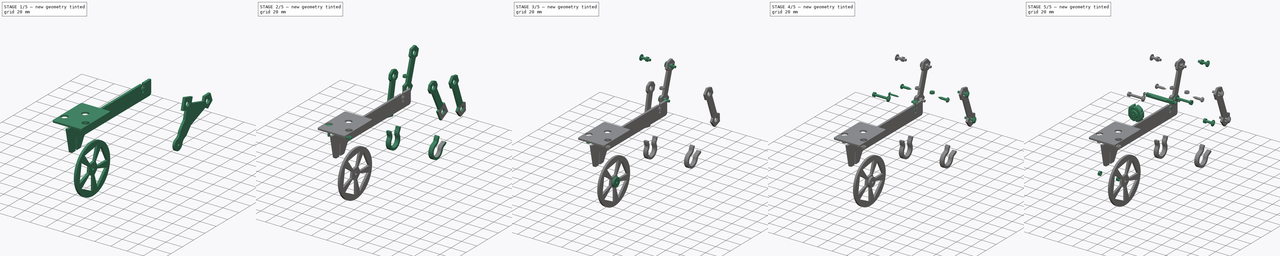
[diagram: build sequence overview — one tinted view per stage of 5, left to right]
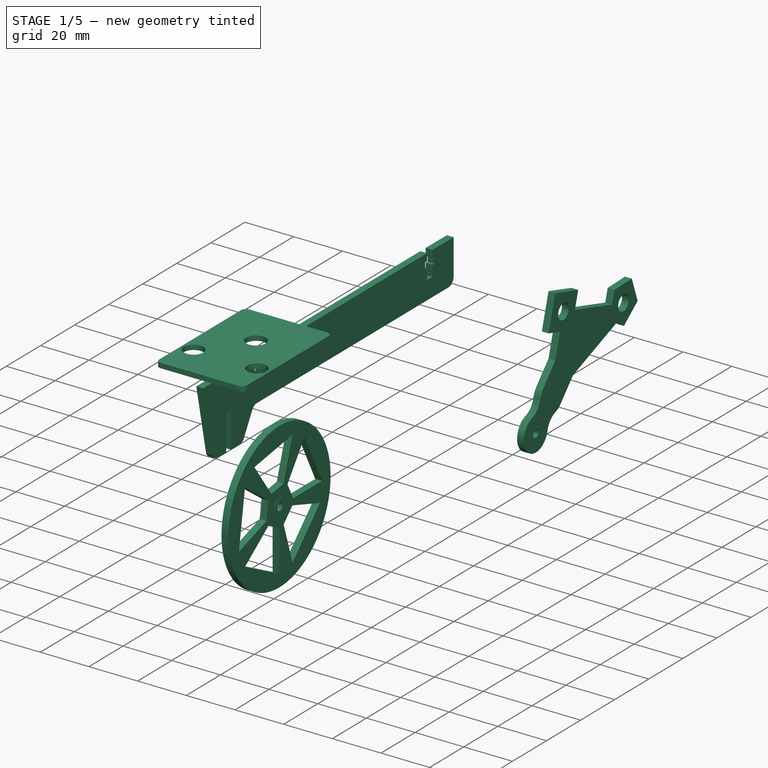
[diagram: stage 1 of 5 — iso view after this stage's code; geometry added in this stage tinted green]
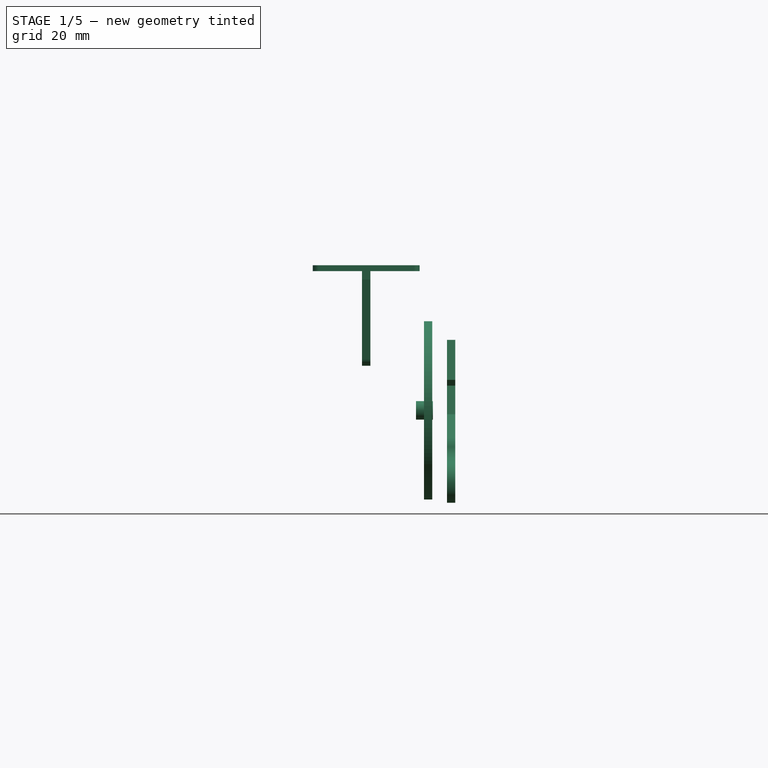
[diagram: stage 1 of 5 — front view after this stage's code; geometry added in this stage tinted green]
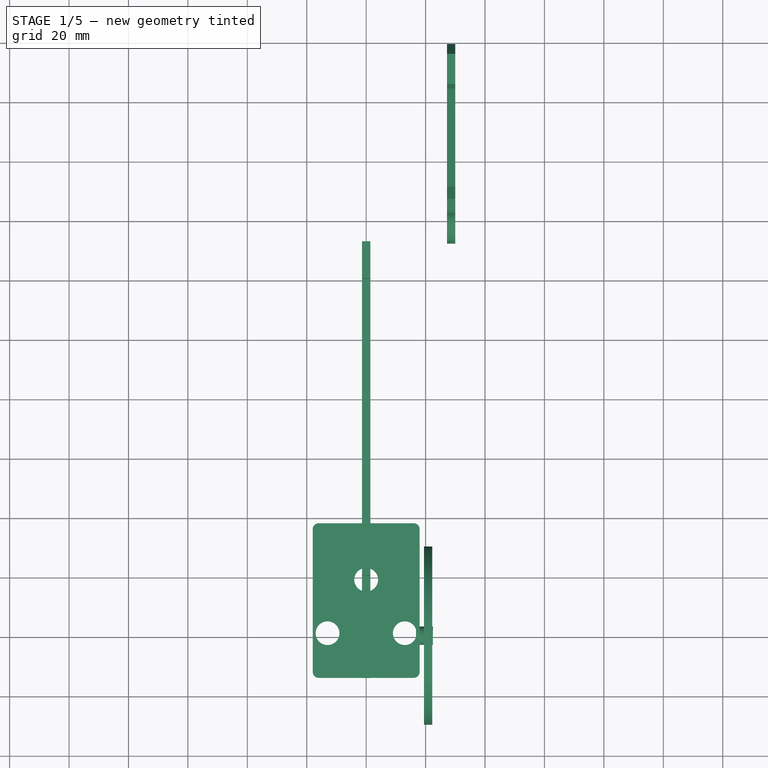
[diagram: stage 1 of 5 — top view after this stage's code; geometry added in this stage tinted green]
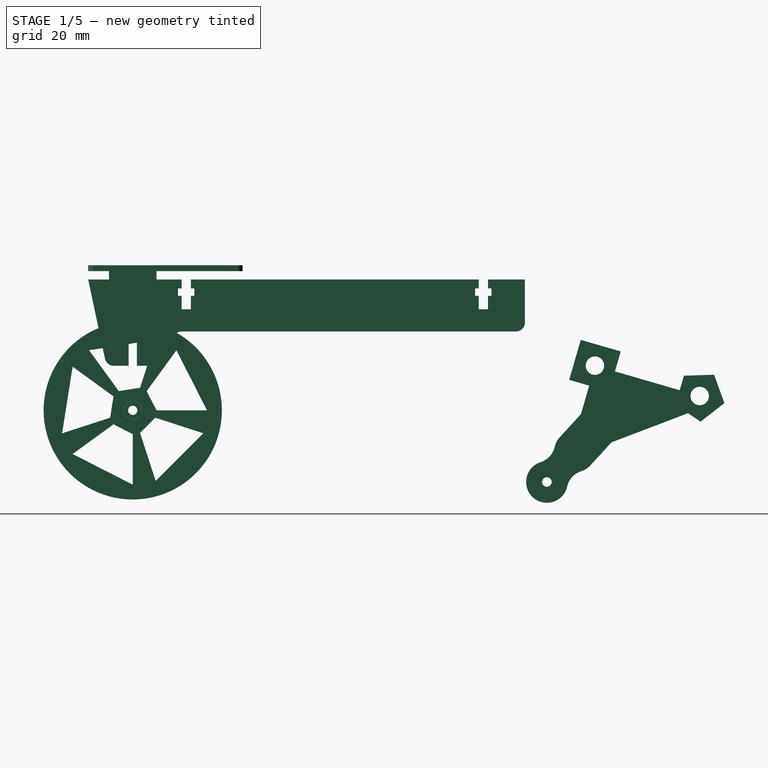
[diagram: stage 1 of 5 — right view after this stage's code; geometry added in this stage tinted green]
FCSTD DOCUMENT  (FreeCAD 0.21R33771 (Git))
Label: strandbeest_04-true_color
License: Other
LicenseURL: https://ohwr.org/project/cernohl/wikis/Documents/CERN-OHL-version-2
objects: Part::FeaturePython×55, Sketcher::SketchObject×52, PartDesign::SubShapeBinder×51, PartDesign::Body×48, PartDesign::Pad×40, PartDesign::Plane×32, Part::Part2DObjectPython×30, PartDesign::ShapeBinder×18, App::DocumentObjectGroup×12, Part::Feature×12, PartDesign::FeatureBase×10, PartDesign::Pocket×8, Spreadsheet::Sheet×2, PartDesign::CoordinateSystem×2, Part::Box×2, Part::Cut×2, Part::Mirroring×1, App::Part×1, PartDesign::Fillet×1
note: 413 computed .brp shape members not serialized (recipe doc carries the construction recipe); baked Part::Feature solids carry a one-line shape summary decoded from their .brp

FEATURE [Part::FeaturePython] Compound001_child2  label="motor_body"  # WARN: FeaturePython — macro-defined, semantics opaque (R4)
  Base = -> Compound001
  FilterType = 1
  Invert = false
  OverrideMaxVal = 0
  Placement = pos=(0,0,0) rot=(0.707107,-0.707107,0;3.14159rad)
  WindowFrom = 80
  WindowTo = 100
  items = 2
FEATURE [PartDesign::SubShapeBinder] Binder042
  BindCopyOnChange = 0
  BindMode = 0
  ClaimChildren = false
  Context = -> Body037 [Binder042.]
  Fuse = false
  MakeFace = true
  OffsetFill = false
  OffsetIntersection = false
  OffsetJoinType = 0
  OffsetOpenResult = false
  PartialLoad = false
  Relative = true
  Support = -> [Body034[Pad041.]]
  _Version = 2
FEATURE [PartDesign::Body] Body037  label="link_4_8_left"
  Group = -> [DatumPlane008,Sketch052,Pad044,ShapeBinder004,Binder,Binder042]
  Origin = -> Origin043
  Tip = -> Pad044
FEATURE [App::DocumentObjectGroup] Group004  label="Group_MOTOR"
  Group = -> [Group001,Body027]
FEATURE [PartDesign::SubShapeBinder] Binder043
  BindCopyOnChange = 0
  BindMode = 0
  ClaimChildren = false
  Context = -> Body040 [Binder043.]
  Fuse = false
  MakeFace = true
  OffsetFill = false
  OffsetIntersection = false
  OffsetJoinType = 0
  OffsetOpenResult = false
  PartialLoad = false
  Relative = true
  _Version = 2
FEATURE [Sketcher::SketchObject] Sketch057
  FullyConstrained = true
  MapMode = 5
  Placement = pos=(18.4,-1.55e-14,3.5e-15) rot=(0.57735,0.57735,0.57735;2.0944rad)
  Support = -> [Binder043]
  expr: Constraints[12] = Spreadsheet.cam_outer_fillet
  expr: Constraints[20] = Spreadsheet.cam_slot_big
  expr: Constraints[33] = Spreadsheet.cam_slot_sml
  expr: Constraints[37] = Spreadsheet.cam_slot_gap
  expr: Constraints[39] = Spreadsheet.spindle_dia
  expr: Constraints[3] = Spreadsheet.cam_hole
  expr: Constraints[40] = Spreadsheet.spindle_flat
  expr: Constraints[41] = Spreadsheet.spindle_flat - 0.2
  expr: Constraints[4] = Spreadsheet.cam_outer_rad
  expr: Constraints[59] = Spreadsheet.cam_length
  expr: Constraints[60] = -Spreadsheet.angle
  sketch-geometry (26):
    g0: ArcOfCircle CenterX=11 CenterY=-5.12e-14 CenterZ=0 NormalX=0 NormalY=0 NormalZ=1 AngleXU=0 Radius=7 StartAngle=4.71239 EndAngle=7.85398
    g1: LineSegment StartX=-3.75 StartY=-7 StartZ=0 EndX=11 EndY=-7 EndZ=0
    g2: LineSegment StartX=11 StartY=7 StartZ=0 EndX=-3.75 EndY=7 EndZ=0
    g3: Circle CenterX=11 CenterY=-5.12e-14 CenterZ=0 NormalX=0 NormalY=0 NormalZ=1 AngleXU=0 Radius=3.1
    g4: LineSegment StartX=-6.75 StartY=4 StartZ=0 EndX=-6.75 EndY=-4 EndZ=0
    g5: ArcOfCircle CenterX=-3.75 CenterY=4 CenterZ=0 NormalX=0 NormalY=0 NormalZ=1 AngleXU=0 Radius=3 StartAngle=1.5708 EndAngle=3.14159
    g6: ArcOfCircle CenterX=-3.75 CenterY=-4 CenterZ=0 NormalX=0 NormalY=0 NormalZ=1 AngleXU=0 Radius=3 StartAngle=3.14159 EndAngle=4.71239
    g7: ArcOfCircle CenterX=-3.75 CenterY=4 CenterZ=0 NormalX=0 NormalY=0 NormalZ=1 AngleXU=0 Radius=0.5 StartAngle=-4.4e-15 EndAngle=3.14159
    g8: ArcOfCircle CenterX=-3.75 CenterY=-4 CenterZ=0 NormalX=0 NormalY=0 NormalZ=1 AngleXU=0 Radius=0.5 StartAngle=3.14159 EndAngle=6.28319
    g9: LineSegment StartX=-4.25 StartY=4 StartZ=0 EndX=-4.25 EndY=-4 EndZ=0
    g10: LineSegment StartX=-3.25 StartY=-4 StartZ=0 EndX=-3.25 EndY=4 EndZ=0
    g11: LineSegment StartX=0 StartY=0 StartZ=0 EndX=11 EndY=-5.12e-14 EndZ=0
    g12: LineSegment StartX=-3.75 StartY=4 StartZ=0 EndX=-3.75 EndY=-4 EndZ=0
    g13: LineSegment StartX=-1.75 StartY=4 StartZ=0 EndX=-1.75 EndY=-4 EndZ=0
    g14: LineSegment StartX=-1.75 StartY=4 StartZ=0 EndX=-3.75 EndY=4 EndZ=0
    g15: ArcOfCircle CenterX=-1.65 CenterY=4 CenterZ=0 NormalX=0 NormalY=0 NormalZ=1 AngleXU=0 Radius=0.1 StartAngle=-7.1e-15 EndAngle=3.14159
    g16: ArcOfCircle CenterX=-1.65 CenterY=-4 CenterZ=0 NormalX=0 NormalY=0 NormalZ=1 AngleXU=0 Radius=0.1 StartAngle=3.14159 EndAngle=6.28319
    g17: LineSegment StartX=-1.55 StartY=4 StartZ=0 EndX=-1.55 EndY=2.02485 EndZ=0
    g18: LineSegment StartX=-1.55 StartY=-4 StartZ=0 EndX=-1.55 EndY=-2.02485 EndZ=0
    g19: LineSegment StartX=-1.65 StartY=-4 StartZ=0 EndX=-3.75 EndY=-4 EndZ=0
    g20: Circle CenterX=-2e-16 CenterY=-8e-16 CenterZ=0 NormalX=0 NormalY=0 NormalZ=1 AngleXU=0 Radius=2.55
    g21: Circle CenterX=-2e-16 CenterY=-8e-16 CenterZ=0 NormalX=0 NormalY=0 NormalZ=1 AngleXU=0 Radius=1.85
    g22: Circle CenterX=-2e-16 CenterY=-8e-16 CenterZ=0 NormalX=0 NormalY=0 NormalZ=1 AngleXU=0 Radius=1.75
    g23: LineSegment StartX=1.85 StartY=-1.75499 StartZ=0 EndX=1.85 EndY=1.75499 EndZ=0
    g24: ArcOfCircle CenterX=0 CenterY=0 CenterZ=0 NormalX=0 NormalY=0 NormalZ=1 AngleXU=0 Radius=2.55 StartAngle=4.05905 EndAngle=5.52414
    g25: ArcOfCircle CenterX=0 CenterY=0 CenterZ=0 NormalX=0 NormalY=0 NormalZ=1 AngleXU=0 Radius=2.55 StartAngle=0.75905 EndAngle=2.22414
  constraints (62):
    c: Tangent(g1,g0) = -1.5708
    c: Tangent(g0,g2) = -1.5708
    c: Coincident(g3,g0)
    c: Diameter(g3) = 6.2
    c: Radius(g0) = 7
    c: Parallel(g2,g1)
    c: Perpendicular(g4,g1)
    c: Tangent(g1,g6) = -1.5708
    c: Tangent(g6,g4) = -1.5708
    c: Tangent(g5,g4) = -1.5708
    c: Equal(g5,g6)
    c: Tangent(g5,g2) = -1.5708
    c: Radius(g5) = 3
    c: Tangent(g7,g9) = -1.5708
    c: Tangent(g9,g8) = -1.5708
    c: Tangent(g8,g10) = -1.5708
    c: Tangent(g10,g7) = -1.5708
    c: Equal(g7,g8)
    c: Coincident(g7,g5)
    c: Coincident(g8,g6)
    c: Radius(g8) = 0.5
    c: Coincident(g12,g5)
    c: Coincident(g12,g6)
    c: Parallel(g13,g10)
    c: Coincident(g14,g13)
    c: Coincident(g14,g5)
    c: Perpendicular(g12,g14)
    c: Tangent(g15,g13) = -1.5708
    c: Tangent(g18,g16) = -1.5708
    c: Tangent(g17,g15) = 1.5708
    c: Parallel(g17,g13)
    c: Parallel(g18,g13)
    c: Equal(g16,g15)
    c: Radius(g16) = 0.1
    c: Coincident(g19,g16)
    c: Coincident(g6,g19)
    c: Perpendicular(g12,g19)
    c: Distance(g14) = 2
    c: Tangent(g13,g16) = -1.5708
    c: Diameter(g20) = 5.1
    c: Diameter(g21) = 3.7
    c: Diameter(g22) = 3.5
    c: Tangent(g13,g22)
    c: PointOnObject(g18,g20)
    c: PointOnObject(g17,g20)
    c: PointOnObject(g23,g20)
    c: PointOnObject(g23,g20)
    c: Tangent(g23,g21)
    c: Parallel(g23,g13)
    c: Coincident(g23,g25)
    c: Coincident(g25,g17)
    c: Coincident(g24,g23)
    c: Coincident(g24,g18)
    c: Coincident(g24,g25)
    c: Coincident(g20,g21)
    c: Coincident(g20,g22)
    c: Coincident(g11,g24)
    c: Coincident(g11,g0)
    c: Equal(g17,g18)
    c: Distance(g11) = 11
    c: Angle(g11) = 0
    c: Coincident(g24,g-1)
FEATURE [PartDesign::Pad] Pad049
  Direction = (1,-8e-16,1e-16)
  Length = 2.8
  Length2 = 10
  Profile = -> Sketch057
  ReferenceAxis = -> Sketch057 [N_Axis]
  Reversed = true
  Type = 0
  expr: Length = Spreadsheet.acrylic_thin
FEATURE [PartDesign::Body] Body040  label="cam_1_right"
  Group = -> [Binder043,Sketch057,Pad049]
  Origin = -> Origin046
  Tip = -> Pad049
FEATURE [PartDesign::SubShapeBinder] Binder044
  BindCopyOnChange = 0
  BindMode = 0
  ClaimChildren = false
  Context = -> Body041 [Binder044.]
  Fuse = false
  MakeFace = true
  OffsetFill = false
  OffsetIntersection = false
  OffsetJoinType = 0
  OffsetOpenResult = false
  PartialLoad = false
  Relative = true
  Support = -> [Body040[Pad049.]]
  _Version = 2
FEATURE [PartDesign::Plane] DatumPlane010
  AttachmentOffset = pos=(0,0,0.1) rot=(0,0,1;0rad)
  Length = 60
  MapMode = 5
  Placement = pos=(18.5,-1.18e-14,1.6e-15) rot=(0.57735,0.57735,0.57735;2.0944rad)
  ResizeMode = 0
  Support = -> [Binder044]
  Width = 60
FEATURE [Sketcher::SketchObject] Sketch058
  FullyConstrained = true
  MapMode = 5
  Placement = pos=(18.5,-1.18e-14,1.6e-15) rot=(0.57735,0.57735,0.57735;2.0944rad)
  Support = -> [DatumPlane010]
  expr: Constraints[15] = Spreadsheet.cam_outer_rad
  expr: Constraints[17] = Spreadsheet.cam_outer_fillet
  expr: Constraints[1] = Spreadsheet.spindle_hole
  expr: Constraints[23] = Spreadsheet.spindle_flat / 2 - 0.1 + 2
  expr: Constraints[24] = -Spreadsheet.angle
  expr: Constraints[4] = Spreadsheet.cam_length
  expr: Constraints[5] = Spreadsheet.cam_hole
  sketch-geometry (11):
    g0: Circle CenterX=0 CenterY=0 CenterZ=0 NormalX=0 NormalY=0 NormalZ=1 AngleXU=0 Radius=1
    g1: Circle CenterX=11 CenterY=0 CenterZ=0 NormalX=0 NormalY=0 NormalZ=1 AngleXU=0 Radius=3.1
    g2: LineSegment StartX=0 StartY=0 StartZ=0 EndX=11 EndY=0 EndZ=0
    g3: LineSegment StartX=-3.75 StartY=7 StartZ=0 EndX=11 EndY=7 EndZ=0
    g4: ArcOfCircle CenterX=11 CenterY=0 CenterZ=0 NormalX=0 NormalY=0 NormalZ=1 AngleXU=0 Radius=7 StartAngle=4.71239 EndAngle=7.85398
    g5: LineSegment StartX=11 StartY=-7 StartZ=0 EndX=-3.75 EndY=-7 EndZ=0
    g6: ArcOfCircle CenterX=-3.75 CenterY=-4 CenterZ=0 NormalX=0 NormalY=0 NormalZ=1 AngleXU=0 Radius=3 StartAngle=3.14159 EndAngle=4.71239
    g7: LineSegment StartX=-6.75 StartY=-4 StartZ=0 EndX=-6.75 EndY=4 EndZ=0
    g8: ArcOfCircle CenterX=-3.75 CenterY=4 CenterZ=0 NormalX=0 NormalY=0 NormalZ=1 AngleXU=0 Radius=3 StartAngle=1.5708 EndAngle=3.14159
    g9: LineSegment StartX=-3.75 StartY=4 StartZ=0 EndX=-3.75 EndY=-4 EndZ=0
    g10: LineSegment StartX=-3.75 StartY=-1.4e-15 StartZ=0 EndX=0 EndY=0 EndZ=0
  constraints (25):
    c: Coincident(g0,g-1)
    c: Diameter(g0) = 2
    c: Coincident(g2,g0)
    c: Coincident(g2,g1)
    c: Distance(g2) = 11
    c: Diameter(g1) = 6.2
    c: Tangent(g3,g4) = 1.5708
    c: Angle(g4) = 3.14159
    c: Tangent(g5,g6) = 1.5708
    c: Angle(g6) = 1.5708
    c: Tangent(g8,g3) = 1.5708
    c: Tangent(g4,g5) = 1.5708
    c: Tangent(g6,g7) = 1.5708
    c: Coincident(g1,g4)
    c: Tangent(g7,g8) = 1.5708
    c: Radius(g4) = 7
    c: Equal(g8,g6)
    c: Radius(g8) = 3
    c: Parallel(g2,g5)
    c: Coincident(g8,g9)
    c: Coincident(g6,g9)
    c: Symmetric(g8,g6,g10)
    c: Coincident(g10,g0)
    c: Distance(g10) = 3.75
    c: Angle(g-1,g2) = 0
FEATURE [PartDesign::Pad] Pad050
  Direction = (1,-3e-16,-2e-16)
  Length = 2.8
  Length2 = 10
  Placement = pos=(18.5,-1.2e-14,2e-15) rot=(0.57735,0.57735,0.57735;2.0944rad)
  Profile = -> Sketch058
  ReferenceAxis = -> Sketch058 [N_Axis]
  Type = 0
  expr: Length = Spreadsheet.acrylic_thin
FEATURE [PartDesign::Body] Body041  label="cam_2_right"
  Group = -> [Binder044,DatumPlane010,Sketch058,Pad050]
  Origin = -> Origin047
  Tip = -> Pad050
FEATURE [PartDesign::SubShapeBinder] Binder045
  BindCopyOnChange = 0
  BindMode = 0
  ClaimChildren = false
  Context = -> Body042 [Binder045.]
  Fuse = false
  MakeFace = true
  OffsetFill = false
  OffsetIntersection = false
  OffsetJoinType = 0
  OffsetOpenResult = false
  PartialLoad = false
  Relative = true
  Support = -> [Body041[Pad050.]]
  _Version = 2
FEATURE [PartDesign::Plane] DatumPlane011
  AttachmentOffset = pos=(0,0,0.1) rot=(0,0,1;0rad)
  Length = 60
  MapMode = 5
  Placement = pos=(21.4,1.63e-14,-5.6e-15) rot=(0.57735,0.57735,0.57735;2.0944rad)
  ResizeMode = 0
  Support = -> [Binder045]
  Width = 60
FEATURE [Sketcher::SketchObject] Sketch059
  FullyConstrained = true
  MapMode = 5
  Placement = pos=(21.4,1.63e-14,-5.6e-15) rot=(0.57735,0.57735,0.57735;2.0944rad)
  Support = -> [DatumPlane011]
  expr: Constraints[15] = Spreadsheet.cam_outer_fillet
  expr: Constraints[17] = Spreadsheet.cam_outer_rad
  expr: Constraints[1] = Spreadsheet.cam_hole
  expr: Constraints[23] = Spreadsheet.spindle_flat / 2 - 0.1 + 2
  expr: Constraints[24] = Spreadsheet.angle
  expr: Constraints[5] = Spreadsheet.cam_length
  sketch-geometry (11):
    g0: Circle CenterX=0 CenterY=0 CenterZ=0 NormalX=0 NormalY=0 NormalZ=1 AngleXU=0 Radius=3.1
    g1: Circle CenterX=11 CenterY=0 CenterZ=0 NormalX=0 NormalY=0 NormalZ=1 AngleXU=0 Radius=3.1
    g2: LineSegment StartX=0 StartY=0 StartZ=0 EndX=11 EndY=0 EndZ=0
    g3: LineSegment StartX=-3.75 StartY=7 StartZ=0 EndX=11 EndY=7 EndZ=0
    g4: ArcOfCircle CenterX=11 CenterY=0 CenterZ=0 NormalX=0 NormalY=0 NormalZ=1 AngleXU=0 Radius=7 StartAngle=4.71239 EndAngle=7.85398
    g5: LineSegment StartX=11 StartY=-7 StartZ=0 EndX=-3.75 EndY=-7 EndZ=0
    g6: ArcOfCircle CenterX=-3.75 CenterY=-4 CenterZ=0 NormalX=0 NormalY=0 NormalZ=1 AngleXU=0 Radius=3 StartAngle=3.14159 EndAngle=4.71239
    g7: LineSegment StartX=-6.75 StartY=-4 StartZ=0 EndX=-6.75 EndY=4 EndZ=0
    g8: ArcOfCircle CenterX=-3.75 CenterY=4 CenterZ=0 NormalX=0 NormalY=0 NormalZ=1 AngleXU=0 Radius=3 StartAngle=1.5708 EndAngle=3.14159
    g9: LineSegment StartX=-3.75 StartY=4 StartZ=0 EndX=-3.75 EndY=-4 EndZ=0
    g10: LineSegment StartX=-3.75 StartY=4e-16 StartZ=0 EndX=0 EndY=0 EndZ=0
  constraints (25):
    c: Equal(g0,g1)
    c: Diameter(g0) = 6.2
    c: Coincident(g0,g-1)
    c: Coincident(g2,g0)
    c: Coincident(g2,g1)
    c: Distance(g2) = 11
    c: Tangent(g3,g4) = 1.5708
    c: Tangent(g7,g8) = 1.5708
    c: Tangent(g8,g3) = 1.5708
    c: Tangent(g4,g5) = 1.5708
    c: Tangent(g6,g7) = 1.5708
    c: Coincident(g1,g4)
    c: Parallel(g2,g3)
    c: Parallel(g2,g5)
    c: Equal(g8,g6)
    c: Radius(g8) = 3
    c: Tangent(g5,g6) = 1.5708
    c: Radius(g4) = 7
    c: Perpendicular(g5,g7)
    c: Coincident(g8,g9)
    c: Coincident(g6,g9)
    c: Symmetric(g8,g6,g10)
    c: Coincident(g10,g0)
    c: Distance(g10) = 3.75
    c: Angle(g-1,g2) = 0
FEATURE [PartDesign::Pad] Pad051
  Direction = (1,4e-16,-1e-16)
  Length = 2.8
  Length2 = 10
  Placement = pos=(21.4,0,-3e-15) rot=(0.57735,0.57735,0.57735;2.0944rad)
  Profile = -> Sketch059
  ReferenceAxis = -> Sketch059 [N_Axis]
  Type = 0
  expr: Length = Spreadsheet.acrylic_thin
FEATURE [PartDesign::Body] Body042  label="cam_3_right"
  Group = -> [Binder045,DatumPlane011,Sketch059,Pad051]
  Origin = -> Origin048
  Tip = -> Pad051
FEATURE [PartDesign::SubShapeBinder] Binder046
  BindCopyOnChange = 0
  BindMode = 0
  ClaimChildren = false
  Context = -> Body043 [Binder046.]
  Fuse = false
  MakeFace = true
  OffsetFill = false
  OffsetIntersection = false
  OffsetJoinType = 0
  OffsetOpenResult = false
  PartialLoad = false
  Relative = true
  Support = -> [Body042[Pad051.]]
  _Version = 2
FEATURE [PartDesign::ShapeBinder] ShapeBinder005
  Placement = pos=(0,0,0) rot=(0.57735,0.57735,0.57735;2.0944rad)
  Support = -> [Sketch041]
  TraceSupport = false
FEATURE [PartDesign::Plane] DatumPlane012
  AttachmentOffset = pos=(0,0,0.1) rot=(0,0,1;0rad)
  Length = 96.5091
  MapMode = 5
  Placement = pos=(24.3,1.51e-14,-1.9e-15) rot=(0.57735,0.57735,0.57735;2.0944rad)
  ResizeMode = 0
  Support = -> [Binder046]
  Width = 79.4789
FEATURE [Sketcher::SketchObject] Sketch060
  FullyConstrained = true
  MapMode = 5
  Placement = pos=(24.3,1.51e-14,-1.9e-15) rot=(0.57735,0.57735,0.57735;2.0944rad)
  Support = -> [DatumPlane012]
  expr: Constraints[0] = Spreadsheet.cam_length
  expr: Constraints[26] = Spreadsheet.link_0_7
  expr: Constraints[27] = Spreadsheet.link_0_4
  expr: Constraints[28] = Spreadsheet.link_7_8
  expr: Constraints[29] = Spreadsheet.link_6_7
  expr: Constraints[30] = Spreadsheet.link_6_8
  expr: Constraints[31] = Spreadsheet.link_4_5
  expr: Constraints[32] = Spreadsheet.link_5_leg
  expr: Constraints[33] = Spreadsheet.link_4_leg
  expr: Constraints[34] = Spreadsheet.link_8_4
  expr: Constraints[35] = Spreadsheet.link_5_6
  expr: Constraints[40] = Spreadsheet.cam_hole
  expr: Constraints[65] = Spreadsheet.cam_outer_rad
  expr: Constraints[6] = Spreadsheet.link_offset
  expr: Constraints[76] = 8
  expr: Constraints[7] = Spreadsheet.link_circle
  expr: Constraints[85] = Spreadsheet.angle
  sketch-geometry (33):
    g0: Circle CenterX=0 CenterY=0 CenterZ=0 NormalX=0 NormalY=0 NormalZ=1 AngleXU=0 Radius=11
    g1: LineSegment StartX=0 StartY=0 StartZ=0 EndX=0 EndY=-7.8 EndZ=0
    g2: LineSegment StartX=0 StartY=-7.8 StartZ=0 EndX=38 EndY=-7.8 EndZ=0
    g3: LineSegment StartX=0 StartY=0 StartZ=0 EndX=11 EndY=0 EndZ=0
    g4: Circle CenterX=38 CenterY=-7.8 CenterZ=0 NormalX=0 NormalY=0 NormalZ=1 AngleXU=0 Radius=41.5
    g5: LineSegment StartX=11 StartY=0 StartZ=0 EndX=49.3111 EndY=32.1288 EndZ=0
    g6: LineSegment StartX=49.3111 StartY=32.1288 StartZ=0 EndX=77.2113 EndY=-16.1953 EndZ=0
    g7: LineSegment StartX=77.2113 StartY=-16.1953 StartZ=0 EndX=90.8212 EndY=-53.17 EndZ=0
    g8: LineSegment StartX=90.8212 StartY=-53.17 StartZ=0 EndX=34.6617 EndY=-87.2669 EndZ=0
    g9: LineSegment StartX=34.6617 StartY=-87.2669 StartZ=0 EndX=55.5722 EndY=-42.9526 EndZ=0
    g10: LineSegment StartX=55.5722 StartY=-42.9526 StartZ=0 EndX=38 EndY=-7.8 EndZ=0
    g11: LineSegment StartX=38 StartY=-7.8 StartZ=0 EndX=49.3111 EndY=32.1288 EndZ=0
    g12: LineSegment StartX=38 StartY=-7.8 StartZ=0 EndX=77.2113 EndY=-16.1953 EndZ=0
    g13: LineSegment StartX=90.8212 StartY=-53.17 StartZ=0 EndX=55.5722 EndY=-42.9526 EndZ=0
    g14: LineSegment StartX=55.5722 StartY=-42.9526 StartZ=0 EndX=11 EndY=0 EndZ=0
    g15: Circle CenterX=11 CenterY=0 CenterZ=0 NormalX=0 NormalY=0 NormalZ=1 AngleXU=0 Radius=3.1
    g16: Circle CenterX=49.3111 CenterY=32.1288 CenterZ=0 NormalX=0 NormalY=0 NormalZ=1 AngleXU=0 Radius=3.1
    g17: LineSegment StartX=43.1191 StartY=36.8217 StartZ=0 EndX=41.7814 EndY=30.2137 EndZ=0
    g18: LineSegment StartX=41.7814 StartY=30.2137 StartZ=0 EndX=46.1137 EndY=25.0478 EndZ=0
    g19: LineSegment StartX=46.1137 StartY=25.0478 StartZ=0 EndX=52.8537 EndY=25.214 EndZ=0
    g20: LineSegment StartX=52.8537 StartY=25.214 StartZ=0 EndX=56.926 EndY=30.5872 EndZ=0
    g21: LineSegment StartX=56.926 StartY=30.5872 StartZ=0 EndX=55.2642 EndY=37.1212 EndZ=0
    g22: LineSegment StartX=55.2642 StartY=37.1212 StartZ=0 EndX=49.1195 EndY=39.8959 EndZ=0
    g23: LineSegment StartX=49.1195 StartY=39.8959 StartZ=0 EndX=43.1191 EndY=36.8217 EndZ=0
    g24: Circle CenterX=49.3111 CenterY=32.1288 CenterZ=0 NormalX=0 NormalY=0 NormalZ=1 AngleXU=0 Radius=7.76941
    g25: Circle CenterX=49.3111 CenterY=32.1288 CenterZ=0 NormalX=0 NormalY=0 NormalZ=1 AngleXU=0 Radius=7
    g26: ArcOfCircle CenterX=11 CenterY=0 CenterZ=0 NormalX=0 NormalY=0 NormalZ=1 AngleXU=0 Radius=7 StartAngle=1.3061 EndAngle=6.3728
    g27: LineSegment StartX=12.8313 StartY=6.75621 StartZ=0 EndX=41.9816 EndY=31.2025 EndZ=0
    g28: LineSegment StartX=17.9719 StartY=0.62643 StartZ=0 EndX=47.1222 EndY=25.0727 EndZ=0
    g29: LineSegment StartX=12.8313 StartY=6.75621 StartZ=0 EndX=15.4016 EndY=3.69132 EndZ=0
    g30: LineSegment StartX=15.4016 StartY=3.69132 StartZ=0 EndX=17.9719 EndY=0.62643 EndZ=0
    g31: LineSegment StartX=43.1191 StartY=36.8217 StartZ=0 EndX=41.9816 EndY=31.2025 EndZ=0
    g32: LineSegment StartX=47.1222 StartY=25.0727 StartZ=0 EndX=52.8537 EndY=25.214 EndZ=0
  constraints (81):
    c: Radius(g0) = 11
    c: Coincident(g0,g-1)
    c: Coincident(g1,g0)
    c: PointOnObject(g1,g-2)
    c: Coincident(g2,g1)
    c: Horizontal(g2)
    c: DistanceY(g1,g1) = 7.8
    c: DistanceX(g2,g2) = 38
    c: Coincident(g3,g0)
    c: PointOnObject(g3,g0)
    c: Coincident(g4,g2)
    c: Coincident(g5,g3)
    c: Coincident(g6,g5)
    c: Coincident(g7,g6)
    c: Coincident(g8,g7)
    c: Coincident(g9,g8)
    c: Coincident(g10,g9)
    c: Coincident(g10,g2)
    c: Coincident(g11,g2)
    c: Coincident(g11,g5)
    c: Coincident(g12,g2)
    c: Coincident(g12,g6)
    c: Coincident(g13,g7)
    c: Coincident(g13,g9)
    c: Coincident(g14,g9)
    c: Coincident(g14,g3)
    c: Distance(g5) = 50
    c: Distance(g14) = 61.9
    c: Distance(g11) = 41.5
    c: Distance(g6) = 55.8
    c: Distance(g12) = 40.1
    c: Distance(g13) = 36.7
    c: Distance(g8) = 65.7
    c: Distance(g9) = 49
    c: Distance(g10) = 39.3
    c: Distance(g7) = 39.4
    c: PointOnObject(g5,g4)
    c: Coincident(g15,g3)
    c: Coincident(g16,g5)
    c: Equal(g16,g15)
    c: Diameter(g16) = 6.2
    c: Coincident(g17,g18)
    c: Coincident(g18,g19)
    c: Coincident(g19,g20)
    c: Coincident(g20,g21)
    c: Coincident(g21,g22)
    c: Coincident(g22,g23)
    c: Coincident(g23,g17)
    c: Equal(g17, g18-g23) x6
    c: PointOnObject(g17,g24)
    c: PointOnObject(g18,g24)
    c: PointOnObject(g19,g24)
    c: PointOnObject(g20,g24)
    c: PointOnObject(g21,g24)
    c: PointOnObject(g22,g24)
    c: PointOnObject(g23,g24)
    c: Coincident(g24,g16)
    c: Coincident(g25,g16)
    c: Coincident(g26,g15)
    c: Equal(g26,g25)
    c: Radius(g26) = 7
    c: Tangent(g22,g25)
    c: Perpendicular(g18,g5)
    c: Parallel(g5,g27)
    c: Parallel(g5,g28)
    c: Coincident(g29,g27)
    c: Coincident(g30,g29)
    c: Coincident(g30,g28)
    c: PointOnObject(g29,g5)
    c: Perpendicular(g5,g29)
    c: Perpendicular(g30,g5)
    c: Distance(g27,g28) = 8
    c: PointOnObject(g27,g17)
    c: PointOnObject(g28,g19)
    c: Coincident(g26,g27)
    c: Coincident(g26,g28)
    c: Coincident(g19,g32)
    c: Coincident(g28,g32)
    c: Coincident(g17,g31)
    c: Coincident(g27,g31)
    c: Angle(g-1,g3) = 0
FEATURE [PartDesign::Pad] Pad052
  Direction = (1,9e-16,-1e-16)
  Length = 2.8
  Length2 = 10
  Placement = pos=(24.3,1.5e-14,1e-15) rot=(0.57735,0.57735,0.57735;2.0944rad)
  Profile = -> Sketch060
  ReferenceAxis = -> Sketch060 [N_Axis]
  Type = 0
  expr: Length = Spreadsheet.acrylic_thin
FEATURE [PartDesign::Body] Body043  label="link_0_7_right"
  Group = -> [Binder046,ShapeBinder005,DatumPlane012,Sketch060,Pad052]
  Origin = -> Origin049
  Tip = -> Pad052
FEATURE [PartDesign::SubShapeBinder] Binder047
  BindCopyOnChange = 0
  BindMode = 0
  ClaimChildren = false
  Context = -> Body044 [Binder047.]
  Fuse = false
  MakeFace = true
  OffsetFill = false
  OffsetIntersection = false
  OffsetJoinType = 0
  OffsetOpenResult = false
  PartialLoad = false
  Relative = true
  Support = -> [Body043[Pad052.]]
  _Version = 2
FEATURE [PartDesign::Plane] DatumPlane013
  AttachmentOffset = pos=(0,0,0.1) rot=(0,0,1;0rad)
  Length = 60
  MapMode = 5
  Placement = pos=(27.2,3.18e-14,-5.4e-15) rot=(0.57735,0.57735,0.57735;2.0944rad)
  ResizeMode = 0
  Support = -> [Binder047]
  Width = 60
FEATURE [Sketcher::SketchObject] Sketch061
  FullyConstrained = true
  MapMode = 5
  Placement = pos=(27.2,3.18e-14,-5.4e-15) rot=(0.57735,0.57735,0.57735;2.0944rad)
  Support = -> [DatumPlane013]
  expr: Constraints[2] = Spreadsheet.cam_length
  expr: Constraints[5] = Spreadsheet.cam_hole
  expr: Constraints[6] = Spreadsheet.cam_outer_rad
  expr: Constraints[8] = Spreadsheet.angle
  sketch-geometry (4):
    g0: Circle CenterX=0 CenterY=0 CenterZ=0 NormalX=0 NormalY=0 NormalZ=1 AngleXU=0 Radius=11
    g1: LineSegment StartX=0 StartY=0 StartZ=0 EndX=11 EndY=-8e-16 EndZ=0
    g2: Circle CenterX=11 CenterY=-8e-16 CenterZ=0 NormalX=0 NormalY=0 NormalZ=1 AngleXU=0 Radius=7
    g3: Circle CenterX=11 CenterY=-8e-16 CenterZ=0 NormalX=0 NormalY=0 NormalZ=1 AngleXU=0 Radius=3.1
  constraints (9):
    c: Coincident(g1,g0)
    c: PointOnObject(g1,g0)
    c: Radius(g0) = 11
    c: Coincident(g2,g1)
    c: Coincident(g1,g3)
    c: Diameter(g3) = 6.2
    c: Radius(g2) = 7
    c: Coincident(g0,g-1)
    c: Angle(g-1,g1) = 0
FEATURE [PartDesign::Pad] Pad053
  Direction = (1,1.1e-15,-2e-16)
  Length = 2.8
  Length2 = 10
  Placement = pos=(27.2,3.2e-14,-5e-15) rot=(0.57735,0.57735,0.57735;2.0944rad)
  Profile = -> Sketch061
  ReferenceAxis = -> Sketch061 [N_Axis]
  Type = 0
  expr: Length = Spreadsheet.acrylic_thin
FEATURE [PartDesign::Body] Body044  label="spacer_right"
  Group = -> [Binder047,DatumPlane013,Sketch061,Pad053]
  Origin = -> Origin050
  Tip = -> Pad053
FEATURE [PartDesign::SubShapeBinder] Binder048
  BindCopyOnChange = 0
  BindMode = 0
  ClaimChildren = false
  Context = -> Body045 [Binder048.]
  Fuse = false
  MakeFace = true
  OffsetFill = false
  OffsetIntersection = false
  OffsetJoinType = 0
  OffsetOpenResult = false
  PartialLoad = false
  Relative = true
  Support = -> [Body044[Pad053.]]
  _Version = 2
FEATURE [PartDesign::ShapeBinder] ShapeBinder006
  Placement = pos=(0,0,0) rot=(0.57735,0.57735,0.57735;2.0944rad)
  Support = -> [Sketch041]
  TraceSupport = false
FEATURE [PartDesign::Plane] DatumPlane014
  AttachmentOffset = pos=(0,0,0.1) rot=(0,0,1;0rad)
  Length = 107.255
  MapMode = 5
  Placement = pos=(30.1,3.46e-14,-8.1e-15) rot=(0.57735,0.57735,0.57735;2.0944rad)
  ResizeMode = 0
  Support = -> [Binder048]
  Width = 94.6351
FEATURE [Sketcher::SketchObject] Sketch062
  FullyConstrained = true
  MapMode = 5
  Placement = pos=(30.1,3.46e-14,-8.1e-15) rot=(0.57735,0.57735,0.57735;2.0944rad)
  Support = -> [DatumPlane014]
  expr: Constraints[19] = Spreadsheet.link_0_7
  expr: Constraints[20] = Spreadsheet.link_0_4
  expr: Constraints[21] = Spreadsheet.link_8_4
  expr: Constraints[22] = Spreadsheet.link_5_6
  expr: Constraints[23] = Spreadsheet.link_6_8
  expr: Constraints[24] = Spreadsheet.link_7_8
  expr: Constraints[25] = Spreadsheet.link_6_7
  expr: Constraints[26] = Spreadsheet.link_4_5
  expr: Constraints[27] = Spreadsheet.link_4_leg
  expr: Constraints[28] = Spreadsheet.link_5_leg
  expr: Constraints[2] = Spreadsheet.cam_length
  expr: Constraints[33] = Spreadsheet.cam_outer_rad
  expr: Constraints[4] = Spreadsheet.cam_hole
  expr: Constraints[65] = Spreadsheet.angle
  expr: Constraints[71] = Spreadsheet.link_circle
  expr: Constraints[72] = Spreadsheet.link_offset
  sketch-geometry (28):
    g0: Circle CenterX=0 CenterY=0 CenterZ=0 NormalX=0 NormalY=0 NormalZ=1 AngleXU=0 Radius=11
    g1: LineSegment StartX=0 StartY=0 StartZ=0 EndX=11 EndY=-1e-16 EndZ=0
    g2: Circle CenterX=11 CenterY=-1e-16 CenterZ=0 NormalX=0 NormalY=0 NormalZ=1 AngleXU=0 Radius=3.1
    g3: LineSegment StartX=11 StartY=-1e-16 StartZ=0 EndX=49.3111 EndY=32.1288 EndZ=0
    g4: LineSegment StartX=49.3111 StartY=32.1288 StartZ=0 EndX=77.2113 EndY=-16.1953 EndZ=0
    g5: LineSegment StartX=77.2113 StartY=-16.1953 StartZ=0 EndX=38 EndY=-7.8 EndZ=0
    g6: LineSegment StartX=38 StartY=-7.8 StartZ=0 EndX=49.3111 EndY=32.1288 EndZ=0
    g7: LineSegment StartX=77.2113 StartY=-16.1953 StartZ=0 EndX=90.8212 EndY=-53.17 EndZ=0
    g8: LineSegment StartX=90.8212 StartY=-53.17 StartZ=0 EndX=34.6617 EndY=-87.2669 EndZ=0
    g9: LineSegment StartX=34.6617 StartY=-87.2669 StartZ=0 EndX=55.5722 EndY=-42.9526 EndZ=0
    g10: LineSegment StartX=55.5722 StartY=-42.9526 StartZ=0 EndX=90.8212 EndY=-53.17 EndZ=0
    g11: LineSegment StartX=55.5722 StartY=-42.9526 StartZ=0 EndX=38 EndY=-7.8 EndZ=0
    g12: LineSegment StartX=11 StartY=-1e-16 StartZ=0 EndX=55.5722 EndY=-42.9526 EndZ=0
    g13: ArcOfCircle CenterX=11 CenterY=-1e-16 CenterZ=0 NormalX=0 NormalY=0 NormalZ=1 AngleXU=0 Radius=7 StartAngle=6.12453 EndAngle=11.1912
    g14: Circle CenterX=55.5722 CenterY=-42.9526 CenterZ=0 NormalX=0 NormalY=0 NormalZ=1 AngleXU=0 Radius=7
    g15: LineSegment StartX=65.47 StartY=-42.7695 StartZ=0 EndX=55.3891 EndY=-33.0548 EndZ=0
    g16: LineSegment StartX=55.3891 StartY=-33.0548 StartZ=0 EndX=45.6744 EndY=-43.1358 EndZ=0
    g17: LineSegment StartX=45.6744 StartY=-43.1358 StartZ=0 EndX=55.7554 EndY=-52.8504 EndZ=0
    g18: LineSegment StartX=55.7554 StartY=-52.8504 StartZ=0 EndX=65.47 EndY=-42.7695 EndZ=0
    g19: Circle CenterX=55.5722 CenterY=-42.9526 CenterZ=0 NormalX=0 NormalY=0 NormalZ=1 AngleXU=0 Radius=9.89949
    g20: LineSegment StartX=12.3609 StartY=-6.86644 StartZ=0 EndX=47.7561 EndY=-40.9756 EndZ=0
    g21: LineSegment StartX=17.9121 StartY=-1.1059 StartZ=0 EndX=53.3073 EndY=-35.215 EndZ=0
    g22: LineSegment StartX=17.9121 StartY=-1.1059 StartZ=0 EndX=15.1365 EndY=-3.98617 EndZ=0
    g23: LineSegment StartX=15.1365 StartY=-3.98617 StartZ=0 EndX=12.3609 EndY=-6.86644 EndZ=0
    g24: LineSegment StartX=45.6744 StartY=-43.1358 StartZ=0 EndX=47.7561 EndY=-40.9756 EndZ=0
    g25: LineSegment StartX=55.3891 StartY=-33.0548 StartZ=0 EndX=53.3073 EndY=-35.215 EndZ=0
    g26: Circle CenterX=55.5722 CenterY=-42.9526 CenterZ=0 NormalX=0 NormalY=0 NormalZ=1 AngleXU=0 Radius=3.1
    g27: LineSegment StartX=38 StartY=-7.8 StartZ=0 EndX=0 EndY=-7.8 EndZ=0
  constraints (73):
    c: Coincident(g1,g0)
    c: PointOnObject(g1,g0)
    c: Radius(g0) = 11
    c: Coincident(g2,g1)
    c: Diameter(g2) = 6.2
    c: Coincident(g4,g3)
    c: Coincident(g5,g4)
    c: Coincident(g6,g5)
    c: Coincident(g6,g3)
    c: Coincident(g7,g4)
    c: Coincident(g8,g7)
    c: Coincident(g9,g8)
    c: Coincident(g10,g9)
    c: Coincident(g10,g7)
    c: Coincident(g11,g9)
    c: Coincident(g11,g5)
    c: Coincident(g12,g3)
    c: Coincident(g12,g9)
    c: Coincident(g0,g-1)
    c: Distance(g3) = 50
    c: Distance(g12) = 61.9
    c: Distance(g11) = 39.3
    c: Distance(g7) = 39.4
    c: Distance(g5) = 40.1
    c: Distance(g6) = 41.5
    c: Distance(g4) = 55.8
    c: Distance(g10) = 36.7
    c: Distance(g9) = 49
    c: Distance(g8) = 65.7
    c: Coincident(g1,g3)
    c: Coincident(g13,g2)
    c: Coincident(g14,g9)
    c: Equal(g14,g13)
    c: Radius(g14) = 7
    c: Coincident(g15,g16)
    c: Coincident(g16,g17)
    c: Coincident(g17,g18)
    c: Coincident(g18,g15)
    c: Equal(g15,g16)
    c: Equal(g15,g17)
    c: Equal(g15,g18)
    c: PointOnObject(g15,g19)
    c: PointOnObject(g16,g19)
    c: PointOnObject(g17,g19)
    c: PointOnObject(g18,g19)
    c: Coincident(g19,g9)
    c: Tangent(g14,g18)
    c: Perpendicular(g16,g12)
    c: Parallel(g20,g12)
    c: Parallel(g12,g21)
    c: PointOnObject(g21,g16)
    c: PointOnObject(g20,g16)
    c: Coincident(g22,g21)
    c: PointOnObject(g22,g12)
    c: Coincident(g23,g22)
    c: Coincident(g23,g20)
    c: Perpendicular(g22,g12)
    c: Perpendicular(g23,g12)
    c: Distance(g21,g20) = 8
    c: Coincident(g13,g21)
    c: Coincident(g13,g20)
    c: Coincident(g15,g25)
    c: Coincident(g21,g25)
    c: Coincident(g20,g24)
    c: Coincident(g16,g24)
    c: Angle(g-1,g1) = 0
    c: Coincident(g26,g9)
    c: Equal(g2,g26)
    c: Coincident(g27,g5)
    c: PointOnObject(g27,g-2)
    c: Horizontal(g27)
    c: DistanceX(g27,g27) = 38
    c: DistanceY(g27,g0) = 7.8
FEATURE [PartDesign::Pad] Pad054
  Direction = (1,1.1e-15,-2e-16)
  Length = 2.8
  Length2 = 10
  Placement = pos=(30.1,3.5e-14,-1e-14) rot=(0.57735,0.57735,0.57735;2.0944rad)
  Profile = -> Sketch062
  ReferenceAxis = -> Sketch062 [N_Axis]
  Type = 0
  expr: Length = Spreadsheet.acrylic_thin
FEATURE [PartDesign::Body] Body045  label="link_0_4_right"
  Group = -> [Binder048,ShapeBinder006,DatumPlane014,Sketch062,Pad054]
  Origin = -> Origin051
  Tip = -> Pad054
FEATURE [PartDesign::SubShapeBinder] Binder049
  BindCopyOnChange = 0
  BindMode = 0
  ClaimChildren = false
  Context = -> Body046 [Binder049.]
  Fuse = false
  MakeFace = true
  OffsetFill = false
  OffsetIntersection = false
  OffsetJoinType = 0
  OffsetOpenResult = false
  PartialLoad = false
  Relative = true
  Support = -> [Body034[Pad041.]]
  _Version = 2
FEATURE [PartDesign::ShapeBinder] ShapeBinder007
  Placement = pos=(0,0,0) rot=(0.57735,0.57735,0.57735;2.0944rad)
  Support = -> [Sketch041]
  TraceSupport = false
FEATURE [PartDesign::SubShapeBinder] Binder050
  BindCopyOnChange = 0
  BindMode = 0
  ClaimChildren = false
  Context = -> Body046 [Binder050.]
  Fuse = false
  MakeFace = true
  OffsetFill = false
  OffsetIntersection = false
  OffsetJoinType = 0
  OffsetOpenResult = false
  PartialLoad = false
  Relative = true
  Support = -> [Body045[Pad054.]]
  _Version = 2
FEATURE [PartDesign::Plane] DatumPlane015
  AttachmentOffset = pos=(0,0,0.1) rot=(0,0,1;0rad)
  Length = 147.933
  MapMode = 5
  Placement = pos=(30,3.45e-14,-5.4e-15) rot=(0.57735,-0.57735,-0.57735;2.0944rad)
  ResizeMode = 0
  Support = -> [Binder050]
  Width = 137.894
FEATURE [Sketcher::SketchObject] Sketch063
  FullyConstrained = true
  MapMode = 5
  Placement = pos=(30,3.45e-14,-5.4e-15) rot=(0.57735,0.57735,0.57735;2.0944rad)
  Support = -> [DatumPlane015]
  expr: Constraints[2] = Spreadsheet.cam_length
  expr: Constraints[41] = Spreadsheet.cam_outer_rad
  expr: Constraints[42] = Spreadsheet.cam_outer_rad * 2
  expr: Constraints[69] = Spreadsheet.link_0_4
  expr: Constraints[70] = Spreadsheet.link_0_7
  expr: Constraints[71] = Spreadsheet.link_4_5
  expr: Constraints[72] = Spreadsheet.link_5_6
  expr: Constraints[73] = Spreadsheet.link_6_7
  expr: Constraints[74] = Spreadsheet.link_7_8
  expr: Constraints[75] = Spreadsheet.link_8_4
  expr: Constraints[76] = Spreadsheet.link_6_8
  expr: Constraints[77] = Spreadsheet.link_4_leg
  expr: Constraints[78] = Spreadsheet.link_5_leg
  expr: Constraints[7] = Spreadsheet.cam_hole
  expr: Constraints[82] = Spreadsheet.link_circle
  expr: Constraints[83] = Spreadsheet.link_offset
  expr: Constraints[84] = Spreadsheet.angle
  expr: Constraints[9] = Spreadsheet.cam_outer_rad
  sketch-geometry (40):
    g0: Circle CenterX=0 CenterY=0 CenterZ=0 NormalX=0 NormalY=0 NormalZ=1 AngleXU=0 Radius=11
    g1: LineSegment StartX=0 StartY=0 StartZ=0 EndX=11 EndY=0 EndZ=0
    g2: Circle CenterX=90.8212 CenterY=-53.17 CenterZ=0 NormalX=0 NormalY=0 NormalZ=1 AngleXU=0 Radius=3.1
    g3: Circle CenterX=55.5722 CenterY=-42.9526 CenterZ=0 NormalX=0 NormalY=0 NormalZ=1 AngleXU=0 Radius=3.1
    g4: Circle CenterX=90.8212 CenterY=-53.17 CenterZ=0 NormalX=0 NormalY=0 NormalZ=1 AngleXU=0 Radius=7
    g5: Circle CenterX=55.5722 CenterY=-42.9526 CenterZ=0 NormalX=0 NormalY=0 NormalZ=1 AngleXU=0 Radius=7
    g6: LineSegment StartX=64.2443 StartY=-38.1782 StartZ=0 EndX=50.7978 EndY=-34.2806 EndZ=0
    g7: LineSegment StartX=50.7978 StartY=-34.2806 StartZ=0 EndX=46.9001 EndY=-47.7271 EndZ=0
    g8: LineSegment StartX=46.9001 StartY=-47.7271 StartZ=0 EndX=60.3466 EndY=-51.6247 EndZ=0
    g9: LineSegment StartX=60.3466 StartY=-51.6247 StartZ=0 EndX=64.2443 EndY=-38.1782 EndZ=0
    g10: Circle CenterX=55.5722 CenterY=-42.9526 CenterZ=0 NormalX=0 NormalY=0 NormalZ=1 AngleXU=0 Radius=9.89949
    g11: LineSegment StartX=95.6803 StartY=-46.0107 StartZ=0 EndX=85.5139 EndY=-46.3365 EndZ=0
    g12: LineSegment StartX=85.5139 StartY=-46.3365 StartZ=0 EndX=82.6821 EndY=-56.1059 EndZ=0
    g13: LineSegment StartX=82.6821 StartY=-56.1059 StartZ=0 EndX=91.0983 EndY=-61.818 EndZ=0
    g14: LineSegment StartX=91.0983 StartY=-61.818 StartZ=0 EndX=99.1316 EndY=-55.5789 EndZ=0
    g15: LineSegment StartX=99.1316 StartY=-55.5789 StartZ=0 EndX=95.6803 EndY=-46.0107 EndZ=0
    g16: Circle CenterX=90.8212 CenterY=-53.17 CenterZ=0 NormalX=0 NormalY=0 NormalZ=1 AngleXU=0 Radius=8.65248
    g17: LineSegment StartX=34.2377 StartY=-77.3765 StartZ=0 EndX=44.5521 EndY=-86.8429 EndZ=0
    g18: LineSegment StartX=39.3949 StartY=-82.1097 StartZ=0 EndX=34.6617 EndY=-87.2669 EndZ=0
    g19: ArcOfCircle CenterX=39.3949 CenterY=-82.1097 CenterZ=0 NormalX=0 NormalY=0 NormalZ=1 AngleXU=0 Radius=7 StartAngle=2.39903 EndAngle=5.54063
    g20: LineSegment StartX=34.2377 StartY=-77.3765 StartZ=0 EndX=50.8363 EndY=-59.2911 EndZ=0
    g21: LineSegment StartX=44.5521 StartY=-86.8429 StartZ=0 EndX=61.1507 EndY=-68.7576 EndZ=0
    g22: LineSegment StartX=84.098 StartY=-51.2212 StartZ=0 EndX=85.5139 EndY=-46.3365 EndZ=0
    g23: LineSegment StartX=91.0983 StartY=-61.818 StartZ=0 EndX=86.8902 EndY=-58.962 EndZ=0
    g24: LineSegment StartX=46.9001 StartY=-47.7271 StartZ=0 EndX=53.6234 EndY=-49.6759 EndZ=0
    g25: LineSegment StartX=64.2443 StartY=-38.1782 StartZ=0 EndX=62.2955 EndY=-44.9014 EndZ=0
    g26: LineSegment StartX=11 StartY=0 StartZ=0 EndX=49.3111 EndY=32.1288 EndZ=0
    g27: LineSegment StartX=49.3111 StartY=32.1288 StartZ=0 EndX=77.2113 EndY=-16.1953 EndZ=0
    g28: LineSegment StartX=77.2113 StartY=-16.1953 StartZ=0 EndX=38 EndY=-7.8 EndZ=0
    g29: LineSegment StartX=38 StartY=-7.8 StartZ=0 EndX=55.5722 EndY=-42.9526 EndZ=0
    g30: LineSegment StartX=55.5722 StartY=-42.9526 StartZ=0 EndX=90.8212 EndY=-53.17 EndZ=0
    g31: LineSegment StartX=90.8212 StartY=-53.17 StartZ=0 EndX=34.6617 EndY=-87.2669 EndZ=0
    g32: LineSegment StartX=55.5722 StartY=-42.9526 StartZ=0 EndX=11 EndY=0 EndZ=0
    g33: LineSegment StartX=49.3111 StartY=32.1288 StartZ=0 EndX=38 EndY=-7.8 EndZ=0
    g34: LineSegment StartX=77.2113 StartY=-16.1953 StartZ=0 EndX=90.8212 EndY=-53.17 EndZ=0
    g35: LineSegment StartX=55.5722 StartY=-42.9526 StartZ=0 EndX=34.6617 EndY=-87.2669 EndZ=0
    g36: LineSegment StartX=38 StartY=-7.8 StartZ=0 EndX=0 EndY=-7.8 EndZ=0
    g37: LineSegment StartX=53.6234 StartY=-49.6759 StartZ=0 EndX=50.8363 EndY=-59.2911 EndZ=0
    g38: LineSegment StartX=86.8902 StartY=-58.962 StartZ=0 EndX=61.1507 EndY=-68.7576 EndZ=0
    g39: LineSegment StartX=62.2955 StartY=-44.9014 StartZ=0 EndX=84.098 EndY=-51.2212 EndZ=0
  constraints (101):
    c: Coincident(g1,g0)
    c: PointOnObject(g1,g0)
    c: Radius(g0) = 11
    c: Coincident(g0,g-1)
    c: Coincident(g4,g2)
    c: Coincident(g5,g3)
    c: Equal(g2,g3)
    c: Diameter(g2) = 6.2
    c: Equal(g4,g5)
    c: Radius(g4) = 7
    c: Coincident(g6,g7)
    c: Coincident(g7,g8)
    c: Coincident(g8,g9)
    c: Coincident(g9,g6)
    c: Equal(g6,g7)
    c: Equal(g6,g8)
    c: Equal(g6,g9)
    c: PointOnObject(g6,g10)
    c: PointOnObject(g7,g10)
    c: PointOnObject(g8,g10)
    c: PointOnObject(g9,g10)
    c: Coincident(g10,g3)
    c: Tangent(g5,g7)
    c: Coincident(g11,g12)
    c: Coincident(g12,g13)
    c: Coincident(g13,g14)
    c: Coincident(g14,g15)
    c: Coincident(g15,g11)
    c: Equal(g11, g12-g15) x4
    c: PointOnObject(g11,g16)
    c: PointOnObject(g12,g16)
    c: PointOnObject(g13,g16)
    c: PointOnObject(g14,g16)
    c: PointOnObject(g15,g16)
    c: Coincident(g16,g2)
    c: Tangent(g15,g4)
    c: Perpendicular(g18,g17)
    c: Symmetric(g17,g17,g18)
    c: Distance(g18) = 7
    c: Distance(g17) = 14
    c: Coincident(g19,g18)
    c: Coincident(g19,g17)
    c: Parallel(g18,g21)
    c: Tangent(g21,g19) = -1.5708
    c: Tangent(g20,g19) = 1.5708
    c: Equal(g20,g21)
    c: Coincident(g22,g11)
    c: Coincident(g23,g14)
    c: PointOnObject(g23,g4)
    c: PointOnObject(g24,g5)
    c: Coincident(g24,g7)
    c: Coincident(g25,g6)
    c: Coincident(g26,g1)
    c: Coincident(g27,g26)
    c: Coincident(g28,g27)
    c: Coincident(g29,g28)
    c: Coincident(g30,g29)
    c: Coincident(g31,g30)
    c: Coincident(g32,g29)
    c: Coincident(g32,g1)
    c: Coincident(g33,g26)
    c: Coincident(g33,g28)
    c: Coincident(g34,g27)
    c: Coincident(g34,g30)
    c: Coincident(g35,g29)
    c: Coincident(g35,g31)
    c: Distance(g32) = 61.9
    c: Distance(g26) = 50
    c: Distance(g30) = 36.7
    c: Distance(g34) = 39.4
    c: Distance(g27) = 55.8
    c: Distance(g33) = 41.5
    c: Distance(g29) = 39.3
    c: Distance(g28) = 40.1
    c: Distance(g35) = 49
    c: Distance(g31) = 65.7
    c: Coincident(g36,g28)
    c: PointOnObject(g36,g-2)
    c: Horizontal(g36)
    c: DistanceX(g36,g36) = 38
    c: DistanceY(g36,g0) = 7.8
    c: Angle(g-1,g1) = 0
    c: PointOnObject(g25,g9)
    c: PointOnObject(g24,g8)
    c: PointOnObject(g25,g5)
    c: Coincident(g3,g29)
    c: Perpendicular(g30,g25)
    c: PointOnObject(g22,g12)
    c: PointOnObject(g22,g4)
    c: PointOnObject(g23,g13)
    c: Coincident(g2,g30)
    c: Perpendicular(g30,g22)
    c: Coincident(g18,g31)
    c: Coincident(g37,g24)
    c: Coincident(g37,g20)
    c: Coincident(g38,g23)
    c: Coincident(g38,g21)
    c: Angle(g38,g23) = 2.18166
    c: Perpendicular(g37,g24)
    c: Coincident(g39,g25)
    c: Coincident(g39,g22)
FEATURE [PartDesign::Pad] Pad055
  Direction = (1,1.1e-15,-2e-16)
  Length = 2.8
  Length2 = 10
  Placement = pos=(30,3.5e-14,-7e-15) rot=(0.57735,-0.57735,-0.57735;2.0944rad)
  Profile = -> Sketch063
  ReferenceAxis = -> Sketch063 [N_Axis]
  Reversed = true
  Type = 0
  expr: Length = Spreadsheet.acrylic_thin
FEATURE [PartDesign::SubShapeBinder] Binder059
  BindCopyOnChange = 0
  BindMode = 0
  ClaimChildren = false
  Context = -> Body051 [Binder059.]
  Fuse = false
  MakeFace = true
  OffsetFill = false
  OffsetIntersection = false
  OffsetJoinType = 0
  OffsetOpenResult = false
  PartialLoad = false
  Relative = true
  Support = -> [Compound001_child2]
  _Version = 2
FEATURE [PartDesign::ShapeBinder] ShapeBinder011
  Placement = pos=(0,0,0) rot=(0.57735,0.57735,0.57735;2.0944rad)
  Support = -> [Sketch041]
  TraceSupport = false
FEATURE [PartDesign::ShapeBinder] ShapeBinder012
  Placement = pos=(0,0,0) rot=(0.57735,-0.57735,-0.57735;2.0944rad)
  Support = -> [Sketch042]
  TraceSupport = false
FEATURE [PartDesign::Plane] DatumPlane020
  Length = 67.8101
  MapMode = 5
  Placement = pos=(2.5e-15,0,-11.15) rot=(1,0,0;3.14159rad)
  ResizeMode = 0
  Support = -> [Binder059]
  Width = 176.41
FEATURE [Sketcher::SketchObject] Sketch073
  FullyConstrained = true
  MapMode = 5
  Placement = pos=(2.5e-15,0,-11.15) rot=(1,0,0;3.14159rad)
  Support = -> [DatumPlane020]
  expr: Constraints[1] = Spreadsheet.link_circle + Spreadsheet.acrylic_thin * 2
  expr: Constraints[32] = Spreadsheet.acrylic_thin * 3 + 1.6
  expr: Constraints[3] = Spreadsheet.chassis_width
  expr: Constraints[42] = Spreadsheet.acrylic_thin * 3 + 3
  expr: Constraints[43] = Spreadsheet.acrylic_thin * 3 + 3
  expr: Constraints[60] = Spreadsheet.link_circle
  sketch-geometry (28):
    g0: LineSegment StartX=-21.25 StartY=115 StartZ=0 EndX=21.25 EndY=115 EndZ=0
    g1: LineSegment StartX=24.25 StartY=-43.6 StartZ=0 EndX=-24.25 EndY=-43.6 EndZ=0
    g2: ArcOfCircle CenterX=-21.25 CenterY=23 CenterZ=0 NormalX=0 NormalY=0 NormalZ=1 AngleXU=0 Radius=3 StartAngle=3.14159 EndAngle=4.71239
    g3: LineSegment StartX=-21.25 StartY=20 StartZ=0 EndX=-15.85 EndY=20 EndZ=0
    g4: ArcOfCircle CenterX=-15.85 CenterY=17 CenterZ=0 NormalX=0 NormalY=0 NormalZ=1 AngleXU=0 Radius=3 StartAngle=0 EndAngle=1.5708
    g5: LineSegment StartX=-12.85 StartY=17 StartZ=0 EndX=-12.85 EndY=-17 EndZ=0
    g6: ArcOfCircle CenterX=-15.85 CenterY=-17 CenterZ=0 NormalX=0 NormalY=0 NormalZ=1 AngleXU=0 Radius=3 StartAngle=4.71239 EndAngle=6.28319
    g7: LineSegment StartX=-15.85 StartY=-20 StartZ=0 EndX=-21.25 EndY=-20 EndZ=0
    g8: ArcOfCircle CenterX=-21.25 CenterY=-23 CenterZ=0 NormalX=0 NormalY=0 NormalZ=1 AngleXU=0 Radius=3 StartAngle=1.5708 EndAngle=3.14159
    g9: ArcOfCircle CenterX=21.25 CenterY=23 CenterZ=0 NormalX=0 NormalY=0 NormalZ=1 AngleXU=0 Radius=3 StartAngle=4.71239 EndAngle=6.28319
    g10: LineSegment StartX=21.25 StartY=20 StartZ=0 EndX=15.85 EndY=20 EndZ=0
    g11: ArcOfCircle CenterX=15.85 CenterY=17 CenterZ=0 NormalX=0 NormalY=0 NormalZ=1 AngleXU=0 Radius=3 StartAngle=1.5708 EndAngle=3.14159
    g12: LineSegment StartX=12.85 StartY=17 StartZ=0 EndX=12.85 EndY=-17 EndZ=0
    g13: ArcOfCircle CenterX=15.85 CenterY=-17 CenterZ=0 NormalX=0 NormalY=0 NormalZ=1 AngleXU=0 Radius=3 StartAngle=3.14159 EndAngle=4.71239
    g14: LineSegment StartX=15.85 StartY=-20 StartZ=0 EndX=21.25 EndY=-20 EndZ=0
    g15: ArcOfCircle CenterX=21.25 CenterY=-23 CenterZ=0 NormalX=0 NormalY=0 NormalZ=1 AngleXU=0 Radius=3 StartAngle=4e-16 EndAngle=1.5708
    g16: LineSegment StartX=-24.25 StartY=-23 StartZ=0 EndX=-24.25 EndY=-43.6 EndZ=0
    g17: LineSegment StartX=24.25 StartY=-23 StartZ=0 EndX=24.25 EndY=-43.6 EndZ=0
    g18: LineSegment StartX=-24.25 StartY=23 StartZ=0 EndX=-24.25 EndY=112 EndZ=0
    g19: LineSegment StartX=24.25 StartY=23 StartZ=0 EndX=24.25 EndY=112 EndZ=0
    g20: ArcOfCircle CenterX=-21.25 CenterY=112 CenterZ=0 NormalX=0 NormalY=0 NormalZ=1 AngleXU=0 Radius=3 StartAngle=1.5708 EndAngle=3.14159
    g21: GeomPoint X=-24.25 Y=115 Z=0
    g22: ArcOfCircle CenterX=21.25 CenterY=112 CenterZ=0 NormalX=0 NormalY=0 NormalZ=1 AngleXU=0 Radius=3 StartAngle=1.5e-15 EndAngle=1.5708
    g23: GeomPoint X=24.25 Y=115 Z=0
    g24: Circle CenterX=-10 CenterY=-38 CenterZ=0 NormalX=0 NormalY=0 NormalZ=1 AngleXU=0 Radius=1.55
    g25: Circle CenterX=10 CenterY=-38 CenterZ=0 NormalX=0 NormalY=0 NormalZ=1 AngleXU=0 Radius=1.55
    g26: Circle CenterX=-11 CenterY=27 CenterZ=0 NormalX=0 NormalY=0 NormalZ=1 AngleXU=0 Radius=1.55
    g27: Circle CenterX=11 CenterY=27 CenterZ=0 NormalX=0 NormalY=0 NormalZ=1 AngleXU=0 Radius=1.55
  constraints (67):
    c: Horizontal(g0)
    c: Distance(g-1,g1) = 43.6
    c: Symmetric(g1,g1,g-2)
    c: DistanceX(g1,g1) = 48.5
    c: Distance(g-1,g0) = 115
    c: Horizontal(g3)
    c: Tangent(g3,g4) = 1.5708
    c: Tangent(g5,g6) = 1.5708
    c: Horizontal(g7)
    c: Tangent(g8,g7) = -1.5708
    c: Tangent(g6,g7) = 1.5708
    c: Tangent(g4,g5) = 1.5708
    c: Tangent(g2,g3) = -1.5708
    c: Equal(g6,g8)
    c: Equal(g6,g4)
    c: Equal(g6,g2)
    c: Radius(g6) = 3
    c: DistanceY(g-1,g3) = 20
    c: Symmetric(g4,g5,g-1)
    c: Horizontal(g10)
    c: Tangent(g10,g11) = -1.5708
    c: Tangent(g12,g13) = -1.5708
    c: Horizontal(g14)
    c: Tangent(g14,g15) = 1.5708
    c: Tangent(g13,g14) = -1.5708
    c: Tangent(g11,g12) = -1.5708
    c: Tangent(g9,g10) = 1.5708
    c: Equal(g9,g11)
    c: Equal(g11,g13)
    c: Equal(g13,g15)
    c: Equal(g15,g6)
    c: DistanceY(g-1,g10) = 20
    c: Symmetric(g11,g12,g-1) = 10
    c: Coincident(g16,g1)
    c: Vertical(g16)
    c: Coincident(g17,g1)
    c: Vertical(g19)
    c: Tangent(g16,g8) = -1.5708
    c: Tangent(g17,g15) = 1.5708
    c: Vertical(g17)
    c: Tangent(g18,g2) = 1.5708
    c: Tangent(g19,g9) = -1.5708
    c: DistanceX(g2,g4) = 11.4
    c: DistanceX(g11,g9) = 11.4
    c: Vertical(g18)
    c: Equal(g14,g10)
    c: Equal(g3,g7)
    c: PointOnObject(g21,g0)
    c: PointOnObject(g21,g18)
    c: Tangent(g0,g20) = 1.5708
    c: Tangent(g18,g20) = 1.5708
    c: PointOnObject(g23,g0)
    c: PointOnObject(g23,g19)
    c: Tangent(g0,g22) = 1.5708
    c: Tangent(g19,g22) = -1.5708
    c: Equal(g20,g22)
    c: Equal(g22,g6)
    c: Equal(g25,g24)
    c: Diameter(g25) = 3.1
    c: Symmetric(g24,g25,g-2)
    c: DistanceY(g24,g-1) = 38
    c: DistanceX(g24,g25) = 20
    c: Symmetric(g26,g27,g-2)
    c: Equal(g26,g27)
    c: Diameter(g26) = 3.1
    c: DistanceX(g26,g27) = 22
    c: DistanceY(g-1,g26) = 27
FEATURE [PartDesign::Pad] Pad063
  Direction = (2e-16,0,-1)
  Length = 2.8
  Length2 = 10
  Placement = pos=(2e-15,0,-11.15) rot=(1,0,0;3.14159rad)
  Profile = -> Sketch073
  ReferenceAxis = -> Sketch073 [N_Axis]
  Type = 0
  expr: Length = Spreadsheet.acrylic_thin
FEATURE [Sketcher::SketchObject] Sketch074
  FullyConstrained = true
  MapMode = 5
  Placement = pos=(2e-15,0,-11.15) rot=(0,0,1;0rad)
  Support = -> [Pad063]
  sketch-geometry (8):
    g0: ArcOfCircle CenterX=-13.5 CenterY=6 CenterZ=0 NormalX=0 NormalY=0 NormalZ=1 AngleXU=0 Radius=1.55 StartAngle=1.5708 EndAngle=4.71239
    g1: ArcOfCircle CenterX=-11 CenterY=6 CenterZ=0 NormalX=0 NormalY=0 NormalZ=1 AngleXU=0 Radius=1.55 StartAngle=4.71239 EndAngle=7.85398
    g2: LineSegment StartX=-13.5 StartY=4.45 StartZ=0 EndX=-11 EndY=4.45 EndZ=0
    g3: LineSegment StartX=-11 StartY=7.55 StartZ=0 EndX=-13.5 EndY=7.55 EndZ=0
    g4: ArcOfCircle CenterX=13.5 CenterY=6 CenterZ=0 NormalX=0 NormalY=0 NormalZ=1 AngleXU=0 Radius=1.55 StartAngle=4.71239 EndAngle=7.85398
    g5: ArcOfCircle CenterX=11 CenterY=6 CenterZ=0 NormalX=0 NormalY=0 NormalZ=1 AngleXU=0 Radius=1.55 StartAngle=1.5708 EndAngle=4.71239
    g6: LineSegment StartX=13.5 StartY=7.55 StartZ=0 EndX=11 EndY=7.55 EndZ=0
    g7: LineSegment StartX=11 StartY=4.45 StartZ=0 EndX=13.5 EndY=4.45 EndZ=0
  constraints (19):
    c: Tangent(g0,g2) = -1.5708
    c: Tangent(g2,g1) = -1.5708
    c: Tangent(g1,g3) = -1.5708
    c: Tangent(g3,g0) = -1.5708
    c: Equal(g0,g1)
    c: Horizontal(g2)
    c: Tangent(g4,g6) = -1.5708
    c: Tangent(g6,g5) = -1.5708
    c: Tangent(g5,g7) = -1.5708
    c: Tangent(g7,g4) = -1.5708
    c: Equal(g4,g5)
    c: Horizontal(g7)
    c: Equal(g1,g5)
    c: Diameter(g1) = 3.1
    c: Symmetric(g1,g5,g-2)
    c: DistanceX(g1,g5) = 22
    c: Equal(g3,g6)
    c: DistanceX(g3,g3) = 2.5
    c: DistanceY(g-1,g1) = 6
FEATURE [PartDesign::Pocket] Pocket002
  BaseFeature = -> Pad063
  Direction = (2e-16,1e-16,-1)
  Length = 5
  Length2 = 5
  Placement = pos=(2e-15,0,-11.15) rot=(1,0,0;3.14159rad)
  Profile = -> Sketch074
  ReferenceAxis = -> Sketch074 [N_Axis]
  Type = 1
FEATURE [Sketcher::SketchObject] Sketch075
  FullyConstrained = true
  MapMode = 5
  Placement = pos=(2e-15,0,-11.15) rot=(0,0,1;0rad)
  Support = -> [Pocket002]
  expr: Constraints[32] = Spreadsheet.acrylic_thin
  sketch-geometry (20):
    g0: LineSegment StartX=-1.4 StartY=-92 StartZ=0 EndX=1.4 EndY=-92 EndZ=0
    g1: LineSegment StartX=1.4 StartY=-92 StartZ=0 EndX=1.4 EndY=-98.6 EndZ=0
    g2: LineSegment StartX=1.4 StartY=-108 StartZ=0 EndX=-1.4 EndY=-108 EndZ=0
    g3: LineSegment StartX=-1.4 StartY=-108 StartZ=0 EndX=-1.4 EndY=-101.4 EndZ=0
    g4: LineSegment StartX=-8 StartY=-98.6 StartZ=0 EndX=-1.4 EndY=-98.6 EndZ=0
    g5: LineSegment StartX=8 StartY=-98.6 StartZ=0 EndX=8 EndY=-101.4 EndZ=0
    g6: LineSegment StartX=8 StartY=-101.4 StartZ=0 EndX=1.4 EndY=-101.4 EndZ=0
    g7: LineSegment StartX=-8 StartY=-101.4 StartZ=0 EndX=-8 EndY=-98.6 EndZ=0
    g8: LineSegment StartX=1.4 StartY=-98.6 StartZ=0 EndX=8 EndY=-98.6 EndZ=0
    g9: LineSegment StartX=-1.4 StartY=-98.6 StartZ=0 EndX=-1.4 EndY=-92 EndZ=0
    g10: LineSegment StartX=-1.4 StartY=-101.4 StartZ=0 EndX=-8 EndY=-101.4 EndZ=0
    g11: LineSegment StartX=1.4 StartY=-101.4 StartZ=0 EndX=1.4 EndY=-108 EndZ=0
    g12: LineSegment StartX=-8 StartY=-100 StartZ=0 EndX=0 EndY=-100 EndZ=0
    g13: LineSegment StartX=0 StartY=-100 StartZ=0 EndX=8 EndY=-100 EndZ=0
    g14: LineSegment StartX=-8 StartY=-100 StartZ=0 EndX=-13 EndY=-100 EndZ=0
    g15: LineSegment StartX=8 StartY=-100 StartZ=0 EndX=13 EndY=-100 EndZ=0
    g16: LineSegment StartX=0 StartY=-92 StartZ=0 EndX=0 EndY=-82 EndZ=0
    g17: Circle CenterX=-13 CenterY=-100 CenterZ=0 NormalX=0 NormalY=0 NormalZ=1 AngleXU=0 Radius=1.55
    g18: Circle CenterX=13 CenterY=-100 CenterZ=0 NormalX=0 NormalY=0 NormalZ=1 AngleXU=0 Radius=1.55
    g19: Circle CenterX=0 CenterY=-82 CenterZ=0 NormalX=0 NormalY=0 NormalZ=1 AngleXU=0 Radius=1.55
  constraints (57):
    c: Coincident(g0,g1)
    c: Coincident(g11,g2)
    c: Coincident(g2,g3)
    c: Coincident(g9,g0)
    c: Horizontal(g2)
    c: Vertical(g1)
    c: Vertical(g3)
    c: Coincident(g8,g5)
    c: Coincident(g5,g6)
    c: Coincident(g10,g7)
    c: Coincident(g7,g4)
    c: Horizontal(g4)
    c: Horizontal(g6)
    c: Vertical(g5)
    c: Vertical(g7)
    c: Equal(g0,g7)
    c: Coincident(g9,g4)
    c: Coincident(g10,g3)
    c: Coincident(g1,g8)
    c: Coincident(g11,g6)
    c: Horizontal(g10)
    c: Horizontal(g8)
    c: Vertical(g9)
    c: Vertical(g11)
    c: Equal(g4,g9)
    c: Equal(g9,g1)
    c: Equal(g1,g8)
    c: Equal(g8,g6)
    c: Equal(g6,g11)
    c: Equal(g11,g3)
    c: Equal(g3,g10)
    c: Symmetric(g0,g0,g-2)
    c: DistanceX(g0,g0) = 2.8
    c: Horizontal(g12)
    c: Symmetric(g4,g7,g12)
    c: PointOnObject(g12,g-2)
    c: PointOnObject(g13,g5)
    c: Horizontal(g13)
    c: Coincident(g12,g13)
    c: Distance(g-1,g12) = 100
    c: DistanceX(g4,g5) = 16
    c: Coincident(g14,g12)
    c: Horizontal(g14)
    c: Coincident(g15,g13)
    c: Horizontal(g15)
    c: PointOnObject(g16,g0)
    c: PointOnObject(g16,g-2)
    c: Vertical(g16)
    c: DistanceY(g16,g16) = 10
    c: Coincident(g17,g14)
    c: Coincident(g18,g15)
    c: Coincident(g19,g16)
    c: Equal(g18,g19)
    c: Equal(g18,g17)
    c: Diameter(g18) = 3.1
    c: Equal(g14,g15)
    c: DistanceX(g17,g18) = 26
FEATURE [PartDesign::Pocket] Pocket003
  BaseFeature = -> Pocket002
  Direction = (2e-16,2e-16,-1)
  Length = 5
  Length2 = 5
  Placement = pos=(2e-15,0,-11.15) rot=(1,0,0;3.14159rad)
  Profile = -> Sketch075
  ReferenceAxis = -> Sketch075 [N_Axis]
  Type = 1
FEATURE [PartDesign::SubShapeBinder] Binder060
  BindCopyOnChange = 0
  BindMode = 0
  ClaimChildren = false
  Context = -> Body052 [Binder060.]
  Fuse = false
  MakeFace = true
  OffsetFill = false
  OffsetIntersection = false
  OffsetJoinType = 0
  OffsetOpenResult = false
  PartialLoad = false
  Relative = true
  Support = -> [Body051[Pocket003.]]
  _Version = 2
FEATURE [PartDesign::ShapeBinder] ShapeBinder013
  Placement = pos=(0,0,0) rot=(0.57735,0.57735,0.57735;2.0944rad)
  Support = -> [Sketch041]
  TraceSupport = false
FEATURE [PartDesign::Plane] DatumPlane021
  AttachmentOffset = pos=(0,0,100) rot=(0,0,1;0rad)
  Length = 64.2127
  MapMode = 5
  Placement = pos=(0,-100,-2.22e-14) rot=(1,0,0;1.5708rad)
  ResizeMode = 0
  Support = -> [XZ_Plane067]
  Width = 115.213
FEATURE [Sketcher::SketchObject] Sketch076
  ExternalGeometry = -> [Binder060,ShapeBinder013]
  FullyConstrained = true
  MapMode = 5
  Placement = pos=(0,-100,-2.22e-14) rot=(1,0,0;1.5708rad)
  Support = -> [DatumPlane021]
  expr: Constraints[129] = Spreadsheet.cam_hole
  expr: Constraints[222] = Spreadsheet.acrylic_thin
  sketch-geometry (86):
    g0: LineSegment StartX=-24.25 StartY=-13.95 StartZ=0 EndX=-14.55 EndY=-13.95 EndZ=0
    g1: LineSegment StartX=-8 StartY=-13.95 StartZ=0 EndX=-8 EndY=-11.15 EndZ=0
    g2: LineSegment StartX=-8 StartY=-11.15 StartZ=0 EndX=-1.4 EndY=-11.15 EndZ=0
    g3: LineSegment StartX=8 StartY=-11.15 StartZ=0 EndX=8 EndY=-13.95 EndZ=0
    g4: LineSegment StartX=8 StartY=-13.95 StartZ=0 EndX=11.45 EndY=-13.95 EndZ=0
    g5: LineSegment StartX=-24.25 StartY=-13.95 StartZ=0 EndX=-24.25 EndY=-22.0839 EndZ=0
    g6: ArcOfCircle CenterX=-21.25 CenterY=-22.0839 CenterZ=0 NormalX=0 NormalY=0 NormalZ=1 AngleXU=0 Radius=3 StartAngle=3.14159 EndAngle=4.54494
    g7: ArcOfCircle CenterX=-22.25 CenterY=-28 CenterZ=0 NormalX=0 NormalY=0 NormalZ=1 AngleXU=0 Radius=3 StartAngle=2e-16 EndAngle=1.40335
    g8: LineSegment StartX=-19.25 StartY=-28 StartZ=0 EndX=-19.25 EndY=-54.9 EndZ=0
    g9: ArcOfCircle CenterX=-16.25 CenterY=-73 CenterZ=0 NormalX=0 NormalY=0 NormalZ=1 AngleXU=0 Radius=3 StartAngle=3.14159 EndAngle=4.71239
    g10: LineSegment StartX=-16.25 StartY=-76 StartZ=0 EndX=16.25 EndY=-76 EndZ=0
    g11: ArcOfCircle CenterX=16.25 CenterY=-73 CenterZ=0 NormalX=0 NormalY=0 NormalZ=1 AngleXU=0 Radius=3 StartAngle=4.71239 EndAngle=6.28319
    g12: LineSegment StartX=19.25 StartY=-73 StartZ=0 EndX=19.25 EndY=-61.1 EndZ=0
    g13: ArcOfCircle CenterX=22.25 CenterY=-28 CenterZ=0 NormalX=0 NormalY=0 NormalZ=1 AngleXU=0 Radius=3 StartAngle=1.73824 EndAngle=3.14159
    g14: ArcOfCircle CenterX=21.25 CenterY=-22.0839 CenterZ=0 NormalX=0 NormalY=0 NormalZ=1 AngleXU=0 Radius=3 StartAngle=4.87984 EndAngle=6.28319
    g15: LineSegment StartX=24.25 StartY=-22.0839 StartZ=0 EndX=24.25 EndY=-13.95 EndZ=0
    g16: LineSegment StartX=-14.55 StartY=-11.15 StartZ=0 EndX=-11.45 EndY=-11.15 EndZ=0
    g17: LineSegment StartX=-11.45 StartY=-11.15 StartZ=0 EndX=-11.45 EndY=-13.95 EndZ=0
    g18: LineSegment StartX=-11.45 StartY=-13.95 StartZ=0 EndX=-14.55 EndY=-13.95 EndZ=0
    g19: LineSegment StartX=-14.55 StartY=-13.95 StartZ=0 EndX=-14.55 EndY=-11.15 EndZ=0
    g20: LineSegment StartX=-11.45 StartY=-13.95 StartZ=0 EndX=-11.45 EndY=-16.95 EndZ=0
    g21: LineSegment StartX=-11.45 StartY=-23.95 StartZ=0 EndX=-14.55 EndY=-23.95 EndZ=0
    g22: LineSegment StartX=-14.55 StartY=-23.95 StartZ=0 EndX=-14.55 EndY=-19.45 EndZ=0
    g23: LineSegment StartX=-15.75 StartY=-16.95 StartZ=0 EndX=-14.55 EndY=-16.95 EndZ=0
    g24: LineSegment StartX=-10.25 StartY=-16.95 StartZ=0 EndX=-10.25 EndY=-19.45 EndZ=0
    g25: LineSegment StartX=-10.25 StartY=-19.45 StartZ=0 EndX=-11.45 EndY=-19.45 EndZ=0
    g26: LineSegment StartX=-15.75 StartY=-19.45 StartZ=0 EndX=-15.75 EndY=-16.95 EndZ=0
    g27: LineSegment StartX=-11.45 StartY=-16.95 StartZ=0 EndX=-10.25 EndY=-16.95 EndZ=0
    g28: LineSegment StartX=-14.55 StartY=-16.95 StartZ=0 EndX=-14.55 EndY=-13.95 EndZ=0
    g29: LineSegment StartX=-14.55 StartY=-19.45 StartZ=0 EndX=-15.75 EndY=-19.45 EndZ=0
    g30: LineSegment StartX=-11.45 StartY=-19.45 StartZ=0 EndX=-11.45 EndY=-23.95 EndZ=0
    g31: LineSegment StartX=-11.45 StartY=-13.95 StartZ=0 EndX=-8 EndY=-13.95 EndZ=0
    g32: LineSegment StartX=11.45 StartY=-11.15 StartZ=0 EndX=14.55 EndY=-11.15 EndZ=0
    g33: LineSegment StartX=14.55 StartY=-11.15 StartZ=0 EndX=14.55 EndY=-13.95 EndZ=0
    g34: LineSegment StartX=14.55 StartY=-13.95 StartZ=0 EndX=11.45 EndY=-13.95 EndZ=0
    g35: LineSegment StartX=11.45 StartY=-13.95 StartZ=0 EndX=11.45 EndY=-11.15 EndZ=0
    g36: LineSegment StartX=14.55 StartY=-13.95 StartZ=0 EndX=24.25 EndY=-13.95 EndZ=0
    g37: LineSegment StartX=11.45 StartY=-13.95 StartZ=0 EndX=11.45 EndY=-16.95 EndZ=0
    g38: LineSegment StartX=11.45 StartY=-16.95 StartZ=0 EndX=10.25 EndY=-16.95 EndZ=0
    g39: LineSegment StartX=10.25 StartY=-16.95 StartZ=0 EndX=10.25 EndY=-19.45 EndZ=0
    g40: LineSegment StartX=10.25 StartY=-19.45 StartZ=0 EndX=11.45 EndY=-19.45 EndZ=0
    g41: LineSegment StartX=11.45 StartY=-19.45 StartZ=0 EndX=11.45 EndY=-23.95 EndZ=0
    g42: LineSegment StartX=11.45 StartY=-23.95 StartZ=0 EndX=14.55 EndY=-23.95 EndZ=0
    g43: LineSegment StartX=14.55 StartY=-23.95 StartZ=0 EndX=14.55 EndY=-19.45 EndZ=0
    g44: LineSegment StartX=14.55 StartY=-19.45 StartZ=0 EndX=15.75 EndY=-19.45 EndZ=0
    g45: LineSegment StartX=15.75 StartY=-19.45 StartZ=0 EndX=15.75 EndY=-16.95 EndZ=0
    g46: LineSegment StartX=15.75 StartY=-16.95 StartZ=0 EndX=14.55 EndY=-16.95 EndZ=0
    g47: LineSegment StartX=14.55 StartY=-16.95 StartZ=0 EndX=14.55 EndY=-13.95 EndZ=0
    g48: LineSegment StartX=-16.75 StartY=-58 StartZ=0 EndX=7.1e-15 EndY=-58 EndZ=0
    g49: LineSegment StartX=-19.25 StartY=-54.9 StartZ=0 EndX=-16.75 EndY=-54.9 EndZ=0
    g50: LineSegment StartX=-16.75 StartY=-54.9 StartZ=0 EndX=-16.75 EndY=-56.5 EndZ=0
    g51: LineSegment StartX=-16.75 StartY=-61.1 StartZ=0 EndX=-19.25 EndY=-61.1 EndZ=0
    g52: LineSegment StartX=-19.25 StartY=-61.1 StartZ=0 EndX=-19.25 EndY=-73 EndZ=0
    g53: LineSegment StartX=19.25 StartY=-54.9 StartZ=0 EndX=16.75 EndY=-54.9 EndZ=0
    g54: LineSegment StartX=16.75 StartY=-54.9 StartZ=0 EndX=16.75 EndY=-56.5 EndZ=0
    g55: LineSegment StartX=16.75 StartY=-61.1 StartZ=0 EndX=19.25 EndY=-61.1 EndZ=0
    g56: LineSegment StartX=19.25 StartY=-54.9 StartZ=0 EndX=19.25 EndY=-28 EndZ=0
    g57: LineSegment StartX=-16.75 StartY=-56.5 StartZ=0 EndX=-13.75 EndY=-56.5 EndZ=0
    g58: LineSegment StartX=-8.25 StartY=-56.5 StartZ=0 EndX=-8.25 EndY=-59.5 EndZ=0
    g59: LineSegment StartX=-8.25 StartY=-59.5 StartZ=0 EndX=-11.25 EndY=-59.5 EndZ=0
    g60: LineSegment StartX=-13.75 StartY=-55.25 StartZ=0 EndX=-11.25 EndY=-55.25 EndZ=0
    g61: LineSegment StartX=-11.25 StartY=-55.25 StartZ=0 EndX=-11.25 EndY=-56.5 EndZ=0
    g62: LineSegment StartX=-11.25 StartY=-60.75 StartZ=0 EndX=-13.75 EndY=-60.75 EndZ=0
    g63: LineSegment StartX=-13.75 StartY=-60.75 StartZ=0 EndX=-13.75 EndY=-59.5 EndZ=0
    g64: LineSegment StartX=-11.25 StartY=-56.5 StartZ=0 EndX=-8.25 EndY=-56.5 EndZ=0
    g65: LineSegment StartX=-13.75 StartY=-59.5 StartZ=0 EndX=-16.75 EndY=-59.5 EndZ=0
    g66: LineSegment StartX=-13.75 StartY=-56.5 StartZ=0 EndX=-13.75 EndY=-55.25 EndZ=0
    g67: LineSegment StartX=-11.25 StartY=-59.5 StartZ=0 EndX=-11.25 EndY=-60.75 EndZ=0
    g68: LineSegment StartX=-16.75 StartY=-59.5 StartZ=0 EndX=-16.75 EndY=-61.1 EndZ=0
    g69: LineSegment StartX=8.25 StartY=-56.5 StartZ=0 EndX=11.25 EndY=-56.5 EndZ=0
    g70: LineSegment StartX=16.75 StartY=-59.5 StartZ=0 EndX=13.75 EndY=-59.5 EndZ=0
    g71: LineSegment StartX=8.25 StartY=-59.5 StartZ=0 EndX=8.25 EndY=-56.5 EndZ=0
    g72: LineSegment StartX=11.25 StartY=-55.25 StartZ=0 EndX=13.75 EndY=-55.25 EndZ=0
    g73: LineSegment StartX=13.75 StartY=-55.25 StartZ=0 EndX=13.75 EndY=-56.5 EndZ=0
    g74: LineSegment StartX=13.75 StartY=-60.75 StartZ=0 EndX=11.25 EndY=-60.75 EndZ=0
    g75: LineSegment StartX=11.25 StartY=-60.75 StartZ=0 EndX=11.25 EndY=-59.5 EndZ=0
    g76: LineSegment StartX=13.75 StartY=-56.5 StartZ=0 EndX=16.75 EndY=-56.5 EndZ=0
    g77: LineSegment StartX=11.25 StartY=-59.5 StartZ=0 EndX=8.25 EndY=-59.5 EndZ=0
    g78: LineSegment StartX=11.25 StartY=-56.5 StartZ=0 EndX=11.25 EndY=-55.25 EndZ=0
    g79: LineSegment StartX=13.75 StartY=-59.5 StartZ=0 EndX=13.75 EndY=-60.75 EndZ=0
    g80: LineSegment StartX=16.75 StartY=-59.5 StartZ=0 EndX=16.75 EndY=-61.1 EndZ=0
    g81: LineSegment StartX=1.4 StartY=-11.15 StartZ=0 EndX=1.4 EndY=-28 EndZ=0
    g82: LineSegment StartX=1.4 StartY=-28 StartZ=0 EndX=-1.4 EndY=-28 EndZ=0
    g83: LineSegment StartX=-1.4 StartY=-28 StartZ=0 EndX=-1.4 EndY=-11.15 EndZ=0
    g84: LineSegment StartX=1.4 StartY=-11.15 StartZ=0 EndX=8 EndY=-11.15 EndZ=0
    g85: LineSegment StartX=7.1e-15 StartY=-58 StartZ=0 EndX=16.75 EndY=-58 EndZ=0
  constraints (238):
    c: Coincident(g-8,g0)
    c: Coincident(g31,g-10)
    c: Coincident(g31,g1)
    c: Coincident(g1,g-6)
    c: Coincident(g1,g2)
    c: Coincident(g84,g-5)
    c: Coincident(g84,g3)
    c: Coincident(g3,g-11)
    c: Coincident(g3,g4)
    c: Coincident(g36,g-9)
    c: Coincident(g0,g5)
    c: Vertical(g5)
    c: Tangent(g5,g6) = -1.5708
    c: Tangent(g6,g7) = 1.5708
    c: Vertical(g8)
    c: Horizontal(g10)
    c: Tangent(g10,g11) = -1.5708
    c: Vertical(g12)
    c: Tangent(g13,g14) = 1.5708
    c: Coincident(g15,g36)
    c: Vertical(g15)
    c: Tangent(g14,g15) = -1.5708
    c: Tangent(g7,g8) = 1.5708
    c: Equal(g11,g9)
    c: Equal(g11,g6)
    c: Equal(g11,g7)
    c: Equal(g11,g13)
    c: Equal(g11,g14)
    c: Radius(g11) = 3
    c: Equal(g15,g5)
    c: Tangent(g9,g10) = -1.5708
    c: Tangent(g11,g12) = -1.5708
    c: Distance(g-7,g10) = 12
    c: DistanceY(g-7,g7) = 0
    c: Coincident(g16,g17)
    c: Coincident(g17,g18)
    c: Coincident(g18,g19)
    c: Coincident(g19,g16)
    c: Horizontal(g18)
    c: Vertical(g17)
    c: Vertical(g19)
    c: Coincident(g16,g-3)
    c: Coincident(g16,g-3)
    c: Coincident(g30,g21)
    c: Coincident(g21,g22)
    c: Horizontal(g21)
    c: Vertical(g20)
    c: Vertical(g22)
    c: Coincident(g18,g28)
    c: Coincident(g17,g20)
    c: Coincident(g27,g24)
    c: Coincident(g24,g25)
    c: Coincident(g29,g26)
    c: Coincident(g26,g23)
    c: Horizontal(g23)
    c: Horizontal(g25)
    c: Vertical(g24)
    c: Vertical(g26)
    c: DistanceY(g21,g28) = 10
    c: Coincident(g28,g23)
    c: Coincident(g29,g22)
    c: Coincident(g20,g27)
    c: Coincident(g30,g25)
    c: Equal(g27,g23)
    c: Equal(g23,g29)
    c: Equal(g29,g25)
    c: Equal(g28,g20)
    c: DistanceY(g26,g26) = 2.5
    c: Horizontal(g29)
    c: Horizontal(g27)
    c: Vertical(g28)
    c: Vertical(g30)
    c: DistanceX(g26,g24) = 5.5
    c: DistanceY(g28,g28) = 3
    c: Coincident(g31,g17)
    c: Horizontal(g31)
    c: Coincident(g0,g18)
    c: Coincident(g32,g33)
    c: Coincident(g33,g34)
    c: Coincident(g34,g35)
    c: Coincident(g35,g32)
    c: Horizontal(g34)
    c: Vertical(g33)
    c: Vertical(g35)
    c: Coincident(g32,g-4)
    c: Coincident(g32,g-4)
    c: Coincident(g36,g33)
    c: Horizontal(g36)
    c: Coincident(g4,g34)
    c: Coincident(g4,g37)
    c: Vertical(g37)
    c: Coincident(g37,g38)
    c: Horizontal(g38)
    c: Coincident(g38,g39)
    c: Vertical(g39)
    c: Coincident(g39,g40)
    c: Coincident(g40,g41)
    c: Vertical(g41)
    c: Coincident(g41,g42)
    c: Horizontal(g42)
    c: Coincident(g42,g43)
    c: Vertical(g43)
    c: Coincident(g43,g44)
    c: Horizontal(g44)
    c: Coincident(g44,g45)
    c: Vertical(g45)
    c: Coincident(g46,g47)
    c: Coincident(g47,g36)
    c: Vertical(g47)
    c: Horizontal(g40)
    c: Coincident(g45,g46)
    c: Horizontal(g46)
    c: Equal(g37,g47)
    c: DistanceY(g37,g37) = 3
    c: Equal(g38,g46)
    c: Equal(g40,g38)
    c: Equal(g44,g46)
    c: DistanceX(g38,g45) = 5.5
    c: DistanceY(g39,g39) = 2.5
    c: Equal(g45,g39)
    c: DistanceY(g41,g4) = 10
    c: Horizontal(g48)
    c: Symmetric(g-7,g-7,g48)
    c: DistanceX(g5,g7) = 5
    c: Coincident(g49,g50)
    c: Coincident(g68,g51)
    c: Horizontal(g49)
    c: Horizontal(g51)
    c: Symmetric(g49,g68,g48)
    c: DistanceY(g68,g50) = 6.2
    c: PointOnObject(g51,g8)
    c: DistanceX(g49,g49) = 2.5
    c: Coincident(g8,g49)
    c: Coincident(g51,g52)
    c: Vertical(g52)
    c: Tangent(g52,g9) = -1.5708
    c: Coincident(g53,g54)
    c: Coincident(g80,g55)
    c: Horizontal(g53)
    c: Horizontal(g55)
    c: Equal(g53,g49)
    c: Coincident(g56,g53)
    c: Coincident(g12,g55)
    c: Equal(g53,g55)
    c: Vertical(g56)
    c: Tangent(g56,g13) = 1.5708
    c: Coincident(g64,g58)
    c: Coincident(g58,g59)
    c: Horizontal(g57)
    c: Horizontal(g59)
    c: Vertical(g58)
    c: Coincident(g60,g61)
    c: Coincident(g67,g62)
    c: Coincident(g62,g63)
    c: Coincident(g66,g60)
    c: Horizontal(g60)
    c: Horizontal(g62)
    c: Vertical(g61)
    c: Vertical(g63)
    c: PointOnObject(g59,g61)
    c: Coincident(g66,g57)
    c: Coincident(g63,g65)
    c: Coincident(g61,g64)
    c: Vertical(g66)
    c: Vertical(g67)
    c: Horizontal(g64)
    c: Horizontal(g65)
    c: Symmetric(g57,g65,g48)
    c: DistanceY(g65,g57) = 3
    c: Equal(g57,g65)
    c: DistanceX(g57,g57) = 3
    c: DistanceY(g62,g60) = 5.5
    c: Equal(g66,g63)
    c: DistanceX(g60,g60) = 2.5
    c: Coincident(g59,g67)
    c: Equal(g66,g61)
    c: Equal(g63,g67)
    c: Coincident(g50,g57)
    c: Vertical(g50)
    c: Vertical(g68)
    c: Coincident(g65,g68)
    c: Horizontal(g49,g53)
    c: Coincident(g77,g71)
    c: Coincident(g71,g69)
    c: Horizontal(g69)
    c: Horizontal(g70)
    c: Vertical(g71)
    c: Coincident(g72,g73)
    c: Coincident(g79,g74)
    c: Coincident(g74,g75)
    c: Coincident(g78,g72)
    c: Horizontal(g72)
    c: Horizontal(g74)
    c: Vertical(g73)
    c: Vertical(g75)
    c: PointOnObject(g70,g73)
    c: Coincident(g78,g69)
    c: Coincident(g75,g77)
    c: Coincident(g73,g76)
    c: Horizontal(g76,g50)
    c: Horizontal(g76)
    c: Coincident(g70,g79)
    c: Vertical(g79)
    c: Vertical(g78)
    c: Horizontal(g77)
    c: Equal(g73,g78)
    c: Equal(g75,g79)
    c: Equal(g73,g79)
    c: Equal(g73,g66)
    c: Equal(g76,g57)
    c: Equal(g72,g60)
    c: Equal(g72,g74)
    c: Equal(g69,g64)
    c: Coincident(g54,g76)
    c: Vertical(g54)
    c: Coincident(g70,g80)
    c: Coincident(g81,g82)
    c: Coincident(g82,g83)
    c: Horizontal(g82)
    c: Vertical(g81)
    c: Vertical(g83)
    c: Symmetric(g83,g81,g-2)
    c: DistanceX(g82,g82) = 2.8
    c: Vertical(g80)
    c: Equal(g70,g76)
    c: Equal(g80,g54)
    c: PointOnObject(g-7,g82)
    c: Coincident(g2,g83)
    c: PointOnObject(g84,g81)
    c: Horizontal(g84)
    c: Horizontal(g2)
    c: DistanceX(g8,g58) = 11
    c: Equal(g24,g26)
    c: Horizontal(g13,g7)
    c: Coincident(g85,g48)
    c: Horizontal(g85)
    c: Equal(g48,g85)
    c: Equal(g71,g58)
FEATURE [PartDesign::Pad] Pad064
  Direction = (0,-1,-2e-16)
  Length = 2.8
  Length2 = 10
  Midplane = true
  Placement = pos=(0,-100,-2.2e-14) rot=(1,0,0;1.5708rad)
  Profile = -> Sketch076
  ReferenceAxis = -> Sketch076 [N_Axis]
  Type = 0
  expr: Length = Spreadsheet.acrylic_thin
FEATURE [PartDesign::Body] Body052  label="rear_axle"
  Group = -> [Binder060,ShapeBinder013,DatumPlane021,Sketch076,Pad064]
  Origin = -> Origin058
  Tip = -> Pad064
FEATURE [PartDesign::SubShapeBinder] Binder061
  BindCopyOnChange = 0
  BindMode = 0
  ClaimChildren = false
  Context = -> Body053 [Binder061.]
  Fuse = false
  MakeFace = true
  OffsetFill = false
  OffsetIntersection = false
  OffsetJoinType = 0
  OffsetOpenResult = false
  PartialLoad = false
  Relative = true
  Support = -> [Body052[Pad064.]]
  _Version = 2
FEATURE [PartDesign::SubShapeBinder] Binder062
  BindCopyOnChange = 0
  BindMode = 0
  ClaimChildren = false
  Context = -> Body053 [Binder062.]
  Fuse = false
  MakeFace = true
  OffsetFill = false
  OffsetIntersection = false
  OffsetJoinType = 0
  OffsetOpenResult = false
  PartialLoad = false
  Relative = true
  Support = -> [Body051[Pocket003.]]
  _Version = 2
FEATURE [PartDesign::ShapeBinder] ShapeBinder014
  Placement = pos=(0,0,0) rot=(0.57735,0.57735,0.57735;2.0944rad)
  Support = -> [Sketch041]
  TraceSupport = false
FEATURE [Part::Feature] Part__Feature  label="batt_9V005_cp_sp"
  shape: bbox 13.59 x 26.29 x 1.575 mm, 21 faces (baked)
FEATURE [Part::Feature] Part__Feature001  label="batt_9V005_cp_sp001"
  shape: bbox 4.158 x 4.158 x 5.773 mm, 11 faces (baked)
FEATURE [Part::Feature] Part__Feature002  label="batt_9V005_cp_sp002"
  shape: bbox 4.117 x 4.117 x 5.773 mm, 11 faces (baked)
FEATURE [Part::Feature] Part__Feature003  label="batt_9V005_cp_sp003"
  shape: bbox 7.925 x 7.925 x 3.557 mm, 27 faces (baked)
FEATURE [Part::Feature] Part__Feature004  label="batt_9V005_cp_sp004"
  shape: bbox 9.35 x 9.35 x 4.186 mm, 125 faces (baked)
FEATURE [Part::Feature] Part__Feature005  label="batt_9V005_cp_sp005"
  shape: bbox 15.74 x 25.33 x 0.8457 mm, 1 faces, 0 solids (baked)
FEATURE [Part::Feature] Part__Feature006  label="batt_9V005_cp_sp006"
  shape: bbox 15.38 x 24.78 x 2e-07 mm, 1 faces, 0 solids (baked)
FEATURE [Part::Feature] Part__Feature007  label="batt_9V005_cp_sp007"
  shape: bbox 16.6 x 26 x 42.82 mm, 188 faces, 0 solids (baked)
FEATURE [Part::Feature] Part__Feature008  label="batt_9V005_cp_sp008"
  shape: bbox 7.6 x 8.776 x 3 mm, 28 faces, 0 solids (baked)
FEATURE [Part::Feature] Part__Feature009  label="batt_9V005_cp_sp009"
  shape: bbox 6.35 x 6.35 x 1.5 mm, 2 faces, 0 solids (baked)
FEATURE [Part::Feature] Part__Feature010  label="batt_9V005_cp_sp010"
  shape: bbox 8 x 8 x 3.2 mm, 10 faces, 0 solids (baked)
FEATURE [App::Part] batt_9V005_cp_sp  label="batt_9V005_cp_sp011"
  Group = -> [Part__Feature,Part__Feature001,Part__Feature002,Part__Feature003,Part__Feature004,Part__Feature005,Part__Feature006,Part__Feature007,Part__Feature008,Part__Feature009,Part__Feature010]
  Origin = -> Origin060
  Placement = pos=(-1.41e-14,-63.5,0.5) rot=(-0.57735,0.57735,0.57735;2.0944rad)
FEATURE [PartDesign::Plane] DatumPlane022
  Length = 166.996
  MapMode = 5
  Placement = pos=(0,0,0) rot=(0.57735,0.57735,0.57735;2.0944rad)
  ResizeMode = 0
  Support = -> [YZ_Plane056]
  Width = 87.996
FEATURE [PartDesign::SubShapeBinder] Binder063
  BindCopyOnChange = 0
  BindMode = 0
  ClaimChildren = false
  Context = -> Body054 [Binder063.]
  Fuse = false
  MakeFace = true
  OffsetFill = false
  OffsetIntersection = false
  OffsetJoinType = 0
  OffsetOpenResult = false
  PartialLoad = false
  Relative = true
  Support = -> [Body052[Pad064.]]
  _Version = 2
FEATURE [PartDesign::ShapeBinder] ShapeBinder015
  Placement = pos=(0,0,0) rot=(0.57735,0.57735,0.57735;2.0944rad)
  Support = -> [Sketch041]
  TraceSupport = false
FEATURE [PartDesign::Plane] DatumPlane023
  AttachmentOffset = pos=(0,0,16.75) rot=(0,0,1;0rad)
  Length = 149.104
  MapMode = 5
  Placement = pos=(16.75,-3.7e-15,3.7e-15) rot=(0.57735,0.57735,0.57735;2.0944rad)
  ResizeMode = 0
  Support = -> [YZ_Plane058]
  Width = 107.101
  expr: .AttachmentOffset.Base.z = 48.5 / 2 - 5 - 2.5
FEATURE [Sketcher::SketchObject] Sketch078
  FullyConstrained = true
  MapMode = 5
  Placement = pos=(16.75,-3.7e-15,3.7e-15) rot=(0.57735,0.57735,0.57735;2.0944rad)
  Support = -> [DatumPlane023]
  expr: Constraints[1] = Spreadsheet.cam_hole
  expr: Constraints[8] = Spreadsheet.wheel_radius
  sketch-geometry (3):
    g0: Circle CenterX=-100 CenterY=-58 CenterZ=0 NormalX=0 NormalY=0 NormalZ=1 AngleXU=0 Radius=3.1
    g1: Circle CenterX=-100 CenterY=-58 CenterZ=0 NormalX=0 NormalY=0 NormalZ=1 AngleXU=0 Radius=1.55
    g2: LineSegment StartX=-100 StartY=0 StartZ=0 EndX=-100 EndY=-88 EndZ=0
  constraints (9):
    c: Diameter(g1) = 3.1
    c: Diameter(g0) = 6.2
    c: PointOnObject(g2,g-1)
    c: Vertical(g2)
    c: Coincident(g0,g1)
    c: DistanceX(g2,g-1) = 100
    c: DistanceY(g2,g2) = 88
    c: PointOnObject(g0,g2)
    c: DistanceY(g2,g0) = 30
FEATURE [PartDesign::Pad] Pad066
  Direction = (1,-1e-16,1e-16)
  Length = 2.8
  Length2 = 10
  Placement = pos=(16.75,-4e-15,4e-15) rot=(0.57735,0.57735,0.57735;2.0944rad)
  Profile = -> Sketch078
  ReferenceAxis = -> Sketch078 [N_Axis]
  Type = 0
  expr: Length = Spreadsheet.acrylic_thin
FEATURE [PartDesign::Body] Body054  label="wheel_1_right"
  Group = -> [Binder063,ShapeBinder015,DatumPlane023,Sketch078,Pad066]
  Origin = -> Origin061
  Tip = -> Pad066
FEATURE [PartDesign::SubShapeBinder] Binder064
  BindCopyOnChange = 0
  BindMode = 0
  ClaimChildren = false
  Context = -> Body055 [Binder064.]
  Fuse = false
  MakeFace = true
  OffsetFill = false
  OffsetIntersection = false
  OffsetJoinType = 0
  OffsetOpenResult = false
  PartialLoad = false
  Relative = true
  Support = -> [Body054[Pad066.]]
  _Version = 2
FEATURE [PartDesign::Plane] DatumPlane024
  AttachmentOffset = pos=(0,0,0.1) rot=(0,0,1;0rad)
  Length = 149.104
  MapMode = 5
  Placement = pos=(19.65,0,0) rot=(0.57735,0.57735,0.57735;2.0944rad)
  ResizeMode = 0
  Support = -> [Binder064]
  Width = 107.101
FEATURE [Sketcher::SketchObject] Sketch079
  FullyConstrained = true
  MapMode = 5
  Placement = pos=(19.65,0,0) rot=(0.57735,0.57735,0.57735;2.0944rad)
  Support = -> [DatumPlane024]
  expr: Constraints[7] = Spreadsheet.cam_hole
  expr: Constraints[8] = Spreadsheet.wheel_radius
  sketch-geometry (3):
    g0: LineSegment StartX=-100 StartY=0 StartZ=0 EndX=-100 EndY=-88 EndZ=0
    g1: Circle CenterX=-100 CenterY=-58 CenterZ=0 NormalX=0 NormalY=0 NormalZ=1 AngleXU=0 Radius=1.55
    g2: Circle CenterX=-100 CenterY=-58 CenterZ=0 NormalX=0 NormalY=0 NormalZ=1 AngleXU=0 Radius=3.1
  constraints (9):
    c: PointOnObject(g0,g-1)
    c: Vertical(g0)
    c: DistanceY(g0,g0) = 88
    c: DistanceX(g0,g-1) = 100
    c: PointOnObject(g1,g0)
    c: Coincident(g2,g1)
    c: Diameter(g1) = 3.1
    c: Diameter(g2) = 6.2
    c: DistanceY(g0,g1) = 30
FEATURE [PartDesign::Pad] Pad067
  Direction = (1,0,0)
  Length = 2.8
  Length2 = 10
  Placement = pos=(19.65,0,-2e-15) rot=(0.57735,0.57735,0.57735;2.0944rad)
  Profile = -> Sketch079
  ReferenceAxis = -> Sketch079 [N_Axis]
  Type = 0
  expr: Length = Spreadsheet.acrylic_thin
FEATURE [PartDesign::Body] Body055  label="wheel_2_right"
  Group = -> [Binder064,DatumPlane024,Sketch079,Pad067]
  Origin = -> Origin062
  Tip = -> Pad067
FEATURE [PartDesign::SubShapeBinder] Binder065
  BindCopyOnChange = 0
  BindMode = 0
  ClaimChildren = false
  Context = -> Body056 [Binder065.]
  Fuse = false
  MakeFace = true
  OffsetFill = false
  OffsetIntersection = false
  OffsetJoinType = 0
  OffsetOpenResult = false
  PartialLoad = false
  Relative = true
  Support = -> [Body055[Pad067.]]
  _Version = 2
FEATURE [PartDesign::Plane] DatumPlane025
  AttachmentOffset = pos=(0,0,-0.2) rot=(0,0,1;0rad)
  Length = 181.467
  MapMode = 5
  Placement = pos=(22.25,0,0) rot=(0.57735,0.57735,0.57735;2.0944rad)
  ResizeMode = 0
  Support = -> [Binder065]
  Width = 139.446
FEATURE [Sketcher::SketchObject] Sketch080
  FullyConstrained = true
  MapMode = 5
  Placement = pos=(22.25,0,0) rot=(0.57735,0.57735,0.57735;2.0944rad)
  Support = -> [DatumPlane025]
  expr: Constraints[6] = Spreadsheet.wheel_radius
  expr: Constraints[7] = Spreadsheet.wheel_radius
  expr: Constraints[8] = Spreadsheet.cam_hole + 0.05
  sketch-geometry (48):
    g0: LineSegment StartX=-100 StartY=0 StartZ=0 EndX=-100 EndY=-88 EndZ=0
    g1: Circle CenterX=-100 CenterY=-58 CenterZ=0 NormalX=0 NormalY=0 NormalZ=1 AngleXU=0 Radius=30
    g2: Circle CenterX=-100 CenterY=-58 CenterZ=0 NormalX=0 NormalY=0 NormalZ=1 AngleXU=0 Radius=3.125
    g3: LineSegment StartX=-100 StartY=-83 StartZ=0 EndX=-76.2236 EndY=-65.7254 EndZ=0
    g4: LineSegment StartX=-76.2236 StartY=-65.7254 StartZ=0 EndX=-85.3054 EndY=-37.7746 EndZ=0
    g5: LineSegment StartX=-85.3054 StartY=-37.7746 StartZ=0 EndX=-114.695 EndY=-37.7746 EndZ=0
    g6: LineSegment StartX=-114.695 StartY=-37.7746 StartZ=0 EndX=-123.776 EndY=-65.7254 EndZ=0
    g7: LineSegment StartX=-123.776 StartY=-65.7254 StartZ=0 EndX=-100 EndY=-83 EndZ=0
    g8: Circle CenterX=-100 CenterY=-58 CenterZ=0 NormalX=0 NormalY=0 NormalZ=1 AngleXU=0 Radius=25
    g9: LineSegment StartX=-92.2746 StartY=-34.2236 StartZ=0 EndX=-120.225 EndY=-43.3054 EndZ=0
    g10: LineSegment StartX=-120.225 StartY=-43.3054 StartZ=0 EndX=-120.225 EndY=-72.6946 EndZ=0
    g11: LineSegment StartX=-120.225 StartY=-72.6946 StartZ=0 EndX=-92.2746 EndY=-81.7764 EndZ=0
    g12: LineSegment StartX=-92.2746 StartY=-81.7764 StartZ=0 EndX=-75 EndY=-58 EndZ=0
    g13: LineSegment StartX=-75 StartY=-58 StartZ=0 EndX=-92.2746 EndY=-34.2236 EndZ=0
    g14: Circle CenterX=-100 CenterY=-58 CenterZ=0 NormalX=0 NormalY=0 NormalZ=1 AngleXU=0 Radius=25
    g15: LineSegment StartX=-120.225 StartY=-72.6946 StartZ=0 EndX=-100 EndY=-58 EndZ=0
    g16: LineSegment StartX=-100 StartY=-66 StartZ=0 EndX=-92.3915 EndY=-60.4721 EndZ=0
    g17: LineSegment StartX=-92.3915 StartY=-60.4721 StartZ=0 EndX=-95.2977 EndY=-51.5279 EndZ=0
    g18: LineSegment StartX=-95.2977 StartY=-51.5279 StartZ=0 EndX=-104.702 EndY=-51.5279 EndZ=0
    g19: LineSegment StartX=-104.702 StartY=-51.5279 StartZ=0 EndX=-107.608 EndY=-60.4721 EndZ=0
    g20: LineSegment StartX=-107.608 StartY=-60.4721 StartZ=0 EndX=-100 EndY=-66 EndZ=0
    g21: Circle CenterX=-100 CenterY=-58 CenterZ=0 NormalX=0 NormalY=0 NormalZ=1 AngleXU=0 Radius=8
    g22: LineSegment StartX=-106.472 StartY=-62.7023 StartZ=0 EndX=-97.5279 EndY=-65.6085 EndZ=0
    g23: LineSegment StartX=-97.5279 StartY=-65.6085 StartZ=0 EndX=-92 EndY=-58 EndZ=0
    g24: LineSegment StartX=-92 StartY=-58 StartZ=0 EndX=-97.5279 EndY=-50.3915 EndZ=0
    g25: LineSegment StartX=-97.5279 StartY=-50.3915 StartZ=0 EndX=-106.472 EndY=-53.2977 EndZ=0
    g26: LineSegment StartX=-106.472 StartY=-53.2977 StartZ=0 EndX=-106.472 EndY=-62.7023 EndZ=0
    g27: Circle CenterX=-100 CenterY=-58 CenterZ=0 NormalX=0 NormalY=0 NormalZ=1 AngleXU=0 Radius=8
    g28: LineSegment StartX=-106.472 StartY=-62.7023 StartZ=0 EndX=-100 EndY=-66 EndZ=0
    g29: LineSegment StartX=-100 StartY=-66 StartZ=0 EndX=-100 EndY=-83 EndZ=0
    g30: LineSegment StartX=-100 StartY=-83 StartZ=0 EndX=-120.225 EndY=-72.6946 EndZ=0
    g31: LineSegment StartX=-120.225 StartY=-72.6946 StartZ=0 EndX=-106.472 EndY=-62.7023 EndZ=0
    g32: LineSegment StartX=-120.225 StartY=-43.3054 StartZ=0 EndX=-123.776 EndY=-65.7254 EndZ=0
    g33: LineSegment StartX=-123.776 StartY=-65.7254 StartZ=0 EndX=-107.608 EndY=-60.4721 EndZ=0
    g34: LineSegment StartX=-107.608 StartY=-60.4721 StartZ=0 EndX=-106.472 EndY=-53.2977 EndZ=0
    g35: LineSegment StartX=-106.472 StartY=-53.2977 StartZ=0 EndX=-120.225 EndY=-43.3054 EndZ=0
    g36: LineSegment StartX=-114.695 StartY=-37.7746 StartZ=0 EndX=-92.2746 EndY=-34.2236 EndZ=0
    g37: LineSegment StartX=-92.2746 StartY=-34.2236 StartZ=0 EndX=-97.5279 EndY=-50.3915 EndZ=0
    g38: LineSegment StartX=-97.5279 StartY=-50.3915 StartZ=0 EndX=-104.702 EndY=-51.5279 EndZ=0
    g39: LineSegment StartX=-104.702 StartY=-51.5279 StartZ=0 EndX=-114.695 EndY=-37.7746 EndZ=0
    g40: LineSegment StartX=-85.3054 StartY=-37.7746 StartZ=0 EndX=-75 EndY=-58 EndZ=0
    g41: LineSegment StartX=-75 StartY=-58 StartZ=0 EndX=-92 EndY=-58 EndZ=0
    g42: LineSegment StartX=-92 StartY=-58 StartZ=0 EndX=-95.2977 EndY=-51.5279 EndZ=0
    g43: LineSegment StartX=-95.2977 StartY=-51.5279 StartZ=0 EndX=-85.3054 EndY=-37.7746 EndZ=0
    g44: LineSegment StartX=-76.2236 StartY=-65.7254 StartZ=0 EndX=-92.2746 EndY=-81.7764 EndZ=0
    g45: LineSegment StartX=-92.2746 StartY=-81.7764 StartZ=0 EndX=-97.5279 EndY=-65.6085 EndZ=0
    g46: LineSegment StartX=-97.5279 StartY=-65.6085 StartZ=0 EndX=-92.3915 EndY=-60.4721 EndZ=0
    g47: LineSegment StartX=-92.3915 StartY=-60.4721 StartZ=0 EndX=-76.2236 EndY=-65.7254 EndZ=0
  constraints (107):
    c: PointOnObject(g0,g-1)
    c: Vertical(g0)
    c: DistanceY(g0,g0) = 88
    c: DistanceX(g0,g-1) = 100
    c: PointOnObject(g1,g0)
    c: Coincident(g2,g1)
    c: DistanceY(g0,g1) = 30
    c: Radius(g1) = 30
    c: Diameter(g2) = 6.25
    c: Coincident(g3,g4)
    c: Coincident(g4,g5)
    c: Coincident(g5,g6)
    c: Coincident(g6,g7)
    c: Coincident(g7,g3)
    c: Equal(g3, g4-g7) x4
    c: PointOnObject(g3,g8)
    c: PointOnObject(g4,g8)
    c: PointOnObject(g5,g8)
    c: PointOnObject(g6,g8)
    c: Coincident(g1,g8)
    c: Coincident(g9,g10)
    c: Coincident(g10,g11)
    c: Coincident(g11,g12)
    c: Coincident(g12,g13)
    c: Coincident(g13,g9)
    c: Equal(g9, g10-g13) x4
    c: PointOnObject(g9,g14)
    c: PointOnObject(g10,g14)
    c: PointOnObject(g11,g14)
    c: PointOnObject(g12,g14)
    c: PointOnObject(g13,g14)
    c: PointOnObject(g13,g8)
    c: Coincident(g1,g14)
    c: PointOnObject(g3,g8)
    c: PointOnObject(g3,g0)
    c: DistanceY(g0,g3) = 5
    c: Coincident(g15,g10)
    c: Coincident(g15,g1)
    c: Angle(g0,g15) = 2.19911
    c: Coincident(g16,g17)
    c: Coincident(g17,g18)
    c: Coincident(g18,g19)
    c: Coincident(g19,g20)
    c: Coincident(g20,g16)
    c: Equal(g16, g17-g20) x4
    c: PointOnObject(g16,g21)
    c: PointOnObject(g17,g21)
    c: PointOnObject(g18,g21)
    c: PointOnObject(g19,g21)
    c: PointOnObject(g20,g21)
    c: Coincident(g21,g1)
    c: PointOnObject(g20,g0)
    c: DistanceY(g16,g1) = 8
    c: Coincident(g22,g23)
    c: Coincident(g23,g24)
    c: Coincident(g24,g25)
    c: Coincident(g25,g26)
    c: Coincident(g26,g22)
    c: Equal(g22, g23-g26) x4
    c: PointOnObject(g22,g27)
    c: PointOnObject(g23,g27)
    c: PointOnObject(g24,g27)
    c: PointOnObject(g25,g27)
    c: PointOnObject(g26,g27)
    c: Coincident(g27,g1)
    c: PointOnObject(g26,g15)
    c: PointOnObject(g22,g21)
    c: Coincident(g22,g28)
    c: Coincident(g28,g16)
    c: Coincident(g28,g29)
    c: Coincident(g29,g3)
    c: Coincident(g29,g30)
    c: Coincident(g30,g10)
    c: Coincident(g30,g31)
    c: Coincident(g31,g28)
    c: Coincident(g9,g32)
    c: Coincident(g32,g6)
    c: Coincident(g32,g33)
    c: Coincident(g33,g19)
    c: Coincident(g33,g34)
    c: Coincident(g34,g25)
    c: Coincident(g34,g35)
    c: Coincident(g35,g32)
    c: Coincident(g5,g36)
    c: Coincident(g36,g9)
    c: Coincident(g36,g37)
    c: Coincident(g37,g24)
    c: Coincident(g37,g38)
    c: Coincident(g38,g18)
    c: Coincident(g38,g39)
    c: Coincident(g39,g36)
    c: Coincident(g4,g40)
    c: Coincident(g40,g12)
    c: Coincident(g40,g41)
    c: Coincident(g41,g23)
    c: Coincident(g41,g42)
    c: Coincident(g42,g17)
    c: Coincident(g42,g43)
    c: Coincident(g43,g40)
    c: Coincident(g3,g44)
    c: Coincident(g44,g11)
    c: Coincident(g44,g45)
    c: Coincident(g45,g46)
    c: Coincident(g46,g16)
    c: Coincident(g46,g47)
    c: Coincident(g22,g45)
    c: Coincident(g3,g47)
FEATURE [PartDesign::Pad] Pad068
  Direction = (1,0,0)
  Length = 2.8
  Length2 = 10
  Placement = pos=(22.25,0,2e-15) rot=(0.57735,0.57735,0.57735;2.0944rad)
  Profile = -> Sketch080
  ReferenceAxis = -> Sketch080 [N_Axis]
  Reversed = true
  Type = 0
  expr: Length = Spreadsheet.acrylic_thin
FEATURE [PartDesign::Body] Body057  label="wheel_washer_right"
  Group = -> [Binder066,DatumPlane026,Sketch081,Pad069]
  Origin = -> Origin064
  Tip = -> Pad069
FEATURE [PartDesign::FeatureBase] Clone
  BaseFeature = -> Body054
FEATURE [PartDesign::Body] Body058  label="wheel_1_left"
  Group = -> [Clone]
  Origin = -> Origin065
  Placement = pos=(-36.3,0,0) rot=(0,0,1;0rad)
  Tip = -> Clone
FEATURE [PartDesign::FeatureBase] Clone001
  BaseFeature = -> Body055
FEATURE [PartDesign::Body] Body059  label="wheel_2_left"
  Group = -> [Clone001]
  Origin = -> Origin066
  Placement = pos=(-42,0,0) rot=(0,0,1;0rad)
  Tip = -> Clone001
FEATURE [PartDesign::FeatureBase] Clone002
  BaseFeature = -> Body056
FEATURE [PartDesign::Body] Body071  label="bearing_5_left"
  Group = -> [Clone009]
  Origin = -> Origin078
  Placement = pos=(-54.4,14.75,-64.55) rot=(0,0,1;0rad)
  Tip = -> Clone009
FEATURE [App::DocumentObjectGroup] Group008  label="bearings"
  Group = -> [Body062,Body063,Body064,Body065,Body066,Body067,Body068,Body069,Body070,Body071]
FEATURE [Sketcher::SketchObject] Sketch086
  ExternalGeometry = -> [Pocket003]
  FullyConstrained = true
  MapMode = 5
  Placement = pos=(2e-15,0,-11.15) rot=(0,0,1;0rad)
  Support = -> [Pocket003]
  sketch-geometry (1):
    g0: Circle CenterX=0 CenterY=18 CenterZ=0 NormalX=0 NormalY=0 NormalZ=1 AngleXU=0 Radius=1.55
  constraints (3):
    c: PointOnObject(g0,g-2)
    c: Equal(g-3,g0)
    c: DistanceY(g-3,g0) = 100
FEATURE [PartDesign::Pocket] Pocket004
  BaseFeature = -> Pocket003
  Direction = (2e-16,4e-16,-1)
  Length = 5
  Length2 = 5
  Placement = pos=(2e-15,0,-11.15) rot=(1,0,0;3.14159rad)
  Profile = -> Sketch086
  ReferenceAxis = -> Sketch086 [N_Axis]
  Type = 1
FEATURE [PartDesign::SubShapeBinder] Binder077
  BindCopyOnChange = 0
  BindMode = 0
  ClaimChildren = false
  Context = -> Body053 [Binder077.]
  Fuse = false
  MakeFace = true
  OffsetFill = false
  OffsetIntersection = false
  OffsetJoinType = 0
  OffsetOpenResult = false
  PartialLoad = false
  Relative = true
  Support = -> [Body051[Pocket004.]]
  _Version = 2
FEATURE [Sketcher::SketchObject] Sketch077
  ExternalGeometry = -> [Binder062,Binder061,ShapeBinder014,Binder077]
  FullyConstrained = true
  MapMode = 5
  Placement = pos=(0,0,0) rot=(0.57735,0.57735,0.57735;2.0944rad)
  Support = -> [DatumPlane022]
  sketch-geometry (43):
    g0: LineSegment StartX=-83.55 StartY=-13.95 StartZ=0 EndX=-92 EndY=-13.95 EndZ=0
    g1: LineSegment StartX=-92 StartY=-13.95 StartZ=0 EndX=-92 EndY=-11.15 EndZ=0
    g2: LineSegment StartX=-92 StartY=-11.15 StartZ=0 EndX=-108 EndY=-11.15 EndZ=0
    g3: LineSegment StartX=-108 StartY=-11.15 StartZ=0 EndX=-108 EndY=-13.95 EndZ=0
    g4: LineSegment StartX=-108 StartY=-13.95 StartZ=0 EndX=-115 EndY=-13.95 EndZ=0
    g5: LineSegment StartX=-115 StartY=-13.95 StartZ=0 EndX=-109.335 EndY=-40.6233 EndZ=0
    g6: ArcOfCircle CenterX=-106.4 CenterY=-40 CenterZ=0 NormalX=0 NormalY=0 NormalZ=1 AngleXU=0 Radius=3 StartAngle=3.35088 EndAngle=4.71239
    g7: LineSegment StartX=-106.4 StartY=-43 StartZ=0 EndX=-101.4 EndY=-43 EndZ=0
    g8: LineSegment StartX=-101.4 StartY=-43 StartZ=0 EndX=-101.4 EndY=-28 EndZ=0
    g9: LineSegment StartX=-101.4 StartY=-28 StartZ=0 EndX=-98.6 EndY=-28 EndZ=0
    g10: LineSegment StartX=-98.6 StartY=-28 StartZ=0 EndX=-98.6 EndY=-43 EndZ=0
    g11: LineSegment StartX=-98.6 StartY=-43 StartZ=0 EndX=-93.6 EndY=-43 EndZ=0
    g12: ArcOfCircle CenterX=-93.6 CenterY=-40 CenterZ=0 NormalX=0 NormalY=0 NormalZ=1 AngleXU=0 Radius=3 StartAngle=4.71239 EndAngle=5.76687
    g13: LineSegment StartX=-90.9911 StartY=-41.481 StartZ=0 EndX=-86.1589 EndY=-32.969 EndZ=0
    g14: LineSegment StartX=-83.55 StartY=-13.95 StartZ=0 EndX=-83.55 EndY=-16.95 EndZ=0
    g15: LineSegment StartX=-83.55 StartY=-16.95 StartZ=0 EndX=-84.75 EndY=-16.95 EndZ=0
    g16: LineSegment StartX=-84.75 StartY=-16.95 StartZ=0 EndX=-84.75 EndY=-19.45 EndZ=0
    g17: LineSegment StartX=-84.75 StartY=-19.45 StartZ=0 EndX=-83.55 EndY=-19.45 EndZ=0
    g18: LineSegment StartX=-83.55 StartY=-19.45 StartZ=0 EndX=-83.55 EndY=-23.95 EndZ=0
    g19: LineSegment StartX=-83.55 StartY=-23.95 StartZ=0 EndX=-80.45 EndY=-23.95 EndZ=0
    g20: LineSegment StartX=-80.45 StartY=-23.95 StartZ=0 EndX=-80.45 EndY=-19.45 EndZ=0
    g21: LineSegment StartX=-80.45 StartY=-19.45 StartZ=0 EndX=-79.25 EndY=-19.45 EndZ=0
    g22: LineSegment StartX=-79.25 StartY=-19.45 StartZ=0 EndX=-79.25 EndY=-16.95 EndZ=0
    g23: LineSegment StartX=-79.25 StartY=-16.95 StartZ=0 EndX=-80.45 EndY=-16.95 EndZ=0
    g24: LineSegment StartX=-80.45 StartY=-16.95 StartZ=0 EndX=-80.45 EndY=-13.95 EndZ=0
    g25: ArcOfCircle CenterX=-83.55 CenterY=-34.45 CenterZ=0 NormalX=0 NormalY=0 NormalZ=1 AngleXU=0 Radius=3 StartAngle=1.5708 EndAngle=2.62528
    g26: LineSegment StartX=-83.55 StartY=-31.45 StartZ=0 EndX=29 EndY=-31.45 EndZ=0
    g27: ArcOfCircle CenterX=29 CenterY=-28.45 CenterZ=0 NormalX=0 NormalY=0 NormalZ=1 AngleXU=0 Radius=3 StartAngle=4.71239 EndAngle=6.28319
    g28: LineSegment StartX=32 StartY=-28.45 StartZ=0 EndX=32 EndY=-13.95 EndZ=0
    g29: LineSegment StartX=32 StartY=-13.95 StartZ=0 EndX=19.55 EndY=-13.95 EndZ=0
    g30: LineSegment StartX=-82 StartY=-11.15 StartZ=0 EndX=-82 EndY=-13.95 EndZ=0
    g31: LineSegment StartX=19.55 StartY=-13.95 StartZ=0 EndX=19.55 EndY=-16.95 EndZ=0
    g32: LineSegment StartX=19.55 StartY=-16.95 StartZ=0 EndX=20.75 EndY=-16.95 EndZ=0
    g33: LineSegment StartX=20.75 StartY=-16.95 StartZ=0 EndX=20.75 EndY=-19.45 EndZ=0
    g34: LineSegment StartX=20.75 StartY=-19.45 StartZ=0 EndX=19.55 EndY=-19.45 EndZ=0
    g35: LineSegment StartX=19.55 StartY=-19.45 StartZ=0 EndX=19.55 EndY=-23.95 EndZ=0
    g36: LineSegment StartX=19.55 StartY=-23.95 StartZ=0 EndX=16.45 EndY=-23.95 EndZ=0
    g37: LineSegment StartX=16.45 StartY=-23.95 StartZ=0 EndX=16.45 EndY=-19.45 EndZ=0
    g38: LineSegment StartX=16.45 StartY=-19.45 StartZ=0 EndX=15.25 EndY=-19.45 EndZ=0
    g39: LineSegment StartX=15.25 StartY=-19.45 StartZ=0 EndX=15.25 EndY=-16.95 EndZ=0
    g40: LineSegment StartX=15.25 StartY=-16.95 StartZ=0 EndX=16.45 EndY=-16.95 EndZ=0
    g41: LineSegment StartX=16.45 StartY=-16.95 StartZ=0 EndX=16.45 EndY=-13.95 EndZ=0
    g42: LineSegment StartX=16.45 StartY=-13.95 StartZ=0 EndX=-80.45 EndY=-13.95 EndZ=0
  constraints (114):
    c: Coincident(g-7,g0)
    c: Coincident(g0,g-6)
    c: Coincident(g0,g1)
    c: Coincident(g1,g-4)
    c: Coincident(g1,g2)
    c: Coincident(g2,g-3)
    c: Coincident(g2,g3)
    c: Coincident(g3,g-5)
    c: Coincident(g3,g4)
    c: Coincident(g4,g-13)
    c: Coincident(g4,g5)
    c: Tangent(g5,g6) = -1.5708
    c: Horizontal(g7)
    c: Coincident(g7,g8)
    c: Vertical(g8)
    c: Coincident(g8,g9)
    c: Coincident(g9,g10)
    c: Vertical(g10)
    c: Coincident(g10,g11)
    c: Horizontal(g11)
    c: Tangent(g11,g12) = -1.5708
    c: Tangent(g12,g13) = -1.5708
    c: Coincident(g8,g-11)
    c: Coincident(g9,g-10)
    c: Equal(g8,g10)
    c: DistanceY(g8,g8) = 15
    c: Equal(g7,g11)
    c: Tangent(g6,g7) = -1.5708
    c: DistanceX(g7,g7) = 5
    c: Radius(g6) = 3
    c: Equal(g12,g6)
    c: Coincident(g0,g14)
    c: Vertical(g14)
    c: Coincident(g14,g15)
    c: Horizontal(g15)
    c: Coincident(g15,g16)
    c: Vertical(g16)
    c: Coincident(g16,g17)
    c: Horizontal(g17)
    c: Coincident(g17,g18)
    c: Vertical(g18)
    c: Coincident(g18,g19)
    c: Horizontal(g19)
    c: Coincident(g19,g20)
    c: Vertical(g20)
    c: Coincident(g20,g21)
    c: Horizontal(g21)
    c: Coincident(g21,g22)
    c: Vertical(g22)
    c: Coincident(g22,g23)
    c: Horizontal(g23)
    c: Coincident(g23,g24)
    c: Vertical(g24)
    c: Equal(g14,g24)
    c: DistanceY(g14,g14) = 3
    c: DistanceX(g15,g22) = 5.5
    c: Equal(g16,g22)
    c: DistanceY(g16,g16) = 2.5
    c: Equal(g15,g23)
    c: Equal(g17,g21)
    c: Equal(g23,g21)
    c: DistanceY(g18,g0) = 10
    c: Tangent(g13,g25) = 1.5708
    c: Horizontal(g26)
    c: Tangent(g26,g27) = -1.5708
    c: Vertical(g28)
    c: Coincident(g28,g29)
    c: Horizontal(g29)
    c: Equal(g6,g25)
    c: Equal(g25,g27)
    c: Tangent(g27,g28) = -1.5708
    c: Tangent(g25,g26) = 1.5708
    c: Coincident(g24,g42)
    c: Coincident(g24,g-7)
    c: PointOnObject(g30,g-8)
    c: Vertical(g30)
    c: Symmetric(g0,g24,g30)
    c: DistanceX(g30,g28) = 114
    c: Vertical(g0,g25)
    c: DistanceY(g25,g18) = 7.5
    c: Coincident(g-15,g31)
    c: Vertical(g31)
    c: Coincident(g31,g32)
    c: Horizontal(g32)
    c: Coincident(g32,g33)
    c: Coincident(g33,g34)
    c: Horizontal(g34)
    c: Coincident(g34,g35)
    c: Vertical(g35)
    c: Coincident(g35,g36)
    c: Horizontal(g36)
    c: Coincident(g36,g37)
    c: Vertical(g37)
    c: Coincident(g37,g38)
    c: Horizontal(g38)
    c: Coincident(g38,g39)
    c: Coincident(g39,g40)
    c: Coincident(g40,g41)
    c: Coincident(g41,g-15)
    c: Vertical(g41)
    c: Vertical(g39)
    c: Vertical(g33)
    c: Horizontal(g40)
    c: Equal(g40,g32)
    c: Equal(g32,g34)
    c: Equal(g34,g38)
    c: Equal(g41,g31)
    c: Equal(g41,g24)
    c: Equal(g39,g22)
    c: Equal(g15,g40)
    c: Equal(g39,g33)
    c: Equal(g37,g20)
    c: Coincident(g41,g42)
    c: Coincident(g29,g31)
FEATURE [PartDesign::Pad] Pad065
  Direction = (1,-1e-16,1e-16)
  Length = 2.8
  Length2 = 10
  Midplane = true
  Placement = pos=(0,0,0) rot=(0.57735,0.57735,0.57735;2.0944rad)
  Profile = -> Sketch077
  ReferenceAxis = -> Sketch077 [N_Axis]
  Type = 0
  expr: Length = Spreadsheet.acrylic_thin
FEATURE [PartDesign::Body] Body034  label="link_4_5_left"
  Group = -> [ShapeBinder001,DatumPlane005,Sketch049,Pad041,Binder038,Sketch087,Pocket005]
  Origin = -> Origin040
  Tip = -> Pocket005
FEATURE [App::DocumentObjectGroup] Group002  label="Group_LEFT"
  Group = -> [Body028,Body,Body029,Body031,Body032,Body033,Body034,Body035,Body037,Body038]
FEATURE [Sketcher::SketchObject] Sketch088
  ExternalGeometry = -> [Pad055]
  FullyConstrained = true
  MapMode = 5
  Placement = pos=(27.2,3.22e-14,-6.8e-15) rot=(0.57735,-0.57735,-0.57735;2.0944rad)
  Support = -> [Pad055]
  expr: Constraints[35] = Spreadsheet.bearing_ID
  sketch-geometry (13):
    g0: LineSegment StartX=-54.0186 StartY=-76.5285 StartZ=0 EndX=-54.7553 EndY=-77.2047 EndZ=0
    g1: LineSegment StartX=-54.7553 StartY=-77.2047 StartZ=0 EndX=-45.2889 EndY=-87.5191 EndZ=0
    g2: LineSegment StartX=-45.2889 StartY=-87.5191 StartZ=0 EndX=-44.5521 EndY=-86.8429 EndZ=0
    g3: ArcOfCircle CenterX=-39.3949 CenterY=-82.1097 CenterZ=0 NormalX=0 NormalY=0 NormalZ=1 AngleXU=0 Radius=7 StartAngle=3.36055 EndAngle=3.88415
    g4: ArcOfCircle CenterX=-53.0607 CenterY=-85.1507 CenterZ=0 NormalX=0 NormalY=0 NormalZ=1 AngleXU=0 Radius=7 StartAngle=0.218959 EndAngle=1.26616
    g5: ArcOfCircle CenterX=-48.8614 CenterY=-71.7953 CenterZ=0 NormalX=0 NormalY=0 NormalZ=1 AngleXU=0 Radius=7 StartAngle=3.88415 EndAngle=4.40775
    g6: LineSegment StartX=-34.2377 StartY=-77.3765 StartZ=0 EndX=-33.501 EndY=-76.7003 EndZ=0
    g7: LineSegment StartX=-33.501 StartY=-76.7003 StartZ=0 EndX=-42.9674 EndY=-66.3859 EndZ=0
    g8: LineSegment StartX=-42.9674 StartY=-66.3859 StartZ=0 EndX=-43.7042 EndY=-67.0621 EndZ=0
    g9: ArcOfCircle CenterX=-48.8614 CenterY=-71.7953 CenterZ=0 NormalX=0 NormalY=0 NormalZ=1 AngleXU=0 Radius=7 StartAngle=0.218959 EndAngle=0.742558
    g10: ArcOfCircle CenterX=-35.1956 CenterY=-68.7543 CenterZ=0 NormalX=0 NormalY=0 NormalZ=1 AngleXU=0 Radius=7 StartAngle=3.36055 EndAngle=4.40775
    g11: ArcOfCircle CenterX=-39.3949 CenterY=-82.1097 CenterZ=0 NormalX=0 NormalY=0 NormalZ=1 AngleXU=0 Radius=7 StartAngle=0.742558 EndAngle=1.26616
    g12: Circle CenterX=-39.3949 CenterY=-82.1097 CenterZ=0 NormalX=0 NormalY=0 NormalZ=1 AngleXU=0 Radius=1.6
  constraints (36):
    c: Coincident(g0,g1)
    c: Coincident(g1,g2)
    c: Perpendicular(g2,g3) = 4.71239
    c: Tangent(g3,g4) = 1.5708
    c: Tangent(g4,g5) = 1.5708
    c: Coincident(g5,g0)
    c: Equal(g4,g5)
    c: Equal(g5,g3)
    c: Equal(g3,g-3)
    c: Tangent(g5,g-5)
    c: Perpendicular(g1,g0)
    c: Perpendicular(g1,g2)
    c: Coincident(g3,g-3)
    c: Equal(g2,g0)
    c: Distance(g2) = 1
    c: Angle(g3) = 0.523599
    c: Angle(g5) = 0.523599
    c: Coincident(g6,g7)
    c: Coincident(g7,g8)
    c: Perpendicular(g8,g9) = 4.71239
    c: Tangent(g9,g10) = 1.5708
    c: Tangent(g10,g11) = 1.5708
    c: Coincident(g11,g6)
    c: Equal(g-3,g11)
    c: Equal(g11,g10)
    c: Equal(g10,g9)
    c: Perpendicular(g6,g-4)
    c: Perpendicular(g7,g6)
    c: Perpendicular(g8,g7)
    c: Equal(g8,g6)
    c: Angle(g9) = 0.523599
    c: Angle(g11) = 0.523599
    c: Equal(g6,g2)
    c: Coincident(g3,g11)
    c: Coincident(g12,g3)
    c: Diameter(g12) = 3.2
FEATURE [PartDesign::Pocket] Pocket006
  BaseFeature = -> Pad055
  Direction = (1,1.1e-15,-2e-16)
  Length = 5
  Length2 = 5
  Placement = pos=(30,3.5e-14,-7e-15) rot=(0.57735,-0.57735,-0.57735;2.0944rad)
  Profile = -> Sketch088
  ReferenceAxis = -> Sketch088 [N_Axis]
  Type = 1
FEATURE [PartDesign::Body] Body046  label="link_4_5_right"
  Group = -> [Binder049,ShapeBinder007,Binder050,DatumPlane015,Sketch063,Pad055,Sketch088,Pocket006]
  Origin = -> Origin052
  Tip = -> Pocket006
FEATURE [App::DocumentObjectGroup] Group003  label="Group_RIGHT"
  Group = -> [Body040,Body041,Body042,Body043,Body044,Body045,Body046,Body047,Body048,Body049]
FEATURE [App::DocumentObjectGroup] Group009  label="archive"
  Group = -> [Body057,Body061]
FEATURE [Sketcher::SketchObject] Sketch089
  ExternalGeometry = -> [Pocket004]
  FullyConstrained = true
  MapMode = 5
  Placement = pos=(2e-15,0,-11.15) rot=(0,0,1;0rad)
  Support = -> [Pocket004]
  sketch-geometry (16):
    g0: ArcOfCircle CenterX=-24.25 CenterY=-81 CenterZ=0 NormalX=0 NormalY=0 NormalZ=1 AngleXU=0 Radius=2 StartAngle=1.5708 EndAngle=4.71239
    g1: ArcOfCircle CenterX=-20.25 CenterY=-81 CenterZ=0 NormalX=0 NormalY=0 NormalZ=1 AngleXU=0 Radius=2 StartAngle=4.71239 EndAngle=7.85398
    g2: LineSegment StartX=-24.25 StartY=-83 StartZ=0 EndX=-20.25 EndY=-83 EndZ=0
    g3: LineSegment StartX=-20.25 StartY=-79 StartZ=0 EndX=-24.25 EndY=-79 EndZ=0
    g4: ArcOfCircle CenterX=-24.25 CenterY=-93 CenterZ=0 NormalX=0 NormalY=0 NormalZ=1 AngleXU=0 Radius=2 StartAngle=1.5708 EndAngle=4.71239
    g5: ArcOfCircle CenterX=-20.25 CenterY=-93 CenterZ=0 NormalX=0 NormalY=0 NormalZ=1 AngleXU=0 Radius=2 StartAngle=4.71239 EndAngle=7.85398
    g6: LineSegment StartX=-24.25 StartY=-95 StartZ=0 EndX=-20.25 EndY=-95 EndZ=0
    g7: LineSegment StartX=-20.25 StartY=-91 StartZ=0 EndX=-24.25 EndY=-91 EndZ=0
    g8: ArcOfCircle CenterX=24.25 CenterY=-81 CenterZ=0 NormalX=0 NormalY=0 NormalZ=1 AngleXU=0 Radius=2 StartAngle=4.71239 EndAngle=7.85398
    g9: ArcOfCircle CenterX=20.25 CenterY=-81 CenterZ=0 NormalX=0 NormalY=0 NormalZ=1 AngleXU=0 Radius=2 StartAngle=1.5708 EndAngle=4.71239
    g10: LineSegment StartX=24.25 StartY=-79 StartZ=0 EndX=20.25 EndY=-79 EndZ=0
    g11: LineSegment StartX=20.25 StartY=-83 StartZ=0 EndX=24.25 EndY=-83 EndZ=0
    g12: ArcOfCircle CenterX=24.25 CenterY=-93 CenterZ=0 NormalX=0 NormalY=0 NormalZ=1 AngleXU=0 Radius=2 StartAngle=4.71239 EndAngle=7.85398
    g13: ArcOfCircle CenterX=20.25 CenterY=-93 CenterZ=0 NormalX=0 NormalY=0 NormalZ=1 AngleXU=0 Radius=2 StartAngle=1.5708 EndAngle=4.71239
    g14: LineSegment StartX=24.25 StartY=-91 StartZ=0 EndX=20.25 EndY=-91 EndZ=0
    g15: LineSegment StartX=20.25 StartY=-95 StartZ=0 EndX=24.25 EndY=-95 EndZ=0
  constraints (38):
    c: Tangent(g0,g2) = -1.5708
    c: Tangent(g2,g1) = -1.5708
    c: Tangent(g1,g3) = -1.5708
    c: Tangent(g3,g0) = -1.5708
    c: Equal(g0,g1)
    c: Horizontal(g2)
    c: Tangent(g4,g6) = -1.5708
    c: Tangent(g6,g5) = -1.5708
    c: Tangent(g5,g7) = -1.5708
    c: Tangent(g7,g4) = -1.5708
    c: Equal(g4,g5)
    c: Horizontal(g6)
    c: Tangent(g8,g10) = -1.5708
    c: Tangent(g10,g9) = -1.5708
    c: Tangent(g9,g11) = -1.5708
    c: Tangent(g11,g8) = -1.5708
    c: Equal(g8,g9)
    c: Horizontal(g10)
    c: Tangent(g12,g14) = -1.5708
    c: Tangent(g14,g13) = -1.5708
    c: Tangent(g13,g15) = -1.5708
    c: Tangent(g15,g12) = -1.5708
    c: Equal(g12,g13)
    c: Horizontal(g14)
    c: Equal(g1,g5)
    c: Equal(g1,g13)
    c: Equal(g1,g9)
    c: Diameter(g1) = 4
    c: Equal(g2,g7)
    c: Equal(g7,g11)
    c: Equal(g11,g14)
    c: Symmetric(g1,g9,g-2)
    c: Symmetric(g5,g13,g-2)
    c: Vertical(g1,g5)
    c: DistanceY(g5,g1) = 12
    c: DistanceX(g2,g2) = 4
    c: PointOnObject(g0,g-3)
    c: Distance(g5,g-5) = 22
FEATURE [PartDesign::Pocket] Pocket007
  BaseFeature = -> Pocket004
  Direction = (2e-16,5e-16,-1)
  Length = 5
  Length2 = 5
  Placement = pos=(2e-15,0,-11.15) rot=(1,0,0;3.14159rad)
  Profile = -> Sketch089
  ReferenceAxis = -> Sketch089 [N_Axis]
  Type = 1
FEATURE [PartDesign::Fillet] Fillet
  Base = -> Pocket007 [Edge142,Edge139,Edge173,Edge176,Edge2,Edge177,Edge153,Edge156,Edge161,Edge164,Edge165,Edge168]
  BaseFeature = -> Pocket007
  Placement = pos=(2e-15,0,-11.15) rot=(1,0,0;3.14159rad)
  Radius = 1
  SupportTransform = false
  UseAllEdges = false
FEATURE [Sketcher::SketchObject] Sketch090
  ExternalGeometry = -> [Binder078]
  FullyConstrained = true
  MapMode = 5
  Placement = pos=(2.6e-15,0,-11.15) rot=(0,0,1;0rad)
  Support = -> [Binder078]
  sketch-geometry (13):
    g0: ArcOfCircle CenterX=-16 CenterY=-65 CenterZ=0 NormalX=0 NormalY=0 NormalZ=1 AngleXU=0 Radius=2 StartAngle=1.5708 EndAngle=3.14159
    g1: LineSegment StartX=-16 StartY=-63 StartZ=0 EndX=16 EndY=-63 EndZ=0
    g2: ArcOfCircle CenterX=16 CenterY=-65 CenterZ=0 NormalX=0 NormalY=0 NormalZ=1 AngleXU=0 Radius=2 StartAngle=7e-16 EndAngle=1.5708
    g3: LineSegment StartX=18 StartY=-65 StartZ=0 EndX=18 EndY=-113 EndZ=0
    g4: ArcOfCircle CenterX=16 CenterY=-113 CenterZ=0 NormalX=0 NormalY=0 NormalZ=1 AngleXU=0 Radius=2 StartAngle=4.71239 EndAngle=6.28319
    g5: LineSegment StartX=16 StartY=-115 StartZ=0 EndX=-16 EndY=-115 EndZ=0
    g6: ArcOfCircle CenterX=-16 CenterY=-113 CenterZ=0 NormalX=0 NormalY=0 NormalZ=1 AngleXU=0 Radius=2 StartAngle=3.14159 EndAngle=4.71239
    g7: LineSegment StartX=-18 StartY=-113 StartZ=0 EndX=-18 EndY=-65 EndZ=0
    g8: GeomPoint X=-18 Y=-63 Z=0
    g9: GeomPoint X=18 Y=-115 Z=0
    g10: Circle CenterX=0 CenterY=-82 CenterZ=0 NormalX=0 NormalY=0 NormalZ=1 AngleXU=0 Radius=4
    g11: Circle CenterX=-13 CenterY=-100 CenterZ=0 NormalX=0 NormalY=0 NormalZ=1 AngleXU=0 Radius=4
    g12: Circle CenterX=13 CenterY=-100 CenterZ=0 NormalX=0 NormalY=0 NormalZ=1 AngleXU=0 Radius=4
  constraints (29):
    c: Tangent(g0,g1) = 1.5708
    c: Tangent(g1,g2) = 1.5708
    c: Tangent(g2,g3) = 1.5708
    c: Tangent(g3,g4) = 1.5708
    c: Tangent(g4,g5) = 1.5708
    c: Tangent(g5,g6) = 1.5708
    c: Tangent(g6,g7) = 1.5708
    c: Tangent(g7,g0) = 1.5708
    c: Horizontal(g1)
    c: Vertical(g3)
    c: Vertical(g7)
    c: Equal(g0,g2)
    c: Equal(g2,g4)
    c: Equal(g4,g6)
    c: PointOnObject(g8,g1)
    c: PointOnObject(g8,g7)
    c: PointOnObject(g9,g3)
    c: PointOnObject(g9,g5)
    c: Radius(g6) = 2
    c: Symmetric(g5,g4,g-2)
    c: PointOnObject(g5,g-3)
    c: DistanceX(g6,g3) = 36
    c: DistanceY(g5,g0) = 52
    c: Coincident(g10,g-4)
    c: Diameter(g10) = 8
    c: Coincident(g11,g-5)
    c: Coincident(g12,g-6)
    c: Equal(g10,g11)
    c: Equal(g11,g12)
FEATURE [PartDesign::Pad] Pad074
  Direction = (-2e-16,-6e-16,1)
  Length = 2
  Length2 = 10
  Profile = -> Sketch090
  ReferenceAxis = -> Sketch090 [N_Axis]
  Type = 0
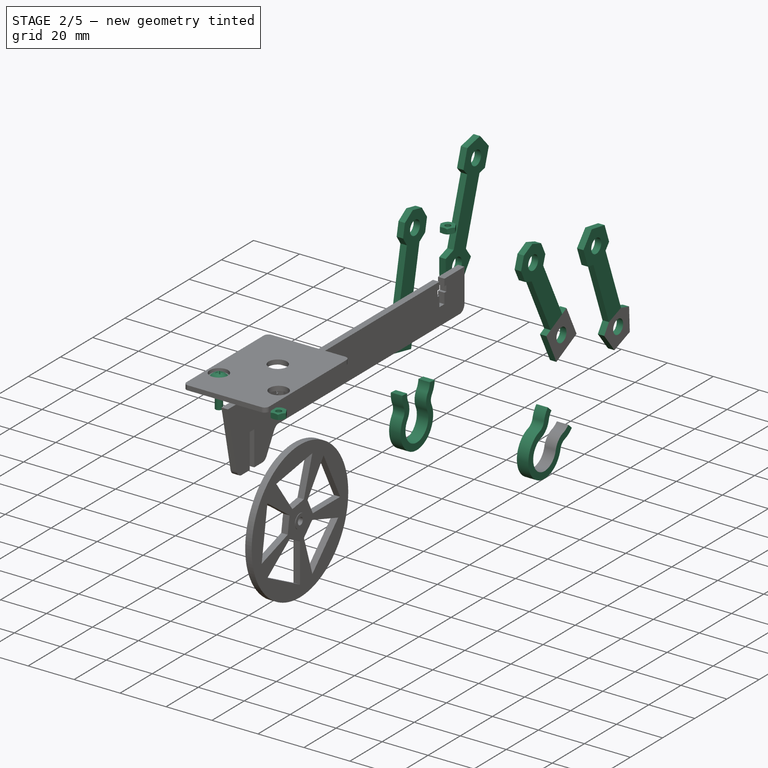
[diagram: stage 2 of 5 — iso view after this stage's code; geometry added in this stage tinted green]
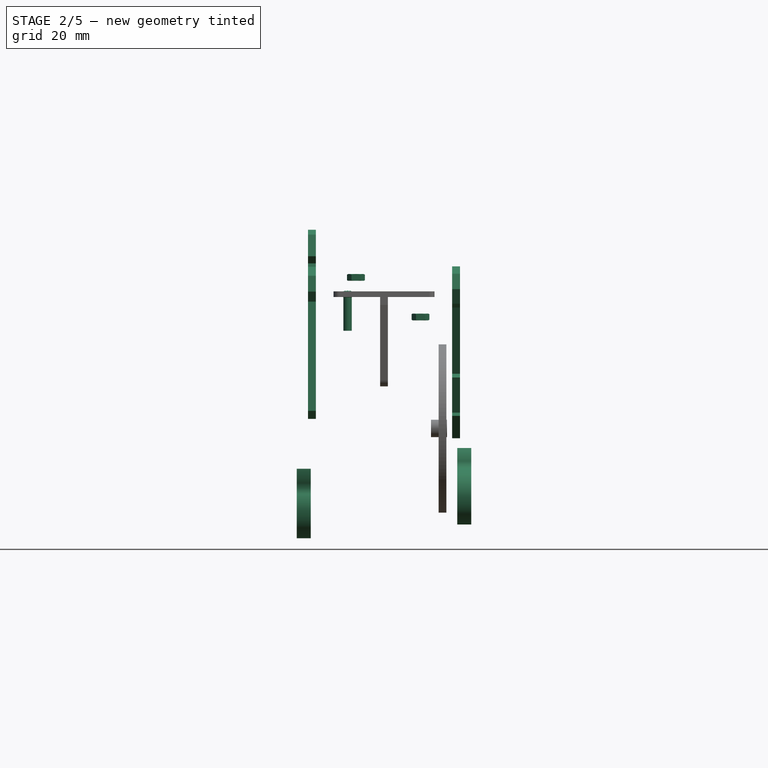
[diagram: stage 2 of 5 — front view after this stage's code; geometry added in this stage tinted green]
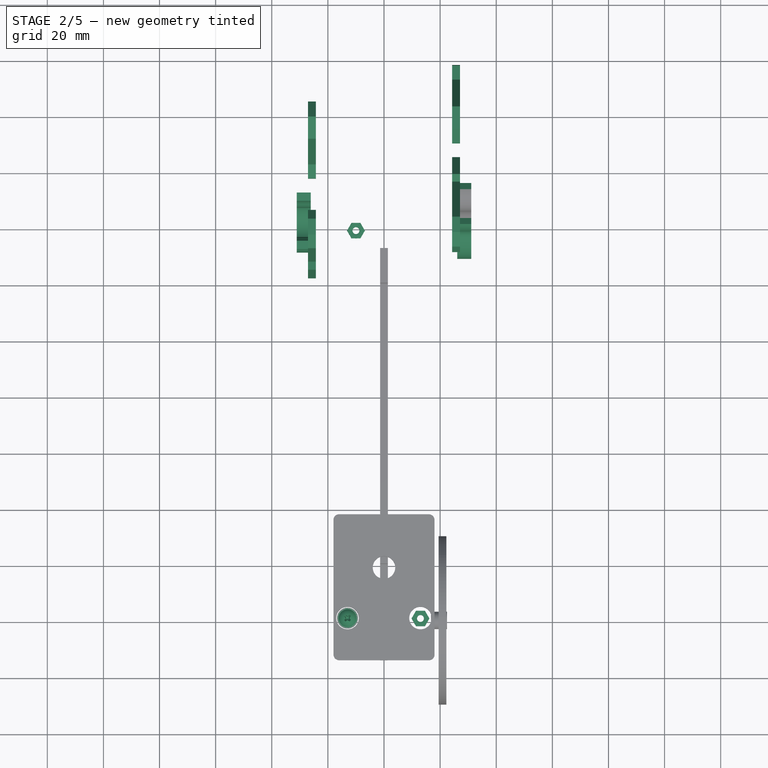
[diagram: stage 2 of 5 — top view after this stage's code; geometry added in this stage tinted green]
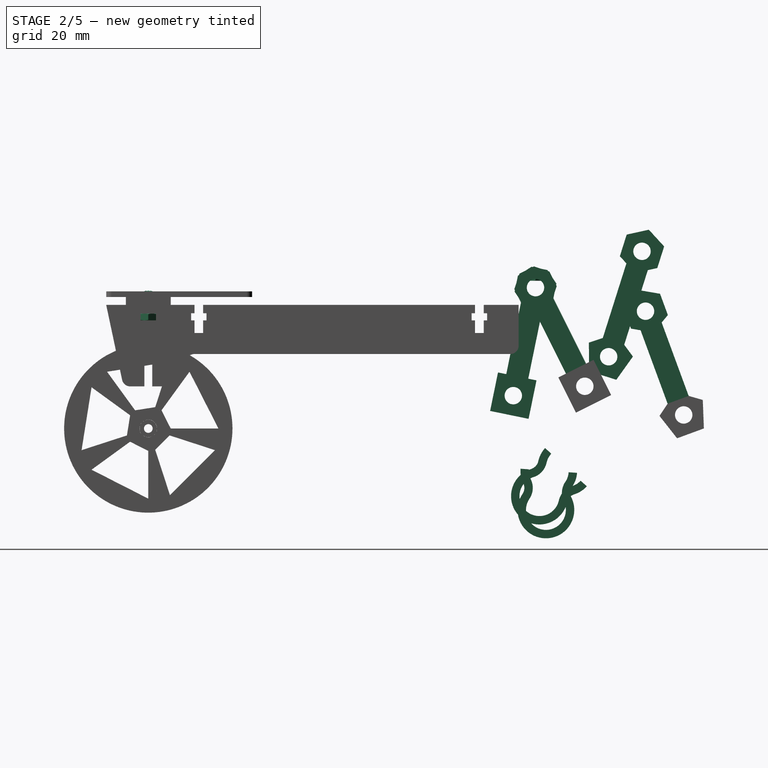
[diagram: stage 2 of 5 — right view after this stage's code; geometry added in this stage tinted green]
FEATURE [Sketcher::SketchObject] Sketch037
  FullyConstrained = true
  MapMode = 5
  Placement = pos=(0,0,0) rot=(0.57735,0.57735,0.57735;2.0944rad)
  Support = -> [YZ_Plane]
  expr: Constraints[1] = Spreadsheet.spindle_dia
  sketch-geometry (1):
    g0: Circle CenterX=0 CenterY=0 CenterZ=0 NormalX=0 NormalY=0 NormalZ=1 AngleXU=0 Radius=2.55
  constraints (2):
    c: Coincident(g0,g-1)
    c: Diameter(g0) = 5.1
FEATURE [PartDesign::Pad] Pad031
  Direction = (1,-2e-16,3e-16)
  Length = 20.7
  Length2 = 10
  Midplane = true
  Placement = pos=(0,0,0) rot=(0.57735,0.57735,0.57735;2.0944rad)
  Profile = -> Sketch037
  ReferenceAxis = -> Sketch037 [N_Axis]
  Refine = true
  Type = 0
FEATURE [Sketcher::SketchObject] Sketch038
  FullyConstrained = true
  MapMode = 5
  Placement = pos=(10.35,-2.3e-15,2.3e-15) rot=(0.57735,0.57735,0.57735;2.0944rad)
  Support = -> [Pad031]
  expr: Constraints[11] = Spreadsheet.spindle_flat
  expr: Constraints[21] = -Spreadsheet.angle
  expr: Constraints[6] = Spreadsheet.spindle_dia
  sketch-geometry (8):
    g0: ArcOfCircle CenterX=0 CenterY=0 CenterZ=0 NormalX=0 NormalY=0 NormalZ=1 AngleXU=0 Radius=2.55 StartAngle=0.75905 EndAngle=2.38254
    g1: ArcOfCircle CenterX=0 CenterY=0 CenterZ=0 NormalX=0 NormalY=0 NormalZ=1 AngleXU=0 Radius=2.55 StartAngle=3.90064 EndAngle=5.52414
    g2: LineSegment StartX=-1.85 StartY=1.75499 StartZ=0 EndX=-1.85 EndY=-1.75499 EndZ=0
    g3: LineSegment StartX=1.85 StartY=1.75499 StartZ=0 EndX=1.85 EndY=-1.75499 EndZ=0
    g4: Circle CenterX=0 CenterY=0 CenterZ=0 NormalX=0 NormalY=0 NormalZ=1 AngleXU=0 Radius=0.95
    g5: Circle CenterX=0 CenterY=0 CenterZ=0 NormalX=0 NormalY=0 NormalZ=1 AngleXU=0 Radius=1.85
    g6: LineSegment StartX=0 StartY=0 StartZ=0 EndX=1.85 EndY=0 EndZ=0
    g7: LineSegment StartX=0 StartY=0 StartZ=0 EndX=-1.85 EndY=1e-16 EndZ=0
  constraints (22):
    c: Coincident(g2,g0)
    c: Coincident(g2,g1)
    c: Coincident(g3,g0)
    c: Coincident(g3,g1)
    c: Diameter(g4) = 1.9
    c: Equal(g0,g1)
    c: Diameter(g0) = 5.1
    c: Coincident(g1,g0)
    c: Coincident(g1,g4)
    c: Coincident(g0,g-1)
    c: Coincident(g5,g0)
    c: Diameter(g5) = 3.7
    c: Tangent(g5,g2)
    c: Tangent(g3,g5)
    c: Coincident(g6,g0)
    c: PointOnObject(g6,g5)
    c: Coincident(g7,g0)
    c: PointOnObject(g7,g5)
    c: Perpendicular(g3,g6)
    c: Angle(g6,g7) = 3.14159
    c: Perpendicular(g7,g2)
    c: Angle(g-1,g6) = 0
FEATURE [PartDesign::Pad] Pad032
  BaseFeature = -> Pad031
  Direction = (1,-4e-16,4e-16)
  Length = 8.05
  Length2 = 10
  Placement = pos=(0,0,0) rot=(0.57735,0.57735,0.57735;2.0944rad)
  Profile = -> Sketch038
  ReferenceAxis = -> Sketch038 [N_Axis]
  Refine = true
  Type = 0
FEATURE [PartDesign::SubShapeBinder] Binder016
  BindCopyOnChange = 0
  BindMode = 0
  ClaimChildren = false
  Context = -> Body028 [Binder016.]
  Fuse = false
  MakeFace = true
  OffsetFill = false
  OffsetIntersection = false
  OffsetJoinType = 0
  OffsetOpenResult = false
  PartialLoad = false
  Relative = true
  Support = -> [Body027]
  _Version = 2
FEATURE [Sketcher::SketchObject] Sketch039
  FullyConstrained = true
  MapMode = 5
  Placement = pos=(-18.4,1.34e-14,-5.5e-15) rot=(-0.57735,0.57735,0.57735;4.18879rad)
  Support = -> [Binder016]
  expr: Constraints[12] = Spreadsheet.cam_outer_fillet
  expr: Constraints[20] = Spreadsheet.cam_slot_big
  expr: Constraints[33] = Spreadsheet.cam_slot_sml
  expr: Constraints[37] = Spreadsheet.cam_slot_gap
  expr: Constraints[39] = Spreadsheet.spindle_dia
  expr: Constraints[3] = Spreadsheet.cam_hole
  expr: Constraints[40] = Spreadsheet.spindle_flat
  expr: Constraints[41] = Spreadsheet.spindle_flat - 0.2
  expr: Constraints[4] = Spreadsheet.cam_outer_rad
  expr: Constraints[59] = Spreadsheet.cam_length
  expr: Constraints[60] = Spreadsheet.angle
  sketch-geometry (26):
    g0: ArcOfCircle CenterX=11 CenterY=5.12e-14 CenterZ=0 NormalX=0 NormalY=0 NormalZ=1 AngleXU=0 Radius=7 StartAngle=4.71239 EndAngle=7.85398
    g1: LineSegment StartX=-3.75 StartY=-7 StartZ=0 EndX=11 EndY=-7 EndZ=0
    g2: LineSegment StartX=11 StartY=7 StartZ=0 EndX=-3.75 EndY=7 EndZ=0
    g3: Circle CenterX=11 CenterY=5.12e-14 CenterZ=0 NormalX=0 NormalY=0 NormalZ=1 AngleXU=0 Radius=3.1
    g4: LineSegment StartX=-6.75 StartY=4 StartZ=0 EndX=-6.75 EndY=-4 EndZ=0
    g5: ArcOfCircle CenterX=-3.75 CenterY=4 CenterZ=0 NormalX=0 NormalY=0 NormalZ=1 AngleXU=0 Radius=3 StartAngle=1.5708 EndAngle=3.14159
    g6: ArcOfCircle CenterX=-3.75 CenterY=-4 CenterZ=0 NormalX=0 NormalY=0 NormalZ=1 AngleXU=0 Radius=3 StartAngle=3.14159 EndAngle=4.71239
    g7: ArcOfCircle CenterX=-3.75 CenterY=4 CenterZ=0 NormalX=0 NormalY=0 NormalZ=1 AngleXU=0 Radius=0.5 StartAngle=5.3e-15 EndAngle=3.14159
    g8: ArcOfCircle CenterX=-3.75 CenterY=-4 CenterZ=0 NormalX=0 NormalY=0 NormalZ=1 AngleXU=0 Radius=0.5 StartAngle=3.14159 EndAngle=6.28319
    g9: LineSegment StartX=-4.25 StartY=4 StartZ=0 EndX=-4.25 EndY=-4 EndZ=0
    g10: LineSegment StartX=-3.25 StartY=-4 StartZ=0 EndX=-3.25 EndY=4 EndZ=0
    g11: LineSegment StartX=0 StartY=0 StartZ=0 EndX=11 EndY=5.12e-14 EndZ=0
    g12: LineSegment StartX=-3.75 StartY=4 StartZ=0 EndX=-3.75 EndY=-4 EndZ=0
    g13: LineSegment StartX=-1.75 StartY=4 StartZ=0 EndX=-1.75 EndY=-4 EndZ=0
    g14: LineSegment StartX=-1.75 StartY=4 StartZ=0 EndX=-3.75 EndY=4 EndZ=0
    g15: ArcOfCircle CenterX=-1.65 CenterY=4 CenterZ=0 NormalX=0 NormalY=0 NormalZ=1 AngleXU=0 Radius=0.1 StartAngle=1.15e-14 EndAngle=3.14159
    g16: ArcOfCircle CenterX=-1.65 CenterY=-4 CenterZ=0 NormalX=0 NormalY=0 NormalZ=1 AngleXU=0 Radius=0.1 StartAngle=3.14159 EndAngle=6.28319
    g17: LineSegment StartX=-1.55 StartY=4 StartZ=0 EndX=-1.55 EndY=2.02485 EndZ=0
    g18: LineSegment StartX=-1.55 StartY=-4 StartZ=0 EndX=-1.55 EndY=-2.02485 EndZ=0
    g19: LineSegment StartX=-1.65 StartY=-4 StartZ=0 EndX=-3.75 EndY=-4 EndZ=0
    g20: Circle CenterX=-6e-16 CenterY=2.7e-15 CenterZ=0 NormalX=0 NormalY=0 NormalZ=1 AngleXU=0 Radius=2.55
    g21: Circle CenterX=-6e-16 CenterY=2.7e-15 CenterZ=0 NormalX=0 NormalY=0 NormalZ=1 AngleXU=0 Radius=1.85
    g22: Circle CenterX=-6e-16 CenterY=2.7e-15 CenterZ=0 NormalX=0 NormalY=0 NormalZ=1 AngleXU=0 Radius=1.75
    g23: LineSegment StartX=1.85 StartY=-1.75499 StartZ=0 EndX=1.85 EndY=1.75499 EndZ=0
    g24: ArcOfCircle CenterX=0 CenterY=0 CenterZ=0 NormalX=0 NormalY=0 NormalZ=1 AngleXU=0 Radius=2.55 StartAngle=4.05905 EndAngle=5.52414
    g25: ArcOfCircle CenterX=0 CenterY=0 CenterZ=0 NormalX=0 NormalY=0 NormalZ=1 AngleXU=0 Radius=2.55 StartAngle=0.75905 EndAngle=2.22414
  constraints (62):
    c: Tangent(g1,g0) = -1.5708
    c: Tangent(g0,g2) = -1.5708
    c: Coincident(g3,g0)
    c: Diameter(g3) = 6.2
    c: Radius(g0) = 7
    c: Parallel(g2,g1)
    c: Perpendicular(g4,g1)
    c: Tangent(g1,g6) = -1.5708
    c: Tangent(g6,g4) = -1.5708
    c: Tangent(g5,g4) = -1.5708
    c: Equal(g5,g6)
    c: Tangent(g5,g2) = -1.5708
    c: Radius(g5) = 3
    c: Tangent(g7,g9) = -1.5708
    c: Tangent(g9,g8) = -1.5708
    c: Tangent(g8,g10) = -1.5708
    c: Tangent(g10,g7) = -1.5708
    c: Equal(g7,g8)
    c: Coincident(g7,g5)
    c: Coincident(g8,g6)
    c: Radius(g8) = 0.5
    c: Coincident(g12,g5)
    c: Coincident(g12,g6)
    c: Parallel(g13,g10)
    c: Coincident(g14,g13)
    c: Coincident(g14,g5)
    c: Perpendicular(g12,g14)
    c: Tangent(g15,g13) = -1.5708
    c: Tangent(g18,g16) = -1.5708
    c: Tangent(g17,g15) = 1.5708
    c: Parallel(g17,g13)
    c: Parallel(g18,g13)
    c: Equal(g16,g15)
    c: Radius(g16) = 0.1
    c: Coincident(g19,g16)
    c: Coincident(g6,g19)
    c: Perpendicular(g12,g19)
    c: Distance(g14) = 2
    c: Tangent(g13,g16) = -1.5708
    c: Diameter(g20) = 5.1
    c: Diameter(g21) = 3.7
    c: Diameter(g22) = 3.5
    c: Tangent(g13,g22)
    c: PointOnObject(g18,g20)
    c: PointOnObject(g17,g20)
    c: PointOnObject(g23,g20)
    c: PointOnObject(g23,g20)
    c: Tangent(g23,g21)
    c: Parallel(g23,g13)
    c: Coincident(g23,g25)
    c: Coincident(g25,g17)
    c: Coincident(g24,g23)
    c: Coincident(g24,g18)
    c: Coincident(g24,g25)
    c: Coincident(g20,g21)
    c: Coincident(g20,g22)
    c: Coincident(g11,g24)
    c: Coincident(g11,g0)
    c: Equal(g17,g18)
    c: Distance(g11) = 11
    c: Angle(g11) = 0
    c: Coincident(g24,g-1)
FEATURE [Spreadsheet::Sheet] Spreadsheet
  cells = A1='acrylic_thick; B1(acrylic_thick)==4.9 mm; A2='acrylic_thin; B2(acrylic_thin)=2.8; A3='cam_length; B3(cam_length)=11; A4='angle; B4(angle)=0; A5='clearance; B5(clearance)=0.1; A6='cam_hole; B6(cam_hole)=6.2; A7='cam_outer_rad; B7(cam_outer_rad)=7; A8='cam_outer_fillet; B8(cam_outer_fillet)=3; A9='cam_slot_big; B9(cam_slot_big)=0.5; A10='cam_slot_small; B10(cam_slot_sml)=0.1; A11='cam_slot_gap; B11(cam_slot_gap)==2 mm; A12='spindle_dia; B12(spindle_dia)=5.1; A13='spindle_flat; B13(spindle_flat)=3.7; A14='spindle_hole; B14(spindle_hole)=2; A15='link_0_4; B15(link_0_4)=61.9; A16='link_4_5; B16(link_4_5)=36.7; A17='link_5_6; B17(link_5_6)=39.4; A18='link_6_7; B18(link_6_7)=55.8; A19='link_7_8; B19(link_7_8)=41.5; A20='link_8_4; B20(link_8_4)=39.3; A21='link_6_8; B21(link_6_8)=40.1; A22='link_0_7; B22(link_0_7)=50; A23='link_4_leg; B23(link_4_leg)=49; A24='link_5_leg; B24(link_5_leg)=65.7; A25='link_offset; B25(link_offset)=7.8; A26='link_circle; B26(link_circle)=38; A27='chassis_width; B27(chassis_width)=48.5; A28='wheel_radius; B28(wheel_radius)=30; A29='bearing_ID; B29(bearing_ID)=3.2
FEATURE [PartDesign::Pad] Pad033
  Direction = (-1,1.1e-15,-3e-16)
  Length = 2.8
  Length2 = 10
  Profile = -> Sketch039
  ReferenceAxis = -> Sketch039 [N_Axis]
  Reversed = true
  Type = 0
  expr: Length = Spreadsheet.acrylic_thin
FEATURE [PartDesign::SubShapeBinder] Binder017
  BindCopyOnChange = 0
  BindMode = 0
  ClaimChildren = false
  Context = -> Body [Binder017.]
  Fuse = false
  MakeFace = true
  OffsetFill = false
  OffsetIntersection = false
  OffsetJoinType = 0
  OffsetOpenResult = false
  PartialLoad = false
  Relative = true
  Support = -> [Body028[Pad033.]]
  _Version = 2
FEATURE [PartDesign::Plane] DatumPlane
  AttachmentOffset = pos=(0,0,0.1) rot=(0,0,1;0rad)
  Length = 60
  MapMode = 5
  Placement = pos=(-18.5,2.52e-14,-5.9e-15) rot=(-0.57735,0.57735,0.57735;4.18879rad)
  ResizeMode = 0
  Support = -> [Binder017]
  Width = 60
FEATURE [Sketcher::SketchObject] Sketch
  FullyConstrained = true
  MapMode = 5
  Placement = pos=(-18.5,2.52e-14,-5.9e-15) rot=(-0.57735,0.57735,0.57735;4.18879rad)
  Support = -> [DatumPlane]
  expr: Constraints[11] = Spreadsheet.cam_outer_fillet
  expr: Constraints[12] = Spreadsheet.cam_outer_rad
  expr: Constraints[13] = Spreadsheet.cam_hole
  expr: Constraints[18] = Spreadsheet.cam_length
  expr: Constraints[23] = Spreadsheet.spindle_flat / 2 - 0.1 + 2
  expr: Constraints[24] = Spreadsheet.angle
  expr: Constraints[6] = Spreadsheet.spindle_hole
  sketch-geometry (11):
    g0: LineSegment StartX=-3.75 StartY=7 StartZ=0 EndX=11 EndY=7 EndZ=0
    g1: ArcOfCircle CenterX=11 CenterY=0 CenterZ=0 NormalX=0 NormalY=0 NormalZ=1 AngleXU=0 Radius=7 StartAngle=4.71239 EndAngle=7.85398
    g2: LineSegment StartX=11 StartY=-7 StartZ=0 EndX=-3.75 EndY=-7 EndZ=0
    g3: ArcOfCircle CenterX=-3.75 CenterY=-4 CenterZ=0 NormalX=0 NormalY=0 NormalZ=1 AngleXU=0 Radius=3 StartAngle=3.14159 EndAngle=4.71239
    g4: ArcOfCircle CenterX=-3.75 CenterY=4 CenterZ=0 NormalX=0 NormalY=0 NormalZ=1 AngleXU=0 Radius=3 StartAngle=1.5708 EndAngle=3.14159
    g5: LineSegment StartX=-6.75 StartY=4 StartZ=0 EndX=-6.75 EndY=-4 EndZ=0
    g6: Circle CenterX=11 CenterY=0 CenterZ=0 NormalX=0 NormalY=0 NormalZ=1 AngleXU=0 Radius=3.1
    g7: Circle CenterX=0 CenterY=0 CenterZ=0 NormalX=0 NormalY=0 NormalZ=1 AngleXU=0 Radius=1
    g8: LineSegment StartX=0 StartY=0 StartZ=0 EndX=11 EndY=0 EndZ=0
    g9: LineSegment StartX=-3.75 StartY=4 StartZ=0 EndX=-3.75 EndY=-4 EndZ=0
    g10: LineSegment StartX=-3.75 StartY=0 StartZ=0 EndX=0 EndY=0 EndZ=0
  constraints (25):
    c: Tangent(g0,g1) = 1.5708
    c: Tangent(g2,g3) = 1.5708
    c: Tangent(g4,g0) = 1.5708
    c: Tangent(g1,g2) = 1.5708
    c: Coincident(g6,g1)
    c: Coincident(g7,g-1)
    c: Diameter(g7) = 2
    c: Tangent(g4,g5) = -1.5708
    c: Tangent(g3,g5) = -1.5708
    c: Parallel(g0,g2)
    c: Equal(g4,g3)
    c: Radius(g4) = 3
    c: Radius(g1) = 7
    c: Diameter(g6) = 6.2
    c: Perpendicular(g5,g2)
    c: Coincident(g8,g7)
    c: Coincident(g8,g1)
    c: Parallel(g0,g8)
    c: Distance(g8) = 11
    c: Coincident(g3,g9)
    c: Coincident(g4,g9)
    c: Coincident(g10,g7)
    c: Symmetric(g4,g3,g10)
    c: Distance(g10) = 3.75
    c: Angle(g-1,g8) = 0
FEATURE [PartDesign::Pad] Pad
  Direction = (-1,2e-15,-3e-16)
  Length = 2.8
  Length2 = 10
  Placement = pos=(-18.5,2.5e-14,-6e-15) rot=(-0.57735,0.57735,0.57735;4.18879rad)
  Profile = -> Sketch
  ReferenceAxis = -> Sketch [N_Axis]
  Type = 0
  expr: Length = Spreadsheet.acrylic_thin
FEATURE [PartDesign::Body] Body  label="cam_2_left"
  Group = -> [Binder017,DatumPlane,Sketch,Pad]
  Origin = -> Origin034
  Tip = -> Pad
FEATURE [PartDesign::SubShapeBinder] Binder018
  BindCopyOnChange = 0
  BindMode = 0
  ClaimChildren = false
  Context = -> Body029 [Binder018.]
  Fuse = false
  MakeFace = true
  OffsetFill = false
  OffsetIntersection = false
  OffsetJoinType = 0
  OffsetOpenResult = false
  PartialLoad = false
  Relative = true
  Support = -> [Body[Pad.]]
  _Version = 2
FEATURE [PartDesign::Plane] DatumPlane001
  AttachmentOffset = pos=(0,0,0.1) rot=(0,0,1;0rad)
  Length = 60
  MapMode = 5
  Placement = pos=(-21.4,6.89e-14,-5.8e-15) rot=(-0.57735,0.57735,0.57735;4.18879rad)
  ResizeMode = 0
  Support = -> [Binder018]
  Width = 60
FEATURE [Sketcher::SketchObject] Sketch040
  FullyConstrained = true
  MapMode = 5
  Placement = pos=(-21.4,6.89e-14,-5.8e-15) rot=(-0.57735,0.57735,0.57735;4.18879rad)
  Support = -> [DatumPlane001]
  expr: Constraints[10] = Spreadsheet.cam_outer_rad
  expr: Constraints[11] = Spreadsheet.cam_hole
  expr: Constraints[13] = Spreadsheet.cam_outer_fillet
  expr: Constraints[20] = Spreadsheet.spindle_flat / 2 - 0.1 + 2
  expr: Constraints[23] = Spreadsheet.cam_length
  expr: Constraints[24] = Spreadsheet.angle
  sketch-geometry (11):
    g0: LineSegment StartX=-3.75 StartY=7 StartZ=0 EndX=11 EndY=7 EndZ=0
    g1: ArcOfCircle CenterX=11 CenterY=0 CenterZ=0 NormalX=0 NormalY=0 NormalZ=1 AngleXU=0 Radius=7 StartAngle=4.71239 EndAngle=7.85398
    g2: LineSegment StartX=11 StartY=-7 StartZ=0 EndX=-3.75 EndY=-7 EndZ=0
    g3: ArcOfCircle CenterX=-3.75 CenterY=-4 CenterZ=0 NormalX=0 NormalY=0 NormalZ=1 AngleXU=0 Radius=3 StartAngle=3.14159 EndAngle=4.71239
    g4: LineSegment StartX=-6.75 StartY=-4 StartZ=0 EndX=-6.75 EndY=4 EndZ=0
    g5: ArcOfCircle CenterX=-3.75 CenterY=4 CenterZ=0 NormalX=0 NormalY=0 NormalZ=1 AngleXU=0 Radius=3 StartAngle=1.5708 EndAngle=3.14159
    g6: Circle CenterX=11 CenterY=0 CenterZ=0 NormalX=0 NormalY=0 NormalZ=1 AngleXU=0 Radius=3.1
    g7: Circle CenterX=0 CenterY=0 CenterZ=0 NormalX=0 NormalY=0 NormalZ=1 AngleXU=0 Radius=3.1
    g8: LineSegment StartX=-3.75 StartY=4 StartZ=0 EndX=-3.75 EndY=-4 EndZ=0
    g9: LineSegment StartX=-3.75 StartY=-1e-16 StartZ=0 EndX=0 EndY=0 EndZ=0
    g10: LineSegment StartX=0 StartY=0 StartZ=0 EndX=11 EndY=0 EndZ=0
  constraints (25):
    c: Tangent(g0,g1) = 1.5708
    c: Tangent(g2,g3) = 1.5708
    c: Tangent(g4,g5) = 1.5708
    c: Tangent(g3,g4) = 1.5708
    c: Tangent(g5,g0) = 1.5708
    c: Tangent(g1,g2) = 1.5708
    c: Parallel(g0,g2)
    c: Coincident(g1,g6)
    c: Coincident(g7,g-1)
    c: Equal(g7,g6)
    c: Radius(g1) = 7
    c: Diameter(g6) = 6.2
    c: Equal(g3,g5)
    c: Radius(g3) = 3
    c: Perpendicular(g2,g4)
    c: Coincident(g8,g5)
    c: Coincident(g8,g3)
    c: Symmetric(g3,g5,g9)
    c: Perpendicular(g9,g8)
    c: Coincident(g9,g7)
    c: Distance(g9) = 3.75
    c: Coincident(g7,g10)
    c: Coincident(g10,g1)
    c: Distance(g10) = 11
    c: Angle(g10) = 0
FEATURE [PartDesign::Pad] Pad034
  Direction = (-1,2.7e-15,-1e-16)
  Length = 2.8
  Length2 = 10
  Placement = pos=(-21.4,5.7e-14,-7e-15) rot=(-0.57735,0.57735,0.57735;4.18879rad)
  Profile = -> Sketch040
  ReferenceAxis = -> Sketch040 [N_Axis]
  Type = 0
  expr: Length = Spreadsheet.acrylic_thin
FEATURE [PartDesign::Body] Body029  label="cam_3_left"
  Group = -> [Binder018,DatumPlane001,Sketch040,Pad034]
  Origin = -> Origin035
  Tip = -> Pad034
FEATURE [Sketcher::SketchObject] Sketch041
  FullyConstrained = true
  MapMode = 5
  Placement = pos=(0,0,0) rot=(0.57735,0.57735,0.57735;2.0944rad)
  Support = -> [YZ_Plane033]
  expr: Constraints[18] = Spreadsheet.cam_length
  expr: Constraints[35] = Spreadsheet.angle
  expr: Constraints[42] = Spreadsheet.wheel_radius
  sketch-geometry (16):
    g0: Circle CenterX=0 CenterY=0 CenterZ=0 NormalX=0 NormalY=0 NormalZ=1 AngleXU=0 Radius=11
    g1: LineSegment StartX=11 StartY=0 StartZ=0 EndX=49.3111 EndY=32.1288 EndZ=0
    g2: LineSegment StartX=49.3111 StartY=32.1288 StartZ=0 EndX=77.2113 EndY=-16.1953 EndZ=0
    g3: LineSegment StartX=38 StartY=-7.8 StartZ=0 EndX=77.2113 EndY=-16.1953 EndZ=0
    g4: LineSegment StartX=38 StartY=-7.8 StartZ=0 EndX=49.3111 EndY=32.1288 EndZ=0
    g5: LineSegment StartX=77.2113 StartY=-16.1953 StartZ=0 EndX=90.8212 EndY=-53.17 EndZ=0
    g6: LineSegment StartX=38 StartY=-7.8 StartZ=0 EndX=55.5722 EndY=-42.9526 EndZ=0
    g7: LineSegment StartX=11 StartY=0 StartZ=0 EndX=55.5722 EndY=-42.9526 EndZ=0
    g8: LineSegment StartX=0 StartY=0 StartZ=0 EndX=11 EndY=0 EndZ=0
    g9: LineSegment StartX=90.8212 StartY=-53.17 StartZ=0 EndX=55.5722 EndY=-42.9526 EndZ=0
    g10: LineSegment StartX=90.8212 StartY=-53.17 StartZ=0 EndX=34.6617 EndY=-87.2669 EndZ=0
    g11: LineSegment StartX=55.5722 StartY=-42.9526 StartZ=0 EndX=34.6617 EndY=-87.2669 EndZ=0
    g12: LineSegment StartX=38 StartY=-7.8 StartZ=0 EndX=0 EndY=-7.8 EndZ=0
    g13: LineSegment StartX=0 StartY=-7.8 StartZ=0 EndX=0 EndY=0 EndZ=0
    g14: LineSegment StartX=-100 StartY=0 StartZ=0 EndX=-100 EndY=-88 EndZ=0
    g15: Circle CenterX=-100 CenterY=-58 CenterZ=0 NormalX=0 NormalY=0 NormalZ=1 AngleXU=0 Radius=30
  constraints (47):
    c: Coincident(g0,g-1)
    c: Coincident(g7,g1)
    c: Distance(g1) = 50
    c: Distance(g7) = 61.9
    c: Distance(g2) = 55.8
    c: Distance(g4) = 41.5
    c: Distance(g3) = 40.1
    c: Distance(g5) = 39.4
    c: Distance(g6) = 39.3
    c: PointOnObject(g1,g0)
    c: Coincident(g8,g0)
    c: Coincident(g8,g1)
    c: Coincident(g9,g5)
    c: Distance(g9) = 36.7
    c: Coincident(g10,g5)
    c: Distance(g10) = 65.7
    c: Coincident(g11,g10)
    c: Distance(g11) = 49
    c: Radius(g0) = 11
    c: Coincident(g1,g4)
    c: Coincident(g1,g2)
    c: Coincident(g3,g4)
    c: Coincident(g2,g3)
    c: Coincident(g3,g6)
    c: Coincident(g6,g7)
    c: Coincident(g2,g5)
    c: Coincident(g6,g9)
    c: Coincident(g6,g11)
    c: Coincident(g12,g3)
    c: PointOnObject(g12,g-2)
    c: Horizontal(g12)
    c: Coincident(g13,g12)
    c: Coincident(g13,g0)
    c: DistanceY(g13,g13) = 7.8
    c: DistanceX(g12,g12) = 38
    c: Angle(g-1,g8) = 0
    c: PointOnObject(g14,g-1)
    c: Vertical(g14)
    c: DistanceX(g14,g0) = 100
    c: DistanceY(g14,g14) = 88
    c: PointOnObject(g15,g14)
    c: PointOnObject(g14,g15)
    c: Radius(g15) = 30
    c: DistanceX(g1,g2) = 27.9002
    c: DistanceY(g2,g1) = 48.3241
    c: DistanceY(g5,g1) = 85.2988
    c: DistanceX(g1,g5) = 41.5102
FEATURE [PartDesign::CoordinateSystem] Local_CS053
  AttacherType = Attacher::AttachEngine3D
  MapMode = 7
  Placement = pos=(2.4e-15,11,-2.4e-15) rot=(0,1,0;3.14159rad)
  Support = -> [Sketch041]
FEATURE [PartDesign::Body] Body030  label="linkage_right"
  Group = -> [Sketch041,Local_CS053]
  Origin = -> Origin036
FEATURE [Sketcher::SketchObject] Sketch042
  FullyConstrained = true
  MapMode = 5
  Placement = pos=(0,0,0) rot=(-0.57735,0.57735,0.57735;4.18879rad)
  Support = -> [YZ_Plane033]
  expr: Constraints[34] = Spreadsheet.cam_length
  expr: Constraints[35] = Spreadsheet.angle
  expr: Constraints[42] = Spreadsheet.wheel_radius
  sketch-geometry (16):
    g0: Circle CenterX=0 CenterY=0 CenterZ=0 NormalX=0 NormalY=0 NormalZ=1 AngleXU=0 Radius=11
    g1: LineSegment StartX=11 StartY=0 StartZ=0 EndX=-27.1936 EndY=32.2683 EndZ=0
    g2: LineSegment StartX=-27.1936 StartY=32.2683 StartZ=0 EndX=-75.955 EndY=5.13952 EndZ=0
    g3: LineSegment StartX=-75.955 StartY=5.13952 StartZ=0 EndX=-38 EndY=-7.8 EndZ=0
    g4: LineSegment StartX=-38 StartY=-7.8 StartZ=0 EndX=-27.1936 EndY=32.2683 EndZ=0
    g5: LineSegment StartX=-75.955 StartY=5.13952 StartZ=0 EndX=-64.0668 EndY=-32.4242 EndZ=0
    g6: LineSegment StartX=-38 StartY=-7.8 StartZ=0 EndX=-30.0893 EndY=-46.2956 EndZ=0
    g7: LineSegment StartX=11 StartY=0 StartZ=0 EndX=-30.0893 EndY=-46.2956 EndZ=0
    g8: LineSegment StartX=-38 StartY=-7.8 StartZ=0 EndX=0 EndY=-7.8 EndZ=0
    g9: LineSegment StartX=0 StartY=0 StartZ=0 EndX=11 EndY=0 EndZ=0
    g10: LineSegment StartX=-38 StartY=-7.8 StartZ=0 EndX=0 EndY=0 EndZ=0
    g11: LineSegment StartX=-64.0668 StartY=-32.4242 StartZ=0 EndX=-30.0893 EndY=-46.2956 EndZ=0
    g12: LineSegment StartX=-64.0668 StartY=-32.4242 StartZ=0 EndX=-41.2048 EndY=-94.0182 EndZ=0
    g13: LineSegment StartX=-30.0893 StartY=-46.2956 StartZ=0 EndX=-41.2048 EndY=-94.0182 EndZ=0
    g14: LineSegment StartX=100 StartY=1e-16 StartZ=0 EndX=100 EndY=-88 EndZ=0
    g15: Circle CenterX=100 CenterY=-58 CenterZ=0 NormalX=0 NormalY=0 NormalZ=1 AngleXU=0 Radius=30
  constraints (43):
    c: Coincident(g0,g-1)
    c: Coincident(g2,g1)
    c: Coincident(g3,g2)
    c: Coincident(g4,g3)
    c: Coincident(g4,g1)
    c: Coincident(g5,g2)
    c: Coincident(g6,g3)
    c: Coincident(g7,g1)
    c: Coincident(g7,g6)
    c: Distance(g1) = 50
    c: Distance(g7) = 61.9
    c: Distance(g2) = 55.8
    c: Distance(g4) = 41.5
    c: Distance(g3) = 40.1
    c: Distance(g5) = 39.4
    c: Distance(g6) = 39.3
    c: Coincident(g8,g3)
    c: PointOnObject(g8,g-2)
    c: Horizontal(g8)
    c: Distance(g8,g0) = 7.8
    c: PointOnObject(g1,g0)
    c: Coincident(g9,g0)
    c: Coincident(g9,g1)
    c: Coincident(g10,g3)
    c: Coincident(g10,g0)
    c: Coincident(g11,g5)
    c: Coincident(g11,g6)
    c: Distance(g11) = 36.7
    c: Coincident(g12,g5)
    c: Distance(g12) = 65.7
    c: Coincident(g13,g6)
    c: Coincident(g13,g12)
    c: Distance(g13) = 49
    c: DistanceX(g8,g8) = 38
    c: Radius(g0) = 11
    c: Angle(g9) = 0
    c: PointOnObject(g14,g-1)
    c: Vertical(g14)
    c: DistanceY(g14,g14) = 88
    c: DistanceX(g14) = 100
    c: PointOnObject(g15,g14)
    c: PointOnObject(g14,g15)
    c: Radius(g15) = 30
FEATURE [PartDesign::CoordinateSystem] Local_CS047
  AttacherType = Attacher::AttachEngine3D
  MapMode = 7
  Placement = pos=(0,0,0) rot=(0,0.707107,0.707107;3.14159rad)
  Support = -> [Sketch042]
FEATURE [PartDesign::Body] Body025  label="linkage_left"
  Group = -> [Sketch042,Local_CS047]
  Origin = -> Origin031
FEATURE [App::DocumentObjectGroup] Group  label="linkage_wireframes"
  Group = -> [Body030,Body025]
FEATURE [PartDesign::SubShapeBinder] Binder019
  BindCopyOnChange = 0
  BindMode = 0
  ClaimChildren = false
  Context = -> Body031 [Binder019.]
  Fuse = false
  MakeFace = true
  OffsetFill = false
  OffsetIntersection = false
  OffsetJoinType = 0
  OffsetOpenResult = false
  PartialLoad = false
  Relative = true
  Support = -> [Body025[Sketch042.]]
  _Version = 2
FEATURE [PartDesign::SubShapeBinder] Binder020
  BindCopyOnChange = 0
  BindMode = 0
  ClaimChildren = false
  Context = -> Body031 [Binder020.]
  Fuse = false
  MakeFace = true
  OffsetFill = false
  OffsetIntersection = false
  OffsetJoinType = 0
  OffsetOpenResult = false
  PartialLoad = false
  Relative = true
  Support = -> [Body029[Pad034.]]
  _Version = 2
FEATURE [PartDesign::Plane] DatumPlane002
  AttachmentOffset = pos=(0,0,0.1) rot=(0,0,1;0rad)
  Length = 72.2881
  MapMode = 5
  Placement = pos=(-24.3,6.51e-14,0) rot=(-0.57735,0.57735,0.57735;4.18879rad)
  ResizeMode = 0
  Support = -> [Binder020]
  Width = 77.5086
FEATURE [Sketcher::SketchObject] Sketch043
  FullyConstrained = true
  MapMode = 5
  Placement = pos=(-24.3,6.51e-14,0) rot=(-0.57735,0.57735,0.57735;4.18879rad)
  Support = -> [DatumPlane002]
  expr: Constraints[14] = Spreadsheet.link_0_7
  expr: Constraints[15] = Spreadsheet.cam_length
  expr: Constraints[3] = Spreadsheet.cam_outer_rad * 2
  expr: Constraints[41] = Spreadsheet.cam_outer_rad
  expr: Constraints[5] = Spreadsheet.cam_hole
  expr: Constraints[67] = -Spreadsheet.link_circle
  expr: Constraints[68] = -Spreadsheet.link_offset
  expr: Constraints[69] = Spreadsheet.link_5_leg
  expr: Constraints[70] = Spreadsheet.link_4_leg
  expr: Constraints[71] = Spreadsheet.link_4_5
  expr: Constraints[72] = Spreadsheet.link_5_6
  expr: Constraints[73] = Spreadsheet.link_8_4
  expr: Constraints[74] = Spreadsheet.link_6_8
  expr: Constraints[75] = Spreadsheet.link_6_7
  expr: Constraints[76] = Spreadsheet.link_7_8
  expr: Constraints[77] = Spreadsheet.link_0_4
  expr: Constraints[79] = Spreadsheet.angle
  sketch-geometry (31):
    g0: Circle CenterX=11 CenterY=3.1e-15 CenterZ=0 NormalX=0 NormalY=0 NormalZ=1 AngleXU=0 Radius=3.1
    g1: Circle CenterX=-27.1936 CenterY=32.2683 CenterZ=0 NormalX=0 NormalY=0 NormalZ=1 AngleXU=0 Radius=3.1
    g2: ArcOfCircle CenterX=11 CenterY=3.1e-15 CenterZ=0 NormalX=0 NormalY=0 NormalZ=1 AngleXU=0 Radius=7 StartAngle=3.04833 EndAngle=8.11503
    g3: LineSegment StartX=9.19335 StartY=6.76284 StartZ=0 EndX=-19.8675 EndY=31.3153 EndZ=0
    g4: LineSegment StartX=4.03042 StartY=0.65186 StartZ=0 EndX=-25.0305 EndY=25.2043 EndZ=0
    g5: LineSegment StartX=0 StartY=0 StartZ=0 EndX=11 EndY=3.1e-15 EndZ=0
    g6: LineSegment StartX=-19.8675 StartY=31.3153 StartZ=0 EndX=-25.0305 EndY=25.2043 EndZ=0
    g7: LineSegment StartX=9.19335 StartY=6.76284 StartZ=0 EndX=4.03042 EndY=0.65186 EndZ=0
    g8: LineSegment StartX=-33.1285 StartY=37.2825 StartZ=0 EndX=-34.8141 EndY=30.7546 EndZ=0
    g9: LineSegment StartX=-34.8141 StartY=30.7546 StartZ=0 EndX=-30.7614 EndY=25.3666 EndZ=0
    g10: LineSegment StartX=-30.7614 StartY=25.3666 StartZ=0 EndX=-24.0221 EndY=25.1757 EndZ=0
    g11: LineSegment StartX=-24.0221 StartY=25.1757 StartZ=0 EndX=-19.671 EndY=30.3258 EndZ=0
    g12: LineSegment StartX=-19.671 StartY=30.3258 StartZ=0 EndX=-20.9846 EndY=36.9386 EndZ=0
    g13: LineSegment StartX=-20.9846 StartY=36.9386 StartZ=0 EndX=-26.9737 EndY=40.0346 EndZ=0
    g14: LineSegment StartX=-26.9737 StartY=40.0346 StartZ=0 EndX=-33.1285 EndY=37.2825 EndZ=0
    g15: Circle CenterX=-27.1936 CenterY=32.2683 CenterZ=0 NormalX=0 NormalY=0 NormalZ=1 AngleXU=0 Radius=7.76941
    g16: Circle CenterX=-27.1936 CenterY=32.2683 CenterZ=0 NormalX=0 NormalY=0 NormalZ=1 AngleXU=0 Radius=7
    g17: LineSegment StartX=-27.1936 StartY=32.2683 StartZ=0 EndX=-22.449 EndY=28.2598 EndZ=0
    g18: LineSegment StartX=-30.7614 StartY=25.3666 StartZ=0 EndX=-25.0305 EndY=25.2043 EndZ=0
    g19: LineSegment StartX=-20.9846 StartY=36.9386 StartZ=0 EndX=-19.8675 EndY=31.3153 EndZ=0
    g20: Circle CenterX=0 CenterY=0 CenterZ=0 NormalX=0 NormalY=0 NormalZ=1 AngleXU=0 Radius=11
    g21: LineSegment StartX=-41.2048 StartY=-94.0182 StartZ=0 EndX=-30.0893 EndY=-46.2956 EndZ=0
    g22: LineSegment StartX=-30.0893 StartY=-46.2956 StartZ=0 EndX=-64.0668 EndY=-32.4242 EndZ=0
    g23: LineSegment StartX=-64.0668 StartY=-32.4242 StartZ=0 EndX=-75.955 EndY=5.13952 EndZ=0
    g24: LineSegment StartX=-75.955 StartY=5.13952 StartZ=0 EndX=-38 EndY=-7.8 EndZ=0
    g25: LineSegment StartX=-38 StartY=-7.8 StartZ=0 EndX=-27.1936 EndY=32.2683 EndZ=0
    g26: LineSegment StartX=11 StartY=3.1e-15 StartZ=0 EndX=-27.1936 EndY=32.2683 EndZ=0
    g27: LineSegment StartX=11 StartY=3.1e-15 StartZ=0 EndX=-30.0893 EndY=-46.2956 EndZ=0
    g28: LineSegment StartX=-30.0893 StartY=-46.2956 StartZ=0 EndX=-38 EndY=-7.8 EndZ=0
    g29: LineSegment StartX=-41.2048 StartY=-94.0182 StartZ=0 EndX=-64.0668 EndY=-32.4242 EndZ=0
    g30: LineSegment StartX=-75.955 StartY=5.13952 StartZ=0 EndX=-27.1936 EndY=32.2683 EndZ=0
  constraints (75):
    c: Equal(g1,g0)
    c: Coincident(g2,g0)
    c: Coincident(g2,g3)
    c: Diameter(g2) = 14
    c: Coincident(g4,g2)
    c: Diameter(g0) = 6.2
    c: Coincident(g5,g-1)
    c: Coincident(g0,g5)
    c: Coincident(g7,g2)
    c: Coincident(g7,g2)
    c: Perpendicular(g3,g6)
    c: Perpendicular(g4,g6)
    c: Perpendicular(g7,g4)
    c: Distance(g6) = 8
    c: Distance(g1,g0) = 50
    c: Distance(g5) = 11
    c: Coincident(g8,g9)
    c: Coincident(g9,g10)
    c: Coincident(g10,g11)
    c: Coincident(g11,g12)
    c: Coincident(g12,g13)
    c: Coincident(g13,g14)
    c: Coincident(g14,g8)
    c: Equal(g8, g9-g14) x6
    c: PointOnObject(g8,g15)
    c: PointOnObject(g9,g15)
    c: PointOnObject(g10,g15)
    c: PointOnObject(g11,g15)
    c: PointOnObject(g12,g15)
    c: PointOnObject(g13,g15)
    c: PointOnObject(g14,g15)
    c: Coincident(g15,g1)
    c: Parallel(g6,g11)
    c: Coincident(g4,g6)
    c: Coincident(g3,g6)
    c: Coincident(g16,g1)
    c: Radius(g16) = 7
    c: Tangent(g11,g16)
    c: Symmetric(g4,g3,g17)
    c: Perpendicular(g6,g17)
    c: Coincident(g17,g1)
    c: PointOnObject(g4,g10)
    c: Coincident(g9,g18)
    c: Coincident(g18,g4)
    c: Coincident(g12,g19)
    c: Coincident(g19,g3)
    c: Coincident(g20,g5)
    c: PointOnObject(g0,g20)
    c: Coincident(g22,g21)
    c: Coincident(g23,g22)
    c: Coincident(g24,g23)
    c: Coincident(g25,g24)
    c: Coincident(g26,g0)
    c: Coincident(g26,g25)
    c: Coincident(g27,g0)
    c: Coincident(g27,g21)
    c: Coincident(g28,g21)
    c: Coincident(g28,g24)
    c: Coincident(g29,g21)
    c: Coincident(g29,g22)
    c: Coincident(g30,g23)
    c: Coincident(g30,g25)
    c: DistanceX(g24) = -38
    c: DistanceY(g24) = -7.8
    c: Distance(g29) = 65.7
    c: Distance(g21) = 49
    c: Distance(g22) = 36.7
    c: Distance(g23) = 39.4
    c: Distance(g28) = 39.3
    c: Distance(g24) = 40.1
    c: Distance(g30) = 55.8
    c: Distance(g25) = 41.5
    c: Distance(g27) = 61.9
    c: Coincident(g1,g25)
    c: Angle(g-1,g5) = 0
FEATURE [PartDesign::Pad] Pad035
  Direction = (-1,2.7e-15,0)
  Length = 2.8
  Length2 = 10
  Placement = pos=(-24.3,6.5e-14,0) rot=(-0.57735,0.57735,0.57735;4.18879rad)
  Profile = -> Sketch043
  ReferenceAxis = -> Sketch043 [N_Axis]
  Type = 0
  expr: Length = Spreadsheet.acrylic_thin
FEATURE [PartDesign::Body] Body031  label="link_0_7_left"
  Group = -> [Binder019,Binder020,DatumPlane002,Sketch043,Pad035]
  Origin = -> Origin037
  Tip = -> Pad035
FEATURE [PartDesign::SubShapeBinder] Binder021
  BindCopyOnChange = 0
  BindMode = 0
  ClaimChildren = false
  Context = -> Body032 [Binder021.]
  Fuse = false
  MakeFace = true
  OffsetFill = false
  OffsetIntersection = false
  OffsetJoinType = 0
  OffsetOpenResult = false
  PartialLoad = false
  Relative = true
  Support = -> [Body031[Pad035.]]
  _Version = 2
FEATURE [PartDesign::Plane] DatumPlane003
  AttachmentOffset = pos=(0,0,0.1) rot=(0,0,1;0rad)
  Length = 60
  MapMode = 5
  Placement = pos=(-27.2,7.29e-14,-3e-16) rot=(-0.57735,0.57735,0.57735;4.18879rad)
  ResizeMode = 0
  Support = -> [Binder021]
  Width = 60
FEATURE [Sketcher::SketchObject] Sketch045
  FullyConstrained = true
  MapMode = 5
  Placement = pos=(-27.2,7.29e-14,-3e-16) rot=(-0.57735,0.57735,0.57735;4.18879rad)
  Support = -> [DatumPlane003]
  expr: Constraints[2] = Spreadsheet.cam_length
  expr: Constraints[6] = Spreadsheet.cam_hole
  expr: Constraints[7] = Spreadsheet.cam_outer_rad
  expr: Constraints[8] = Spreadsheet.angle
  sketch-geometry (4):
    g0: Circle CenterX=11 CenterY=0 CenterZ=0 NormalX=0 NormalY=0 NormalZ=1 AngleXU=0 Radius=7
    g1: Circle CenterX=11 CenterY=0 CenterZ=0 NormalX=0 NormalY=0 NormalZ=1 AngleXU=0 Radius=3.1
    g2: Circle CenterX=0 CenterY=0 CenterZ=0 NormalX=0 NormalY=0 NormalZ=1 AngleXU=0 Radius=11
    g3: LineSegment StartX=0 StartY=0 StartZ=0 EndX=11 EndY=0 EndZ=0
  constraints (9):
    c: Coincident(g1,g0)
    c: Coincident(g2,g-1)
    c: Radius(g2) = 11
    c: Coincident(g0,g3)
    c: Coincident(g3,g2)
    c: PointOnObject(g0,g2)
    c: Diameter(g1) = 6.2
    c: Radius(g0) = 7
    c: Angle(g-1,g3) = 0
FEATURE [PartDesign::Pad] Pad037
  Direction = (-1,2.7e-15,0)
  Length = 2.8
  Length2 = 10
  Placement = pos=(-27.2,7.3e-14,0) rot=(-0.57735,0.57735,0.57735;4.18879rad)
  Profile = -> Sketch045
  ReferenceAxis = -> Sketch045 [N_Axis]
  Type = 0
  expr: Length = Spreadsheet.acrylic_thin
FEATURE [PartDesign::Body] Body032  label="spacer_left"
  Group = -> [Binder021,DatumPlane003,Sketch045,Pad037]
  Origin = -> Origin038
  Tip = -> Pad037
FEATURE [PartDesign::SubShapeBinder] Binder023
  BindCopyOnChange = 0
  BindMode = 0
  ClaimChildren = false
  Context = -> Body033 [Binder023.]
  Fuse = false
  MakeFace = true
  OffsetFill = false
  OffsetIntersection = false
  OffsetJoinType = 0
  OffsetOpenResult = false
  PartialLoad = false
  Relative = true
  Support = -> [Body025[Sketch042.]]
  _Version = 2
FEATURE [PartDesign::SubShapeBinder] Binder024
  BindCopyOnChange = 0
  BindMode = 0
  ClaimChildren = false
  Context = -> Body033 [Binder024.]
  Fuse = false
  MakeFace = true
  OffsetFill = false
  OffsetIntersection = false
  OffsetJoinType = 0
  OffsetOpenResult = false
  PartialLoad = false
  Relative = true
  Support = -> [Body032]
  _Version = 2
FEATURE [PartDesign::Plane] DatumPlane004
  AttachmentOffset = pos=(0,0,0.1) rot=(0,0,1;0rad)
  Length = 79.496
  MapMode = 5
  Placement = pos=(-30.1,8.22e-14,1.02e-14) rot=(-0.57735,0.57735,0.57735;4.18879rad)
  ResizeMode = 0
  Support = -> [Binder024]
  Width = 95.7023
FEATURE [Sketcher::SketchObject] Sketch047
  FullyConstrained = true
  MapMode = 5
  Placement = pos=(-30.1,8.22e-14,1.02e-14) rot=(-0.57735,0.57735,0.57735;4.18879rad)
  Support = -> [DatumPlane004]
  expr: Constraints[14] = Spreadsheet.link_0_4
  expr: Constraints[15] = Spreadsheet.cam_length
  expr: Constraints[17] = Spreadsheet.cam_hole
  expr: Constraints[22] = Spreadsheet.angle
  expr: Constraints[40] = Spreadsheet.cam_outer_rad
  expr: Constraints[42] = Spreadsheet.cam_outer_rad
  expr: Constraints[60] = -Spreadsheet.link_circle
  expr: Constraints[61] = -Spreadsheet.link_offset
  expr: Constraints[62] = Spreadsheet.link_0_7
  expr: Constraints[63] = Spreadsheet.link_6_7
  expr: Constraints[64] = Spreadsheet.link_7_8
  expr: Constraints[65] = Spreadsheet.link_6_8
  expr: Constraints[66] = Spreadsheet.link_5_6
  expr: Constraints[68] = Spreadsheet.link_4_5
  expr: Constraints[69] = Spreadsheet.link_5_leg
  expr: Constraints[70] = Spreadsheet.link_4_leg
  sketch-geometry (27):
    g0: Circle CenterX=-30.0893 CenterY=-46.2956 CenterZ=0 NormalX=0 NormalY=0 NormalZ=1 AngleXU=0 Radius=3.1
    g1: Circle CenterX=11 CenterY=0 CenterZ=0 NormalX=0 NormalY=0 NormalZ=1 AngleXU=0 Radius=3.1
    g2: ArcOfCircle CenterX=11 CenterY=0 CenterZ=0 NormalX=0 NormalY=0 NormalZ=1 AngleXU=0 Radius=7 StartAngle=4.59475 EndAngle=9.66144
    g3: LineSegment StartX=10.1784 StartY=-6.95162 StartZ=0 EndX=-22.451 EndY=-43.7154 EndZ=0
    g4: LineSegment StartX=-28.4343 StartY=-38.405 StartZ=0 EndX=4.19512 EndY=-1.64121 EndZ=0
    g5: LineSegment StartX=-9.54464 StartY=-23.1478 StartZ=0 EndX=-12.5363 EndY=-20.4926 EndZ=0
    g6: LineSegment StartX=-9.54464 StartY=-23.1478 StartZ=0 EndX=-6.553 EndY=-25.803 EndZ=0
    g7: LineSegment StartX=11 StartY=0 StartZ=0 EndX=-30.0893 EndY=-46.2956 EndZ=0
    g8: Circle CenterX=0 CenterY=0 CenterZ=0 NormalX=0 NormalY=0 NormalZ=1 AngleXU=0 Radius=11
    g9: LineSegment StartX=0 StartY=0 StartZ=0 EndX=11 EndY=0 EndZ=0
    g10: LineSegment StartX=-39.9712 StartY=-46.8843 StartZ=0 EndX=-29.5005 EndY=-56.1776 EndZ=0
    g11: LineSegment StartX=-29.5005 StartY=-56.1776 StartZ=0 EndX=-20.2073 EndY=-45.7068 EndZ=0
    g12: LineSegment StartX=-20.2073 StartY=-45.7068 StartZ=0 EndX=-30.678 EndY=-36.4136 EndZ=0
    g13: LineSegment StartX=-30.678 StartY=-36.4136 StartZ=0 EndX=-39.9712 EndY=-46.8843 EndZ=0
    g14: Circle CenterX=-30.0893 CenterY=-46.2956 CenterZ=0 NormalX=0 NormalY=0 NormalZ=1 AngleXU=0 Radius=9.89949
    g15: Circle CenterX=-30.0893 CenterY=-46.2956 CenterZ=0 NormalX=0 NormalY=0 NormalZ=1 AngleXU=0 Radius=7
    g16: LineSegment StartX=-30.678 StartY=-36.4136 StartZ=0 EndX=-28.4343 EndY=-38.405 EndZ=0
    g17: LineSegment StartX=-22.451 StartY=-43.7154 StartZ=0 EndX=-20.2073 EndY=-45.7068 EndZ=0
    g18: LineSegment StartX=11 StartY=0 StartZ=0 EndX=-27.1936 EndY=32.2683 EndZ=0
    g19: LineSegment StartX=-27.1936 StartY=32.2683 StartZ=0 EndX=-38 EndY=-7.8 EndZ=0
    g20: LineSegment StartX=-38 StartY=-7.8 StartZ=0 EndX=-75.955 EndY=5.13952 EndZ=0
    g21: LineSegment StartX=-75.955 StartY=5.13952 StartZ=0 EndX=-64.0668 EndY=-32.4242 EndZ=0
    g22: LineSegment StartX=-64.0668 StartY=-32.4242 StartZ=0 EndX=-30.0893 EndY=-46.2956 EndZ=0
    g23: LineSegment StartX=-30.0893 StartY=-46.2956 StartZ=0 EndX=-41.2048 EndY=-94.0182 EndZ=0
    g24: LineSegment StartX=-41.2048 StartY=-94.0182 StartZ=0 EndX=-64.0668 EndY=-32.4242 EndZ=0
    g25: LineSegment StartX=-75.955 StartY=5.13952 StartZ=0 EndX=-27.1936 EndY=32.2683 EndZ=0
    g26: LineSegment StartX=-30.0893 StartY=-46.2956 StartZ=0 EndX=-38 EndY=-7.8 EndZ=0
  constraints (71):
    c: Equal(g1,g0)
    c: Coincident(g2,g1)
    c: Coincident(g4,g2)
    c: PointOnObject(g5,g4)
    c: Coincident(g6,g5)
    c: PointOnObject(g6,g3)
    c: Equal(g5,g6)
    c: Coincident(g3,g2)
    c: Distance(g5,g6) = 8
    c: Symmetric(g0,g1,g5)
    c: Perpendicular(g4,g5)
    c: Perpendicular(g3,g6)
    c: Coincident(g7,g1)
    c: Coincident(g7,g0)
    c: Distance(g7) = 61.9
    c: Radius(g8) = 11
    c: Coincident(g8,g-1)
    c: Diameter(g0) = 6.2
    c: Coincident(g8,g9)
    c: Coincident(g9,g1)
    c: PointOnObject(g1,g8)
    c: Parallel(g7,g4)
    c: Angle(g-1,g9) = 0
    c: Coincident(g10,g11)
    c: Coincident(g11,g12)
    c: Coincident(g12,g13)
    c: Coincident(g13,g10)
    c: Equal(g10,g11)
    c: Equal(g10,g12)
    c: Equal(g10,g13)
    c: PointOnObject(g10,g14)
    c: PointOnObject(g11,g14)
    c: PointOnObject(g12,g14)
    c: PointOnObject(g13,g14)
    c: Coincident(g14,g0)
    c: Perpendicular(g7,g12)
    c: PointOnObject(g4,g12)
    c: PointOnObject(g3,g12)
    c: Parallel(g3,g7)
    c: Coincident(g15,g0)
    c: Radius(g15) = 7
    c: Tangent(g15,g10)
    c: Radius(g2) = 7
    c: Coincident(g16,g13)
    c: Coincident(g3,g17)
    c: Coincident(g11,g17)
    c: Coincident(g4,g16)
    c: Coincident(g18,g1)
    c: Coincident(g19,g18)
    c: Coincident(g20,g19)
    c: Coincident(g21,g20)
    c: Coincident(g22,g21)
    c: Coincident(g22,g0)
    c: Coincident(g23,g0)
    c: Coincident(g24,g23)
    c: Coincident(g24,g21)
    c: Coincident(g25,g20)
    c: Coincident(g25,g18)
    c: Coincident(g26,g0)
    c: Coincident(g26,g19)
    c: DistanceX(g19) = -38
    c: DistanceY(g19) = -7.8
    c: Distance(g18) = 50
    c: Distance(g25) = 55.8
    c: Distance(g19) = 41.5
    c: Distance(g20) = 40.1
    c: Distance(g21) = 39.4
    c: Distance(g26) = 39.3
    c: Distance(g22) = 36.7
    c: Distance(g24) = 65.7
    c: Distance(g23) = 49
FEATURE [PartDesign::Pad] Pad039
  Direction = (-1,2.7e-15,0)
  Length = 2.8
  Length2 = 10
  Placement = pos=(-30.1,8.2e-14,0) rot=(-0.57735,0.57735,0.57735;4.18879rad)
  Profile = -> Sketch047
  ReferenceAxis = -> Sketch047 [N_Axis]
  Type = 0
  expr: Length = Spreadsheet.acrylic_thin
FEATURE [App::DocumentObjectGroup] Group001  label="Motor"
  Group = -> [Cut001,Compound001_child2,Compound001_child0]
FEATURE [PartDesign::ShapeBinder] ShapeBinder
  Placement = pos=(0,0,0) rot=(0.57735,-0.57735,-0.57735;2.0944rad)
  Support = -> [Sketch042]
  TraceSupport = false
FEATURE [PartDesign::Body] Body028  label="cam_1_left"
  Group = -> [Binder016,Sketch039,Pad033,ShapeBinder]
  Origin = -> Origin033
  Tip = -> Pad033
FEATURE [PartDesign::ShapeBinder] ShapeBinder001
  Placement = pos=(0,0,0) rot=(0.57735,-0.57735,-0.57735;2.0944rad)
  Support = -> [Sketch042]
  TraceSupport = false
FEATURE [PartDesign::SubShapeBinder] Binder026
  BindCopyOnChange = 0
  BindMode = 0
  ClaimChildren = false
  Context = -> Body035 [Binder026.]
  Fuse = false
  MakeFace = true
  OffsetFill = false
  OffsetIntersection = false
  OffsetJoinType = 0
  OffsetOpenResult = false
  PartialLoad = false
  Relative = true
  Support = -> [Body031]
  _Version = 2
FEATURE [PartDesign::Plane] DatumPlane006
  AttachmentOffset = pos=(0,0,0.1) rot=(0,0,1;0rad)
  Length = 125.68
  MapMode = 5
  Placement = pos=(-27.2,7.29e-14,8.7e-15) rot=(-0.57735,0.57735,0.57735;4.18879rad)
  ResizeMode = 0
  Support = -> [Binder026]
  Width = 81.5655
FEATURE [PartDesign::ShapeBinder] ShapeBinder002
  Placement = pos=(0,0,0) rot=(0.57735,-0.57735,-0.57735;2.0944rad)
  Support = -> [Sketch042]
  TraceSupport = false
FEATURE [Sketcher::SketchObject] Sketch050
  FullyConstrained = true
  MapMode = 5
  Placement = pos=(-27.2,7.29e-14,8.7e-15) rot=(-0.57735,0.57735,0.57735;4.18879rad)
  Support = -> [DatumPlane006]
  expr: Constraints[162] = Spreadsheet.angle
  expr: Constraints[166] = Spreadsheet.link_circle
  expr: Constraints[167] = Spreadsheet.link_offset
  expr: Constraints[17] = Spreadsheet.link_0_7
  expr: Constraints[18] = Spreadsheet.link_6_7
  expr: Constraints[19] = Spreadsheet.link_7_8
  expr: Constraints[20] = Spreadsheet.link_8_4
  expr: Constraints[21] = Spreadsheet.link_0_4
  expr: Constraints[22] = Spreadsheet.link_4_5
  expr: Constraints[23] = Spreadsheet.link_4_leg
  expr: Constraints[24] = Spreadsheet.link_5_leg
  expr: Constraints[26] = Spreadsheet.link_5_6
  expr: Constraints[27] = Spreadsheet.link_6_8
  expr: Constraints[33] = Spreadsheet.cam_hole
  expr: Constraints[39] = Spreadsheet.cam_outer_rad
  expr: Constraints[3] = Spreadsheet.cam_length
  sketch-geometry (66):
    g0: Circle CenterX=0 CenterY=0 CenterZ=0 NormalX=0 NormalY=0 NormalZ=1 AngleXU=0 Radius=11
    g1: LineSegment StartX=0 StartY=0 StartZ=0 EndX=11 EndY=0 EndZ=0
    g2: LineSegment StartX=-27.1936 StartY=32.2683 StartZ=0 EndX=11 EndY=0 EndZ=0
    g3: LineSegment StartX=11 StartY=0 StartZ=0 EndX=-30.0893 EndY=-46.2956 EndZ=0
    g4: LineSegment StartX=-64.0668 StartY=-32.4242 StartZ=0 EndX=-30.0893 EndY=-46.2956 EndZ=0
    g5: LineSegment StartX=-30.0893 StartY=-46.2956 StartZ=0 EndX=-41.2048 EndY=-94.0182 EndZ=0
    g6: LineSegment StartX=-41.2048 StartY=-94.0182 StartZ=0 EndX=-64.0668 EndY=-32.4242 EndZ=0
    g7: LineSegment StartX=-27.1936 StartY=32.2683 StartZ=0 EndX=-38 EndY=-7.8 EndZ=0
    g8: LineSegment StartX=-38 StartY=-7.8 StartZ=0 EndX=-75.955 EndY=5.13952 EndZ=0
    g9: LineSegment StartX=-75.955 StartY=5.13952 StartZ=0 EndX=-27.1936 EndY=32.2683 EndZ=0
    g10: LineSegment StartX=-75.955 StartY=5.13952 StartZ=0 EndX=-64.0668 EndY=-32.4242 EndZ=0
    g11: LineSegment StartX=-38 StartY=-7.8 StartZ=0 EndX=-30.0893 EndY=-46.2956 EndZ=0
    g12: Circle CenterX=-75.955 CenterY=5.13952 CenterZ=0 NormalX=0 NormalY=0 NormalZ=1 AngleXU=0 Radius=3.1
    g13: Circle CenterX=-38 CenterY=-7.8 CenterZ=0 NormalX=0 NormalY=0 NormalZ=1 AngleXU=0 Radius=3.1
    g14: Circle CenterX=-27.1936 CenterY=32.2683 CenterZ=0 NormalX=0 NormalY=0 NormalZ=1 AngleXU=0 Radius=3.1
    g15: Circle CenterX=-75.955 CenterY=5.13952 CenterZ=0 NormalX=0 NormalY=0 NormalZ=1 AngleXU=0 Radius=7
    g16: Circle CenterX=-38 CenterY=-7.8 CenterZ=0 NormalX=0 NormalY=0 NormalZ=1 AngleXU=0 Radius=7
    g17: Circle CenterX=-27.1936 CenterY=32.2683 CenterZ=0 NormalX=0 NormalY=0 NormalZ=1 AngleXU=0 Radius=7
    g18: LineSegment StartX=-81.2764 StartY=11.2236 StartZ=0 EndX=-83.8846 EndY=3.57302 EndZ=0
    g19: LineSegment StartX=-83.8846 StartY=3.57302 StartZ=0 EndX=-78.5632 EndY=-2.51101 EndZ=0
    g20: LineSegment StartX=-78.5632 StartY=-2.51101 StartZ=0 EndX=-70.6335 EndY=-0.944515 EndZ=0
    g21: LineSegment StartX=-70.6335 StartY=-0.944515 StartZ=0 EndX=-68.0253 EndY=6.70602 EndZ=0
    g22: LineSegment StartX=-68.0253 StartY=6.70602 StartZ=0 EndX=-73.3468 EndY=12.79 EndZ=0
    g23: LineSegment StartX=-73.3468 StartY=12.79 StartZ=0 EndX=-81.2764 EndY=11.2236 EndZ=0
    g24: Circle CenterX=-75.955 CenterY=5.13952 CenterZ=0 NormalX=0 NormalY=0 NormalZ=1 AngleXU=0 Radius=8.0829
    g25: LineSegment StartX=-31.7971 StartY=38.5271 StartZ=0 EndX=-34.9571 EndY=32.5715 EndZ=0
    g26: LineSegment StartX=-34.9571 StartY=32.5715 StartZ=0 EndX=-32.2711 EndY=26.3876 EndZ=0
    g27: LineSegment StartX=-32.2711 StartY=26.3876 StartZ=0 EndX=-25.7617 EndY=24.632 EndZ=0
    g28: LineSegment StartX=-25.7617 StartY=24.632 StartZ=0 EndX=-20.3305 EndY=28.6267 EndZ=0
    g29: LineSegment StartX=-20.3305 StartY=28.6267 StartZ=0 EndX=-20.0674 EndY=35.3637 EndZ=0
    g30: LineSegment StartX=-20.0674 StartY=35.3637 StartZ=0 EndX=-25.1705 EndY=39.7697 EndZ=0
    g31: LineSegment StartX=-25.1705 StartY=39.7697 StartZ=0 EndX=-31.7971 EndY=38.5271 EndZ=0
    g32: Circle CenterX=-27.1936 CenterY=32.2683 CenterZ=0 NormalX=0 NormalY=0 NormalZ=1 AngleXU=0 Radius=7.76941
    g33: LineSegment StartX=-43.6899 StartY=-2.79684 StartZ=0 EndX=-45.5612 EndY=-8.28563 EndZ=0
    g34: LineSegment StartX=-45.5612 StartY=-8.28563 StartZ=0 EndX=-43.0032 EndY=-13.4899 EndZ=0
    g35: LineSegment StartX=-43.0032 StartY=-13.4899 StartZ=0 EndX=-37.5144 EndY=-15.3612 EndZ=0
    g36: LineSegment StartX=-37.5144 StartY=-15.3612 StartZ=0 EndX=-32.3101 EndY=-12.8032 EndZ=0
    g37: LineSegment StartX=-32.3101 StartY=-12.8032 StartZ=0 EndX=-30.4388 EndY=-7.31437 EndZ=0
    g38: LineSegment StartX=-30.4388 StartY=-7.31437 StartZ=0 EndX=-32.9968 EndY=-2.11006 EndZ=0
    g39: LineSegment StartX=-32.9968 StartY=-2.11006 StartZ=0 EndX=-38.4856 EndY=-0.238833 EndZ=0
    g40: LineSegment StartX=-38.4856 StartY=-0.238833 StartZ=0 EndX=-43.6899 EndY=-2.79684 EndZ=0
    g41: Circle CenterX=-38 CenterY=-7.8 CenterZ=0 NormalX=0 NormalY=0 NormalZ=1 AngleXU=0 Radius=7.57675
    g42: LineSegment StartX=-69.3294 StartY=2.88075 StartZ=0 EndX=-70.6335 EndY=-0.944515 EndZ=0
    g43: LineSegment StartX=-70.6335 StartY=-0.944515 StartZ=0 EndX=-78.5632 EndY=-2.51101 EndZ=0
    g44: LineSegment StartX=-78.5632 StartY=-2.51101 StartZ=0 EndX=-83.8846 EndY=3.57302 EndZ=0
    g45: LineSegment StartX=-83.8846 StartY=3.57302 StartZ=0 EndX=-81.2764 EndY=11.2236 EndZ=0
    g46: LineSegment StartX=-81.2764 StartY=11.2236 StartZ=0 EndX=-73.3468 EndY=12.79 EndZ=0
    g47: LineSegment StartX=-73.3468 StartY=12.79 StartZ=0 EndX=-69.6993 EndY=8.61991 EndZ=0
    g48: LineSegment StartX=-36.1734 StartY=-1.02712 StartZ=0 EndX=-32.9968 EndY=-2.11006 EndZ=0
    g49: LineSegment StartX=-32.9968 StartY=-2.11006 StartZ=0 EndX=-30.4388 EndY=-7.31437 EndZ=0
    g50: LineSegment StartX=-30.4388 StartY=-7.31437 StartZ=0 EndX=-32.3101 EndY=-12.8032 EndZ=0
    g51: LineSegment StartX=-32.3101 StartY=-12.8032 StartZ=0 EndX=-37.5144 EndY=-15.3612 EndZ=0
    g52: LineSegment StartX=-37.5144 StartY=-15.3612 StartZ=0 EndX=-43.0032 EndY=-13.4899 EndZ=0
    g53: LineSegment StartX=-43.0032 StartY=-13.4899 StartZ=0 EndX=-45.5612 EndY=-8.28563 EndZ=0
    g54: LineSegment StartX=-45.5612 StartY=-8.28563 StartZ=0 EndX=-44.6256 EndY=-5.54123 EndZ=0
    g55: LineSegment StartX=-34.9571 StartY=32.5715 StartZ=0 EndX=-31.7971 EndY=38.5271 EndZ=0
    g56: LineSegment StartX=-31.7971 StartY=38.5271 StartZ=0 EndX=-25.1705 EndY=39.7697 EndZ=0
    g57: LineSegment StartX=-25.1705 StartY=39.7697 StartZ=0 EndX=-20.0674 EndY=35.3637 EndZ=0
    g58: LineSegment StartX=-20.0674 StartY=35.3637 StartZ=0 EndX=-20.3305 EndY=28.6267 EndZ=0
    g59: LineSegment StartX=-20.3305 StartY=28.6267 StartZ=0 EndX=-25.7617 EndY=24.632 EndZ=0
    g60: LineSegment StartX=-25.7617 StartY=24.632 StartZ=0 EndX=-29.0164 EndY=25.5098 EndZ=0
    g61: LineSegment StartX=-69.6993 StartY=8.61991 StartZ=0 EndX=-33.3401 EndY=28.8487 EndZ=0
    g62: LineSegment StartX=-29.0164 StartY=25.5098 StartZ=0 EndX=-36.1734 EndY=-1.02712 EndZ=0
    g63: LineSegment StartX=-44.6256 StartY=-5.54123 StartZ=0 EndX=-69.3294 EndY=2.88075 EndZ=0
    g64: LineSegment StartX=-33.3401 StartY=28.8487 StartZ=0 EndX=-34.9571 EndY=32.5715 EndZ=0
    g65: LineSegment StartX=-38 StartY=-7.8 StartZ=0 EndX=0 EndY=-7.8 EndZ=0
  constraints (154):
    c: Coincident(g0,g-1)
    c: Coincident(g1,g0)
    c: PointOnObject(g1,g0)
    c: Distance(g1) = 11
    c: Coincident(g2,g1)
    c: Coincident(g3,g1)
    c: Coincident(g4,g3)
    c: Coincident(g5,g3)
    c: Coincident(g6,g5)
    c: Coincident(g6,g4)
    c: Coincident(g7,g2)
    c: Coincident(g8,g7)
    c: Coincident(g9,g8)
    c: Coincident(g9,g2)
    c: Coincident(g10,g8)
    c: Coincident(g11,g7)
    c: Coincident(g11,g3)
    c: Distance(g2) = 50
    c: Distance(g9) = 55.8
    c: Distance(g7) = 41.5
    c: Distance(g11) = 39.3
    c: Distance(g3) = 61.9
    c: Distance(g4) = 36.7
    c: Distance(g5) = 49
    c: Distance(g6) = 65.7
    c: Coincident(g10,g4)
    c: Distance(g10) = 39.4
    c: Distance(g8) = 40.1
    c: Coincident(g12,g8)
    c: Coincident(g13,g7)
    c: Coincident(g14,g2)
    c: Equal(g14,g12)
    c: Equal(g14,g13)
    c: Diameter(g14) = 6.2
    c: Coincident(g15,g12)
    c: Coincident(g16,g13)
    c: Coincident(g17,g14)
    c: Equal(g16,g15)
    c: Equal(g16,g17)
    c: Radius(g16) = 7
    c: Coincident(g18,g19)
    c: Coincident(g19,g20)
    c: Coincident(g20,g21)
    c: Coincident(g21,g22)
    c: Coincident(g22,g23)
    c: Coincident(g23,g18)
    c: Equal(g18, g19-g23) x5
    c: PointOnObject(g18,g24)
    c: PointOnObject(g19,g24)
    c: PointOnObject(g20,g24)
    c: PointOnObject(g21,g24)
    c: PointOnObject(g22,g24)
    c: PointOnObject(g23,g24)
    c: Coincident(g24,g12)
    c: Tangent(g23,g15)
    c: Coincident(g25,g26)
    c: Coincident(g26,g27)
    c: Coincident(g27,g28)
    c: Coincident(g28,g29)
    c: Coincident(g29,g30)
    c: Coincident(g30,g31)
    c: Coincident(g31,g25)
    c: Equal(g25, g26-g31) x6
    c: PointOnObject(g25,g32)
    c: PointOnObject(g26,g32)
    c: PointOnObject(g27,g32)
    c: PointOnObject(g28,g32)
    c: PointOnObject(g29,g32)
    c: PointOnObject(g30,g32)
    c: PointOnObject(g31,g32)
    c: Coincident(g32,g14)
    c: Tangent(g30,g17)
    c: Perpendicular(g8,g21)
    c: Coincident(g33,g34)
    c: Coincident(g34,g35)
    c: Coincident(g35,g36)
    c: Coincident(g36,g37)
    c: Coincident(g37,g38)
    c: Coincident(g38,g39)
    c: Coincident(g39,g40)
    c: Coincident(g40,g33)
    c: Equal(g33, g34-g40) x7
    c: PointOnObject(g33,g41)
    c: PointOnObject(g34,g41)
    c: PointOnObject(g35,g41)
    c: PointOnObject(g36,g41)
    c: PointOnObject(g37,g41)
    c: PointOnObject(g38,g41)
    c: PointOnObject(g39,g41)
    c: PointOnObject(g40,g41)
    c: Coincident(g41,g13)
    c: Tangent(g33,g16)
    c: Perpendicular(g8,g33)
    c: Coincident(g42,g20)
    c: Coincident(g42,g43)
    c: Coincident(g43,g19)
    c: Coincident(g43,g44)
    c: Coincident(g44,g18)
    c: Coincident(g44,g45)
    c: Coincident(g45,g18)
    c: Coincident(g45,g46)
    c: Coincident(g46,g47)
    c: Tangent(g47,g15)
    c: Coincident(g48,g49)
    c: Coincident(g49,g37)
    c: Coincident(g49,g50)
    c: Coincident(g50,g36)
    c: Coincident(g50,g51)
    c: Coincident(g51,g35)
    c: Coincident(g51,g52)
    c: Coincident(g52,g34)
    c: Coincident(g52,g53)
    c: Coincident(g53,g33)
    c: Coincident(g53,g54)
    c: Coincident(g64,g25)
    c: Coincident(g64,g55)
    c: Coincident(g55,g25)
    c: Coincident(g55,g56)
    c: Coincident(g56,g30)
    c: Coincident(g56,g57)
    c: Coincident(g57,g29)
    c: Coincident(g57,g58)
    c: Coincident(g58,g28)
    c: Coincident(g58,g59)
    c: Coincident(g59,g27)
    c: Coincident(g59,g60)
    c: Coincident(g38,g48)
    c: PointOnObject(g61,g47)
    c: PointOnObject(g61,g9)
    c: PointOnObject(g61,g9)
    c: PointOnObject(g62,g7)
    c: PointOnObject(g62,g48)
    c: PointOnObject(g62,g7)
    c: PointOnObject(g63,g8)
    c: PointOnObject(g63,g8)
    c: PointOnObject(g47,g9)
    c: Coincident(g22,g46)
    c: Coincident(g42,g63)
    c: PointOnObject(g42,g21)
    c: Coincident(g60,g62)
    c: Coincident(g61,g64)
    c: PointOnObject(g61,g26)
    c: PointOnObject(g60,g27)
    c: PointOnObject(g48,g7)
    c: Coincident(g54,g63)
    c: PointOnObject(g54,g33)
    c: PointOnObject(g48,g39)
    c: Angle(g-1,g1) = 0
    c: Coincident(g65,g13)
    c: PointOnObject(g65,g-2)
    c: Horizontal(g65)
    c: DistanceX(g65,g65) = 38
    c: DistanceY(g65,g0) = 7.8
    c: Perpendicular(g7,g27)
FEATURE [PartDesign::Pad] Pad042
  Direction = (-1,2.7e-15,0)
  Length = 2.8
  Length2 = 10
  Placement = pos=(-27.2,7.3e-14,0) rot=(-0.57735,0.57735,0.57735;4.18879rad)
  Profile = -> Sketch050
  ReferenceAxis = -> Sketch050 [N_Axis]
  Type = 0
  expr: Length = Spreadsheet.acrylic_thin
FEATURE [PartDesign::Body] Body035  label="link_6_7_8_left"
  Group = -> [Binder026,DatumPlane006,ShapeBinder002,Sketch050,Pad042]
  Origin = -> Origin041
  Tip = -> Pad042
FEATURE [Sketcher::SketchObject] Sketch053
  FullyConstrained = true
  MapMode = 5
  Placement = pos=(-10.35,2.3e-15,-2.3e-15) rot=(0.57735,0.57735,-0.57735;4.18879rad)
  Support = -> [Pad032]
  expr: Constraints[11] = Spreadsheet.spindle_flat
  expr: Constraints[21] = -Spreadsheet.angle
  expr: Constraints[7] = Spreadsheet.spindle_dia
  sketch-geometry (8):
    g0: LineSegment StartX=1.85 StartY=-1.75499 StartZ=0 EndX=1.85 EndY=1.75499 EndZ=0
    g1: ArcOfCircle CenterX=0 CenterY=0 CenterZ=0 NormalX=0 NormalY=0 NormalZ=1 AngleXU=0 Radius=2.55 StartAngle=0.75905 EndAngle=2.38254
    g2: LineSegment StartX=-1.85 StartY=1.75499 StartZ=0 EndX=-1.85 EndY=-1.75499 EndZ=0
    g3: ArcOfCircle CenterX=0 CenterY=0 CenterZ=0 NormalX=0 NormalY=0 NormalZ=1 AngleXU=0 Radius=2.55 StartAngle=3.90064 EndAngle=5.52414
    g4: Circle CenterX=0 CenterY=0 CenterZ=0 NormalX=0 NormalY=0 NormalZ=1 AngleXU=0 Radius=0.95
    g5: Circle CenterX=0 CenterY=0 CenterZ=0 NormalX=0 NormalY=0 NormalZ=1 AngleXU=0 Radius=1.85
    g6: LineSegment StartX=0 StartY=0 StartZ=0 EndX=-1.85 EndY=-1e-16 EndZ=0
    g7: LineSegment StartX=0 StartY=0 StartZ=0 EndX=1.85 EndY=0 EndZ=0
  constraints (22):
    c: Coincident(g1,g2)
    c: Coincident(g3,g0)
    c: Coincident(g0,g1)
    c: Coincident(g3,g1)
    c: Coincident(g3,g-1)
    c: Coincident(g2,g3)
    c: Equal(g1,g3)
    c: Diameter(g1) = 5.1
    c: Coincident(g4,g1)
    c: Diameter(g4) = 1.9
    c: Coincident(g5,g1)
    c: Diameter(g5) = 3.7
    c: Tangent(g0,g5)
    c: Tangent(g5,g2)
    c: Coincident(g6,g1)
    c: PointOnObject(g6,g5)
    c: Coincident(g7,g1)
    c: PointOnObject(g7,g5)
    c: Perpendicular(g2,g6)
    c: Angle(g6,g7) = 3.14159
    c: Perpendicular(g0,g7)
    c: Angle(g7,g-1) = 0
FEATURE [PartDesign::Pad] Pad045
  BaseFeature = -> Pad032
  Direction = (-1,6e-16,-5e-16)
  Length = 8.05
  Length2 = 10
  Placement = pos=(0,0,0) rot=(0.57735,0.57735,0.57735;2.0944rad)
  Profile = -> Sketch053
  ReferenceAxis = -> Sketch053 [N_Axis]
  Refine = true
  Type = 0
FEATURE [PartDesign::Body] Body027  label="motor_shaft"
  Group = -> [Sketch037,Pad031,Sketch038,Pad032,Sketch053,Pad045]
  Origin = -> Origin
  Tip = -> Pad045
FEATURE [PartDesign::SubShapeBinder] Binder038
  BindCopyOnChange = 0
  BindMode = 0
  ClaimChildren = false
  Context = -> Body034 [Binder038.]
  Fuse = false
  MakeFace = true
  OffsetFill = false
  OffsetIntersection = false
  OffsetJoinType = 0
  OffsetOpenResult = false
  PartialLoad = false
  Relative = true
  Support = -> [Body033[Pad039.]]
  _Version = 2
FEATURE [PartDesign::Plane] DatumPlane005
  AttachmentOffset = pos=(0,0,0.1) rot=(0,0,1;0rad)
  Length = 118.577
  MapMode = 5
  Placement = pos=(-30,7.98e-14,0) rot=(0.57735,0.57735,0.57735;2.0944rad)
  ResizeMode = 0
  Support = -> [Binder038]
  Width = 140.536
FEATURE [Sketcher::SketchObject] Sketch049
  FullyConstrained = true
  MapMode = 5
  Placement = pos=(-30,7.98e-14,0) rot=(-0.57735,0.57735,0.57735;4.18879rad)
  Support = -> [DatumPlane005]
  expr: Constraints[100] = Spreadsheet.angle
  expr: Constraints[102] = Spreadsheet.link_8_4
  expr: Constraints[106] = Spreadsheet.link_circle
  expr: Constraints[109] = Spreadsheet.link_offset
  expr: Constraints[110] = Spreadsheet.link_4_leg
  expr: Constraints[13] = Spreadsheet.cam_length
  expr: Constraints[14] = Spreadsheet.link_0_7
  expr: Constraints[18] = Spreadsheet.link_6_7
  expr: Constraints[19] = Spreadsheet.link_7_8
  expr: Constraints[1] = Spreadsheet.link_4_5
  expr: Constraints[20] = Spreadsheet.link_6_8
  expr: Constraints[23] = Spreadsheet.link_5_6
  expr: Constraints[27] = Spreadsheet.cam_hole
  expr: Constraints[31] = Spreadsheet.cam_outer_rad
  expr: Constraints[3] = Spreadsheet.link_5_leg
  expr: Constraints[48] = Spreadsheet.cam_outer_rad
  expr: Constraints[8] = Spreadsheet.link_0_4
  sketch-geometry (44):
    g0: LineSegment StartX=-30.0893 StartY=-46.2956 StartZ=0 EndX=-41.2048 EndY=-94.0182 EndZ=0
    g1: LineSegment StartX=-30.0893 StartY=-46.2956 StartZ=0 EndX=-64.0668 EndY=-32.4242 EndZ=0
    g2: LineSegment StartX=-64.0668 StartY=-32.4242 StartZ=0 EndX=-41.2048 EndY=-94.0182 EndZ=0
    g3: Circle CenterX=0 CenterY=0 CenterZ=0 NormalX=0 NormalY=0 NormalZ=1 AngleXU=0 Radius=11
    g4: LineSegment StartX=11 StartY=0 StartZ=0 EndX=-30.0893 EndY=-46.2956 EndZ=0
    g5: LineSegment StartX=-27.1936 StartY=32.2683 StartZ=0 EndX=11 EndY=0 EndZ=0
    g6: LineSegment StartX=-75.955 StartY=5.13952 StartZ=0 EndX=-38 EndY=-7.8 EndZ=0
    g7: LineSegment StartX=-38 StartY=-7.8 StartZ=0 EndX=-30.0893 EndY=-46.2956 EndZ=0
    g8: LineSegment StartX=0 StartY=0 StartZ=0 EndX=11 EndY=0 EndZ=0
    g9: LineSegment StartX=-38 StartY=-7.8 StartZ=0 EndX=-27.1936 EndY=32.2683 EndZ=0
    g10: LineSegment StartX=-27.1936 StartY=32.2683 StartZ=0 EndX=-75.955 EndY=5.13952 EndZ=0
    g11: LineSegment StartX=-75.955 StartY=5.13952 StartZ=0 EndX=-64.0668 EndY=-32.4242 EndZ=0
    g12: Circle CenterX=-64.0668 CenterY=-32.4242 CenterZ=0 NormalX=0 NormalY=0 NormalZ=1 AngleXU=0 Radius=3.1
    g13: Circle CenterX=-30.0893 CenterY=-46.2956 CenterZ=0 NormalX=0 NormalY=0 NormalZ=1 AngleXU=0 Radius=3.1
    g14: Circle CenterX=-64.0668 CenterY=-32.4242 CenterZ=0 NormalX=0 NormalY=0 NormalZ=1 AngleXU=0 Radius=7
    g15: Circle CenterX=-30.0893 CenterY=-46.2956 CenterZ=0 NormalX=0 NormalY=0 NormalZ=1 AngleXU=0 Radius=7
    g16: LineSegment StartX=-72.0775 StartY=-29.1538 StartZ=0 EndX=-69.6525 EndY=-39.0322 EndZ=0
    g17: LineSegment StartX=-69.6525 StartY=-39.0322 StartZ=0 EndX=-59.5084 EndY=-39.7785 EndZ=0
    g18: LineSegment StartX=-59.5084 StartY=-39.7785 StartZ=0 EndX=-55.6638 EndY=-30.3614 EndZ=0
    g19: LineSegment StartX=-55.6638 StartY=-30.3614 StartZ=0 EndX=-63.432 EndY=-23.795 EndZ=0
    g20: LineSegment StartX=-63.432 StartY=-23.795 StartZ=0 EndX=-72.0775 EndY=-29.1538 EndZ=0
    g21: Circle CenterX=-64.0668 CenterY=-32.4242 CenterZ=0 NormalX=0 NormalY=0 NormalZ=1 AngleXU=0 Radius=8.65248
    g22: ArcOfCircle CenterX=-41.7142 CenterY=-87.0367 CenterZ=0 NormalX=0 NormalY=0 NormalZ=1 AngleXU=0 Radius=7 StartAngle=3.21442 EndAngle=6.35601
    g23: LineSegment StartX=-48.6956 StartY=-87.5461 StartZ=0 EndX=-41.7142 EndY=-87.0367 EndZ=0
    g24: LineSegment StartX=-41.7142 StartY=-87.0367 StartZ=0 EndX=-34.7327 EndY=-86.5274 EndZ=0
    g25: LineSegment StartX=-48.6956 StartY=-87.5461 StartZ=0 EndX=-50.4818 EndY=-63.0634 EndZ=0
    g26: LineSegment StartX=-34.7327 StartY=-86.5274 StartZ=0 EndX=-36.5189 EndY=-62.0447 EndZ=0
    g27: LineSegment StartX=-50.4818 StartY=-63.0634 StartZ=0 EndX=-64.5805 EndY=-39.4053 EndZ=0
    g28: LineSegment StartX=-64.5805 StartY=-39.4053 StartZ=0 EndX=-69.6525 EndY=-39.0322 EndZ=0
    g29: LineSegment StartX=-69.6525 StartY=-39.0322 StartZ=0 EndX=-72.0775 EndY=-29.1538 EndZ=0
    g30: LineSegment StartX=-72.0775 StartY=-29.1538 StartZ=0 EndX=-63.432 EndY=-23.795 EndZ=0
    g31: LineSegment StartX=-63.432 StartY=-23.795 StartZ=0 EndX=-55.6638 EndY=-30.3614 EndZ=0
    g32: LineSegment StartX=-41.7142 StartY=-87.0367 StartZ=0 EndX=-41.2048 EndY=-94.0182 EndZ=0
    g33: LineSegment StartX=-36.5189 StartY=-62.0447 StartZ=0 EndX=-32.735 EndY=-52.7763 EndZ=0
    g34: LineSegment StartX=-33.9242 StartY=-37.1691 StartZ=0 EndX=-39.2158 EndY=-50.1306 EndZ=0
    g35: LineSegment StartX=-39.2158 StartY=-50.1306 StartZ=0 EndX=-26.2543 EndY=-55.4221 EndZ=0
    g36: LineSegment StartX=-26.2543 StartY=-55.4221 StartZ=0 EndX=-20.9628 EndY=-42.4606 EndZ=0
    g37: LineSegment StartX=-20.9628 StartY=-42.4606 StartZ=0 EndX=-33.9242 EndY=-37.1691 EndZ=0
    g38: Circle CenterX=-30.0893 CenterY=-46.2956 CenterZ=0 NormalX=0 NormalY=0 NormalZ=1 AngleXU=0 Radius=9.89949
    g39: LineSegment StartX=-55.6638 StartY=-30.3614 StartZ=0 EndX=-57.5861 EndY=-35.07 EndZ=0
    g40: LineSegment StartX=-57.5861 StartY=-35.07 StartZ=0 EndX=-36.57 EndY=-43.6498 EndZ=0
    g41: LineSegment StartX=-36.57 StartY=-43.6498 StartZ=0 EndX=-33.9242 EndY=-37.1691 EndZ=0
    g42: LineSegment StartX=-32.735 StartY=-52.7763 StartZ=0 EndX=-26.2543 EndY=-55.4221 EndZ=0
    g43: LineSegment StartX=-38 StartY=-7.8 StartZ=0 EndX=0 EndY=-7.8 EndZ=0
  constraints (109):
    c: Coincident(g1,g0)
    c: Distance(g1) = 36.7
    c: Coincident(g2,g1)
    c: Distance(g2) = 65.7
    c: Coincident(g0,g2)
    c: Coincident(g3,g-1)
    c: PointOnObject(g4,g3)
    c: Coincident(g0,g4)
    c: Distance(g4) = 61.9
    c: Coincident(g7,g0)
    c: Coincident(g5,g4)
    c: Coincident(g8,g3)
    c: Coincident(g8,g4)
    c: Distance(g8) = 11
    c: Distance(g5) = 50
    c: Coincident(g9,g5)
    c: Coincident(g10,g5)
    c: Coincident(g10,g6)
    c: Distance(g10) = 55.8
    c: Distance(g9) = 41.5
    c: Distance(g6) = 40.1
    c: Coincident(g11,g6)
    c: Coincident(g11,g1)
    c: Distance(g11) = 39.4
    c: Coincident(g12,g1)
    c: Coincident(g13,g0)
    c: Equal(g13,g12)
    c: Diameter(g13) = 6.2
    c: Coincident(g14,g12)
    c: Coincident(g15,g13)
    c: Equal(g15,g14)
    c: Radius(g15) = 7
    c: Coincident(g16,g17)
    c: Coincident(g17,g18)
    c: Coincident(g18,g19)
    c: Coincident(g19,g20)
    c: Coincident(g20,g16)
    c: Equal(g16, g17-g20) x4
    c: PointOnObject(g16,g21)
    c: PointOnObject(g17,g21)
    c: PointOnObject(g18,g21)
    c: PointOnObject(g19,g21)
    c: PointOnObject(g20,g21)
    c: Coincident(g21,g12)
    c: Tangent(g14,g20)
    c: Radius(g22) = 7
    c: Coincident(g23,g22)
    c: Coincident(g24,g22)
    c: Coincident(g24,g22)
    c: Coincident(g22,g23)
    c: Coincident(g25,g22)
    c: Coincident(g26,g22)
    c: Perpendicular(g25,g23)
    c: Perpendicular(g26,g24)
    c: Equal(g26,g25)
    c: Coincident(g27,g25)
    c: Symmetric(g16,g17,g27)
    c: Coincident(g30,g29)
    c: Coincident(g31,g30)
    c: Coincident(g28,g27)
    c: Coincident(g16,g28)
    c: Coincident(g29,g28)
    c: Coincident(g29,g16)
    c: Coincident(g30,g19)
    c: Coincident(g31,g18)
    c: Coincident(g22,g32)
    c: Coincident(g32,g0)
    c: PointOnObject(g0,g22)
    c: Perpendicular(g23,g32)
    c: Coincident(g33,g26)
    c: Angle(g28,g27) = 2.18166
    c: Perpendicular(g32,g24)
    c: Coincident(g34,g35)
    c: Coincident(g35,g36)
    c: Coincident(g36,g37)
    c: Coincident(g37,g34)
    c: Equal(g34,g35)
    c: Equal(g34,g36)
    c: Equal(g34,g37)
    c: PointOnObject(g34,g38)
    c: PointOnObject(g35,g38)
    c: PointOnObject(g36,g38)
    c: PointOnObject(g37,g38)
    c: Coincident(g38,g13)
    c: Tangent(g34,g15)
    c: Perpendicular(g1,g18)
    c: Perpendicular(g35,g33)
    c: Coincident(g39,g40)
    c: Coincident(g40,g41)
    c: Parallel(g39,g18)
    c: Coincident(g18,g39)
    c: Parallel(g41,g34)
    c: Coincident(g34,g41)
    c: PointOnObject(g39,g1)
    c: PointOnObject(g40,g1)
    c: Coincident(g33,g42)
    c: Coincident(g35,g42)
    c: Angle(g-1,g8) = 0
    c: Perpendicular(g40,g41)
    c: Distance(g7) = 39.3
    c: Coincident(g43,g6)
    c: PointOnObject(g43,g-2)
    c: Horizontal(g43)
    c: DistanceX(g43,g43) = 38
    c: Coincident(g6,g7)
    c: Coincident(g6,g9)
    c: DistanceY(g43,g3) = 7.8
    c: Distance(g0) = 49
    c: Symmetric(g34,g36,g33)
FEATURE [PartDesign::Pad] Pad041
  Direction = (-1,2.7e-15,0)
  Length = 2.8
  Length2 = 10
  Placement = pos=(-30,8e-14,0) rot=(0.57735,0.57735,0.57735;2.0944rad)
  Profile = -> Sketch049
  ReferenceAxis = -> Sketch049 [N_Axis]
  Reversed = true
  Type = 0
  expr: Length = Spreadsheet.acrylic_thin
FEATURE [PartDesign::ShapeBinder] ShapeBinder003
  Placement = pos=(0,0,0) rot=(0.57735,-0.57735,-0.57735;2.0944rad)
  Support = -> [Sketch042]
  TraceSupport = false
FEATURE [PartDesign::SubShapeBinder] Binder040
  BindCopyOnChange = 0
  BindMode = 0
  ClaimChildren = false
  Context = -> Body038 [Binder040.]
  Fuse = false
  MakeFace = true
  OffsetFill = false
  OffsetIntersection = false
  OffsetJoinType = 0
  OffsetOpenResult = false
  PartialLoad = false
  Relative = true
  Support = -> [Body034[Pad041.Sketch049.]]
  _Version = 2
FEATURE [PartDesign::SubShapeBinder] Binder041
  BindCopyOnChange = 0
  BindMode = 0
  ClaimChildren = false
  Context = -> Body038 [Binder041.]
  Fuse = false
  MakeFace = true
  OffsetFill = false
  OffsetIntersection = false
  OffsetJoinType = 0
  OffsetOpenResult = false
  PartialLoad = false
  Relative = true
  Support = -> [Body035[Pad042.Sketch050.]]
  _Version = 2
FEATURE [PartDesign::Plane] DatumPlane009
  AttachmentOffset = pos=(0,0,0.1) rot=(0,0,1;0rad)
  Length = 125.753
  MapMode = 5
  Placement = pos=(-27.1,7.21e-14,3e-16) rot=(0.57735,0.57735,0.57735;2.0944rad)
  ResizeMode = 0
  Support = -> [Binder041]
  Width = 82.5369
FEATURE [Sketcher::SketchObject] Sketch054
  FullyConstrained = true
  MapMode = 5
  Placement = pos=(-27.1,7.21e-14,3e-16) rot=(0.57735,0.57735,0.57735;2.0944rad)
  Support = -> [DatumPlane009]
  expr: Constraints[109] = -Spreadsheet.angle + 180
  expr: Constraints[113] = Spreadsheet.link_circle
  expr: Constraints[114] = Spreadsheet.link_offset
  expr: Constraints[13] = Spreadsheet.link_0_7
  expr: Constraints[14] = Spreadsheet.link_0_4
  expr: Constraints[15] = Spreadsheet.link_8_4
  expr: Constraints[16] = Spreadsheet.link_5_6
  expr: Constraints[17] = Spreadsheet.link_6_8
  expr: Constraints[18] = Spreadsheet.link_4_5
  expr: Constraints[19] = Spreadsheet.link_7_8
  expr: Constraints[20] = Spreadsheet.link_6_7
  expr: Constraints[21] = Spreadsheet.link_4_leg
  expr: Constraints[22] = Spreadsheet.link_5_leg
  expr: Constraints[25] = Spreadsheet.cam_length
  expr: Constraints[31] = Spreadsheet.cam_hole
  expr: Constraints[35] = Spreadsheet.cam_outer_rad
  sketch-geometry (45):
    g0: LineSegment StartX=75.955 StartY=5.13952 StartZ=0 EndX=64.0668 EndY=-32.4242 EndZ=0
    g1: LineSegment StartX=38 StartY=-7.8 StartZ=0 EndX=30.0893 EndY=-46.2956 EndZ=0
    g2: LineSegment StartX=30.0893 StartY=-46.2956 StartZ=0 EndX=64.0668 EndY=-32.4242 EndZ=0
    g3: LineSegment StartX=38 StartY=-7.8 StartZ=0 EndX=75.955 EndY=5.13952 EndZ=0
    g4: LineSegment StartX=75.955 StartY=5.13952 StartZ=0 EndX=27.1936 EndY=32.2683 EndZ=0
    g5: LineSegment StartX=64.0668 StartY=-32.4242 StartZ=0 EndX=41.2048 EndY=-94.0182 EndZ=0
    g6: LineSegment StartX=27.1936 StartY=32.2683 StartZ=0 EndX=38 EndY=-7.8 EndZ=0
    g7: LineSegment StartX=30.0893 StartY=-46.2956 StartZ=0 EndX=41.2048 EndY=-94.0182 EndZ=0
    g8: LineSegment StartX=30.0893 StartY=-46.2956 StartZ=0 EndX=-11 EndY=3.48948e-11 EndZ=0
    g9: LineSegment StartX=27.1936 StartY=32.2683 StartZ=0 EndX=-11 EndY=3.48948e-11 EndZ=0
    g10: Circle CenterX=0 CenterY=0 CenterZ=0 NormalX=0 NormalY=0 NormalZ=1 AngleXU=0 Radius=11
    g11: LineSegment StartX=0 StartY=0 StartZ=0 EndX=-11 EndY=3.48948e-11 EndZ=0
    g12: Circle CenterX=75.955 CenterY=5.13952 CenterZ=0 NormalX=0 NormalY=0 NormalZ=1 AngleXU=0 Radius=3.1
    g13: Circle CenterX=64.0668 CenterY=-32.4242 CenterZ=0 NormalX=0 NormalY=0 NormalZ=1 AngleXU=0 Radius=3.1
    g14: Circle CenterX=75.955 CenterY=5.13952 CenterZ=0 NormalX=0 NormalY=0 NormalZ=1 AngleXU=0 Radius=7
    g15: Circle CenterX=64.0668 CenterY=-32.4242 CenterZ=0 NormalX=0 NormalY=0 NormalZ=1 AngleXU=0 Radius=7
    g16: LineSegment StartX=72.7191 StartY=-32.358 StartZ=0 EndX=66.6775 EndY=-24.175 EndZ=0
    g17: LineSegment StartX=66.6775 StartY=-24.175 StartZ=0 EndX=57.0281 EndY=-27.3921 EndZ=0
    g18: LineSegment StartX=57.0281 StartY=-27.3921 StartZ=0 EndX=57.106 EndY=-37.5634 EndZ=0
    g19: LineSegment StartX=57.106 StartY=-37.5634 StartZ=0 EndX=66.8035 EndY=-40.6325 EndZ=0
    g20: LineSegment StartX=66.8035 StartY=-40.6325 StartZ=0 EndX=72.7191 EndY=-32.358 EndZ=0
    g21: Circle CenterX=64.0668 CenterY=-32.4242 CenterZ=0 NormalX=0 NormalY=0 NormalZ=1 AngleXU=0 Radius=8.65248
    g22: LineSegment StartX=83.8481 StartY=6.88051 StartZ=0 EndX=78.3938 EndY=12.8457 EndZ=0
    g23: LineSegment StartX=78.3938 StartY=12.8457 StartZ=0 EndX=70.5006 EndY=11.1047 EndZ=0
    g24: LineSegment StartX=70.5006 StartY=11.1047 StartZ=0 EndX=68.0618 EndY=3.39853 EndZ=0
    g25: LineSegment StartX=68.0618 StartY=3.39853 StartZ=0 EndX=73.5161 EndY=-2.56667 EndZ=0
    g26: LineSegment StartX=73.5161 StartY=-2.56667 StartZ=0 EndX=81.4093 EndY=-0.82568 EndZ=0
    g27: LineSegment StartX=81.4093 StartY=-0.82568 StartZ=0 EndX=83.8481 EndY=6.88051 EndZ=0
    g28: Circle CenterX=75.955 CenterY=5.13952 CenterZ=0 NormalX=0 NormalY=0 NormalZ=1 AngleXU=0 Radius=8.0829
    g29: LineSegment StartX=78.0265 StartY=-1.57182 StartZ=0 EndX=69.6142 EndY=-28.1526 EndZ=0
    g30: LineSegment StartX=70.3993 StartY=0.842014 StartZ=0 EndX=61.9871 EndY=-25.7388 EndZ=0
    g31: LineSegment StartX=62.864 StartY=-22.9681 StartZ=0 EndX=66.6775 EndY=-24.175 EndZ=0
    g32: LineSegment StartX=66.6775 StartY=-24.175 StartZ=0 EndX=70.4911 EndY=-25.3819 EndZ=0
    g33: LineSegment StartX=69.6142 StartY=-28.1526 StartZ=0 EndX=72.7191 EndY=-32.358 EndZ=0
    g34: LineSegment StartX=72.7191 StartY=-32.358 StartZ=0 EndX=66.8035 EndY=-40.6325 EndZ=0
    g35: LineSegment StartX=66.8035 StartY=-40.6325 StartZ=0 EndX=57.106 EndY=-37.5634 EndZ=0
    g36: LineSegment StartX=57.106 StartY=-37.5634 StartZ=0 EndX=57.0281 EndY=-27.3921 EndZ=0
    g37: LineSegment StartX=57.0281 StartY=-27.3921 StartZ=0 EndX=61.9871 EndY=-25.7388 EndZ=0
    g38: LineSegment StartX=78.0265 StartY=-1.57182 StartZ=0 EndX=81.4093 EndY=-0.82568 EndZ=0
    g39: LineSegment StartX=81.4093 StartY=-0.82568 StartZ=0 EndX=83.8481 EndY=6.88051 EndZ=0
    g40: LineSegment StartX=83.8481 StartY=6.88051 StartZ=0 EndX=78.3938 EndY=12.8457 EndZ=0
    g41: LineSegment StartX=78.3938 StartY=12.8457 StartZ=0 EndX=70.5006 EndY=11.1047 EndZ=0
    g42: LineSegment StartX=70.5006 StartY=11.1047 StartZ=0 EndX=68.0618 EndY=3.39853 EndZ=0
    g43: LineSegment StartX=68.0618 StartY=3.39853 StartZ=0 EndX=70.3993 EndY=0.842014 EndZ=0
    g44: LineSegment StartX=38 StartY=-7.8 StartZ=0 EndX=0 EndY=-7.8 EndZ=0
  constraints (108):
    c: Coincident(g2,g1)
    c: Coincident(g2,g0)
    c: Coincident(g3,g1)
    c: Coincident(g3,g0)
    c: Coincident(g4,g0)
    c: Coincident(g5,g0)
    c: Coincident(g6,g4)
    c: Coincident(g6,g1)
    c: Coincident(g7,g1)
    c: Coincident(g7,g5)
    c: Coincident(g8,g1)
    c: Coincident(g9,g4)
    c: Coincident(g9,g8)
    c: Distance(g9) = 50
    c: Distance(g8) = 61.9
    c: Distance(g1) = 39.3
    c: Distance(g0) = 39.4
    c: Distance(g3) = 40.1
    c: Distance(g2) = 36.7
    c: Distance(g6) = 41.5
    c: Distance(g4) = 55.8
    c: Distance(g7) = 49
    c: Distance(g5) = 65.7
    c: Coincident(g11,g10)
    c: PointOnObject(g11,g10)
    c: Radius(g10) = 11
    c: Coincident(g10,g-1)
    c: Coincident(g8,g11)
    c: Coincident(g12,g0)
    c: Coincident(g13,g0)
    c: Equal(g13,g12)
    c: Diameter(g13) = 6.2
    c: Coincident(g14,g12)
    c: Coincident(g15,g13)
    c: Equal(g15,g14)
    c: Radius(g15) = 7
    c: Coincident(g16,g17)
    c: Coincident(g17,g18)
    c: Coincident(g18,g19)
    c: Coincident(g19,g20)
    c: Coincident(g20,g16)
    c: Equal(g16, g17-g20) x4
    c: PointOnObject(g16,g21)
    c: PointOnObject(g17,g21)
    c: PointOnObject(g18,g21)
    c: PointOnObject(g19,g21)
    c: PointOnObject(g20,g21)
    c: Coincident(g21,g13)
    c: Coincident(g22,g23)
    c: Coincident(g23,g24)
    c: Coincident(g24,g25)
    c: Coincident(g25,g26)
    c: Coincident(g26,g27)
    c: Coincident(g27,g22)
    c: Equal(g22, g23-g27) x5
    c: PointOnObject(g22,g28)
    c: PointOnObject(g23,g28)
    c: PointOnObject(g24,g28)
    c: PointOnObject(g25,g28)
    c: PointOnObject(g26,g28)
    c: PointOnObject(g27,g28)
    c: Coincident(g28,g12)
    c: Tangent(g23,g14)
    c: Tangent(g19,g15)
    c: PointOnObject(g31,g30)
    c: PointOnObject(g31,g0)
    c: Coincident(g32,g31)
    c: PointOnObject(g32,g29)
    c: Perpendicular(g31,g30)
    c: Perpendicular(g32,g29)
    c: Angle(g32,g31) = 3.14159
    c: Equal(g32,g31)
    c: Distance(g31,g32) = 8
    c: Parallel(g24,g30)
    c: PointOnObject(g30,g25)
    c: PointOnObject(g29,g26)
    c: Perpendicular(g19,g30)
    c: PointOnObject(g30,g17)
    c: PointOnObject(g29,g16)
    c: Coincident(g31,g16)
    c: Coincident(g33,g34)
    c: Coincident(g34,g35)
    c: Coincident(g35,g36)
    c: Coincident(g36,g37)
    c: Coincident(g29,g33)
    c: Coincident(g16,g33)
    c: Coincident(g19,g34)
    c: Coincident(g18,g35)
    c: Coincident(g17,g36)
    c: Coincident(g37,g30)
    c: Coincident(g38,g39)
    c: Coincident(g39,g40)
    c: Coincident(g40,g41)
    c: Coincident(g41,g42)
    c: Coincident(g42,g43)
    c: Coincident(g29,g38)
    c: Coincident(g26,g38)
    c: Coincident(g22,g39)
    c: Coincident(g22,g40)
    c: Coincident(g23,g41)
    c: Coincident(g24,g42)
    c: Coincident(g43,g30)
    c: Angle(g-1,g11) = 3.14159
    c: Coincident(g44,g1)
    c: PointOnObject(g44,g-2)
    c: Horizontal(g44)
    c: DistanceX(g44,g44) = 38
    c: DistanceY(g44,g10) = 7.8
FEATURE [PartDesign::Pad] Pad046
  Direction = (1,-2.7e-15,0)
  Length = 2.8
  Length2 = 10
  Placement = pos=(-27.1,7.2e-14,0) rot=(0.57735,0.57735,0.57735;2.0944rad)
  Profile = -> Sketch054
  ReferenceAxis = -> Sketch054 [N_Axis]
  Type = 0
  expr: Length = Spreadsheet.acrylic_thin
FEATURE [PartDesign::Body] Body038  label="link_5_6_left"
  Group = -> [ShapeBinder003,Binder040,Binder041,DatumPlane009,Sketch054,Pad046]
  Origin = -> Origin044
  Tip = -> Pad046
FEATURE [PartDesign::ShapeBinder] ShapeBinder004
  Placement = pos=(0,0,0) rot=(0.57735,-0.57735,-0.57735;2.0944rad)
  Support = -> [Sketch042]
  TraceSupport = false
FEATURE [PartDesign::SubShapeBinder] Binder
  BindCopyOnChange = 0
  BindMode = 0
  ClaimChildren = false
  Context = -> Body037 [Binder.]
  Fuse = false
  MakeFace = true
  OffsetFill = false
  OffsetIntersection = false
  OffsetJoinType = 0
  OffsetOpenResult = false
  PartialLoad = false
  Relative = true
  Support = -> [Body035[Pad042.]]
  _Version = 2
FEATURE [PartDesign::Plane] DatumPlane008
  AttachmentOffset = pos=(0,0,0.1) rot=(0,0,1;0rad)
  Length = 85.4128
  MapMode = 5
  Placement = pos=(-27.1,7.21e-14,3e-16) rot=(0.57735,0.57735,0.57735;2.0944rad)
  ResizeMode = 0
  Support = -> [Binder]
  Width = 94.5338
FEATURE [Sketcher::SketchObject] Sketch052
  FullyConstrained = true
  MapMode = 5
  Placement = pos=(-27.1,7.21e-14,3e-16) rot=(0.57735,0.57735,0.57735;2.0944rad)
  Support = -> [DatumPlane008]
  expr: Constraints[118] = Spreadsheet.link_circle
  expr: Constraints[119] = Spreadsheet.link_offset
  expr: Constraints[17] = Spreadsheet.link_4_leg
  expr: Constraints[18] = Spreadsheet.link_5_leg
  expr: Constraints[19] = Spreadsheet.link_4_5
  expr: Constraints[20] = Spreadsheet.link_7_8
  expr: Constraints[21] = Spreadsheet.link_6_7
  expr: Constraints[22] = Spreadsheet.link_6_8
  expr: Constraints[24] = Spreadsheet.link_5_6
  expr: Constraints[25] = Spreadsheet.link_0_7
  expr: Constraints[26] = Spreadsheet.link_0_4
  expr: Constraints[27] = Spreadsheet.cam_length
  expr: Constraints[28] = -Spreadsheet.angle + 180
  expr: Constraints[32] = Spreadsheet.cam_hole
  expr: Constraints[36] = Spreadsheet.cam_outer_rad
  sketch-geometry (47):
    g0: LineSegment StartX=27.1936 StartY=32.2683 StartZ=0 EndX=75.955 EndY=5.13952 EndZ=0
    g1: LineSegment StartX=75.955 StartY=5.13952 StartZ=0 EndX=38 EndY=-7.8 EndZ=0
    g2: LineSegment StartX=27.1936 StartY=32.2683 StartZ=0 EndX=38 EndY=-7.8 EndZ=0
    g3: LineSegment StartX=75.955 StartY=5.13952 StartZ=0 EndX=64.0668 EndY=-32.4242 EndZ=0
    g4: LineSegment StartX=38 StartY=-7.8 StartZ=0 EndX=30.0893 EndY=-46.2956 EndZ=0
    g5: LineSegment StartX=30.0893 StartY=-46.2956 StartZ=0 EndX=64.0668 EndY=-32.4242 EndZ=0
    g6: LineSegment StartX=64.0668 StartY=-32.4242 StartZ=0 EndX=41.2048 EndY=-94.0182 EndZ=0
    g7: LineSegment StartX=30.0893 StartY=-46.2956 StartZ=0 EndX=41.2048 EndY=-94.0182 EndZ=0
    g8: LineSegment StartX=30.0893 StartY=-46.2956 StartZ=0 EndX=-11 EndY=7.8373e-12 EndZ=0
    g9: LineSegment StartX=27.1936 StartY=32.2683 StartZ=0 EndX=-11 EndY=7.8373e-12 EndZ=0
    g10: Circle CenterX=0 CenterY=0 CenterZ=0 NormalX=0 NormalY=0 NormalZ=1 AngleXU=0 Radius=11
    g11: LineSegment StartX=0 StartY=0 StartZ=0 EndX=-11 EndY=7.8373e-12 EndZ=0
    g12: Circle CenterX=30.0893 CenterY=-46.2956 CenterZ=0 NormalX=0 NormalY=0 NormalZ=1 AngleXU=0 Radius=3.1
    g13: Circle CenterX=38 CenterY=-7.8 CenterZ=0 NormalX=0 NormalY=0 NormalZ=1 AngleXU=0 Radius=3.1
    g14: Circle CenterX=30.0893 CenterY=-46.2956 CenterZ=0 NormalX=0 NormalY=0 NormalZ=1 AngleXU=0 Radius=7
    g15: Circle CenterX=38 CenterY=-7.8 CenterZ=0 NormalX=0 NormalY=0 NormalZ=1 AngleXU=0 Radius=7
    g16: LineSegment StartX=38.355 StartY=-40.8479 StartZ=0 EndX=24.6416 EndY=-38.0298 EndZ=0
    g17: LineSegment StartX=24.6416 StartY=-38.0298 StartZ=0 EndX=21.8235 EndY=-51.7433 EndZ=0
    g18: LineSegment StartX=21.8235 StartY=-51.7433 StartZ=0 EndX=35.537 EndY=-54.5613 EndZ=0
    g19: LineSegment StartX=35.537 StartY=-54.5613 StartZ=0 EndX=38.355 EndY=-40.8479 EndZ=0
    g20: Circle CenterX=30.0893 CenterY=-46.2956 CenterZ=0 NormalX=0 NormalY=0 NormalZ=1 AngleXU=0 Radius=9.89949
    g21: LineSegment StartX=31.7269 StartY=-3.55082 StartZ=0 EndX=30.5596 EndY=-9.23111 EndZ=0
    g22: LineSegment StartX=30.5596 StartY=-9.23111 StartZ=0 EndX=33.7508 EndY=-14.0731 EndZ=0
    g23: LineSegment StartX=33.7508 StartY=-14.0731 StartZ=0 EndX=39.4311 EndY=-15.2404 EndZ=0
    g24: LineSegment StartX=39.4311 StartY=-15.2404 StartZ=0 EndX=44.2731 EndY=-12.0492 EndZ=0
    g25: LineSegment StartX=44.2731 StartY=-12.0492 StartZ=0 EndX=45.4404 EndY=-6.36889 EndZ=0
    g26: LineSegment StartX=45.4404 StartY=-6.36889 StartZ=0 EndX=42.2492 EndY=-1.52692 EndZ=0
    g27: LineSegment StartX=42.2492 StartY=-1.52692 StartZ=0 EndX=36.5689 EndY=-0.359638 EndZ=0
    g28: LineSegment StartX=36.5689 StartY=-0.359638 StartZ=0 EndX=31.7269 EndY=-3.55082 EndZ=0
    g29: Circle CenterX=38 CenterY=-7.8 CenterZ=0 NormalX=0 NormalY=0 NormalZ=1 AngleXU=0 Radius=7.57675
    g30: LineSegment StartX=40.7306 StartY=-14.3839 StartZ=0 EndX=35.4164 EndY=-40.244 EndZ=0
    g31: LineSegment StartX=32.8944 StartY=-12.7736 StartZ=0 EndX=27.5802 EndY=-38.6337 EndZ=0
    g32: LineSegment StartX=30.2373 StartY=-25.7036 StartZ=0 EndX=34.1554 EndY=-26.5088 EndZ=0
    g33: LineSegment StartX=34.1554 StartY=-26.5088 StartZ=0 EndX=38.0735 EndY=-27.314 EndZ=0
    g34: LineSegment StartX=35.4164 StartY=-40.244 StartZ=0 EndX=38.355 EndY=-40.8479 EndZ=0
    g35: LineSegment StartX=38.355 StartY=-40.8479 StartZ=0 EndX=35.537 EndY=-54.5613 EndZ=0
    g36: LineSegment StartX=35.537 StartY=-54.5613 StartZ=0 EndX=21.8235 EndY=-51.7433 EndZ=0
    g37: LineSegment StartX=21.8235 StartY=-51.7433 StartZ=0 EndX=24.6416 EndY=-38.0298 EndZ=0
    g38: LineSegment StartX=24.6416 StartY=-38.0298 StartZ=0 EndX=27.5802 EndY=-38.6337 EndZ=0
    g39: LineSegment StartX=40.7306 StartY=-14.3839 StartZ=0 EndX=44.2731 EndY=-12.0492 EndZ=0
    g40: LineSegment StartX=44.2731 StartY=-12.0492 StartZ=0 EndX=45.4404 EndY=-6.36889 EndZ=0
    g41: LineSegment StartX=45.4404 StartY=-6.36889 StartZ=0 EndX=42.2492 EndY=-1.52692 EndZ=0
    g42: LineSegment StartX=42.2492 StartY=-1.52692 StartZ=0 EndX=36.5689 EndY=-0.359638 EndZ=0
    g43: LineSegment StartX=36.5689 StartY=-0.359638 StartZ=0 EndX=31.7269 EndY=-3.55082 EndZ=0
    g44: LineSegment StartX=31.7269 StartY=-3.55082 StartZ=0 EndX=30.5596 EndY=-9.23111 EndZ=0
    g45: LineSegment StartX=30.5596 StartY=-9.23111 StartZ=0 EndX=32.8944 EndY=-12.7736 EndZ=0
    g46: LineSegment StartX=38 StartY=-7.8 StartZ=0 EndX=0 EndY=-7.8 EndZ=0
  constraints (114):
    c: Coincident(g1,g0)
    c: Coincident(g2,g0)
    c: Coincident(g2,g1)
    c: Coincident(g3,g0)
    c: Coincident(g4,g1)
    c: Coincident(g5,g4)
    c: Coincident(g5,g3)
    c: Coincident(g6,g3)
    c: Coincident(g7,g4)
    c: Coincident(g7,g6)
    c: Coincident(g8,g4)
    c: Coincident(g9,g0)
    c: Coincident(g9,g8)
    c: Coincident(g10,g-1)
    c: Coincident(g11,g10)
    c: PointOnObject(g11,g10)
    c: Coincident(g11,g8)
    c: Distance(g7) = 49
    c: Distance(g6) = 65.7
    c: Distance(g5) = 36.7
    c: Distance(g2) = 41.5
    c: Distance(g0) = 55.8
    c: Distance(g1) = 40.1
    c: Distance(g4) = 39.3
    c: Distance(g3) = 39.4
    c: Distance(g9) = 50
    c: Distance(g8) = 61.9
    c: Distance(g11) = 11
    c: Angle(g-1,g11) = 3.14159
    c: Coincident(g12,g4)
    c: Coincident(g13,g1)
    c: Equal(g13,g12)
    c: Diameter(g13) = 6.2
    c: Coincident(g14,g12)
    c: Coincident(g15,g13)
    c: Equal(g15,g14)
    c: Radius(g15) = 7
    c: Coincident(g16,g17)
    c: Coincident(g17,g18)
    c: Coincident(g18,g19)
    c: Coincident(g19,g16)
    c: Equal(g16,g17)
    c: Equal(g16,g18)
    c: Equal(g16,g19)
    c: PointOnObject(g16,g20)
    c: PointOnObject(g17,g20)
    c: PointOnObject(g18,g20)
    c: PointOnObject(g19,g20)
    c: Coincident(g20,g12)
    c: Coincident(g21,g22)
    c: Coincident(g22,g23)
    c: Coincident(g23,g24)
    c: Coincident(g24,g25)
    c: Coincident(g25,g26)
    c: Coincident(g26,g27)
    c: Coincident(g27,g28)
    c: Coincident(g28,g21)
    c: Equal(g21, g22-g28) x7
    c: PointOnObject(g21,g29)
    c: PointOnObject(g22,g29)
    c: PointOnObject(g23,g29)
    c: PointOnObject(g24,g29)
    c: PointOnObject(g25,g29)
    c: PointOnObject(g26,g29)
    c: PointOnObject(g27,g29)
    c: PointOnObject(g28,g29)
    c: Coincident(g29,g13)
    c: Tangent(g14,g18)
    c: Tangent(g27,g15)
    c: PointOnObject(g32,g4)
    c: Coincident(g33,g32)
    c: PointOnObject(g33,g30)
    c: Perpendicular(g31,g32)
    c: Perpendicular(g30,g33)
    c: Equal(g32,g33)
    c: Angle(g33,g32) = 3.14159
    c: PointOnObject(g30,g16)
    c: PointOnObject(g31,g16)
    c: Perpendicular(g30,g16)
    c: Distance(g32,g33) = 8
    c: PointOnObject(g31,g22)
    c: PointOnObject(g30,g24)
    c: Equal(g31,g30)
    c: Symmetric(g31,g31,g32)
    c: Perpendicular(g31,g23)
    c: Coincident(g34,g35)
    c: Coincident(g35,g36)
    c: Coincident(g36,g37)
    c: Coincident(g37,g38)
    c: Coincident(g30,g34)
    c: Coincident(g16,g34)
    c: Coincident(g18,g35)
    c: Coincident(g17,g36)
    c: Coincident(g16,g37)
    c: Coincident(g38,g31)
    c: Coincident(g39,g40)
    c: Coincident(g40,g41)
    c: Coincident(g41,g42)
    c: Coincident(g42,g43)
    c: Coincident(g43,g44)
    c: Coincident(g44,g45)
    c: Coincident(g30,g39)
    c: Coincident(g24,g39)
    c: Coincident(g25,g40)
    c: Coincident(g26,g41)
    c: Coincident(g27,g42)
    c: Coincident(g21,g43)
    c: Coincident(g21,g44)
    c: Coincident(g31,g45)
    c: Coincident(g46,g13)
    c: PointOnObject(g46,g-2)
    c: Horizontal(g46)
    c: DistanceX(g46,g46) = 38
    c: DistanceY(g46,g10) = 7.8
FEATURE [PartDesign::Pad] Pad044
  Direction = (1,-2.7e-15,0)
  Length = 2.8
  Length2 = 10
  Placement = pos=(-27.1,7.2e-14,0) rot=(0.57735,0.57735,0.57735;2.0944rad)
  Profile = -> Sketch052
  ReferenceAxis = -> Sketch052 [N_Axis]
  Type = 0
  expr: Length = Spreadsheet.acrylic_thin
FEATURE [PartDesign::SubShapeBinder] Binder051
  BindCopyOnChange = 0
  BindMode = 0
  ClaimChildren = false
  Context = -> Body047 [Binder051.]
  Fuse = false
  MakeFace = true
  OffsetFill = false
  OffsetIntersection = false
  OffsetJoinType = 0
  OffsetOpenResult = false
  PartialLoad = false
  Relative = true
  Support = -> [Body043[Pad052.]]
  _Version = 2
FEATURE [PartDesign::ShapeBinder] ShapeBinder008
  Placement = pos=(0,0,0) rot=(0.57735,0.57735,0.57735;2.0944rad)
  Support = -> [Sketch041]
  TraceSupport = false
FEATURE [PartDesign::Plane] DatumPlane016
  AttachmentOffset = pos=(0,0,0.1) rot=(0,0,1;0rad)
  Length = 126.755
  MapMode = 5
  Placement = pos=(27.2,3.18e-14,-5.4e-15) rot=(0.57735,0.57735,0.57735;2.0944rad)
  ResizeMode = 0
  Support = -> [Binder051]
  Width = 81.4565
FEATURE [Sketcher::SketchObject] Sketch064
  FullyConstrained = true
  MapMode = 5
  Placement = pos=(27.2,3.18e-14,-5.4e-15) rot=(0.57735,0.57735,0.57735;2.0944rad)
  Support = -> [DatumPlane016]
  expr: Constraints[138] = Spreadsheet.angle
  expr: Constraints[21] = Spreadsheet.link_circle
  expr: Constraints[22] = Spreadsheet.link_offset
  expr: Constraints[23] = Spreadsheet.link_0_7
  expr: Constraints[24] = Spreadsheet.link_0_4
  expr: Constraints[25] = Spreadsheet.link_4_5
  expr: Constraints[26] = Spreadsheet.link_5_6
  expr: Constraints[27] = Spreadsheet.link_6_7
  expr: Constraints[28] = Spreadsheet.link_7_8
  expr: Constraints[29] = Spreadsheet.link_8_4
  expr: Constraints[30] = Spreadsheet.link_6_8
  expr: Constraints[31] = Spreadsheet.link_5_leg
  expr: Constraints[32] = Spreadsheet.link_4_leg
  expr: Constraints[38] = Spreadsheet.cam_hole
  expr: Constraints[3] = Spreadsheet.cam_length
  expr: Constraints[44] = Spreadsheet.cam_outer_rad
  sketch-geometry (52):
    g0: LineSegment StartX=0 StartY=0 StartZ=0 EndX=11 EndY=0 EndZ=0
    g1: Circle CenterX=0 CenterY=0 CenterZ=0 NormalX=0 NormalY=0 NormalZ=1 AngleXU=0 Radius=11
    g2: LineSegment StartX=11 StartY=0 StartZ=0 EndX=49.3111 EndY=32.1288 EndZ=0
    g3: LineSegment StartX=49.3111 StartY=32.1288 StartZ=0 EndX=38 EndY=-7.8 EndZ=0
    g4: LineSegment StartX=77.2113 StartY=-16.1953 StartZ=0 EndX=90.8212 EndY=-53.17 EndZ=0
    g5: LineSegment StartX=11 StartY=0 StartZ=0 EndX=55.5722 EndY=-42.9526 EndZ=0
    g6: LineSegment StartX=55.5722 StartY=-42.9526 StartZ=0 EndX=90.8212 EndY=-53.17 EndZ=0
    g7: LineSegment StartX=55.5722 StartY=-42.9526 StartZ=0 EndX=38 EndY=-7.8 EndZ=0
    g8: LineSegment StartX=38 StartY=-7.8 StartZ=0 EndX=77.2113 EndY=-16.1953 EndZ=0
    g9: LineSegment StartX=49.3111 StartY=32.1288 StartZ=0 EndX=77.2113 EndY=-16.1953 EndZ=0
    g10: LineSegment StartX=90.8212 StartY=-53.17 StartZ=0 EndX=34.6617 EndY=-87.2669 EndZ=0
    g11: LineSegment StartX=55.5722 StartY=-42.9526 StartZ=0 EndX=34.6617 EndY=-87.2669 EndZ=0
    g12: LineSegment StartX=38 StartY=-7.8 StartZ=0 EndX=0 EndY=-7.8 EndZ=0
    g13: Circle CenterX=38 CenterY=-7.8 CenterZ=0 NormalX=0 NormalY=0 NormalZ=1 AngleXU=0 Radius=3.1
    g14: Circle CenterX=77.2113 CenterY=-16.1953 CenterZ=0 NormalX=0 NormalY=0 NormalZ=1 AngleXU=0 Radius=3.1
    g15: Circle CenterX=49.3111 CenterY=32.1288 CenterZ=0 NormalX=0 NormalY=0 NormalZ=1 AngleXU=0 Radius=3.1
    g16: Circle CenterX=49.3111 CenterY=32.1288 CenterZ=0 NormalX=0 NormalY=0 NormalZ=1 AngleXU=0 Radius=7
    g17: Circle CenterX=77.2113 CenterY=-16.1953 CenterZ=0 NormalX=0 NormalY=0 NormalZ=1 AngleXU=0 Radius=7
    g18: Circle CenterX=38 CenterY=-7.8 CenterZ=0 NormalX=0 NormalY=0 NormalZ=1 AngleXU=0 Radius=7
    g19: LineSegment StartX=83.2101 StartY=-21.6127 StartZ=0 EndX=84.9023 EndY=-13.7089 EndZ=0
    g20: LineSegment StartX=84.9023 StartY=-13.7089 StartZ=0 EndX=78.9036 EndY=-8.2915 EndZ=0
    g21: LineSegment StartX=78.9036 StartY=-8.2915 StartZ=0 EndX=71.2126 EndY=-10.7779 EndZ=0
    g22: LineSegment StartX=71.2126 StartY=-10.7779 StartZ=0 EndX=69.5204 EndY=-18.6817 EndZ=0
    g23: LineSegment StartX=69.5204 StartY=-18.6817 StartZ=0 EndX=75.5191 EndY=-24.0991 EndZ=0
    g24: LineSegment StartX=75.5191 StartY=-24.0991 StartZ=0 EndX=83.2101 EndY=-21.6127 EndZ=0
    g25: Circle CenterX=77.2113 CenterY=-16.1953 CenterZ=0 NormalX=0 NormalY=0 NormalZ=1 AngleXU=0 Radius=8.0829
    g26: LineSegment StartX=56.1277 StartY=28.4009 StartZ=0 EndX=56.4758 EndY=35.1339 EndZ=0
    g27: LineSegment StartX=56.4758 StartY=35.1339 StartZ=0 EndX=51.4287 EndY=39.6041 EndZ=0
    g28: LineSegment StartX=51.4287 StartY=39.6041 StartZ=0 EndX=44.787 EndY=38.4452 EndZ=0
    g29: LineSegment StartX=44.787 StartY=38.4452 StartZ=0 EndX=41.552 EndY=32.5299 EndZ=0
    g30: LineSegment StartX=41.552 StartY=32.5299 StartZ=0 EndX=44.1598 EndY=26.3126 EndZ=0
    g31: LineSegment StartX=44.1598 StartY=26.3126 StartZ=0 EndX=50.6466 EndY=24.475 EndZ=0
    g32: LineSegment StartX=50.6466 StartY=24.475 StartZ=0 EndX=56.1277 EndY=28.4009 EndZ=0
    g33: Circle CenterX=49.3111 CenterY=32.1288 CenterZ=0 NormalX=0 NormalY=0 NormalZ=1 AngleXU=0 Radius=7.76941
    g34: LineSegment StartX=36.6303 StartY=-0.348093 StartZ=0 EndX=31.7622 EndY=-3.49925 EndZ=0
    g35: LineSegment StartX=31.7622 StartY=-3.49925 StartZ=0 EndX=30.5481 EndY=-9.16973 EndZ=0
    g36: LineSegment StartX=30.5481 StartY=-9.16973 StartZ=0 EndX=33.6993 EndY=-14.0378 EndZ=0
    g37: LineSegment StartX=33.6993 StartY=-14.0378 StartZ=0 EndX=39.3697 EndY=-15.2519 EndZ=0
    g38: LineSegment StartX=39.3697 StartY=-15.2519 StartZ=0 EndX=44.2378 EndY=-12.1007 EndZ=0
    g39: LineSegment StartX=44.2378 StartY=-12.1007 StartZ=0 EndX=45.4519 EndY=-6.43027 EndZ=0
    g40: LineSegment StartX=45.4519 StartY=-6.43027 StartZ=0 EndX=42.3007 EndY=-1.56216 EndZ=0
    g41: LineSegment StartX=42.3007 StartY=-1.56216 StartZ=0 EndX=36.6303 EndY=-0.348093 EndZ=0
    g42: Circle CenterX=38 CenterY=-7.8 CenterZ=0 NormalX=0 NormalY=0 NormalZ=1 AngleXU=0 Radius=7.57675
    g43: LineSegment StartX=36.6303 StartY=-0.348093 StartZ=0 EndX=39.9119 EndY=-1.05071 EndZ=0
    g44: LineSegment StartX=44.2378 StartY=-12.1007 StartZ=0 EndX=44.8449 EndY=-9.26551 EndZ=0
    g45: LineSegment StartX=69.5204 StartY=-18.6817 StartZ=0 EndX=70.3665 EndY=-14.7298 EndZ=0
    g46: LineSegment StartX=78.9036 StartY=-8.2915 StartZ=0 EndX=73.632 EndY=-9.99572 EndZ=0
    g47: LineSegment StartX=44.1598 StartY=26.3126 StartZ=0 EndX=47.4032 EndY=25.3938 EndZ=0
    g48: LineSegment StartX=56.1277 StartY=28.4009 StartZ=0 EndX=52.828 EndY=26.0374 EndZ=0
    g49: LineSegment StartX=47.4032 StartY=25.3938 StartZ=0 EndX=39.9119 EndY=-1.05071 EndZ=0
    g50: LineSegment StartX=52.828 StartY=26.0374 StartZ=0 EndX=73.632 EndY=-9.99572 EndZ=0
    g51: LineSegment StartX=70.3665 StartY=-14.7298 StartZ=0 EndX=44.8449 EndY=-9.26551 EndZ=0
  constraints (124):
    c: Coincident(g0,g-1)
    c: Coincident(g1,g0)
    c: PointOnObject(g0,g1)
    c: Radius(g1) = 11
    c: Coincident(g2,g0)
    c: Coincident(g3,g2)
    c: Coincident(g5,g0)
    c: Coincident(g6,g5)
    c: Coincident(g6,g4)
    c: Coincident(g7,g5)
    c: Coincident(g7,g3)
    c: Coincident(g8,g3)
    c: Coincident(g8,g4)
    c: Coincident(g9,g2)
    c: Coincident(g9,g4)
    c: Coincident(g10,g4)
    c: Coincident(g11,g5)
    c: Coincident(g11,g10)
    c: Coincident(g12,g3)
    c: PointOnObject(g12,g-2)
    c: Horizontal(g12)
    c: DistanceX(g12,g12) = 38
    c: DistanceY(g12,g0) = 7.8
    c: Distance(g2) = 50
    c: Distance(g5) = 61.9
    c: Distance(g6) = 36.7
    c: Distance(g4) = 39.4
    c: Distance(g9) = 55.8
    c: Distance(g3) = 41.5
    c: Distance(g7) = 39.3
    c: Distance(g8) = 40.1
    c: Distance(g10) = 65.7
    c: Distance(g11) = 49
    c: Coincident(g13,g3)
    c: Coincident(g14,g4)
    c: Coincident(g15,g2)
    c: Equal(g15,g13)
    c: Equal(g15,g14)
    c: Diameter(g15) = 6.2
    c: Coincident(g16,g15)
    c: Coincident(g17,g14)
    c: Coincident(g18,g13)
    c: Equal(g16,g18)
    c: Equal(g16,g17)
    c: Radius(g16) = 7
    c: Coincident(g19,g20)
    c: Coincident(g20,g21)
    c: Coincident(g21,g22)
    c: Coincident(g22,g23)
    c: Coincident(g23,g24)
    c: Coincident(g24,g19)
    c: Equal(g19, g20-g24) x5
    c: PointOnObject(g19,g25)
    c: PointOnObject(g20,g25)
    c: PointOnObject(g21,g25)
    c: PointOnObject(g22,g25)
    c: PointOnObject(g23,g25)
    c: PointOnObject(g24,g25)
    c: Coincident(g25,g14)
    c: Coincident(g26,g27)
    c: Coincident(g27,g28)
    c: Coincident(g28,g29)
    c: Coincident(g29,g30)
    c: Coincident(g30,g31)
    c: Coincident(g31,g32)
    c: Coincident(g32,g26)
    c: Equal(g26, g27-g32) x6
    c: PointOnObject(g26,g33)
    c: PointOnObject(g27,g33)
    c: PointOnObject(g28,g33)
    c: PointOnObject(g29,g33)
    c: PointOnObject(g30,g33)
    c: PointOnObject(g31,g33)
    c: PointOnObject(g32,g33)
    c: Coincident(g33,g15)
    c: Coincident(g34,g35)
    c: Coincident(g35,g36)
    c: Coincident(g36,g37)
    c: Coincident(g37,g38)
    c: Coincident(g38,g39)
    c: Coincident(g39,g40)
    c: Coincident(g40,g41)
    c: Coincident(g41,g34)
    c: Equal(g34, g35-g41) x7
    c: PointOnObject(g34,g42)
    c: PointOnObject(g35,g42)
    c: PointOnObject(g36,g42)
    c: PointOnObject(g37,g42)
    c: PointOnObject(g38,g42)
    c: PointOnObject(g39,g42)
    c: PointOnObject(g40,g42)
    c: PointOnObject(g41,g42)
    c: Coincident(g42,g13)
    c: Tangent(g24,g17)
    c: Tangent(g35,g18)
    c: Tangent(g28,g16)
    c: Perpendicular(g8,g22)
    c: Perpendicular(g8,g39)
    c: Perpendicular(g3,g31)
    c: Coincident(g43,g34)
    c: Coincident(g44,g38)
    c: Coincident(g45,g23)
    c: Coincident(g46,g20)
    c: Coincident(g47,g30)
    c: Coincident(g48,g26)
    c: Coincident(g49,g47)
    c: Coincident(g43,g49)
    c: Coincident(g44,g51)
    c: Coincident(g45,g51)
    c: Coincident(g48,g50)
    c: Coincident(g46,g50)
    c: PointOnObject(g45,g8)
    c: PointOnObject(g45,g22)
    c: PointOnObject(g44,g8)
    c: PointOnObject(g44,g39)
    c: PointOnObject(g43,g3)
    c: PointOnObject(g43,g41)
    c: PointOnObject(g46,g9)
    c: PointOnObject(g46,g21)
    c: PointOnObject(g47,g3)
    c: PointOnObject(g47,g31)
    c: PointOnObject(g48,g9)
    c: PointOnObject(g48,g32)
    c: Angle(g-1,g0) = 0
FEATURE [PartDesign::Pad] Pad056
  Direction = (1,1.1e-15,-2e-16)
  Length = 2.8
  Length2 = 10
  Placement = pos=(27.2,3.2e-14,-5e-15) rot=(0.57735,0.57735,0.57735;2.0944rad)
  Profile = -> Sketch064
  ReferenceAxis = -> Sketch064 [N_Axis]
  Type = 0
  expr: Length = Spreadsheet.acrylic_thin
FEATURE [PartDesign::Body] Body047  label="link_6_7_8_right"
  Group = -> [Binder051,ShapeBinder008,DatumPlane016,Sketch064,Pad056]
  Origin = -> Origin053
  Tip = -> Pad056
FEATURE [PartDesign::ShapeBinder] ShapeBinder009
  Placement = pos=(0,0,0) rot=(0.57735,0.57735,0.57735;2.0944rad)
  Support = -> [Sketch041]
  TraceSupport = false
FEATURE [PartDesign::SubShapeBinder] Binder052
  BindCopyOnChange = 0
  BindMode = 0
  ClaimChildren = false
  Context = -> Body048 [Binder052.]
  Fuse = false
  MakeFace = true
  OffsetFill = false
  OffsetIntersection = false
  OffsetJoinType = 0
  OffsetOpenResult = false
  PartialLoad = false
  Relative = true
  Support = -> [Body047[Pad056.]]
  _Version = 2
FEATURE [PartDesign::SubShapeBinder] Binder053
  BindCopyOnChange = 0
  BindMode = 0
  ClaimChildren = false
  Context = -> Body048 [Binder053.]
  Fuse = false
  MakeFace = true
  OffsetFill = false
  OffsetIntersection = false
  OffsetJoinType = 0
  OffsetOpenResult = false
  PartialLoad = false
  Relative = true
  Support = -> [Body046[Pad055.]]
  _Version = 2
FEATURE [PartDesign::Plane] DatumPlane017
  AttachmentOffset = pos=(0,0,0.1) rot=(0,0,1;0rad)
  Length = 143.642
  MapMode = 5
  Placement = pos=(27.1,2.98e-14,-6e-15) rot=(0.57735,-0.57735,-0.57735;2.0944rad)
  ResizeMode = 0
  Support = -> [Binder052]
  Width = 107.126
FEATURE [Sketcher::SketchObject] Sketch065
  FullyConstrained = true
  MapMode = 5
  Placement = pos=(27.1,2.98e-14,-6e-15) rot=(0.57735,0.57735,0.57735;2.0944rad)
  Support = -> [DatumPlane017]
  expr: Constraints[10] = Spreadsheet.link_7_8
  expr: Constraints[11] = Spreadsheet.link_6_8
  expr: Constraints[12] = Spreadsheet.link_4_leg
  expr: Constraints[13] = Spreadsheet.link_5_leg
  expr: Constraints[14] = Spreadsheet.link_8_4
  expr: Constraints[1] = Spreadsheet.cam_length
  expr: Constraints[31] = Spreadsheet.link_circle
  expr: Constraints[35] = Spreadsheet.cam_hole
  expr: Constraints[39] = Spreadsheet.cam_outer_rad
  expr: Constraints[4] = Spreadsheet.link_offset
  expr: Constraints[5] = Spreadsheet.link_0_4
  expr: Constraints[6] = Spreadsheet.link_0_7
  expr: Constraints[7] = Spreadsheet.link_4_5
  expr: Constraints[8] = Spreadsheet.link_5_6
  expr: Constraints[95] = Spreadsheet.angle
  expr: Constraints[9] = Spreadsheet.link_6_7
  sketch-geometry (37):
    g0: Circle CenterX=0 CenterY=0 CenterZ=0 NormalX=0 NormalY=0 NormalZ=1 AngleXU=0 Radius=11
    g1: LineSegment StartX=0 StartY=0 StartZ=0 EndX=11 EndY=0 EndZ=0
    g2: LineSegment StartX=11 StartY=0 StartZ=0 EndX=55.5722 EndY=-42.9526 EndZ=0
    g3: LineSegment StartX=55.5722 StartY=-42.9526 StartZ=0 EndX=38 EndY=-7.8 EndZ=0
    g4: LineSegment StartX=38 StartY=-7.8 StartZ=0 EndX=49.3111 EndY=32.1288 EndZ=0
    g5: LineSegment StartX=49.3111 StartY=32.1288 StartZ=0 EndX=11 EndY=0 EndZ=0
    g6: LineSegment StartX=77.2113 StartY=-16.1953 StartZ=0 EndX=90.8212 EndY=-53.17 EndZ=0
    g7: LineSegment StartX=77.2113 StartY=-16.1953 StartZ=0 EndX=38 EndY=-7.8 EndZ=0
    g8: LineSegment StartX=77.2113 StartY=-16.1953 StartZ=0 EndX=49.3111 EndY=32.1288 EndZ=0
    g9: LineSegment StartX=90.8212 StartY=-53.17 StartZ=0 EndX=55.5722 EndY=-42.9526 EndZ=0
    g10: LineSegment StartX=55.5722 StartY=-42.9526 StartZ=0 EndX=34.6617 EndY=-87.2669 EndZ=0
    g11: LineSegment StartX=34.6617 StartY=-87.2669 StartZ=0 EndX=90.8212 EndY=-53.17 EndZ=0
    g12: LineSegment StartX=0 StartY=-7.8 StartZ=0 EndX=38 EndY=-7.8 EndZ=0
    g13: Circle CenterX=77.2113 CenterY=-16.1953 CenterZ=0 NormalX=0 NormalY=0 NormalZ=1 AngleXU=0 Radius=3.1
    g14: Circle CenterX=90.8212 CenterY=-53.17 CenterZ=0 NormalX=0 NormalY=0 NormalZ=1 AngleXU=0 Radius=3.1
    g15: Circle CenterX=77.2113 CenterY=-16.1953 CenterZ=0 NormalX=0 NormalY=0 NormalZ=1 AngleXU=0 Radius=7
    g16: Circle CenterX=90.8212 CenterY=-53.17 CenterZ=0 NormalX=0 NormalY=0 NormalZ=1 AngleXU=0 Radius=7
    g17: LineSegment StartX=97.6201 StartY=-47.8183 StartZ=0 EndX=87.8324 EndY=-45.0501 EndZ=0
    g18: LineSegment StartX=87.8324 StartY=-45.0501 StartZ=0 EndX=82.1752 EndY=-53.5034 EndZ=0
    g19: LineSegment StartX=82.1752 StartY=-53.5034 StartZ=0 EndX=88.4665 EndY=-61.4959 EndZ=0
    g20: LineSegment StartX=88.4665 StartY=-61.4959 StartZ=0 EndX=98.012 EndY=-57.9823 EndZ=0
    g21: LineSegment StartX=98.012 StartY=-57.9823 StartZ=0 EndX=97.6201 EndY=-47.8183 EndZ=0
    g22: Circle CenterX=90.8212 CenterY=-53.17 CenterZ=0 NormalX=0 NormalY=0 NormalZ=1 AngleXU=0 Radius=8.65248
    g23: LineSegment StartX=85.1765 StartY=-17.57 StartZ=0 EndX=82.3844 EndY=-9.98459 EndZ=0
    g24: LineSegment StartX=82.3844 StartY=-9.98459 StartZ=0 EndX=74.4193 EndY=-8.60992 EndZ=0
    g25: LineSegment StartX=74.4193 StartY=-8.60992 StartZ=0 EndX=69.2462 EndY=-14.8206 EndZ=0
    g26: LineSegment StartX=69.2462 StartY=-14.8206 StartZ=0 EndX=72.0383 EndY=-22.406 EndZ=0
    g27: LineSegment StartX=72.0383 StartY=-22.406 StartZ=0 EndX=80.0034 EndY=-23.7806 EndZ=0
    g28: LineSegment StartX=80.0034 StartY=-23.7806 StartZ=0 EndX=85.1765 EndY=-17.57 EndZ=0
    g29: Circle CenterX=77.2113 CenterY=-16.1953 CenterZ=0 NormalX=0 NormalY=0 NormalZ=1 AngleXU=0 Radius=8.0829
    g30: LineSegment StartX=75.4519 StartY=-22.9951 StartZ=0 EndX=85.0825 EndY=-49.1591 EndZ=0
    g31: LineSegment StartX=82.9595 StartY=-20.2317 StartZ=0 EndX=92.5901 EndY=-46.3957 EndZ=0
    g32: LineSegment StartX=85.0825 StartY=-49.1591 StartZ=0 EndX=92.5901 EndY=-46.3957 EndZ=0
    g33: LineSegment StartX=82.1752 StartY=-53.5034 StartZ=0 EndX=85.0825 EndY=-49.1591 EndZ=0
    g34: LineSegment StartX=97.6201 StartY=-47.8183 StartZ=0 EndX=92.5901 EndY=-46.3957 EndZ=0
    g35: LineSegment StartX=72.0383 StartY=-22.406 StartZ=0 EndX=75.4519 EndY=-22.9951 EndZ=0
    g36: LineSegment StartX=85.1765 StartY=-17.57 StartZ=0 EndX=82.9595 EndY=-20.2317 EndZ=0
  constraints (90):
    c: PointOnObject(g1,g0)
    c: Radius(g0) = 11
    c: Coincident(g0,g-1)
    c: Horizontal(g12)
    c: DistanceY(g12,g0) = 7.8
    c: Distance(g2) = 61.9
    c: Distance(g5) = 50
    c: Distance(g9) = 36.7
    c: Distance(g6) = 39.4
    c: Distance(g8) = 55.8
    c: Distance(g4) = 41.5
    c: Distance(g7) = 40.1
    c: Distance(g10) = 49
    c: Distance(g11) = 65.7
    c: Distance(g3) = 39.3
    c: Coincident(g5,g1)
    c: Coincident(g2,g1)
    c: Coincident(g4,g5)
    c: Coincident(g4,g7)
    c: Coincident(g4,g8)
    c: Coincident(g7,g8)
    c: Coincident(g6,g7)
    c: Coincident(g3,g4)
    c: Coincident(g2,g3)
    c: Coincident(g2,g9)
    c: Coincident(g6,g9)
    c: Coincident(g2,g10)
    c: Coincident(g6,g11)
    c: Coincident(g10,g11)
    c: PointOnObject(g12,g-2)
    c: Coincident(g3,g12)
    c: DistanceX(g12,g12) = 38
    c: Coincident(g13,g6)
    c: Coincident(g14,g6)
    c: Equal(g14,g13)
    c: Diameter(g14) = 6.2
    c: Coincident(g15,g13)
    c: Coincident(g16,g14)
    c: Equal(g16,g15)
    c: Radius(g16) = 7
    c: Coincident(g17,g18)
    c: Coincident(g18,g19)
    c: Coincident(g19,g20)
    c: Coincident(g20,g21)
    c: Coincident(g21,g17)
    c: Equal(g17, g18-g21) x4
    c: PointOnObject(g17,g22)
    c: PointOnObject(g18,g22)
    c: PointOnObject(g19,g22)
    c: PointOnObject(g20,g22)
    c: PointOnObject(g21,g22)
    c: Coincident(g22,g14)
    c: Coincident(g23,g24)
    c: Coincident(g24,g25)
    c: Coincident(g25,g26)
    c: Coincident(g26,g27)
    c: Coincident(g27,g28)
    c: Coincident(g28,g23)
    c: Equal(g23, g24-g28) x5
    c: PointOnObject(g23,g29)
    c: PointOnObject(g24,g29)
    c: PointOnObject(g25,g29)
    c: PointOnObject(g26,g29)
    c: PointOnObject(g27,g29)
    c: PointOnObject(g28,g29)
    c: Coincident(g29,g13)
    c: Tangent(g15,g28)
    c: Tangent(g18,g16)
    c: PointOnObject(g27,g6)
    c: PointOnObject(g17,g6)
    c: Parallel(g30,g6)
    c: Parallel(g6,g31)
    c: PointOnObject(g30,g18)
    c: PointOnObject(g31,g17)
    c: PointOnObject(g30,g27)
    c: PointOnObject(g31,g28)
    c: Coincident(g32,g30)
    c: Coincident(g32,g31)
    c: Perpendicular(g32,g31)
    c: Distance(g32) = 8
    c: Coincident(g33,g19)
    c: Coincident(g33,g30)
    c: Coincident(g34,g21)
    c: Coincident(g34,g31)
    c: Coincident(g35,g26)
    c: Coincident(g36,g23)
    c: Coincident(g36,g31)
    c: Coincident(g30,g35)
    c: Angle(g-1,g1) = 0
    c: Coincident(g0,g1)
FEATURE [PartDesign::Pad] Pad057
  Direction = (1,1.1e-15,-2e-16)
  Length = 2.8
  Length2 = 10
  Placement = pos=(27.1,3e-14,-8e-15) rot=(0.57735,-0.57735,-0.57735;2.0944rad)
  Profile = -> Sketch065
  ReferenceAxis = -> Sketch065 [N_Axis]
  Reversed = true
  Type = 0
  expr: Length = Spreadsheet.acrylic_thin
FEATURE [PartDesign::Body] Body048  label="link_5_6_right"
  Group = -> [ShapeBinder009,Binder052,Binder053,DatumPlane017,Sketch065,Pad057]
  Origin = -> Origin054
  Tip = -> Pad057
FEATURE [PartDesign::SubShapeBinder] Binder054
  BindCopyOnChange = 0
  BindMode = 0
  ClaimChildren = false
  Context = -> Body049 [Binder054.]
  Fuse = false
  MakeFace = true
  OffsetFill = false
  OffsetIntersection = false
  OffsetJoinType = 0
  OffsetOpenResult = false
  PartialLoad = false
  Relative = true
  Support = -> [Body047[Pad056.]]
  _Version = 2
FEATURE [PartDesign::SubShapeBinder] Binder055
  BindCopyOnChange = 0
  BindMode = 0
  ClaimChildren = false
  Context = -> Body049 [Binder055.]
  Fuse = false
  MakeFace = true
  OffsetFill = false
  OffsetIntersection = false
  OffsetJoinType = 0
  OffsetOpenResult = false
  PartialLoad = false
  Relative = true
  Support = -> [Body046[Pad055.]]
  _Version = 2
FEATURE [PartDesign::ShapeBinder] ShapeBinder010
  Placement = pos=(0,0,0) rot=(0.57735,0.57735,0.57735;2.0944rad)
  Support = -> [Sketch041]
  TraceSupport = false
FEATURE [PartDesign::Plane] DatumPlane018
  AttachmentOffset = pos=(0,0,0.1) rot=(0,0,1;0rad)
  Length = 106.646
  MapMode = 5
  Placement = pos=(27.1,2.98e-14,-6e-15) rot=(0.57735,-0.57735,-0.57735;2.0944rad)
  ResizeMode = 0
  Support = -> [Binder054]
  Width = 94.0269
FEATURE [Sketcher::SketchObject] Sketch066
  FullyConstrained = true
  MapMode = 5
  Placement = pos=(27.1,2.98e-14,-6e-15) rot=(0.57735,0.57735,0.57735;2.0944rad)
  Support = -> [DatumPlane018]
  expr: Constraints[21] = Spreadsheet.link_offset
  expr: Constraints[22] = Spreadsheet.link_circle
  expr: Constraints[23] = Spreadsheet.link_0_7
  expr: Constraints[24] = Spreadsheet.link_0_4
  expr: Constraints[25] = Spreadsheet.link_4_5
  expr: Constraints[26] = Spreadsheet.link_5_6
  expr: Constraints[27] = Spreadsheet.link_6_7
  expr: Constraints[28] = Spreadsheet.link_7_8
  expr: Constraints[29] = Spreadsheet.link_6_8
  expr: Constraints[2] = Spreadsheet.cam_length
  expr: Constraints[30] = Spreadsheet.link_8_4
  expr: Constraints[31] = Spreadsheet.link_5_leg
  expr: Constraints[32] = Spreadsheet.link_4_leg
  expr: Constraints[36] = Spreadsheet.cam_hole
  expr: Constraints[40] = Spreadsheet.cam_outer_rad
  expr: Constraints[96] = Spreadsheet.angle
  sketch-geometry (37):
    g0: Circle CenterX=0 CenterY=0 CenterZ=0 NormalX=0 NormalY=0 NormalZ=1 AngleXU=0 Radius=11
    g1: LineSegment StartX=0 StartY=0 StartZ=0 EndX=11 EndY=0 EndZ=0
    g2: LineSegment StartX=11 StartY=0 StartZ=0 EndX=49.3111 EndY=32.1288 EndZ=0
    g3: LineSegment StartX=49.3111 StartY=32.1288 StartZ=0 EndX=38 EndY=-7.8 EndZ=0
    g4: LineSegment StartX=38 StartY=-7.8 StartZ=0 EndX=77.2113 EndY=-16.1953 EndZ=0
    g5: LineSegment StartX=77.2113 StartY=-16.1953 StartZ=0 EndX=90.8212 EndY=-53.17 EndZ=0
    g6: LineSegment StartX=90.8212 StartY=-53.17 StartZ=0 EndX=55.5722 EndY=-42.9526 EndZ=0
    g7: LineSegment StartX=55.5722 StartY=-42.9526 StartZ=0 EndX=34.6617 EndY=-87.2669 EndZ=0
    g8: LineSegment StartX=55.5722 StartY=-42.9526 StartZ=0 EndX=11 EndY=0 EndZ=0
    g9: LineSegment StartX=49.3111 StartY=32.1288 StartZ=0 EndX=77.2113 EndY=-16.1953 EndZ=0
    g10: LineSegment StartX=90.8212 StartY=-53.17 StartZ=0 EndX=34.6617 EndY=-87.2669 EndZ=0
    g11: LineSegment StartX=55.5722 StartY=-42.9526 StartZ=0 EndX=38 EndY=-7.8 EndZ=0
    g12: LineSegment StartX=38 StartY=-7.8 StartZ=0 EndX=0 EndY=-7.8 EndZ=0
    g13: Circle CenterX=38 CenterY=-7.8 CenterZ=0 NormalX=0 NormalY=0 NormalZ=1 AngleXU=0 Radius=3.1
    g14: Circle CenterX=55.5722 CenterY=-42.9526 CenterZ=0 NormalX=0 NormalY=0 NormalZ=1 AngleXU=0 Radius=3.1
    g15: Circle CenterX=38 CenterY=-7.8 CenterZ=0 NormalX=0 NormalY=0 NormalZ=1 AngleXU=0 Radius=7
    g16: Circle CenterX=55.5722 CenterY=-42.9526 CenterZ=0 NormalX=0 NormalY=0 NormalZ=1 AngleXU=0 Radius=7
    g17: LineSegment StartX=64.9634 StartY=-46.084 StartZ=0 EndX=58.7036 EndY=-33.5614 EndZ=0
    g18: LineSegment StartX=58.7036 StartY=-33.5614 StartZ=0 EndX=46.181 EndY=-39.8213 EndZ=0
    g19: LineSegment StartX=46.181 StartY=-39.8213 StartZ=0 EndX=52.4408 EndY=-52.3438 EndZ=0
    g20: LineSegment StartX=52.4408 StartY=-52.3438 StartZ=0 EndX=64.9634 EndY=-46.084 EndZ=0
    g21: Circle CenterX=55.5722 CenterY=-42.9526 CenterZ=0 NormalX=0 NormalY=0 NormalZ=1 AngleXU=0 Radius=9.89949
    g22: LineSegment StartX=45.5577 StartY=-7.2636 StartZ=0 EndX=42.9648 EndY=-2.07658 EndZ=0
    g23: LineSegment StartX=42.9648 StartY=-2.07658 StartZ=0 EndX=37.4636 EndY=-0.242266 EndZ=0
    g24: LineSegment StartX=37.4636 StartY=-0.242266 StartZ=0 EndX=32.2766 EndY=-2.83517 EndZ=0
    g25: LineSegment StartX=32.2766 StartY=-2.83517 StartZ=0 EndX=30.4423 EndY=-8.3364 EndZ=0
    g26: LineSegment StartX=30.4423 StartY=-8.3364 StartZ=0 EndX=33.0352 EndY=-13.5234 EndZ=0
    g27: LineSegment StartX=33.0352 StartY=-13.5234 StartZ=0 EndX=38.5364 EndY=-15.3577 EndZ=0
    g28: LineSegment StartX=38.5364 StartY=-15.3577 StartZ=0 EndX=43.7234 EndY=-12.7648 EndZ=0
    g29: LineSegment StartX=43.7234 StartY=-12.7648 StartZ=0 EndX=45.5577 EndY=-7.2636 EndZ=0
    g30: Circle CenterX=38 CenterY=-7.8 CenterZ=0 NormalX=0 NormalY=0 NormalZ=1 AngleXU=0 Radius=7.57675
    g31: LineSegment StartX=44.2157 StartY=-11.2884 StartZ=0 EndX=56.0202 EndY=-34.9028 EndZ=0
    g32: LineSegment StartX=37.06 StartY=-14.8654 StartZ=0 EndX=48.8644 EndY=-38.4799 EndZ=0
    g33: LineSegment StartX=33.0352 StartY=-13.5234 StartZ=0 EndX=37.06 EndY=-14.8654 EndZ=0
    g34: LineSegment StartX=45.5577 StartY=-7.2636 StartZ=0 EndX=44.2157 EndY=-11.2884 EndZ=0
    g35: LineSegment StartX=46.181 StartY=-39.8213 StartZ=0 EndX=48.8644 EndY=-38.4799 EndZ=0
    g36: LineSegment StartX=56.0202 StartY=-34.9028 StartZ=0 EndX=58.7036 EndY=-33.5614 EndZ=0
  constraints (91):
    c: Coincident(g1,g0)
    c: PointOnObject(g1,g0)
    c: Radius(g0) = 11
    c: Coincident(g0,g-1)
    c: Coincident(g2,g1)
    c: Coincident(g3,g2)
    c: Coincident(g4,g3)
    c: Coincident(g5,g4)
    c: Coincident(g6,g5)
    c: Coincident(g7,g6)
    c: Coincident(g8,g6)
    c: Coincident(g8,g1)
    c: Coincident(g9,g2)
    c: Coincident(g9,g4)
    c: Coincident(g10,g5)
    c: Coincident(g10,g7)
    c: Coincident(g11,g6)
    c: Coincident(g11,g3)
    c: Coincident(g12,g3)
    c: PointOnObject(g12,g-2)
    c: Horizontal(g12)
    c: DistanceY(g12,g0) = 7.8
    c: DistanceX(g12,g12) = 38
    c: Distance(g2) = 50
    c: Distance(g8) = 61.9
    c: Distance(g6) = 36.7
    c: Distance(g5) = 39.4
    c: Distance(g9) = 55.8
    c: Distance(g3) = 41.5
    c: Distance(g4) = 40.1
    c: Distance(g11) = 39.3
    c: Distance(g10) = 65.7
    c: Distance(g7) = 49
    c: Coincident(g13,g3)
    c: Coincident(g14,g6)
    c: Equal(g13,g14)
    c: Diameter(g13) = 6.2
    c: Coincident(g15,g13)
    c: Coincident(g16,g14)
    c: Equal(g16,g15)
    c: Radius(g16) = 7
    c: Coincident(g17,g18)
    c: Coincident(g18,g19)
    c: Coincident(g19,g20)
    c: Coincident(g20,g17)
    c: Equal(g17,g18)
    c: Equal(g17,g19)
    c: Equal(g17,g20)
    c: PointOnObject(g17,g21)
    c: PointOnObject(g18,g21)
    c: PointOnObject(g19,g21)
    c: PointOnObject(g20,g21)
    c: Coincident(g21,g14)
    c: Coincident(g22,g23)
    c: Coincident(g23,g24)
    c: Coincident(g24,g25)
    c: Coincident(g25,g26)
    c: Coincident(g26,g27)
    c: Coincident(g27,g28)
    c: Coincident(g28,g29)
    c: Coincident(g29,g22)
    c: Equal(g22, g23-g29) x7
    c: PointOnObject(g22,g30)
    c: PointOnObject(g23,g30)
    c: PointOnObject(g24,g30)
    c: PointOnObject(g25,g30)
    c: PointOnObject(g26,g30)
    c: PointOnObject(g27,g30)
    c: PointOnObject(g28,g30)
    c: PointOnObject(g29,g30)
    c: Coincident(g30,g13)
    c: Tangent(g16,g18)
    c: Perpendicular(g11,g18)
    c: Tangent(g28,g15)
    c: Perpendicular(g28,g11)
    c: Parallel(g32,g11)
    c: Parallel(g11,g31)
    c: PointOnObject(g32,g18)
    c: Distance(g32,g31) = 8
    c: Symmetric(g32,g31,g11)
    c: PointOnObject(g32,g27)
    c: PointOnObject(g31,g29)
    c: Coincident(g26,g33)
    c: Coincident(g32,g33)
    c: Coincident(g22,g34)
    c: Coincident(g31,g34)
    c: Coincident(g17,g36)
    c: Coincident(g36,g31)
    c: Coincident(g35,g19)
    c: Coincident(g32,g35)
    c: Angle(g-1,g1) = 0
FEATURE [PartDesign::Pad] Pad058
  Direction = (1,1.1e-15,-2e-16)
  Length = 2.8
  Length2 = 10
  Placement = pos=(27.1,3e-14,-8e-15) rot=(0.57735,-0.57735,-0.57735;2.0944rad)
  Profile = -> Sketch066
  ReferenceAxis = -> Sketch066 [N_Axis]
  Reversed = true
  Type = 0
  expr: Length = Spreadsheet.acrylic_thin
FEATURE [Sketcher::SketchObject] Sketch087
  ExternalGeometry = -> [Pad041]
  FullyConstrained = true
  MapMode = 5
  Placement = pos=(-27.2,7.22e-14,0) rot=(0.57735,0.57735,0.57735;2.0944rad)
  Support = -> [Pad041]
  expr: Constraints[35] = Spreadsheet.bearing_ID
  sketch-geometry (13):
    g0: ArcOfCircle CenterX=41.7142 CenterY=-87.0367 CenterZ=0 NormalX=0 NormalY=0 NormalZ=1 AngleXU=0 Radius=7 StartAngle=2.54517 EndAngle=3.06876
    g1: ArcOfCircle CenterX=30.1313 CenterY=-79.1731 CenterZ=0 NormalX=0 NormalY=0 NormalZ=1 AngleXU=0 Radius=7 StartAngle=5.68676 EndAngle=6.73396
    g2: ArcOfCircle CenterX=42.7328 CenterY=-73.0738 CenterZ=0 NormalX=0 NormalY=0 NormalZ=1 AngleXU=0 Radius=7 StartAngle=3.06876 EndAngle=3.59236
    g3: LineSegment StartX=35.7514 StartY=-72.5645 StartZ=0 EndX=34.754 EndY=-72.4917 EndZ=0
    g4: LineSegment StartX=34.754 StartY=-72.4917 StartZ=0 EndX=33.7354 EndY=-86.4546 EndZ=0
    g5: LineSegment StartX=33.7354 StartY=-86.4546 StartZ=0 EndX=34.7327 EndY=-86.5274 EndZ=0
    g6: LineSegment StartX=49.693 StartY=-87.6188 StartZ=0 EndX=48.6956 EndY=-87.5461 EndZ=0
    g7: ArcOfCircle CenterX=41.7142 CenterY=-87.0367 CenterZ=0 NormalX=0 NormalY=0 NormalZ=1 AngleXU=0 Radius=7 StartAngle=6.21036 EndAngle=6.73396
    g8: ArcOfCircle CenterX=54.3157 CenterY=-80.9375 CenterZ=0 NormalX=0 NormalY=0 NormalZ=1 AngleXU=0 Radius=7 StartAngle=2.54517 EndAngle=3.59236
    g9: ArcOfCircle CenterX=42.7328 CenterY=-73.0738 CenterZ=0 NormalX=0 NormalY=0 NormalZ=1 AngleXU=0 Radius=7 StartAngle=5.68676 EndAngle=6.21036
    g10: LineSegment StartX=49.7143 StartY=-73.5832 StartZ=0 EndX=50.7116 EndY=-73.6559 EndZ=0
    g11: LineSegment StartX=50.7116 StartY=-73.6559 StartZ=0 EndX=49.693 EndY=-87.6188 EndZ=0
    g12: Circle CenterX=41.7142 CenterY=-87.0367 CenterZ=0 NormalX=0 NormalY=0 NormalZ=1 AngleXU=0 Radius=1.6
  constraints (36):
    c: Tangent(g0,g1) = 1.5708
    c: Tangent(g1,g2) = 1.5708
    c: Coincident(g2,g3)
    c: Coincident(g3,g4)
    c: Coincident(g4,g5)
    c: Coincident(g5,g0)
    c: Equal(g0,g1)
    c: Equal(g1,g2)
    c: Coincident(g0,g-3)
    c: Tangent(g2,g-4)
    c: Coincident(g0,g-3)
    c: Angle(g0) = 0.523599
    c: Angle(g2) = 0.523599
    c: Perpendicular(g-4,g3)
    c: Perpendicular(g5,g-4)
    c: Perpendicular(g4,g5)
    c: Distance(g5) = 1
    c: Perpendicular(g6,g7) = 4.71239
    c: Tangent(g8,g9) = 1.5708
    c: Coincident(g9,g10)
    c: Coincident(g10,g11)
    c: Coincident(g11,g6)
    c: Tangent(g7,g8) = 1.5708
    c: Equal(g7,g8)
    c: Equal(g8,g9)
    c: Equal(g9,g-3)
    c: Coincident(g7,g0)
    c: Perpendicular(g6,g-5)
    c: Angle(g7) = 0.523599
    c: Angle(g9) = 0.523599
    c: Tangent(g-5,g9)
    c: Perpendicular(g-5,g10)
    c: Perpendicular(g11,g6)
    c: Equal(g6,g5)
    c: Coincident(g12,g0)
    c: Diameter(g12) = 3.2
FEATURE [PartDesign::Pocket] Pocket005
  BaseFeature = -> Pad041
  Direction = (-1,2.6e-15,-1e-16)
  Length = 5
  Length2 = 5
  Placement = pos=(-30,8e-14,0) rot=(0.57735,0.57735,0.57735;2.0944rad)
  Profile = -> Sketch087
  ReferenceAxis = -> Sketch087 [N_Axis]
  Type = 1
FEATURE [PartDesign::Body] Body051  label="chassis"
  Group = -> [Binder059,ShapeBinder011,ShapeBinder012,DatumPlane020,Sketch073,Pad063,Sketch074,Pocket002,Sketch075,Pocket003,Sketch086,Pocket004,Sketch089,Pocket007,Fillet]
  Origin = -> Origin057
  Tip = -> Fillet
FEATURE [App::DocumentObjectGroup] Group005  label="Chassis"
  Group = -> [Body051,Body052,Body053]
FEATURE [PartDesign::SubShapeBinder] Binder078
  BindCopyOnChange = 0
  BindMode = 0
  ClaimChildren = false
  Context = -> Body072 [Binder078.]
  Fuse = false
  MakeFace = true
  OffsetFill = false
  OffsetIntersection = false
  OffsetJoinType = 0
  OffsetOpenResult = false
  PartialLoad = false
  Relative = true
  Support = -> [Body051[Fillet.]]
  _Version = 2
FEATURE [Part::FeaturePython] Screw023  label="M3x12-Screw364"  # Fasteners workbench fastener (typed FeaturePython)
  Placement = pos=(-13,-100,-11.15) rot=(0,0,1;0rad)
  baseObject = -> Body051 [Edge62]
  diameter = 1
  invert = false
  leftHanded = false
  length = 5
  lengthCustom = 12
  matchOuter = false
  offset = 0
  thread = false
  type = 36
FEATURE [Part::FeaturePython] Screw024  label="M3x12-Screw365"  # Fasteners workbench fastener (typed FeaturePython)
  Placement = pos=(-10,38,-13.95) rot=(0.941101,-0.338126,0;3.14159rad)
  baseObject = -> Body051 [Edge157]
  diameter = 1
  invert = false
  leftHanded = false
  length = 5
  lengthCustom = 12
  matchOuter = false
  offset = 0
  thread = false
  type = 36
FEATURE [Part::FeaturePython] Nut019  label="M3-Nut420"  # Fasteners workbench fastener (typed FeaturePython)
  Placement = pos=(-10,38,-2.95) rot=(1,0,0;3.14159rad)
  baseObject = -> Screw024 [Edge71]
  diameter = 4
  invert = false
  leftHanded = false
  matchOuter = false
  offset = 1
  thread = false
  type = 24
FEATURE [PartDesign::Body] Body072  label="foam_battery"
  Group = -> [Binder078,Sketch090,Pad074]
  Origin = -> Origin079
  Tip = -> Pad074
FEATURE [PartDesign::SubShapeBinder] Binder079
  BindCopyOnChange = 0
  BindMode = 0
  ClaimChildren = false
  Context = -> Body073 [Binder079.]
  Fuse = false
  MakeFace = true
  OffsetFill = false
  OffsetIntersection = false
  OffsetJoinType = 0
  OffsetOpenResult = false
  PartialLoad = false
  Relative = true
  Support = -> [Body034[Pocket005.]]
  _Version = 2
FEATURE [PartDesign::Plane] DatumPlane031
  AttachmentOffset = pos=(0,0,1.1) rot=(0,0,1;0rad)
  Length = 97.3027
  MapMode = 5
  Placement = pos=(-31.1,8.27e-14,-3e-16) rot=(-0.57735,0.57735,0.57735;4.18879rad)
  ResizeMode = 0
  Support = -> [Binder079]
  Width = 141.633
FEATURE [Sketcher::SketchObject] Sketch091
  ExternalGeometry = -> [Binder079]
  FullyConstrained = true
  MapMode = 5
  Placement = pos=(-31.1,8.27e-14,-3e-16) rot=(-0.57735,0.57735,0.57735;4.18879rad)
  Support = -> [DatumPlane031]
  sketch-geometry (14):
    g0: LineSegment StartX=-52.8061 StartY=-73.8087 StartZ=0 EndX=-49.814 EndY=-73.5905 EndZ=0
    g1: ArcOfCircle CenterX=-42.7328 CenterY=-73.0738 CenterZ=0 NormalX=0 NormalY=0 NormalZ=1 AngleXU=0 Radius=7.1 StartAngle=3.21442 EndAngle=3.73802
    g2: ArcOfCircle CenterX=-54.3157 CenterY=-80.9375 CenterZ=0 NormalX=0 NormalY=0 NormalZ=1 AngleXU=0 Radius=6.9 StartAngle=5.83241 EndAngle=6.87961
    g3: ArcOfCircle CenterX=-41.7142 CenterY=-87.0367 CenterZ=0 NormalX=0 NormalY=0 NormalZ=1 AngleXU=0 Radius=7.1 StartAngle=2.69082 EndAngle=6.87961
    g4: ArcOfCircle CenterX=-30.1313 CenterY=-79.1731 CenterZ=0 NormalX=0 NormalY=0 NormalZ=1 AngleXU=0 Radius=6.9 StartAngle=2.69082 EndAngle=3.73802
    g5: ArcOfCircle CenterX=-42.7328 CenterY=-73.0738 CenterZ=0 NormalX=0 NormalY=0 NormalZ=1 AngleXU=0 Radius=7.1 StartAngle=5.83241 EndAngle=6.35601
    g6: LineSegment StartX=-35.6517 StartY=-72.5572 StartZ=0 EndX=-32.6596 EndY=-72.3389 EndZ=0
    g7: ArcOfCircle CenterX=-42.7328 CenterY=-73.0738 CenterZ=0 NormalX=0 NormalY=0 NormalZ=1 AngleXU=0 Radius=10.1 StartAngle=5.83241 EndAngle=6.35601
    g8: ArcOfCircle CenterX=-30.1313 CenterY=-79.1731 CenterZ=0 NormalX=0 NormalY=0 NormalZ=1 AngleXU=0 Radius=3.9 StartAngle=2.69082 EndAngle=3.73802
    g9: ArcOfCircle CenterX=-41.7142 CenterY=-87.0367 CenterZ=0 NormalX=0 NormalY=0 NormalZ=1 AngleXU=0 Radius=10.1 StartAngle=2.69082 EndAngle=6.87961
    g10: ArcOfCircle CenterX=-54.3157 CenterY=-80.9375 CenterZ=0 NormalX=0 NormalY=0 NormalZ=1 AngleXU=0 Radius=3.9 StartAngle=5.83241 EndAngle=6.87961
    g11: ArcOfCircle CenterX=-42.7328 CenterY=-73.0738 CenterZ=0 NormalX=0 NormalY=0 NormalZ=1 AngleXU=0 Radius=10.1 StartAngle=3.21442 EndAngle=3.73802
    g12: LineSegment StartX=-49.7143 StartY=-73.5832 StartZ=0 EndX=-49.814 EndY=-73.5905 EndZ=0
    g13: LineSegment StartX=-35.7514 StartY=-72.5645 StartZ=0 EndX=-35.6517 EndY=-72.5572 EndZ=0
  constraints (30):
    c: Perpendicular(g0,g1) = 4.71239
    c: Tangent(g1,g2) = 1.5708
    c: Tangent(g2,g3) = 1.5708
    c: Tangent(g3,g4) = 1.5708
    c: Tangent(g4,g5) = 1.5708
    c: Coincident(g5,g6)
    c: Perpendicular(g6,g7) = 1.5708
    c: Tangent(g7,g8) = 1.5708
    c: Tangent(g8,g9) = 1.5708
    c: Tangent(g9,g10) = 1.5708
    c: Tangent(g10,g11) = 1.5708
    c: Coincident(g11,g0)
    c: Coincident(g1,g5)
    c: Coincident(g1,g7)
    c: Coincident(g1,g11)
    c: Coincident(g1,g-9)
    c: Coincident(g3,g9)
    c: Coincident(g3,g-6)
    c: Coincident(g2,g10)
    c: Coincident(g2,g-4)
    c: Coincident(g4,g8)
    c: Coincident(g4,g-8)
    c: Coincident(g13,g-9)
    c: Coincident(g13,g5)
    c: Coincident(g12,g-3)
    c: Coincident(g0,g12)
    c: Perpendicular(g-3,g12)
    c: Perpendicular(g-9,g13)
    c: Distance(g12) = 0.1
    c: Distance(g0) = 3
FEATURE [PartDesign::Pad] Pad075
  Direction = (-1,2.9e-15,-2e-16)
  Length = 5
  Length2 = 10
  Placement = pos=(-31.1,9e-14,-7e-15) rot=(-0.57735,0.57735,0.57735;4.18879rad)
  Profile = -> Sketch091
  ReferenceAxis = -> Sketch091 [N_Axis]
  Reversed = true
  Type = 0
FEATURE [PartDesign::Body] Body073  label="foam_foot_pad_left"
  Group = -> [Binder079,DatumPlane031,Sketch091,Pad075]
  Origin = -> Origin080
  Tip = -> Pad075
FEATURE [Part::FeaturePython] Screw025  label="M3x12-Screw370"  # Fasteners workbench fastener (typed FeaturePython)
  Placement = pos=(13,-100,-11.15) rot=(0,0,1;0rad)
  baseObject = -> Body051 [Edge76]
  diameter = 1
  invert = false
  leftHanded = false
  length = 5
  lengthCustom = 12
  matchOuter = false
  offset = 0
  thread = false
  type = 36
FEATURE [Part::FeaturePython] Nut020  label="M3-Nut425"  # Fasteners workbench fastener (typed FeaturePython)
  Placement = pos=(13,-100,-19.45) rot=(0,0,1;0rad)
  baseObject = -> Screw025 [Edge71]
  diameter = 4
  invert = false
  leftHanded = false
  matchOuter = false
  offset = 3.7
  thread = false
  type = 24
FEATURE [App::DocumentObjectGroup] Group007  label="Fasteners"
  Group = -> [Screw,Nut,Screw003,Nut003,Screw004,Nut004,Screw005,Washer,Nut005,Screw006,Washer001,Nut006,Screw007,Washer002,Nut007,Screw009,Screw010,Nut008,Screw011,Nut009,Screw013,Washer003,Nut011,Screw014,Washer004,Nut012,Screw015,Screw016,Washer005,Nut013,Washer006,Screw017,Washer007,Screw018,Screw019,Washer008,Nut014,Screw020,Screw021,Screw022,Washer009,Washer010,Washer011,Nut015,Nut016,Nut017,Screw023,+5 more]
FEATURE [PartDesign::SubShapeBinder] Binder080
  BindCopyOnChange = 0
  BindMode = 0
  ClaimChildren = false
  Context = -> Body074 [Binder080.]
  Fuse = false
  MakeFace = true
  OffsetFill = false
  OffsetIntersection = false
  OffsetJoinType = 0
  OffsetOpenResult = false
  PartialLoad = false
  Relative = true
  Support = -> [Body046[Pocket006.]]
  _Version = 2
FEATURE [PartDesign::Plane] DatumPlane032
  AttachmentOffset = pos=(0,0,1.1) rot=(0,0,1;0rad)
  Length = 100.825
  MapMode = 5
  Placement = pos=(31.1,3.42e-14,-6.2e-15) rot=(0.57735,0.57735,0.57735;2.0944rad)
  ResizeMode = 0
  Support = -> [Binder080]
  Width = 136.723
FEATURE [Sketcher::SketchObject] Sketch092
  ExternalGeometry = -> [Binder080]
  FullyConstrained = true
  MapMode = 5
  Placement = pos=(31.1,3.42e-14,-6.2e-15) rot=(0.57735,0.57735,0.57735;2.0944rad)
  Support = -> [DatumPlane032]
  sketch-geometry (14):
    g0: LineSegment StartX=41.4203 StartY=-64.9659 StartZ=0 EndX=43.6305 EndY=-66.9945 EndZ=0
    g1: ArcOfCircle CenterX=48.8614 CenterY=-71.7953 CenterZ=0 NormalX=0 NormalY=0 NormalZ=1 AngleXU=0 Radius=7.1 StartAngle=2.39903 EndAngle=2.92263
    g2: ArcOfCircle CenterX=35.1956 CenterY=-68.7543 CenterZ=0 NormalX=0 NormalY=0 NormalZ=1 AngleXU=0 Radius=6.9 StartAngle=5.01703 EndAngle=6.06423
    g3: ArcOfCircle CenterX=39.3949 CenterY=-82.1097 CenterZ=0 NormalX=0 NormalY=0 NormalZ=1 AngleXU=0 Radius=7.1 StartAngle=1.87544 EndAngle=6.06423
    g4: ArcOfCircle CenterX=53.0607 CenterY=-85.1507 CenterZ=0 NormalX=0 NormalY=0 NormalZ=1 AngleXU=0 Radius=6.9 StartAngle=1.87544 EndAngle=2.92263
    g5: ArcOfCircle CenterX=48.8614 CenterY=-71.7953 CenterZ=0 NormalX=0 NormalY=0 NormalZ=1 AngleXU=0 Radius=7.1 StartAngle=5.01703 EndAngle=5.54063
    g6: LineSegment StartX=54.0922 StartY=-76.5961 StartZ=0 EndX=56.3025 EndY=-78.6247 EndZ=0
    g7: ArcOfCircle CenterX=48.8614 CenterY=-71.7953 CenterZ=0 NormalX=0 NormalY=0 NormalZ=1 AngleXU=0 Radius=10.1 StartAngle=5.01703 EndAngle=5.54063
    g8: ArcOfCircle CenterX=53.0607 CenterY=-85.1507 CenterZ=0 NormalX=0 NormalY=0 NormalZ=1 AngleXU=0 Radius=3.9 StartAngle=1.87544 EndAngle=2.92263
    g9: ArcOfCircle CenterX=39.3949 CenterY=-82.1097 CenterZ=0 NormalX=0 NormalY=0 NormalZ=1 AngleXU=0 Radius=10.1 StartAngle=1.87544 EndAngle=6.06423
    g10: ArcOfCircle CenterX=35.1956 CenterY=-68.7543 CenterZ=0 NormalX=0 NormalY=0 NormalZ=1 AngleXU=0 Radius=3.9 StartAngle=5.01703 EndAngle=6.06423
    g11: ArcOfCircle CenterX=48.8614 CenterY=-71.7953 CenterZ=0 NormalX=0 NormalY=0 NormalZ=1 AngleXU=0 Radius=10.1 StartAngle=2.39903 EndAngle=2.92263
    g12: LineSegment StartX=43.6305 StartY=-66.9945 StartZ=0 EndX=43.7042 EndY=-67.0621 EndZ=0
    g13: LineSegment StartX=54.0922 StartY=-76.5961 StartZ=0 EndX=54.0186 EndY=-76.5285 EndZ=0
  constraints (30):
    c: Perpendicular(g0,g1) = 4.71239
    c: Tangent(g1,g2) = 1.5708
    c: Tangent(g2,g3) = 1.5708
    c: Tangent(g3,g4) = 1.5708
    c: Tangent(g4,g5) = 1.5708
    c: Coincident(g5,g6)
    c: Perpendicular(g6,g7) = 1.5708
    c: Tangent(g7,g8) = 1.5708
    c: Tangent(g8,g9) = 1.5708
    c: Tangent(g9,g10) = 1.5708
    c: Coincident(g11,g0)
    c: Coincident(g1,g5)
    c: Coincident(g1,g7)
    c: Coincident(g1,g11)
    c: Coincident(g1,g-9)
    c: Coincident(g3,g9)
    c: Coincident(g3,g-6)
    c: Coincident(g2,g10)
    c: Coincident(g2,g-4)
    c: Coincident(g4,g8)
    c: Coincident(g4,g-8)
    c: Coincident(g12,g0)
    c: Coincident(g12,g-3)
    c: Coincident(g13,g5)
    c: Coincident(g13,g-9)
    c: Perpendicular(g-9,g13)
    c: Perpendicular(g-3,g12)
    c: Tangent(g11,g10) = 1.5708
    c: Distance(g0) = 3
    c: Distance(g12) = 0.1
FEATURE [PartDesign::Pad] Pad076
  Direction = (1,1.2e-15,-3e-16)
  Length = 5
  Length2 = 10
  Placement = pos=(31.1,3.4e-14,-1.3e-14) rot=(0.57735,0.57735,0.57735;2.0944rad)
  Profile = -> Sketch092
  ReferenceAxis = -> Sketch092 [N_Axis]
  Reversed = true
  Type = 0
FEATURE [PartDesign::Body] Body074  label="foam_foot_pad_right"
  Group = -> [Binder080,DatumPlane032,Sketch092,Pad076]
  Origin = -> Origin081
  Tip = -> Pad076
FEATURE [App::DocumentObjectGroup] Group010  label="Foam"
  Group = -> [Body072,Body073,Body074]
FEATURE [Spreadsheet::Sheet] Fasteners_BOM
  cells = A1='Type; B1='Qty; A2='Screw M3x12; B2=16; A3='Screw M3x20; B3=2; A4='Self tapping Screw 2 mmx13; B4=2; A5='Self tapping Screw 3 mmx13; B5=2; A6='Nut M3; B6=18; A7='Washer M3; B7=12
FEATURE [Part::Part2DObjectPython] Shape2DView  label="cam_1_left_DXF"  # Draft 2D object (typed FeaturePython)
  AutoUpdate = true
  Base = -> Body028
  Clip = false
  FuseArch = false
  HiddenLines = false
  InPlace = true
  OnlySolids = false
  Projection = (-1,0,0)
  ProjectionMode = 0
  SegmentLength = 0.05
  Tessellation = false
  VisibleOnly = false
FEATURE [Part::Part2DObjectPython] Shape2DView001  label="cam_2_left_DXF"  # Draft 2D object (typed FeaturePython)
  AutoUpdate = true
  Base = -> Body
  Clip = false
  FuseArch = false
  HiddenLines = false
  InPlace = true
  OnlySolids = false
  Projection = (-1,0,0)
  ProjectionMode = 0
  SegmentLength = 0.05
  Tessellation = false
  VisibleOnly = false
FEATURE [Part::Part2DObjectPython] Shape2DView002  label="cam_3_left_DXF"  # Draft 2D object (typed FeaturePython)
  AutoUpdate = true
  Base = -> Body029
  Clip = false
  FuseArch = false
  HiddenLines = false
  InPlace = true
  OnlySolids = false
  Projection = (-1,0,0)
  ProjectionMode = 0
  SegmentLength = 0.05
  Tessellation = false
  VisibleOnly = false
FEATURE [Part::Part2DObjectPython] Shape2DView003  label="link_0_7_left_DXF"  # Draft 2D object (typed FeaturePython)
  AutoUpdate = true
  Base = -> Body031
  Clip = false
  FuseArch = false
  HiddenLines = false
  InPlace = true
  OnlySolids = false
  Projection = (-1,0,0)
  ProjectionMode = 0
  SegmentLength = 0.05
  Tessellation = false
  VisibleOnly = false
FEATURE [Part::Part2DObjectPython] Shape2DView004  label="spacer_left_DXF"  # Draft 2D object (typed FeaturePython)
  AutoUpdate = true
  Base = -> Body032
  Clip = false
  FuseArch = false
  HiddenLines = false
  InPlace = true
  OnlySolids = false
  Projection = (-1,0,0)
  ProjectionMode = 0
  SegmentLength = 0.05
  Tessellation = false
  VisibleOnly = false
FEATURE [Part::Part2DObjectPython] Shape2DView005  label="link_0_4_left_DXF"  # Draft 2D object (typed FeaturePython)
  AutoUpdate = true
  Base = -> Body033
  Clip = false
  FuseArch = false
  HiddenLines = false
  InPlace = true
  OnlySolids = false
  Projection = (-1,0,0)
  ProjectionMode = 0
  SegmentLength = 0.05
  Tessellation = false
  VisibleOnly = false
FEATURE [Part::Part2DObjectPython] Shape2DView006  label="link_4_5_left_DXF"  # Draft 2D object (typed FeaturePython)
  AutoUpdate = true
  Base = -> Body034
  Clip = false
  FuseArch = false
  HiddenLines = false
  InPlace = true
  OnlySolids = false
  Projection = (-1,0,0)
  ProjectionMode = 0
  SegmentLength = 0.05
  Tessellation = false
  VisibleOnly = false
FEATURE [Part::Part2DObjectPython] Shape2DView007  label="link_6_7_8_left_DXF"  # Draft 2D object (typed FeaturePython)
  AutoUpdate = true
  Base = -> Body035
  Clip = false
  FuseArch = false
  HiddenLines = false
  InPlace = true
  OnlySolids = false
  Projection = (-1,0,0)
  ProjectionMode = 0
  SegmentLength = 0.05
  Tessellation = false
  VisibleOnly = false
FEATURE [Part::Part2DObjectPython] Shape2DView008  label="link_4_8_left_DXF"  # Draft 2D object (typed FeaturePython)
  AutoUpdate = true
  Base = -> Body037
  Clip = false
  FuseArch = false
  HiddenLines = false
  InPlace = true
  OnlySolids = false
  Projection = (-1,0,0)
  ProjectionMode = 0
  SegmentLength = 0.05
  Tessellation = false
  VisibleOnly = false
FEATURE [Part::Part2DObjectPython] Shape2DView009  label="link_5_6_left_DXF"  # Draft 2D object (typed FeaturePython)
  AutoUpdate = true
  Base = -> Body038
  Clip = false
  FuseArch = false
  HiddenLines = false
  InPlace = true
  OnlySolids = false
  Projection = (-1,0,0)
  ProjectionMode = 0
  SegmentLength = 0.05
  Tessellation = false
  VisibleOnly = false
FEATURE [Part::Part2DObjectPython] Shape2DView010  label="cam_1_right_DXF"  # Draft 2D object (typed FeaturePython)
  AutoUpdate = true
  Base = -> Body040
  Clip = false
  FuseArch = false
  HiddenLines = false
  InPlace = true
  OnlySolids = false
  Projection = (1,0,0)
  ProjectionMode = 0
  SegmentLength = 0.05
  Tessellation = false
  VisibleOnly = false
FEATURE [Part::Part2DObjectPython] Shape2DView011  label="cam_2_right_DXF"  # Draft 2D object (typed FeaturePython)
  AutoUpdate = true
  Base = -> Body041
  Clip = false
  FuseArch = false
  HiddenLines = false
  InPlace = true
  OnlySolids = false
  Projection = (1,0,0)
  ProjectionMode = 0
  SegmentLength = 0.05
  Tessellation = false
  VisibleOnly = false
FEATURE [Part::Part2DObjectPython] Shape2DView012  label="cam_3_right_DXF"  # Draft 2D object (typed FeaturePython)
  AutoUpdate = true
  Base = -> Body042
  Clip = false
  FuseArch = false
  HiddenLines = false
  InPlace = true
  OnlySolids = false
  Projection = (1,0,0)
  ProjectionMode = 0
  SegmentLength = 0.05
  Tessellation = false
  VisibleOnly = false
FEATURE [Part::Part2DObjectPython] Shape2DView013  label="link_0_7_right_DXF"  # Draft 2D object (typed FeaturePython)
  AutoUpdate = true
  Base = -> Body043
  Clip = false
  FuseArch = false
  HiddenLines = false
  InPlace = true
  OnlySolids = false
  Projection = (1,0,0)
  ProjectionMode = 0
  SegmentLength = 0.05
  Tessellation = false
  VisibleOnly = false
FEATURE [Part::Part2DObjectPython] Shape2DView014  label="spacer_right_DXF"  # Draft 2D object (typed FeaturePython)
  AutoUpdate = true
  Base = -> Body044
  Clip = false
  FuseArch = false
  HiddenLines = false
  InPlace = true
  OnlySolids = false
  Projection = (1,0,0)
  ProjectionMode = 0
  SegmentLength = 0.05
  Tessellation = false
  VisibleOnly = false
FEATURE [Part::Part2DObjectPython] Shape2DView015  label="link_0_4_right_DXF"  # Draft 2D object (typed FeaturePython)
  AutoUpdate = true
  Base = -> Body045
  Clip = false
  FuseArch = false
  HiddenLines = false
  InPlace = true
  OnlySolids = false
  Projection = (1,0,0)
  ProjectionMode = 0
  SegmentLength = 0.05
  Tessellation = false
  VisibleOnly = false
FEATURE [Part::Part2DObjectPython] Shape2DView016  label="link_4_5_right_DXF"  # Draft 2D object (typed FeaturePython)
  AutoUpdate = true
  Base = -> Body046
  Clip = false
  FuseArch = false
  HiddenLines = false
  InPlace = true
  OnlySolids = false
  Projection = (1,0,0)
  ProjectionMode = 0
  SegmentLength = 0.05
  Tessellation = false
  VisibleOnly = false
FEATURE [Part::Part2DObjectPython] Shape2DView017  label="link_6_7_8_right_DXF"  # Draft 2D object (typed FeaturePython)
  AutoUpdate = true
  Base = -> Body047
  Clip = false
  FuseArch = false
  HiddenLines = false
  InPlace = true
  OnlySolids = false
  Projection = (1,0,0)
  ProjectionMode = 0
  SegmentLength = 0.05
  Tessellation = false
  VisibleOnly = false
FEATURE [Part::Part2DObjectPython] Shape2DView018  label="link_5_6_right_DXF"  # Draft 2D object (typed FeaturePython)
  AutoUpdate = true
  Base = -> Body048
  Clip = false
  FuseArch = false
  HiddenLines = false
  InPlace = true
  OnlySolids = false
  Projection = (1,0,0)
  ProjectionMode = 0
  SegmentLength = 0.05
  Tessellation = false
  VisibleOnly = false
FEATURE [Part::Part2DObjectPython] Shape2DView019  label="link_4_8_right_DXF"  # Draft 2D object (typed FeaturePython)
  AutoUpdate = true
  Base = -> Body049
  Clip = false
  FuseArch = false
  HiddenLines = false
  InPlace = true
  OnlySolids = false
  Projection = (1,0,0)
  ProjectionMode = 0
  SegmentLength = 0.05
  Tessellation = false
  VisibleOnly = false
FEATURE [Part::Part2DObjectPython] Shape2DView020  label="chassis_DXF"  # Draft 2D object (typed FeaturePython)
  AutoUpdate = true
  Base = -> Body051
  Clip = false
  FuseArch = false
  HiddenLines = false
  InPlace = true
  OnlySolids = false
  Projection = (0,0,1)
  ProjectionMode = 0
  SegmentLength = 0.05
  Tessellation = false
  VisibleOnly = false
FEATURE [Part::Part2DObjectPython] Shape2DView021  label="rear_axle_DXF"  # Draft 2D object (typed FeaturePython)
  AutoUpdate = true
  Base = -> Body052
  Clip = false
  FuseArch = false
  HiddenLines = false
  InPlace = true
  OnlySolids = false
  Projection = (0,-1,0)
  ProjectionMode = 0
  SegmentLength = 0.05
  Tessellation = false
  VisibleOnly = false
FEATURE [Part::Part2DObjectPython] Shape2DView022  label="rear_axle_brace_DXF"  # Draft 2D object (typed FeaturePython)
  AutoUpdate = true
  Base = -> Body053
  Clip = false
  FuseArch = false
  HiddenLines = false
  InPlace = true
  OnlySolids = false
  Projection = (1,0,0)
  ProjectionMode = 0
  SegmentLength = 0.05
  Tessellation = false
  VisibleOnly = false
FEATURE [Part::Part2DObjectPython] Shape2DView023  label="wheel_1_right_DXF"  # Draft 2D object (typed FeaturePython)
  AutoUpdate = true
  Base = -> Body054
  Clip = false
  FuseArch = false
  HiddenLines = false
  InPlace = true
  OnlySolids = false
  Projection = (1,0,0)
  ProjectionMode = 0
  SegmentLength = 0.05
  Tessellation = false
  VisibleOnly = false
FEATURE [Part::Part2DObjectPython] Shape2DView024  label="wheel_2_right_DXF"  # Draft 2D object (typed FeaturePython)
  AutoUpdate = true
  Base = -> Body055
  Clip = false
  FuseArch = false
  HiddenLines = false
  InPlace = true
  OnlySolids = false
  Projection = (1,0,0)
  ProjectionMode = 0
  SegmentLength = 0.05
  Tessellation = false
  VisibleOnly = false
FEATURE [Part::Part2DObjectPython] Shape2DView025  label="wheel_main_right_DXF"  # Draft 2D object (typed FeaturePython)
  AutoUpdate = true
  Base = -> Body056
  Clip = false
  FuseArch = false
  HiddenLines = false
  InPlace = true
  OnlySolids = false
  Projection = (1,0,0)
  ProjectionMode = 0
  SegmentLength = 0.05
  Tessellation = false
  VisibleOnly = false
FEATURE [Part::Part2DObjectPython] Shape2DView026  label="wheel_1_left_DXF"  # Draft 2D object (typed FeaturePython)
  AutoUpdate = true
  Base = -> Body058
  Clip = false
  FuseArch = false
  HiddenLines = false
  InPlace = true
  OnlySolids = false
  Projection = (1,0,0)
  ProjectionMode = 0
  SegmentLength = 0.05
  Tessellation = false
  VisibleOnly = false
FEATURE [Part::Part2DObjectPython] Shape2DView027  label="wheel_2_left_DXF"  # Draft 2D object (typed FeaturePython)
  AutoUpdate = true
  Base = -> Body059
  Clip = false
  FuseArch = false
  HiddenLines = false
  InPlace = true
  OnlySolids = false
  Projection = (1,0,0)
  ProjectionMode = 0
  SegmentLength = 0.05
  Tessellation = false
  VisibleOnly = false
FEATURE [Part::Part2DObjectPython] Shape2DView028  label="wheel_main_left_DXF"  # Draft 2D object (typed FeaturePython)
  AutoUpdate = true
  Base = -> Body060
  Clip = false
  FuseArch = false
  HiddenLines = false
  InPlace = true
  OnlySolids = false
  Projection = (1,0,0)
  ProjectionMode = 0
  SegmentLength = 0.05
  Tessellation = false
  VisibleOnly = false
FEATURE [Part::Part2DObjectPython] Shape2DView029  label="foam_battery_DXF"  # Draft 2D object (typed FeaturePython)
  AutoUpdate = true
  Base = -> Body072
  Clip = false
  FuseArch = false
  HiddenLines = false
  InPlace = true
  OnlySolids = false
  Projection = (0,0,1)
  ProjectionMode = 0
  SegmentLength = 0.05
  Tessellation = false
  VisibleOnly = false
FEATURE [Sketcher::SketchObject] Sketch093  label="foam_foot_pad_left_DXF"
  FullyConstrained = true
  sketch-geometry (4):
    g0: LineSegment StartX=-33 StartY=2.5 StartZ=0 EndX=33 EndY=2.5 EndZ=0
    g1: LineSegment StartX=33 StartY=2.5 StartZ=0 EndX=33 EndY=-2.5 EndZ=0
    g2: LineSegment StartX=33 StartY=-2.5 StartZ=0 EndX=-33 EndY=-2.5 EndZ=0
    g3: LineSegment StartX=-33 StartY=-2.5 StartZ=0 EndX=-33 EndY=2.5 EndZ=0
  constraints (11):
    c: Coincident(g0,g1)
    c: Coincident(g1,g2)
    c: Coincident(g2,g3)
    c: Coincident(g3,g0)
    c: Horizontal(g0)
    c: Horizontal(g2)
    c: Vertical(g1)
    c: Vertical(g3)
    c: DistanceX(g0,g0) = 66
    c: DistanceY(g3,g3) = 5
    c: Symmetric(g0,g1,g-1)
FEATURE [Sketcher::SketchObject] Sketch094  label="foam_foot_pad_right_DXF"
  FullyConstrained = true
  sketch-geometry (4):
    g0: LineSegment StartX=-33 StartY=2.5 StartZ=0 EndX=33 EndY=2.5 EndZ=0
    g1: LineSegment StartX=33 StartY=2.5 StartZ=0 EndX=33 EndY=-2.5 EndZ=0
    g2: LineSegment StartX=33 StartY=-2.5 StartZ=0 EndX=-33 EndY=-2.5 EndZ=0
    g3: LineSegment StartX=-33 StartY=-2.5 StartZ=0 EndX=-33 EndY=2.5 EndZ=0
  constraints (11):
    c: Coincident(g0,g1)
    c: Coincident(g1,g2)
    c: Coincident(g2,g3)
    c: Coincident(g3,g0)
    c: Horizontal(g0)
    c: Horizontal(g2)
    c: Vertical(g1)
    c: Vertical(g3)
    c: DistanceX(g0,g0) = 66
    c: DistanceY(g3,g3) = 5
    c: Symmetric(g0,g1,g-1)
FEATURE [App::DocumentObjectGroup] Group011  label="DXF"
  Group = -> [Shape2DView,Shape2DView001,Shape2DView002,Shape2DView003,Shape2DView004,Shape2DView005,Shape2DView006,Shape2DView007,Shape2DView008,Shape2DView009,Shape2DView010,Shape2DView011,Shape2DView012,Shape2DView013,Shape2DView014,Shape2DView015,Shape2DView016,Shape2DView017,Shape2DView018,Shape2DView019,Shape2DView020,Shape2DView021,Shape2DView022,Shape2DView023,Shape2DView024,Shape2DView025,+6 more]
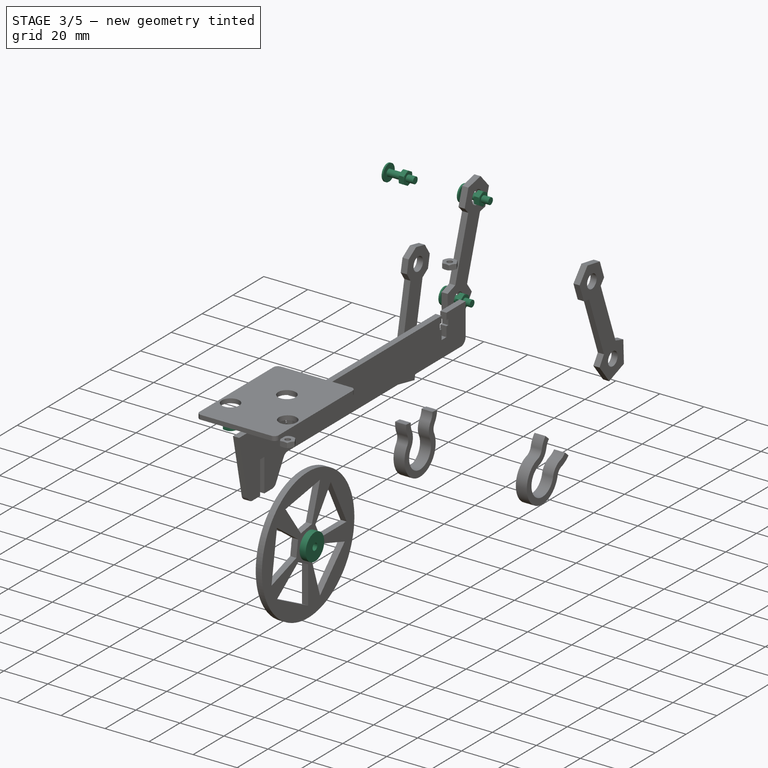
[diagram: stage 3 of 5 — iso view after this stage's code; geometry added in this stage tinted green]
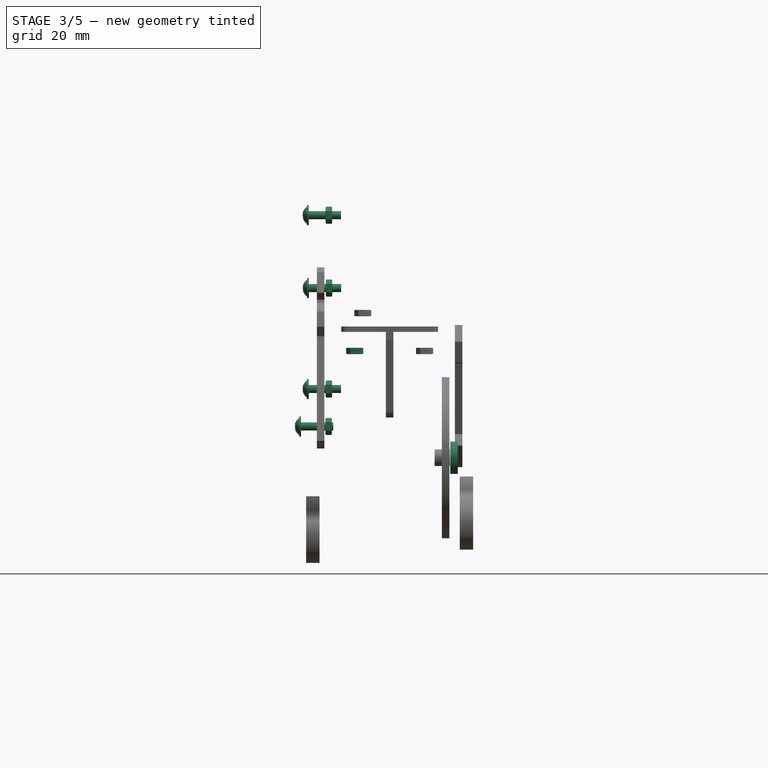
[diagram: stage 3 of 5 — front view after this stage's code; geometry added in this stage tinted green]
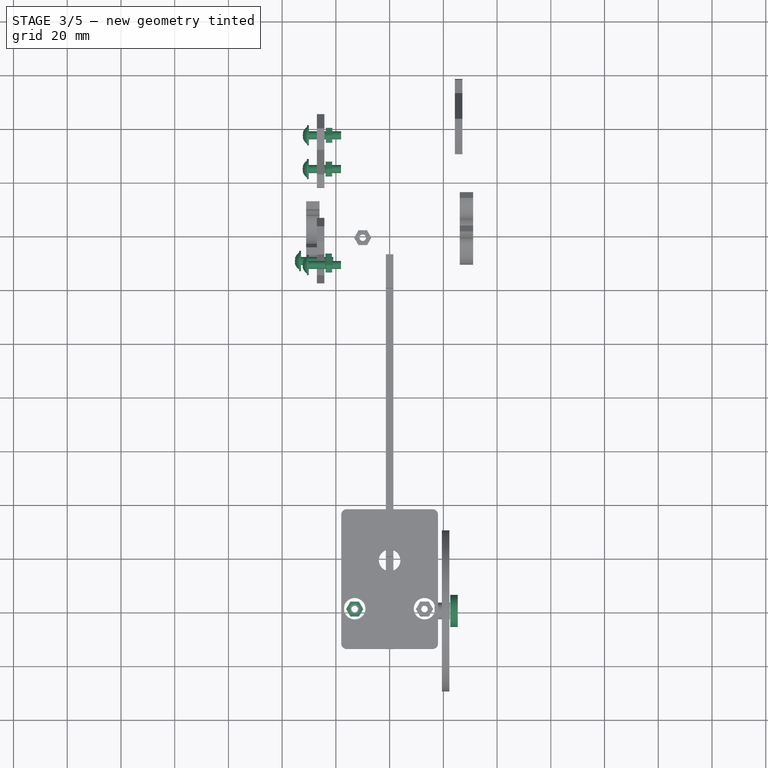
[diagram: stage 3 of 5 — top view after this stage's code; geometry added in this stage tinted green]
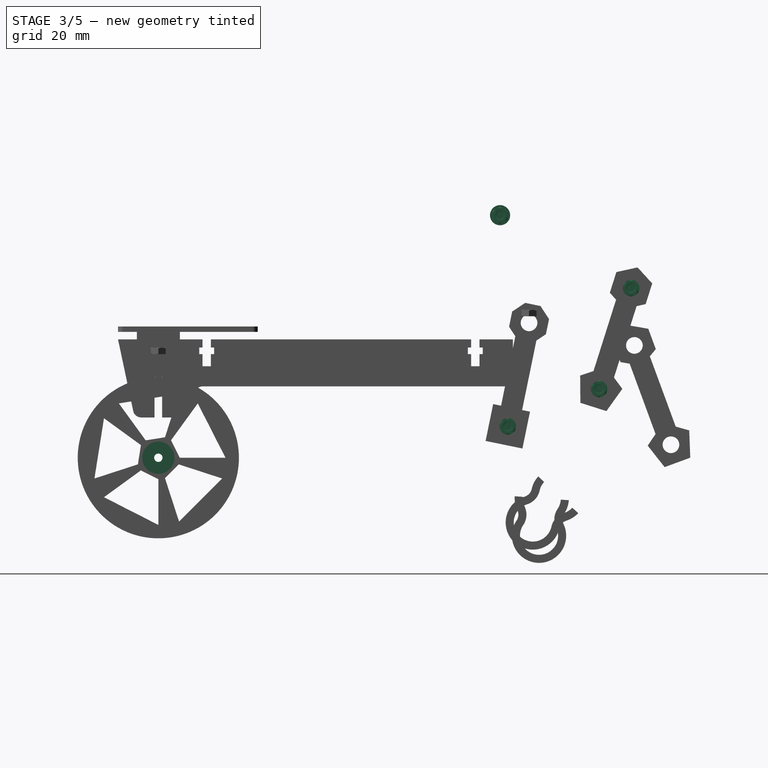
[diagram: stage 3 of 5 — right view after this stage's code; geometry added in this stage tinted green]
FEATURE [PartDesign::Body] Body056  label="wheel_main_right"
  Group = -> [Binder065,DatumPlane025,Sketch080,Pad068]
  Origin = -> Origin063
  Tip = -> Pad068
FEATURE [PartDesign::SubShapeBinder] Binder066
  BindCopyOnChange = 0
  BindMode = 0
  ClaimChildren = false
  Context = -> Body057 [Binder066.]
  Fuse = false
  MakeFace = true
  OffsetFill = false
  OffsetIntersection = false
  OffsetJoinType = 0
  OffsetOpenResult = false
  PartialLoad = false
  Relative = true
  Support = -> [Body055[Pad067.]]
  _Version = 2
FEATURE [PartDesign::Plane] DatumPlane026
  AttachmentOffset = pos=(0,0,0.1) rot=(0,0,1;0rad)
  Length = 152.595
  MapMode = 5
  Placement = pos=(22.55,0,0) rot=(0.57735,0.57735,0.57735;2.0944rad)
  ResizeMode = 0
  Support = -> [Binder066]
  Width = 110.59
FEATURE [Sketcher::SketchObject] Sketch081
  FullyConstrained = true
  MapMode = 5
  Placement = pos=(22.55,0,0) rot=(0.57735,0.57735,0.57735;2.0944rad)
  Support = -> [DatumPlane026]
  expr: Constraints[6] = Spreadsheet.wheel_radius
  sketch-geometry (3):
    g0: LineSegment StartX=-100 StartY=0 StartZ=0 EndX=-100 EndY=-88 EndZ=0
    g1: Circle CenterX=-100 CenterY=-58 CenterZ=0 NormalX=0 NormalY=0 NormalZ=1 AngleXU=0 Radius=6
    g2: Circle CenterX=-100 CenterY=-58 CenterZ=0 NormalX=0 NormalY=0 NormalZ=1 AngleXU=0 Radius=1.55
  constraints (9):
    c: PointOnObject(g0,g-1)
    c: Vertical(g0)
    c: DistanceY(g0,g0) = 88
    c: DistanceX(g0,g-1) = 100
    c: PointOnObject(g1,g0)
    c: Coincident(g1,g2)
    c: DistanceY(g0,g1) = 30
    c: Diameter(g2) = 3.1
    c: Diameter(g1) = 12
FEATURE [PartDesign::Pad] Pad069
  Direction = (1,0,0)
  Length = 2.8
  Length2 = 10
  Placement = pos=(22.55,0,2e-15) rot=(0.57735,0.57735,0.57735;2.0944rad)
  Profile = -> Sketch081
  ReferenceAxis = -> Sketch081 [N_Axis]
  Type = 0
  expr: Length = Spreadsheet.acrylic_thin
FEATURE [PartDesign::Body] Body060  label="wheel_main_left"
  Group = -> [Clone002]
  Origin = -> Origin067
  Placement = pos=(-41.7,0,0) rot=(0,0,1;0rad)
  Tip = -> Clone002
FEATURE [App::DocumentObjectGroup] Group006  label="Wheels"
  Group = -> [Body054,Body055,Body056,Body058,Body059,Body060]
FEATURE [PartDesign::FeatureBase] Clone003
  BaseFeature = -> Body057
FEATURE [PartDesign::Body] Body063  label="bearing_0_left"
  Group = -> [Binder070,Binder071,DatumPlane028,Sketch083,Pad071]
  Origin = -> Origin070
  Tip = -> Pad071
FEATURE [PartDesign::SubShapeBinder] Binder072
  BindCopyOnChange = 0
  BindMode = 0
  ClaimChildren = false
  Context = -> Body064 [Binder072.]
  Fuse = false
  MakeFace = true
  OffsetFill = false
  OffsetIntersection = false
  OffsetJoinType = 0
  OffsetOpenResult = false
  PartialLoad = false
  Relative = true
  Support = -> [Body047[Pad056.]]
  _Version = 2
FEATURE [PartDesign::SubShapeBinder] Binder073
  BindCopyOnChange = 0
  BindMode = 0
  ClaimChildren = false
  Context = -> Body064 [Binder073.]
  Fuse = false
  MakeFace = true
  OffsetFill = false
  OffsetIntersection = false
  OffsetJoinType = 0
  OffsetOpenResult = false
  PartialLoad = false
  Relative = true
  Support = -> [Body043[Pad052.]]
  _Version = 2
FEATURE [PartDesign::Plane] DatumPlane029
  AttachmentOffset = pos=(0,0,0.1) rot=(0,0,1;0rad)
  Length = 91.0073
  MapMode = 5
  Placement = pos=(30.1,3.31e-14,-6.6e-15) rot=(0.57735,0.57735,0.57735;2.0944rad)
  ResizeMode = 0
  Support = -> [Binder072]
  Width = 73.8242
FEATURE [Sketcher::SketchObject] Sketch084
  FullyConstrained = true
  MapMode = 5
  Placement = pos=(30.1,3.31e-14,-6.6e-15) rot=(0.57735,0.57735,0.57735;2.0944rad)
  Support = -> [DatumPlane029]
  expr: Constraints[21] = Spreadsheet.link_offset
  expr: Constraints[22] = Spreadsheet.link_circle
  expr: Constraints[24] = Spreadsheet.link_0_7
  expr: Constraints[25] = Spreadsheet.link_0_4
  expr: Constraints[26] = Spreadsheet.link_4_5
  expr: Constraints[27] = Spreadsheet.link_5_6
  expr: Constraints[28] = Spreadsheet.link_6_7
  expr: Constraints[29] = Spreadsheet.link_7_8
  expr: Constraints[30] = Spreadsheet.link_6_8
  expr: Constraints[31] = Spreadsheet.link_8_4
  expr: Constraints[32] = Spreadsheet.link_5_leg
  expr: Constraints[33] = Spreadsheet.link_4_leg
  expr: Constraints[36] = Spreadsheet.bearing_ID
  expr: Constraints[37] = Spreadsheet.cam_hole - 0.1
  expr: Constraints[3] = Spreadsheet.cam_length
  sketch-geometry (15):
    g0: Circle CenterX=0 CenterY=0 CenterZ=0 NormalX=0 NormalY=0 NormalZ=1 AngleXU=0 Radius=11
    g1: LineSegment StartX=0 StartY=0 StartZ=0 EndX=11 EndY=0 EndZ=0
    g2: LineSegment StartX=11 StartY=0 StartZ=0 EndX=49.3111 EndY=32.1288 EndZ=0
    g3: LineSegment StartX=11 StartY=0 StartZ=0 EndX=55.5722 EndY=-42.9526 EndZ=0
    g4: LineSegment StartX=55.5722 StartY=-42.9526 StartZ=0 EndX=90.8212 EndY=-53.17 EndZ=0
    g5: LineSegment StartX=90.8212 StartY=-53.17 StartZ=0 EndX=34.6617 EndY=-87.2669 EndZ=0
    g6: LineSegment StartX=49.3111 StartY=32.1288 StartZ=0 EndX=77.2113 EndY=-16.1953 EndZ=0
    g7: LineSegment StartX=49.3111 StartY=32.1288 StartZ=0 EndX=38 EndY=-7.8 EndZ=0
    g8: LineSegment StartX=38 StartY=-7.8 StartZ=0 EndX=55.5722 EndY=-42.9526 EndZ=0
    g9: LineSegment StartX=77.2113 StartY=-16.1953 StartZ=0 EndX=90.8212 EndY=-53.17 EndZ=0
    g10: LineSegment StartX=38 StartY=-7.8 StartZ=0 EndX=77.2113 EndY=-16.1953 EndZ=0
    g11: LineSegment StartX=55.5722 StartY=-42.9526 StartZ=0 EndX=34.6617 EndY=-87.2669 EndZ=0
    g12: LineSegment StartX=38 StartY=-7.8 StartZ=0 EndX=0 EndY=-7.8 EndZ=0
    g13: Circle CenterX=49.3111 CenterY=32.1288 CenterZ=0 NormalX=0 NormalY=0 NormalZ=1 AngleXU=0 Radius=1.6
    g14: Circle CenterX=49.3111 CenterY=32.1288 CenterZ=0 NormalX=0 NormalY=0 NormalZ=1 AngleXU=0 Radius=3.05
  constraints (38):
    c: Coincident(g0,g-1)
    c: Coincident(g1,g0)
    c: PointOnObject(g1,g0)
    c: Radius(g0) = 11
    c: Coincident(g2,g1)
    c: Coincident(g3,g1)
    c: Coincident(g4,g3)
    c: Coincident(g5,g4)
    c: Coincident(g6,g2)
    c: Coincident(g7,g2)
    c: Coincident(g8,g7)
    c: Coincident(g8,g3)
    c: Coincident(g9,g6)
    c: Coincident(g9,g4)
    c: Coincident(g10,g7)
    c: Coincident(g10,g6)
    c: Coincident(g11,g3)
    c: Coincident(g11,g5)
    c: Coincident(g12,g7)
    c: PointOnObject(g12,g-2)
    c: Horizontal(g12)
    c: DistanceY(g12,g0) = 7.8
    c: DistanceX(g12,g12) = 38
    c: Horizontal(g1)
    c: Distance(g2) = 50
    c: Distance(g3) = 61.9
    c: Distance(g4) = 36.7
    c: Distance(g9) = 39.4
    c: Distance(g6) = 55.8
    c: Distance(g7) = 41.5
    c: Distance(g10) = 40.1
    c: Distance(g8) = 39.3
    c: Distance(g5) = 65.7
    c: Distance(g11) = 49
    c: Coincident(g13,g2)
    c: Coincident(g14,g13)
    c: Diameter(g13) = 3.2
    c: Diameter(g14) = 6.1
FEATURE [PartDesign::ShapeBinder] ShapeBinder016
  Placement = pos=(0,0,0) rot=(0.57735,0.57735,0.57735;2.0944rad)
  Support = -> [Sketch041]
  TraceSupport = false
FEATURE [PartDesign::Pad] Pad072
  Direction = (1,1.1e-15,-2e-16)
  Length = 5.8
  Length2 = 10
  Placement = pos=(30.1,3.3e-14,-8e-15) rot=(0.57735,0.57735,0.57735;2.0944rad)
  Profile = -> Sketch084
  ReferenceAxis = -> Sketch084 [N_Axis]
  Reversed = true
  Type = 0
  expr: Length = Spreadsheet.acrylic_thin * 2 + 0.2
FEATURE [PartDesign::Body] Body064  label="bearing_7_right"
  Group = -> [Binder072,Binder073,DatumPlane029,Sketch084,ShapeBinder016,Pad072]
  Origin = -> Origin071
  Tip = -> Pad072
FEATURE [PartDesign::SubShapeBinder] Binder074
  BindCopyOnChange = 0
  BindMode = 0
  ClaimChildren = false
  Context = -> Body065 [Binder074.]
  Fuse = false
  MakeFace = true
  OffsetFill = false
  OffsetIntersection = false
  OffsetJoinType = 0
  OffsetOpenResult = false
  PartialLoad = false
  Relative = true
  Support = -> [Body045[Pad054.]]
  _Version = 2
FEATURE [PartDesign::SubShapeBinder] Binder075
  BindCopyOnChange = 0
  BindMode = 0
  ClaimChildren = false
  Context = -> Body065 [Binder075.]
  Fuse = false
  MakeFace = true
  OffsetFill = false
  OffsetIntersection = false
  OffsetJoinType = 0
  OffsetOpenResult = false
  PartialLoad = false
  Relative = true
  Support = -> [Body046[Pad055.]]
  _Version = 2
FEATURE [PartDesign::SubShapeBinder] Binder076
  BindCopyOnChange = 0
  BindMode = 0
  ClaimChildren = false
  Context = -> Body065 [Binder076.]
  Fuse = false
  MakeFace = true
  OffsetFill = false
  OffsetIntersection = false
  OffsetJoinType = 0
  OffsetOpenResult = false
  PartialLoad = false
  Relative = true
  Support = -> [Body049[Pad058.]]
  _Version = 2
FEATURE [PartDesign::ShapeBinder] ShapeBinder017
  Placement = pos=(0,0,0) rot=(0.57735,0.57735,0.57735;2.0944rad)
  Support = -> [Sketch041]
  TraceSupport = false
FEATURE [PartDesign::Plane] DatumPlane030
  AttachmentOffset = pos=(0,0,0.1) rot=(0,0,1;0rad)
  Length = 99.0327
  MapMode = 5
  Placement = pos=(33,3.79e-14,-5.9e-15) rot=(0.57735,0.57735,0.57735;2.0944rad)
  ResizeMode = 0
  Support = -> [Binder074]
  Width = 86.4097
FEATURE [Sketcher::SketchObject] Sketch085
  FullyConstrained = true
  MapMode = 5
  Placement = pos=(33,3.79e-14,-5.9e-15) rot=(0.57735,0.57735,0.57735;2.0944rad)
  Support = -> [DatumPlane030]
  expr: Constraints[21] = Spreadsheet.link_offset
  expr: Constraints[22] = Spreadsheet.link_circle
  expr: Constraints[23] = Spreadsheet.link_0_7
  expr: Constraints[24] = Spreadsheet.link_0_4
  expr: Constraints[25] = Spreadsheet.link_4_5
  expr: Constraints[26] = Spreadsheet.link_5_6
  expr: Constraints[27] = Spreadsheet.link_6_7
  expr: Constraints[28] = Spreadsheet.link_7_8
  expr: Constraints[29] = Spreadsheet.link_8_4
  expr: Constraints[30] = Spreadsheet.link_5_leg
  expr: Constraints[31] = Spreadsheet.link_4_leg
  expr: Constraints[32] = Spreadsheet.link_6_8
  expr: Constraints[33] = Spreadsheet.angle
  expr: Constraints[36] = Spreadsheet.bearing_ID
  expr: Constraints[37] = Spreadsheet.cam_hole - 0.1
  expr: Constraints[3] = Spreadsheet.cam_length
  sketch-geometry (15):
    g0: Circle CenterX=0 CenterY=0 CenterZ=0 NormalX=0 NormalY=0 NormalZ=1 AngleXU=0 Radius=11
    g1: LineSegment StartX=0 StartY=0 StartZ=0 EndX=11 EndY=0 EndZ=0
    g2: LineSegment StartX=11 StartY=0 StartZ=0 EndX=49.3111 EndY=32.1288 EndZ=0
    g3: LineSegment StartX=11 StartY=0 StartZ=0 EndX=55.5722 EndY=-42.9526 EndZ=0
    g4: LineSegment StartX=49.3111 StartY=32.1288 StartZ=0 EndX=38 EndY=-7.8 EndZ=0
    g5: LineSegment StartX=38 StartY=-7.8 StartZ=0 EndX=77.2113 EndY=-16.1953 EndZ=0
    g6: LineSegment StartX=77.2113 StartY=-16.1953 StartZ=0 EndX=90.8212 EndY=-53.17 EndZ=0
    g7: LineSegment StartX=90.8212 StartY=-53.17 StartZ=0 EndX=55.5722 EndY=-42.9526 EndZ=0
    g8: LineSegment StartX=55.5722 StartY=-42.9526 StartZ=0 EndX=34.6617 EndY=-87.2669 EndZ=0
    g9: LineSegment StartX=49.3111 StartY=32.1288 StartZ=0 EndX=77.2113 EndY=-16.1953 EndZ=0
    g10: LineSegment StartX=38 StartY=-7.8 StartZ=0 EndX=55.5722 EndY=-42.9526 EndZ=0
    g11: LineSegment StartX=90.8212 StartY=-53.17 StartZ=0 EndX=34.6617 EndY=-87.2669 EndZ=0
    g12: LineSegment StartX=38 StartY=-7.8 StartZ=0 EndX=0 EndY=-7.8 EndZ=0
    g13: Circle CenterX=55.5722 CenterY=-42.9526 CenterZ=0 NormalX=0 NormalY=0 NormalZ=1 AngleXU=0 Radius=3.05
    g14: Circle CenterX=55.5722 CenterY=-42.9526 CenterZ=0 NormalX=0 NormalY=0 NormalZ=1 AngleXU=0 Radius=1.6
  constraints (38):
    c: Coincident(g0,g-1)
    c: Coincident(g1,g0)
    c: PointOnObject(g1,g0)
    c: Radius(g0) = 11
    c: Coincident(g2,g1)
    c: Coincident(g3,g1)
    c: Coincident(g4,g2)
    c: Coincident(g6,g5)
    c: Coincident(g7,g6)
    c: Coincident(g7,g3)
    c: Coincident(g8,g3)
    c: Coincident(g4,g5)
    c: Coincident(g9,g2)
    c: Coincident(g9,g5)
    c: Coincident(g10,g3)
    c: Coincident(g11,g6)
    c: Coincident(g11,g8)
    c: Coincident(g4,g10)
    c: Coincident(g12,g4)
    c: PointOnObject(g12,g-2)
    c: Horizontal(g12)
    c: DistanceY(g12,g0) = 7.8
    c: DistanceX(g12,g12) = 38
    c: Distance(g2) = 50
    c: Distance(g3) = 61.9
    c: Distance(g7) = 36.7
    c: Distance(g6) = 39.4
    c: Distance(g9) = 55.8
    c: Distance(g4) = 41.5
    c: Distance(g10) = 39.3
    c: Distance(g11) = 65.7
    c: Distance(g8) = 49
    c: Distance(g5) = 40.1
    c: Angle(g-1,g1) = 0
    c: Coincident(g13,g3)
    c: Coincident(g14,g13)
    c: Diameter(g14) = 3.2
    c: Diameter(g13) = 6.1
FEATURE [PartDesign::Pad] Pad073
  Direction = (1,1.1e-15,-2e-16)
  Length = 8.6
  Length2 = 10
  Placement = pos=(33,3.8e-14,-8e-15) rot=(0.57735,0.57735,0.57735;2.0944rad)
  Profile = -> Sketch085
  ReferenceAxis = -> Sketch085 [N_Axis]
  Reversed = true
  Type = 0
  expr: Length = Spreadsheet.acrylic_thin * 3 + 0.2
FEATURE [PartDesign::FeatureBase] Clone004
  BaseFeature = -> Body064
FEATURE [PartDesign::Body] Body066  label="bearing_6_right"
  Group = -> [Clone004]
  Origin = -> Origin073
  Placement = pos=(0,27.9,-48.32) rot=(0,0,1;0rad)
  Tip = -> Clone004
FEATURE [PartDesign::FeatureBase] Clone005
  BaseFeature = -> Body064
FEATURE [PartDesign::Body] Body067  label="bearing_5_right"
  Group = -> [Clone005]
  Origin = -> Origin074
  Placement = pos=(0,41.51,-85.3) rot=(0,0,1;0rad)
  Tip = -> Clone005
FEATURE [PartDesign::FeatureBase] Clone006
  BaseFeature = -> Body064
FEATURE [PartDesign::Body] Body068  label="bearing_7_left"
  Group = -> [Clone006]
  Origin = -> Origin075
  Placement = pos=(-54.4,-22.1,0.15) rot=(0,0,1;0rad)
  Tip = -> Clone006
FEATURE [PartDesign::FeatureBase] Clone007
  BaseFeature = -> Body065
FEATURE [PartDesign::Body] Body069  label="bearing_4_left"
  Group = -> [Clone007]
  Origin = -> Origin076
  Placement = pos=(-57.4,-25.5,-3.4) rot=(0,0,1;0rad)
  Tip = -> Clone007
FEATURE [PartDesign::FeatureBase] Clone008
  BaseFeature = -> Body066
FEATURE [PartDesign::Body] Body070  label="bearing_6_left"
  Group = -> [Clone008]
  Origin = -> Origin077
  Placement = pos=(-54.35,26.65,-26.98) rot=(0,0,1;0rad)
  Tip = -> Clone008
FEATURE [PartDesign::FeatureBase] Clone009
  BaseFeature = -> Body067
FEATURE [Part::FeaturePython] Screw019  label="M3x12-Screw360"  # Fasteners workbench fastener (typed FeaturePython)
  Placement = pos=(-33,30.0722,-46.3526) rot=(0,-1,0;1.5708rad)
  baseObject = -> Body069 [Edge6]
  diameter = 1
  invert = true
  leftHanded = false
  length = 5
  lengthCustom = 12
  matchOuter = false
  offset = 0
  thread = false
  type = 36
FEATURE [Part::FeaturePython] Washer008  label="M3-Washer258"  # Fasteners workbench fastener (typed FeaturePython)
  Placement = pos=(-24.4,30.0722,-46.3526) rot=(0,1,0;1.5708rad)
  baseObject = -> Body069 [Edge5]
  diameter = 4
  invert = false
  matchOuter = false
  offset = 0
  type = 8
FEATURE [Part::FeaturePython] Nut014  label="M3-Nut416"  # Fasteners workbench fastener (typed FeaturePython)
  Placement = pos=(-23.9,30.0722,-46.3526) rot=(0,1,0;1.5708rad)
  baseObject = -> Washer008 [Edge1]
  diameter = 4
  invert = false
  leftHanded = false
  matchOuter = false
  offset = 0
  thread = false
  type = 24
FEATURE [Part::FeaturePython] Screw020  label="M3x12-Screw361"  # Fasteners workbench fastener (typed FeaturePython)
  Placement = pos=(-30.1,27.2111,32.2788) rot=(0,-1,0;1.5708rad)
  baseObject = -> Body068 [Edge6]
  diameter = 1
  invert = true
  leftHanded = false
  length = 5
  lengthCustom = 12
  matchOuter = false
  offset = 0
  thread = false
  type = 36
FEATURE [Part::FeaturePython] Screw021  label="M3x12-Screw362"  # Fasteners workbench fastener (typed FeaturePython)
  Placement = pos=(-30.05,75.9611,5.1488) rot=(0,-1,0;1.5708rad)
  baseObject = -> Body070 [Edge6]
  diameter = 1
  invert = true
  leftHanded = false
  length = 5
  lengthCustom = 12
  matchOuter = false
  offset = 0
  thread = false
  type = 36
FEATURE [Part::FeaturePython] Screw022  label="M3x12-Screw363"  # Fasteners workbench fastener (typed FeaturePython)
  Placement = pos=(-30.1,64.0611,-32.4212) rot=(0,-1,0;1.5708rad)
  baseObject = -> Body071 [Edge6]
  diameter = 1
  invert = true
  leftHanded = false
  length = 5
  lengthCustom = 12
  matchOuter = false
  offset = 0
  thread = false
  type = 36
FEATURE [Part::FeaturePython] Washer009  label="M3-Washer259"  # Fasteners workbench fastener (typed FeaturePython)
  Placement = pos=(-24.3,27.2111,32.2788) rot=(0,1,0;1.5708rad)
  baseObject = -> Body068 [Edge5]
  diameter = 4
  invert = false
  matchOuter = false
  offset = 0
  type = 8
FEATURE [Part::FeaturePython] Washer010  label="M3-Washer260"  # Fasteners workbench fastener (typed FeaturePython)
  Placement = pos=(-24.25,75.9611,5.1488) rot=(0,1,0;1.5708rad)
  baseObject = -> Body070 [Edge5]
  diameter = 4
  invert = false
  matchOuter = false
  offset = 0
  type = 8
FEATURE [Part::FeaturePython] Washer011  label="M3-Washer261"  # Fasteners workbench fastener (typed FeaturePython)
  Placement = pos=(-24.3,64.0611,-32.4212) rot=(0,1,0;1.5708rad)
  baseObject = -> Body071 [Edge5]
  diameter = 4
  invert = false
  matchOuter = false
  offset = 0
  type = 8
FEATURE [Part::FeaturePython] Nut015  label="M3-Nut417"  # Fasteners workbench fastener (typed FeaturePython)
  Placement = pos=(-23.8,27.2111,32.2788) rot=(0,1,0;1.5708rad)
  baseObject = -> Washer009 [Edge1]
  diameter = 4
  invert = false
  leftHanded = false
  matchOuter = false
  offset = 0
  thread = false
  type = 24
FEATURE [Part::FeaturePython] Nut016  label="M3-Nut418"  # Fasteners workbench fastener (typed FeaturePython)
  Placement = pos=(-23.75,75.9611,5.1488) rot=(0,1,0;1.5708rad)
  baseObject = -> Washer010 [Edge1]
  diameter = 4
  invert = false
  leftHanded = false
  matchOuter = false
  offset = 0
  thread = false
  type = 24
FEATURE [Part::FeaturePython] Nut017  label="M3-Nut419"  # Fasteners workbench fastener (typed FeaturePython)
  Placement = pos=(-23.8,64.0611,-32.4212) rot=(0,1,0;1.5708rad)
  baseObject = -> Washer011 [Edge1]
  diameter = 4
  invert = false
  leftHanded = false
  matchOuter = false
  offset = 0
  thread = false
  type = 24
FEATURE [Part::FeaturePython] Nut018  label="M3-Nut426"  # Fasteners workbench fastener (typed FeaturePython)
  Placement = pos=(-13,-100,-19.45) rot=(0,0,1;0rad)
  baseObject = -> Screw023 [Edge71]
  diameter = 4
  invert = false
  leftHanded = false
  matchOuter = false
  offset = 3.7
  thread = false
  type = 24
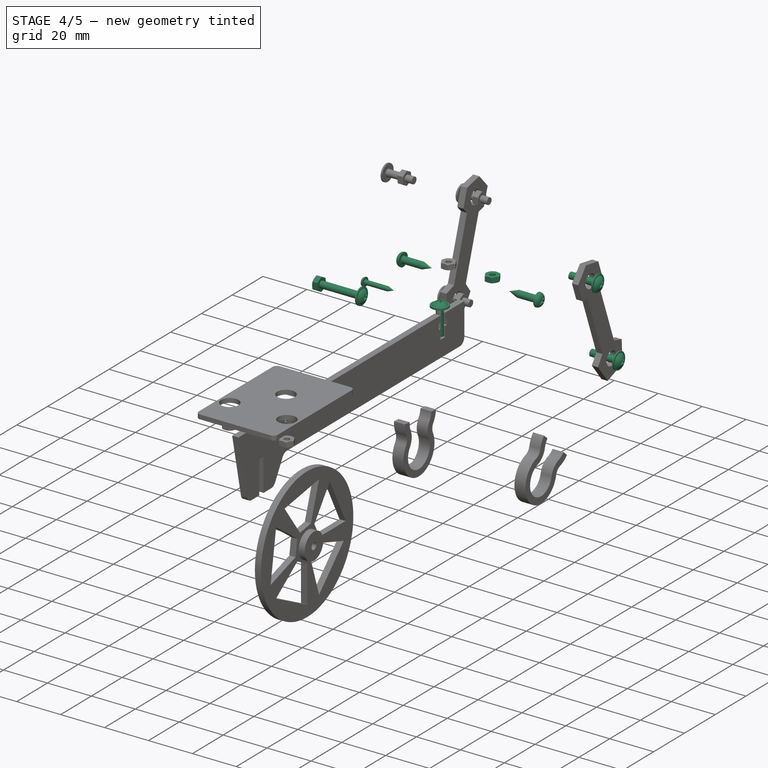
[diagram: stage 4 of 5 — iso view after this stage's code; geometry added in this stage tinted green]
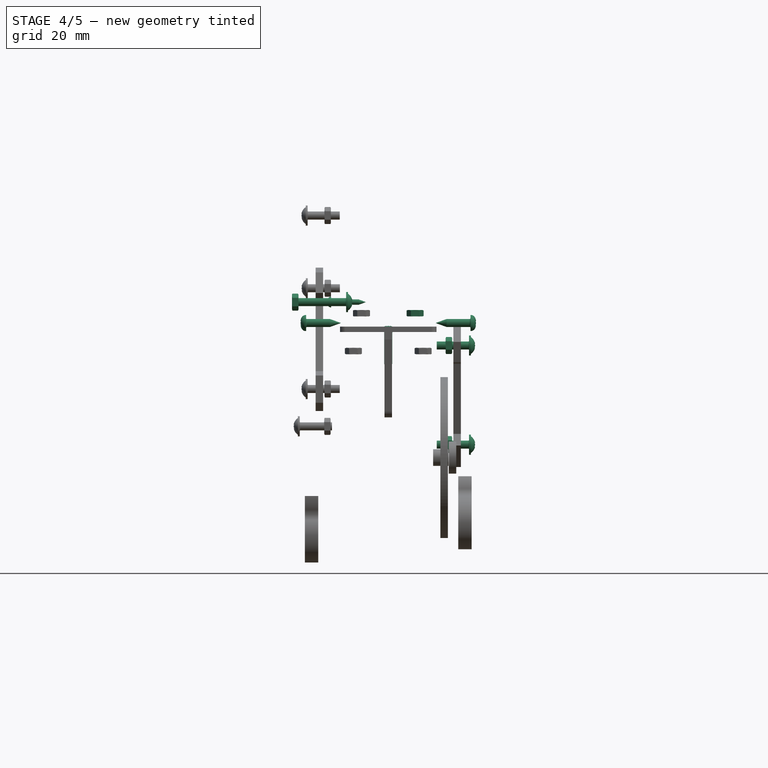
[diagram: stage 4 of 5 — front view after this stage's code; geometry added in this stage tinted green]
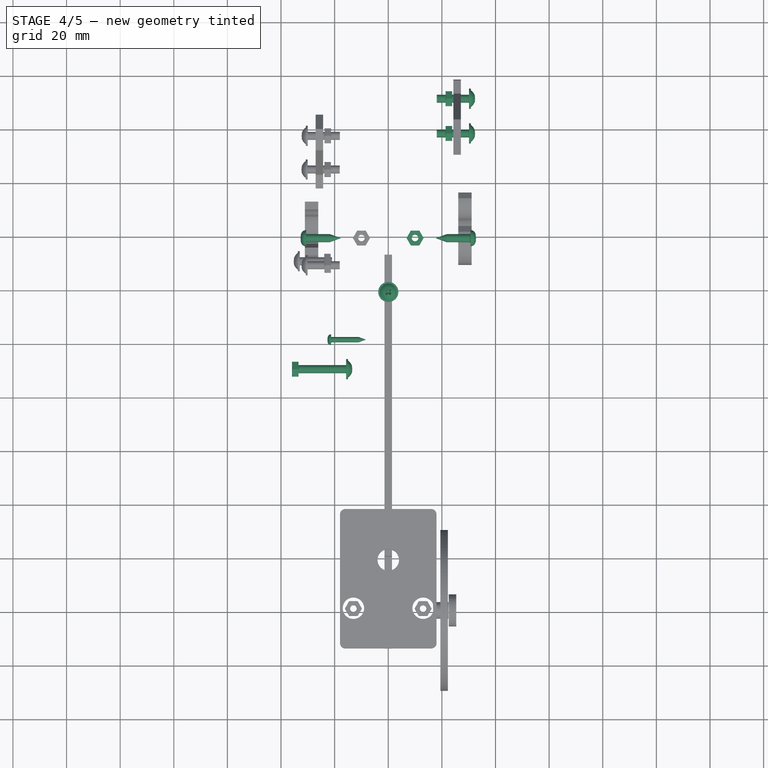
[diagram: stage 4 of 5 — top view after this stage's code; geometry added in this stage tinted green]
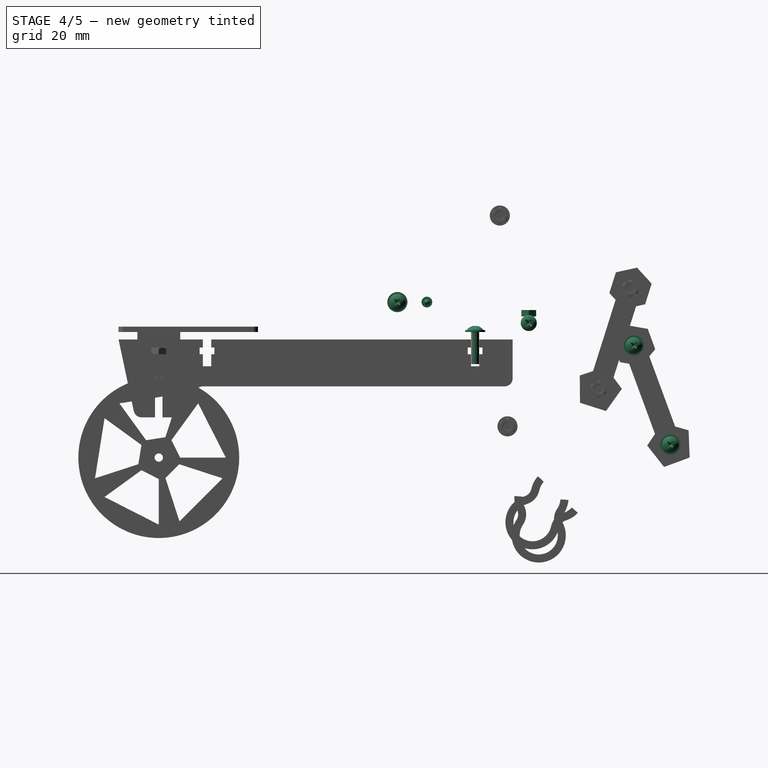
[diagram: stage 4 of 5 — right view after this stage's code; geometry added in this stage tinted green]
FEATURE [PartDesign::Body] Body049  label="link_4_8_right"
  Group = -> [Binder054,Binder055,ShapeBinder010,DatumPlane018,Sketch066,Pad058]
  Origin = -> Origin055
  Tip = -> Pad058
FEATURE [PartDesign::SubShapeBinder] Binder056
  BindCopyOnChange = 0
  BindMode = 0
  ClaimChildren = false
  Context = -> Body050 [Binder056.]
  Fuse = false
  MakeFace = true
  OffsetFill = false
  OffsetIntersection = false
  OffsetJoinType = 0
  OffsetOpenResult = false
  PartialLoad = false
  Relative = true
  Support = -> [Compound001_child2]
  _Version = 2
FEATURE [PartDesign::Plane] DatumPlane019
  Length = 67.7529
  MapMode = 5
  Placement = pos=(2.5e-15,0,-11.15) rot=(1,0,0;3.14159rad)
  ResizeMode = 0
  Support = -> [Binder056]
  Width = 84.6029
FEATURE [PartDesign::SubShapeBinder] Binder057
  BindCopyOnChange = 0
  BindMode = 0
  ClaimChildren = false
  Context = -> Body050 [Binder057.]
  Fuse = false
  MakeFace = true
  OffsetFill = false
  OffsetIntersection = false
  OffsetJoinType = 0
  OffsetOpenResult = false
  PartialLoad = false
  Relative = true
  Support = -> [Body049[Pad058.]]
  _Version = 2
FEATURE [Sketcher::SketchObject] Sketch068
  ExternalGeometry = -> [Binder057,DatumPlane019]
  FullyConstrained = true
  MapMode = 5
  Placement = pos=(0,0,0) rot=(0.57735,0.57735,0.57735;2.0944rad)
  Support = -> [YZ_Plane053]
  sketch-geometry (5):
    g0: LineSegment StartX=32 StartY=-3.15 StartZ=0 EndX=44 EndY=-3.15 EndZ=0
    g1: LineSegment StartX=44 StartY=-3.15 StartZ=0 EndX=44 EndY=-11.15 EndZ=0
    g2: LineSegment StartX=44 StartY=-11.15 StartZ=0 EndX=32 EndY=-11.15 EndZ=0
    g3: LineSegment StartX=32 StartY=-11.15 StartZ=0 EndX=32 EndY=-3.15 EndZ=0
    g4: LineSegment StartX=38 StartY=-7.8 StartZ=0 EndX=38 EndY=-11.15 EndZ=0
  constraints (14):
    c: Coincident(g0,g1)
    c: Coincident(g1,g2)
    c: Coincident(g2,g3)
    c: Coincident(g3,g0)
    c: Horizontal(g0)
    c: Horizontal(g2)
    c: Vertical(g1)
    c: Vertical(g3)
    c: PointOnObject(g2,g-4)
    c: Coincident(g4,g-3)
    c: Vertical(g4)
    c: Symmetric(g2,g1,g4)
    c: DistanceX(g2,g2) = 12
    c: DistanceY(g3,g3) = 8
FEATURE [PartDesign::SubShapeBinder] Binder058
  BindCopyOnChange = 0
  BindMode = 0
  ClaimChildren = false
  Context = -> Body050 [Binder058.]
  Fuse = false
  MakeFace = true
  OffsetFill = false
  OffsetIntersection = false
  OffsetJoinType = 0
  OffsetOpenResult = false
  PartialLoad = false
  Relative = true
  Support = -> [Body037[Pad044.]]
  _Version = 2
FEATURE [PartDesign::Pad] Pad060
  Direction = (1,-2e-16,3e-16)
  Length = 24.25
  Length2 = 24
  Placement = pos=(0,0,0) rot=(0.57735,0.57735,0.57735;2.0944rad)
  Profile = -> Sketch068
  ReferenceAxis = -> Sketch068 [N_Axis]
  Type = 0
FEATURE [Sketcher::SketchObject] Sketch069
  ExternalGeometry = -> [Binder057]
  FullyConstrained = true
  MapMode = 5
  Placement = pos=(24.25,-5.3e-15,5.3e-15) rot=(0.57735,0.57735,0.57735;2.0944rad)
  Support = -> [Pad060]
  expr: Constraints[1] = Spreadsheet.cam_hole - 0.2
  sketch-geometry (2):
    g0: Circle CenterX=38 CenterY=-7.8 CenterZ=0 NormalX=0 NormalY=0 NormalZ=1 AngleXU=0 Radius=3
    g1: Circle CenterX=38 CenterY=-7.8 CenterZ=0 NormalX=0 NormalY=0 NormalZ=1 AngleXU=0 Radius=1
  constraints (4):
    c: Coincident(g0,g-3)
    c: Diameter(g0) = 6
    c: Coincident(g1,g0)
    c: Diameter(g1) = 2
FEATURE [PartDesign::Pad] Pad061
  BaseFeature = -> Pad060
  Direction = (1,-7e-16,3e-16)
  Length = 5.9
  Length2 = 10
  Placement = pos=(0,0,0) rot=(0.57735,0.57735,0.57735;2.0944rad)
  Profile = -> Sketch069
  ReferenceAxis = -> Sketch069 [N_Axis]
  Type = 0
  expr: Length = Spreadsheet.acrylic_thin * 2 + 0.3
FEATURE [Sketcher::SketchObject] Sketch071
  ExternalGeometry = -> [Pad061]
  FullyConstrained = true
  MapMode = 5
  Placement = pos=(9e-16,-1.4e-15,-3.15) rot=(0,0,-1;1.5708rad)
  Support = -> [Pad061]
  sketch-geometry (3):
    g0: LineSegment StartX=-44 StartY=5e-16 StartZ=0 EndX=-32 EndY=5e-16 EndZ=0
    g1: LineSegment StartX=-38 StartY=4e-16 StartZ=0 EndX=-38 EndY=10 EndZ=0
    g2: Circle CenterX=-38 CenterY=10 CenterZ=0 NormalX=0 NormalY=0 NormalZ=1 AngleXU=0 Radius=1.55
  constraints (7):
    c: Vertical(g1)
    c: Coincident(g2,g1)
    c: Diameter(g2) = 3.1
    c: Symmetric(g0,g0,g1)
    c: Coincident(g0,g-3)
    c: Coincident(g0,g-4)
    c: DistanceY(g1,g1) = 10
FEATURE [PartDesign::Pocket] Pocket
  BaseFeature = -> Pad061
  Direction = (7e-16,-7e-16,-1)
  Length = 5
  Length2 = 5
  Placement = pos=(0,0,0) rot=(0.57735,0.57735,0.57735;2.0944rad)
  Profile = -> Sketch071
  ReferenceAxis = -> Sketch071 [N_Axis]
  Type = 1
FEATURE [Sketcher::SketchObject] Sketch070
  ExternalGeometry = -> [Pocket]
  FullyConstrained = true
  MapMode = 5
  Placement = pos=(9e-16,-1.4e-15,-3.15) rot=(0,0,-1;1.5708rad)
  Support = -> [Pocket]
  sketch-geometry (9):
    g0: LineSegment StartX=-44 StartY=5e-16 StartZ=0 EndX=-32 EndY=5e-16 EndZ=0
    g1: LineSegment StartX=-34.7091 StartY=10 StartZ=0 EndX=-36.3546 EndY=12.85 EndZ=0
    g2: LineSegment StartX=-36.3546 StartY=12.85 StartZ=0 EndX=-39.6454 EndY=12.85 EndZ=0
    g3: LineSegment StartX=-39.6454 StartY=12.85 StartZ=0 EndX=-41.2909 EndY=10 EndZ=0
    g4: LineSegment StartX=-41.2909 StartY=10 StartZ=0 EndX=-39.6454 EndY=7.15 EndZ=0
    g5: LineSegment StartX=-39.6454 StartY=7.15 StartZ=0 EndX=-36.3546 EndY=7.15 EndZ=0
    g6: LineSegment StartX=-36.3546 StartY=7.15 StartZ=0 EndX=-34.7091 EndY=10 EndZ=0
    g7: Circle CenterX=-38 CenterY=10 CenterZ=0 NormalX=0 NormalY=0 NormalZ=1 AngleXU=0 Radius=3.2909
    g8: LineSegment StartX=-38 StartY=10 StartZ=0 EndX=-38 EndY=0 EndZ=0
  constraints (21):
    c: Coincident(g1,g2)
    c: Coincident(g2,g3)
    c: Coincident(g3,g4)
    c: Coincident(g4,g5)
    c: Coincident(g5,g6)
    c: Coincident(g6,g1)
    c: Equal(g1, g2-g6) x5
    c: PointOnObject(g1,g7)
    c: PointOnObject(g3,g7)
    c: PointOnObject(g4,g7)
    c: PointOnObject(g5,g7)
    c: PointOnObject(g1,g7)
    c: DistanceY(g4,g2) = 5.7
    c: PointOnObject(g2,g7)
    c: Coincident(g8,g7)
    c: PointOnObject(g8,g0)
    c: Vertical(g8)
    c: Coincident(g0,g-3)
    c: Coincident(g0,g-4)
    c: Coincident(g7,g-5)
    c: Perpendicular(g8,g5)
FEATURE [PartDesign::Pocket] Pocket001
  BaseFeature = -> Pocket
  Direction = (1.1e-15,-8e-16,-1)
  Length = 3
  Length2 = 5
  Placement = pos=(0,0,0) rot=(0.57735,0.57735,0.57735;2.0944rad)
  Profile = -> Sketch070
  ReferenceAxis = -> Sketch070 [N_Axis]
  Type = 0
FEATURE [Sketcher::SketchObject] Sketch072
  ExternalGeometry = -> [Pocket001]
  FullyConstrained = true
  MapMode = 5
  Placement = pos=(1.94e-14,44,-9.7e-15) rot=(0.57735,0.57735,0.57735;4.18879rad)
  Support = -> [Pocket001]
  sketch-geometry (4):
    g0: LineSegment StartX=-14.15 StartY=24.25 StartZ=0 EndX=-3.15 EndY=24.25 EndZ=0
    g1: LineSegment StartX=-3.15 StartY=24.25 StartZ=0 EndX=-3.15 EndY=-3.6e-15 EndZ=0
    g2: LineSegment StartX=-3.15 StartY=-3.6e-15 StartZ=0 EndX=-14.15 EndY=-3.6e-15 EndZ=0
    g3: LineSegment StartX=-14.15 StartY=-3.6e-15 StartZ=0 EndX=-14.15 EndY=24.25 EndZ=0
  constraints (10):
    c: Coincident(g0,g1)
    c: Coincident(g1,g2)
    c: Coincident(g2,g3)
    c: Coincident(g3,g0)
    c: Horizontal(g0)
    c: Horizontal(g2)
    c: Coincident(g0,g-4)
    c: Coincident(g1,g-4)
    c: DistanceX(g0,g-3) = 3
    c: Vertical(g3)
FEATURE [PartDesign::Pad] Pad062
  BaseFeature = -> Pocket001
  Direction = (5e-16,1,-1.4e-15)
  Length = 3
  Length2 = 10
  Placement = pos=(0,0,0) rot=(0.57735,0.57735,0.57735;2.0944rad)
  Profile = -> Sketch072
  ReferenceAxis = -> Sketch072 [N_Axis]
  Refine = true
  Type = 0
FEATURE [PartDesign::Body] Body050  label="front_axle_right"
  Group = -> [Binder056,DatumPlane019,Sketch068,Binder057,Binder058,Pad060,Sketch069,Pad061,Sketch070,Sketch071,Pocket,Pocket001,Sketch072,Pad062]
  Origin = -> Origin056
  Tip = -> Pad062
FEATURE [Part::Mirroring] Mirror  label="front_axle_right (mirrored)"
  Base = (2.86102e-06,39.5,-8.65)
  Normal = (1,-8.74228e-08,-1.19209e-07)
  Source = -> Body050
FEATURE [PartDesign::Body] Body062  label="bearing_0_right"
  Group = -> [Binder067,Binder068,DatumPlane027,Sketch082,Pad070]
  Origin = -> Origin069
  Tip = -> Pad070
FEATURE [PartDesign::SubShapeBinder] Binder070
  BindCopyOnChange = 0
  BindMode = 0
  ClaimChildren = false
  Context = -> Body063 [Binder070.]
  Fuse = false
  MakeFace = true
  OffsetFill = false
  OffsetIntersection = false
  OffsetJoinType = 0
  OffsetOpenResult = false
  PartialLoad = false
  Relative = true
  Support = -> [Body033[Pad039.]]
  _Version = 2
FEATURE [PartDesign::SubShapeBinder] Binder071
  BindCopyOnChange = 0
  BindMode = 0
  ClaimChildren = false
  Context = -> Body063 [Binder071.]
  Fuse = false
  MakeFace = true
  OffsetFill = false
  OffsetIntersection = false
  OffsetJoinType = 0
  OffsetOpenResult = false
  PartialLoad = false
  Relative = true
  Support = -> [Body028[Pad033.]]
  _Version = 2
FEATURE [PartDesign::Plane] DatumPlane028
  AttachmentOffset = pos=(0,0,0.1) rot=(0,0,1;0rad)
  Length = 60
  MapMode = 5
  Placement = pos=(-33,8.78e-14,0) rot=(-0.57735,0.57735,0.57735;4.18879rad)
  ResizeMode = 0
  Support = -> [Binder070]
  Width = 60
FEATURE [Sketcher::SketchObject] Sketch083
  FullyConstrained = true
  MapMode = 5
  Placement = pos=(-33,8.78e-14,0) rot=(-0.57735,0.57735,0.57735;4.18879rad)
  Support = -> [DatumPlane028]
  expr: Constraints[3] = Spreadsheet.cam_length
  expr: Constraints[6] = Spreadsheet.bearing_ID
  expr: Constraints[7] = Spreadsheet.cam_hole - 0.1
  expr: Constraints[8] = Spreadsheet.angle
  sketch-geometry (4):
    g0: Circle CenterX=0 CenterY=0 CenterZ=0 NormalX=0 NormalY=0 NormalZ=1 AngleXU=0 Radius=11
    g1: LineSegment StartX=0 StartY=0 StartZ=0 EndX=11 EndY=0 EndZ=0
    g2: Circle CenterX=11 CenterY=0 CenterZ=0 NormalX=0 NormalY=0 NormalZ=1 AngleXU=0 Radius=3.05
    g3: Circle CenterX=11 CenterY=0 CenterZ=0 NormalX=0 NormalY=0 NormalZ=1 AngleXU=0 Radius=1.6
  constraints (9):
    c: Coincident(g0,g-1)
    c: PointOnObject(g1,g0)
    c: Coincident(g0,g1)
    c: Radius(g0) = 11
    c: Coincident(g2,g1)
    c: Coincident(g3,g2)
    c: Diameter(g3) = 3.2
    c: Diameter(g2) = 6.1
    c: Angle(g-1,g1) = 0
FEATURE [PartDesign::Pad] Pad071
  Direction = (-1,2.7e-15,0)
  Length = 17.3
  Length2 = 10
  Placement = pos=(-33,8.8e-14,0) rot=(-0.57735,0.57735,0.57735;4.18879rad)
  Profile = -> Sketch083
  ReferenceAxis = -> Sketch083 [N_Axis]
  Reversed = true
  Type = 0
  expr: Length = Spreadsheet.acrylic_thin * 6 + 0.5
FEATURE [PartDesign::Body] Body053  label="rear_axle_brace"
  Group = -> [Binder061,Binder062,ShapeBinder014,DatumPlane022,Sketch077,Pad065,Binder077]
  Origin = -> Origin059
  Tip = -> Pad065
FEATURE [Part::FeaturePython] Screw010  label="M3x12-Screw356"  # Fasteners workbench fastener (typed FeaturePython)
  Placement = pos=(2e-15,18,-11.15) rot=(0,0,1;0rad)
  baseObject = -> Body051 [Edge56]
  diameter = 1
  invert = false
  leftHanded = false
  length = 5
  lengthCustom = 12
  matchOuter = false
  offset = 0
  thread = false
  type = 25
FEATURE [Part::FeaturePython] Screw011  label="M3x12-Screw357"  # Fasteners workbench fastener (typed FeaturePython)
  Placement = pos=(10,38,-13.95) rot=(0.912225,-0.409689,0;3.14159rad)
  baseObject = -> Body051 [Edge104]
  diameter = 1
  invert = false
  leftHanded = false
  length = 5
  lengthCustom = 12
  matchOuter = false
  offset = 0
  thread = false
  type = 25
FEATURE [Part::FeaturePython] Nut009  label="M3-Nut412"  # Fasteners workbench fastener (typed FeaturePython)
  Placement = pos=(10,38,-2.95) rot=(1,0,0;3.14159rad)
  baseObject = -> Screw011 [Edge71]
  diameter = 4
  invert = false
  leftHanded = false
  matchOuter = false
  offset = 1
  thread = false
  type = 25
FEATURE [Part::FeaturePython] Screw013  label="M3x12-Screw358"  # Fasteners workbench fastener (typed FeaturePython)
  Placement = pos=(30.1,77.2111,-16.1912) rot=(0,1,0;1.5708rad)
  baseObject = -> Body066 [Edge5]
  diameter = 1
  invert = false
  leftHanded = false
  length = 5
  lengthCustom = 12
  matchOuter = false
  offset = 0
  thread = false
  type = 36
FEATURE [Part::FeaturePython] Washer003  label="M3-Washer253"  # Fasteners workbench fastener (typed FeaturePython)
  Placement = pos=(24.3,77.2111,-16.1912) rot=(0,-1,0;1.5708rad)
  baseObject = -> Body066 [Edge6]
  diameter = 4
  invert = true
  matchOuter = false
  offset = 0
  type = 8
FEATURE [Part::FeaturePython] Nut011  label="M3-Nut413"  # Fasteners workbench fastener (typed FeaturePython)
  Placement = pos=(23.8,77.2111,-16.1912) rot=(0,-1,0;1.5708rad)
  baseObject = -> Washer003 [Edge1]
  diameter = 4
  invert = false
  leftHanded = false
  matchOuter = false
  offset = 0
  thread = false
  type = 24
FEATURE [Part::FeaturePython] Screw014  label="M3x12-Screw359"  # Fasteners workbench fastener (typed FeaturePython)
  Placement = pos=(30.1,90.8211,-53.1712) rot=(0,1,0;1.5708rad)
  baseObject = -> Body067 [Edge5]
  diameter = 1
  invert = false
  leftHanded = false
  length = 5
  lengthCustom = 12
  matchOuter = false
  offset = 0
  thread = false
  type = 36
FEATURE [Part::FeaturePython] Washer004  label="M3-Washer254"  # Fasteners workbench fastener (typed FeaturePython)
  Placement = pos=(24.3,90.8211,-53.1712) rot=(0,-1,0;1.5708rad)
  baseObject = -> Body067 [Edge6]
  diameter = 4
  invert = true
  matchOuter = false
  offset = 0
  type = 8
FEATURE [Part::FeaturePython] Nut012  label="M3-Nut414"  # Fasteners workbench fastener (typed FeaturePython)
  Placement = pos=(23.8,90.8211,-53.1712) rot=(0,-1,0;1.5708rad)
  baseObject = -> Washer004 [Edge1]
  diameter = 4
  invert = false
  leftHanded = false
  matchOuter = false
  offset = 0
  thread = false
  type = 24
FEATURE [Part::FeaturePython] Screw015  label="2 mmx13-Screw001"  # Fasteners workbench fastener (typed FeaturePython)
  Placement = pos=(-21.3,2.8e-14,-4e-15) rot=(0,-1,0;1.5708rad)
  baseObject = -> Body [Edge24]
  diameter = 1
  invert = false
  leftHanded = false
  length = 2
  lengthCustom = 13
  matchOuter = false
  offset = 0
  thread = false
  type = 41
FEATURE [Part::FeaturePython] Screw016  label="M3x20-Screw001"  # Fasteners workbench fastener (typed FeaturePython)
  Placement = pos=(-15.7,-11,0) rot=(0,1,0;1.5708rad)
  baseObject = -> Body063 [Edge6]
  diameter = 1
  invert = true
  leftHanded = false
  length = 8
  lengthCustom = 20
  matchOuter = false
  offset = 0
  thread = false
  type = 36
FEATURE [Part::FeaturePython] Washer005  label="M3-Washer255"  # Fasteners workbench fastener (typed FeaturePython)
  Placement = pos=(-33,-11,0) rot=(0,-1,0;1.5708rad)
  baseObject = -> Body063 [Edge5]
  diameter = 4
  invert = false
  matchOuter = false
  offset = 0
  type = 8
FEATURE [Part::FeaturePython] Nut013  label="M3-Nut415"  # Fasteners workbench fastener (typed FeaturePython)
  Placement = pos=(-33.5,-11,0) rot=(0,-1,0;1.5708rad)
  baseObject = -> Washer005 [Edge1]
  diameter = 4
  invert = false
  leftHanded = false
  matchOuter = false
  offset = 0
  thread = false
  type = 24
FEATURE [Part::FeaturePython] Washer006  label="M3-Washer256"  # Fasteners workbench fastener (typed FeaturePython)
  Placement = pos=(30.15,38,-7.8) rot=(0,1,0;1.5708rad)
  baseObject = -> Body050 [Edge43]
  diameter = 4
  invert = false
  matchOuter = false
  offset = 0
  type = 8
FEATURE [Part::FeaturePython] Screw017  label="3 mmx13-Screw"  # Fasteners workbench fastener (typed FeaturePython)
  Placement = pos=(30.65,38,-7.8) rot=(0,1,0;1.5708rad)
  baseObject = -> Washer006 [Edge1]
  diameter = 3
  invert = false
  leftHanded = false
  length = 1
  lengthCustom = 13
  matchOuter = false
  offset = 0
  thread = false
  type = 41
FEATURE [Part::FeaturePython] Washer007  label="M3-Washer262"  # Fasteners workbench fastener (typed FeaturePython)
  Placement = pos=(-30.15,38,-7.79999) rot=(0,-1,0;1.5708rad)
  baseObject = -> Mirror [Edge43]
  diameter = 4
  invert = true
  matchOuter = false
  offset = 0
  type = 8
FEATURE [Part::FeaturePython] Screw018  label="3 mmx13-Screw001"  # Fasteners workbench fastener (typed FeaturePython)
  Placement = pos=(-30.65,38,-7.79999) rot=(0,-1,0;1.5708rad)
  baseObject = -> Washer007 [Edge1]
  diameter = 3
  invert = false
  leftHanded = false
  length = 1
  lengthCustom = 13
  matchOuter = false
  offset = 0
  thread = false
  type = 41
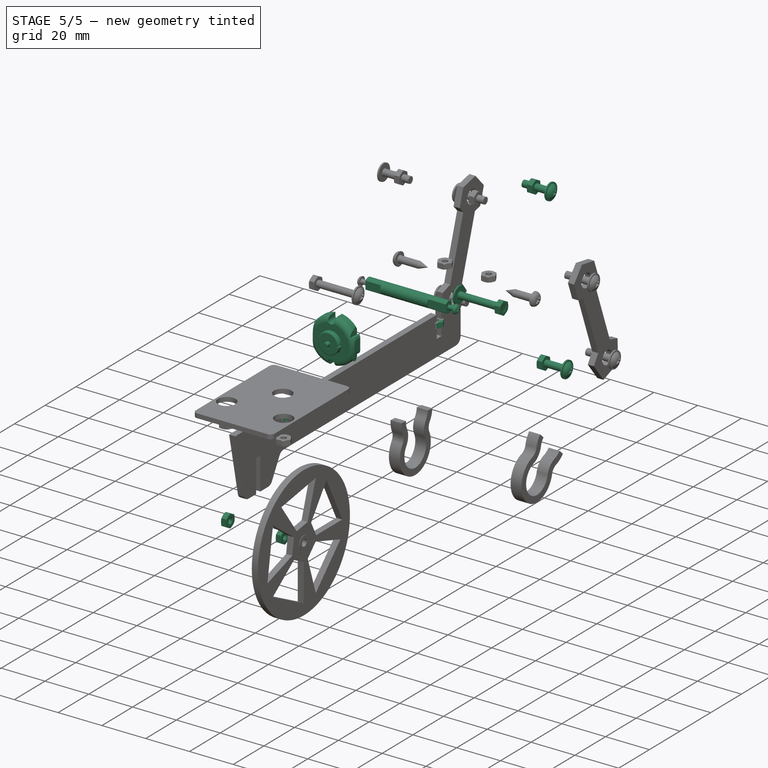
[diagram: stage 5 of 5 — iso view after this stage's code; geometry added in this stage tinted green]
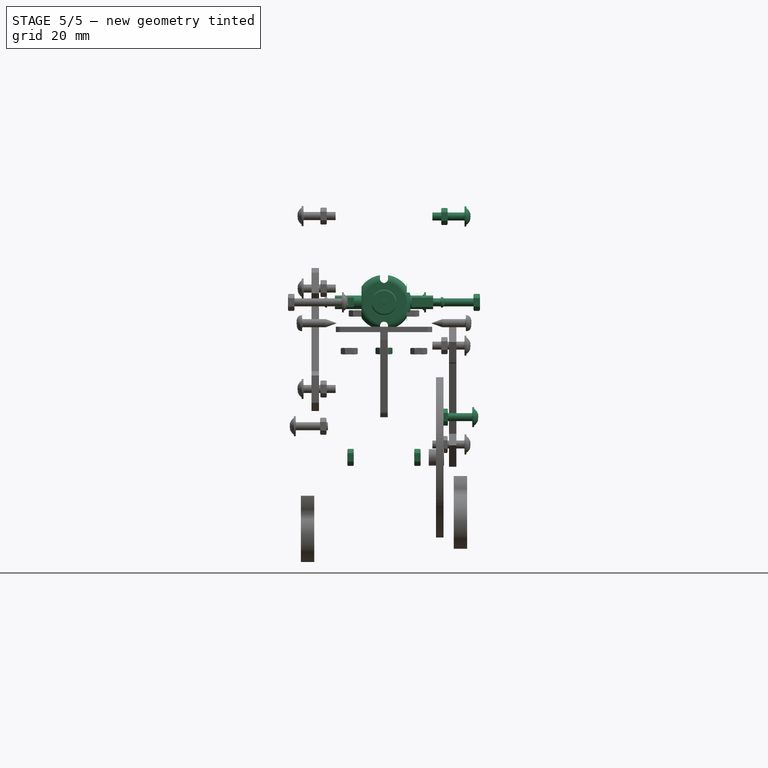
[diagram: stage 5 of 5 — front view after this stage's code; geometry added in this stage tinted green]
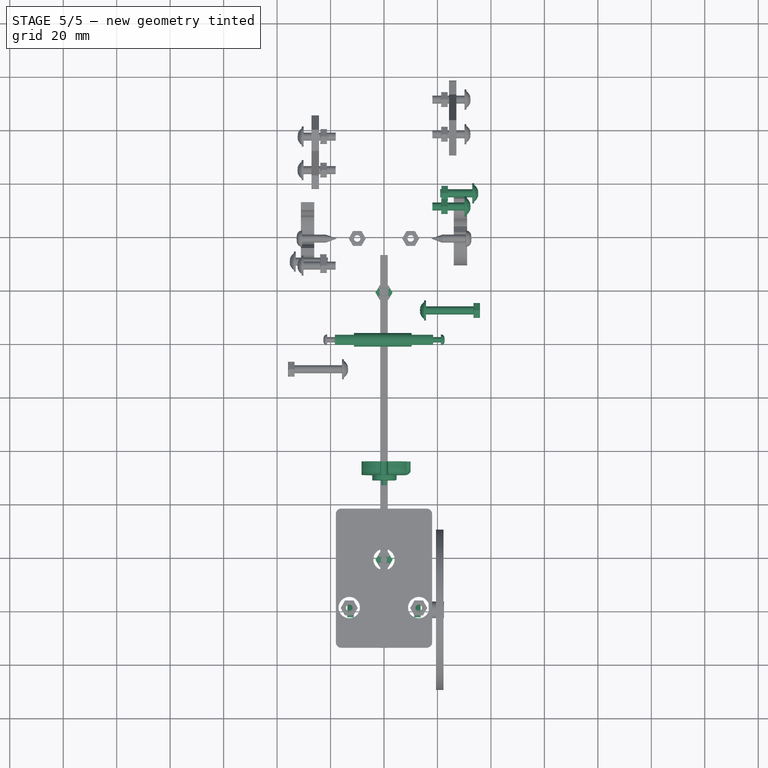
[diagram: stage 5 of 5 — top view after this stage's code; geometry added in this stage tinted green]
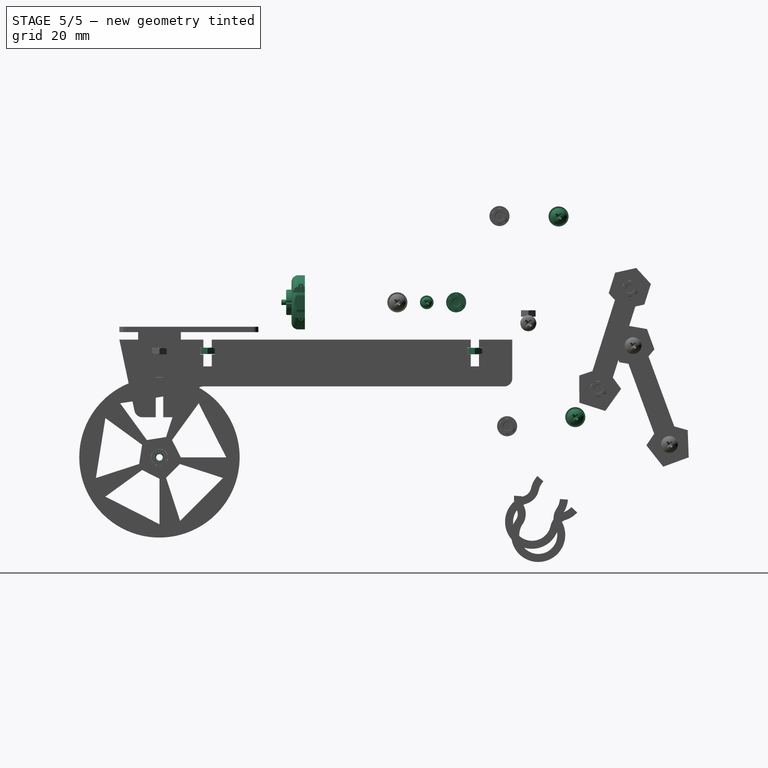
[diagram: stage 5 of 5 — right view after this stage's code; geometry added in this stage tinted green]
FEATURE [PartDesign::Body] Body033  label="link_0_4_left"
  Group = -> [Binder023,Binder024,DatumPlane004,Sketch047,Pad039]
  Origin = -> Origin039
  Tip = -> Pad039
FEATURE [Part::Box] Box  label="Cube"
  AttacherType = Attacher::AttachEngine3D
  Height = 10
  Length = 10
  Placement = pos=(-5,-28.4,-5) rot=(0,0,1;0rad)
  Width = 10
FEATURE [Part::Box] Box001  label="Cube001"
  AttacherType = Attacher::AttachEngine3D
  Height = 10
  Length = 10
  Placement = pos=(-5,18.4,-5) rot=(0,0,1;0rad)
  Width = 10
FEATURE [Part::Feature] Compound001  label="motoreducteur"
  Placement = pos=(25.85,-9.4,11.15) rot=(-1,0,0;1.5708rad)
  shape: bbox 70.34 x 38.2 x 22.5 mm, 234 faces, 3 solids (baked)
FEATURE [Part::FeaturePython] Compound001_child0  label="motor_cap"  # WARN: FeaturePython — macro-defined, semantics opaque (R4)
  Base = -> Compound001
  FilterType = 1
  Invert = false
  OverrideMaxVal = 0
  Placement = pos=(0,0,0) rot=(0.707107,-0.707107,0;3.14159rad)
  WindowFrom = 80
  WindowTo = 100
  items = 0
FEATURE [Part::FeaturePython] Compound001_child1  label="motoreducteur.1"  # WARN: FeaturePython — macro-defined, semantics opaque (R4)
  Base = -> Compound001
  FilterType = 1
  Invert = false
  OverrideMaxVal = 0
  WindowFrom = 80
  WindowTo = 100
  items = 1
FEATURE [Part::Cut] Cut
  Base = -> Compound001_child1
  Tool = -> Box
FEATURE [Part::Cut] Cut001  label="motor_shaft001"
  Base = -> Cut
  Placement = pos=(0,0,0) rot=(0.57735,-0.57735,-0.57735;4.18879rad)
  Refine = true
  Tool = -> Box001
FEATURE [PartDesign::Body] Body061  label="wheel_washer_left"
  Group = -> [Clone003]
  Origin = -> Origin068
  Placement = pos=(-47.7,0,0) rot=(0,0,1;0rad)
  Tip = -> Clone003
FEATURE [Part::FeaturePython] Screw  label="M3x12-Screw"  # Fasteners workbench fastener (typed FeaturePython)
  Placement = pos=(2e-15,-82,-11.15) rot=(0,0,1;0rad)
  baseObject = -> Body051 [Edge51]
  diameter = 1
  invert = false
  leftHanded = false
  length = 5
  lengthCustom = 12
  matchOuter = false
  offset = 0
  thread = false
  type = 25
FEATURE [Part::FeaturePython] Nut  label="M3-Nut"  # Fasteners workbench fastener (typed FeaturePython)
  Placement = pos=(2e-15,-82,-19.35) rot=(0,0,1;0rad)
  baseObject = -> Screw [Edge71]
  diameter = 4
  invert = false
  leftHanded = false
  matchOuter = false
  offset = 3.8
  thread = false
  type = 25
FEATURE [Part::FeaturePython] Screw003  label="M3x12-Screw368"  # Fasteners workbench fastener (typed FeaturePython)
  Placement = pos=(-22.35,-100,-58) rot=(0,-1,0;1.5708rad)
  baseObject = -> Body061 [Edge5]
  diameter = 1
  invert = true
  leftHanded = false
  length = 5
  lengthCustom = 12
  matchOuter = false
  offset = -2.8
  thread = false
  type = 25
FEATURE [Part::FeaturePython] Nut003  label="M3-Nut423"  # Fasteners workbench fastener (typed FeaturePython)
  Placement = pos=(-11.3,-100,-58) rot=(0,-1,0;1.5708rad)
  baseObject = -> Screw003 [Edge71]
  diameter = 4
  invert = false
  leftHanded = false
  matchOuter = false
  offset = 0.95
  thread = false
  type = 25
FEATURE [Part::FeaturePython] Screw004  label="M3x12-Screw369"  # Fasteners workbench fastener (typed FeaturePython)
  Placement = pos=(22.35,-100,-58) rot=(0,1,0;1.5708rad)
  baseObject = -> Body057 [Edge6]
  diameter = 1
  invert = false
  leftHanded = false
  length = 5
  lengthCustom = 12
  matchOuter = false
  offset = -3
  thread = false
  type = 25
FEATURE [Part::FeaturePython] Nut004  label="M3-Nut424"  # Fasteners workbench fastener (typed FeaturePython)
  Placement = pos=(11.3,-100,-58) rot=(0,1,0;1.5708rad)
  baseObject = -> Screw004 [Edge71]
  diameter = 4
  invert = false
  leftHanded = false
  matchOuter = false
  offset = 0.95
  thread = false
  type = 25
FEATURE [PartDesign::SubShapeBinder] Binder067
  BindCopyOnChange = 0
  BindMode = 0
  ClaimChildren = false
  Context = -> Body062 [Binder067.]
  Fuse = false
  MakeFace = true
  OffsetFill = false
  OffsetIntersection = false
  OffsetJoinType = 0
  OffsetOpenResult = false
  PartialLoad = false
  Relative = true
  Support = -> [Body045[Pad054.]]
  _Version = 2
FEATURE [PartDesign::SubShapeBinder] Binder068
  BindCopyOnChange = 0
  BindMode = 0
  ClaimChildren = false
  Context = -> Body062 [Binder068.]
  Fuse = false
  MakeFace = true
  OffsetFill = false
  OffsetIntersection = false
  OffsetJoinType = 0
  OffsetOpenResult = false
  PartialLoad = false
  Relative = true
  Support = -> [Body040[Pad049.]]
  _Version = 2
FEATURE [PartDesign::Plane] DatumPlane027
  AttachmentOffset = pos=(0,0,0.1) rot=(0,0,1;0rad)
  Length = 60
  MapMode = 5
  Placement = pos=(33,3.79e-14,-5.9e-15) rot=(0.57735,0.57735,0.57735;2.0944rad)
  ResizeMode = 0
  Support = -> [Binder067]
  Width = 60
FEATURE [Sketcher::SketchObject] Sketch082
  FullyConstrained = true
  MapMode = 5
  Placement = pos=(33,3.79e-14,-5.9e-15) rot=(0.57735,0.57735,0.57735;2.0944rad)
  Support = -> [DatumPlane027]
  expr: Constraints[3] = Spreadsheet.cam_length
  expr: Constraints[5] = Spreadsheet.cam_hole - 0.1
  expr: Constraints[7] = Spreadsheet.bearing_ID
  expr: Constraints[8] = Spreadsheet.angle
  sketch-geometry (4):
    g0: Circle CenterX=0 CenterY=0 CenterZ=0 NormalX=0 NormalY=0 NormalZ=1 AngleXU=0 Radius=11
    g1: LineSegment StartX=0 StartY=0 StartZ=0 EndX=11 EndY=0 EndZ=0
    g2: Circle CenterX=11 CenterY=0 CenterZ=0 NormalX=0 NormalY=0 NormalZ=1 AngleXU=0 Radius=3.05
    g3: Circle CenterX=11 CenterY=0 CenterZ=0 NormalX=0 NormalY=0 NormalZ=1 AngleXU=0 Radius=1.6
  constraints (9):
    c: Coincident(g0,g-1)
    c: Coincident(g1,g0)
    c: PointOnObject(g1,g0)
    c: Radius(g0) = 11
    c: Coincident(g2,g1)
    c: Diameter(g2) = 6.1
    c: Coincident(g3,g2)
    c: Diameter(g3) = 3.2
    c: Angle(g-1,g1) = 0
FEATURE [PartDesign::Pad] Pad070
  Direction = (1,1.1e-15,-2e-16)
  Length = 17.3
  Length2 = 10
  Placement = pos=(33,3.8e-14,-8e-15) rot=(0.57735,0.57735,0.57735;2.0944rad)
  Profile = -> Sketch082
  ReferenceAxis = -> Sketch082 [N_Axis]
  Reversed = true
  Type = 0
  expr: Length = Spreadsheet.acrylic_thin * 6 + 0.5
FEATURE [PartDesign::Body] Body065  label="bearing_4_right"
  Group = -> [Binder074,Binder075,Binder076,ShapeBinder017,DatumPlane030,Sketch085,Pad073]
  Origin = -> Origin072
  Tip = -> Pad073
FEATURE [Part::FeaturePython] Screw005  label="M3x20-Screw"  # Fasteners workbench fastener (typed FeaturePython)
  Placement = pos=(15.7,11,-4e-15) rot=(0,-1,0;1.5708rad)
  baseObject = -> Body062 [Edge6]
  diameter = 1
  invert = true
  leftHanded = false
  length = 8
  lengthCustom = 20
  matchOuter = false
  offset = 0
  thread = false
  type = 25
FEATURE [Part::FeaturePython] Washer  label="M3-Washer"  # Fasteners workbench fastener (typed FeaturePython)
  Placement = pos=(33,11,-8e-15) rot=(0,1,0;1.5708rad)
  baseObject = -> Body062 [Edge5]
  diameter = 4
  invert = false
  matchOuter = false
  offset = 0
  type = 8
FEATURE [Part::FeaturePython] Nut005  label="M3-Nut408"  # Fasteners workbench fastener (typed FeaturePython)
  Placement = pos=(33.5,11,-8e-15) rot=(0,1,0;1.5708rad)
  baseObject = -> Washer [Edge1]
  diameter = 4
  invert = false
  leftHanded = false
  matchOuter = false
  offset = 0
  thread = false
  type = 25
FEATURE [Part::FeaturePython] Screw006  label="M3x12-Screw354"  # Fasteners workbench fastener (typed FeaturePython)
  Placement = pos=(30.1,49.3111,32.1288) rot=(0,1,0;1.5708rad)
  baseObject = -> Body064 [Edge5]
  diameter = 1
  invert = false
  leftHanded = false
  length = 5
  lengthCustom = 12
  matchOuter = false
  offset = 0
  thread = false
  type = 25
FEATURE [Part::FeaturePython] Washer001  label="M3-Washer251"  # Fasteners workbench fastener (typed FeaturePython)
  Placement = pos=(24.3,49.3111,32.1288) rot=(0,-1,0;1.5708rad)
  baseObject = -> Body064 [Edge6]
  diameter = 4
  invert = true
  matchOuter = false
  offset = 0
  type = 8
FEATURE [Part::FeaturePython] Nut006  label="M3-Nut409"  # Fasteners workbench fastener (typed FeaturePython)
  Placement = pos=(23.8,49.3111,32.1288) rot=(0,-1,0;1.5708rad)
  baseObject = -> Washer001 [Edge1]
  diameter = 4
  invert = false
  leftHanded = false
  matchOuter = false
  offset = 0
  thread = false
  type = 25
FEATURE [Part::FeaturePython] Screw007  label="M3x12-Screw355"  # Fasteners workbench fastener (typed FeaturePython)
  Placement = pos=(33,55.5722,-42.9526) rot=(0,1,0;1.5708rad)
  baseObject = -> Body065 [Edge5]
  diameter = 1
  invert = false
  leftHanded = false
  length = 5
  lengthCustom = 12
  matchOuter = false
  offset = 0
  thread = false
  type = 25
FEATURE [Part::FeaturePython] Washer002  label="M3-Washer252"  # Fasteners workbench fastener (typed FeaturePython)
  Placement = pos=(24.4,55.5722,-42.9526) rot=(0,-1,0;1.5708rad)
  baseObject = -> Body065 [Edge6]
  diameter = 4
  invert = true
  matchOuter = false
  offset = 0
  type = 8
FEATURE [Part::FeaturePython] Nut007  label="M3-Nut410"  # Fasteners workbench fastener (typed FeaturePython)
  Placement = pos=(23.9,55.5722,-42.9526) rot=(0,-1,0;1.5708rad)
  baseObject = -> Washer002 [Edge1]
  diameter = 4
  invert = false
  leftHanded = false
  matchOuter = false
  offset = 0
  thread = false
  type = 25
FEATURE [Part::FeaturePython] Screw009  label="2 mmx13-Screw"  # Fasteners workbench fastener (typed FeaturePython)
  Placement = pos=(21.3,-1.2e-14,1e-15) rot=(0,1,0;1.5708rad)
  baseObject = -> Body041 [Edge24]
  diameter = 1
  invert = false
  leftHanded = false
  length = 2
  lengthCustom = 13
  matchOuter = false
  offset = 0
  thread = false
  type = 30
FEATURE [Part::FeaturePython] Nut008  label="M3-Nut411"  # Fasteners workbench fastener (typed FeaturePython)
  Placement = pos=(2e-15,18,-19.4) rot=(0,0,1;0rad)
  baseObject = -> Screw010 [Edge71]
  diameter = 4
  invert = false
  leftHanded = false
  matchOuter = false
  offset = 3.75
  thread = false
  type = 25
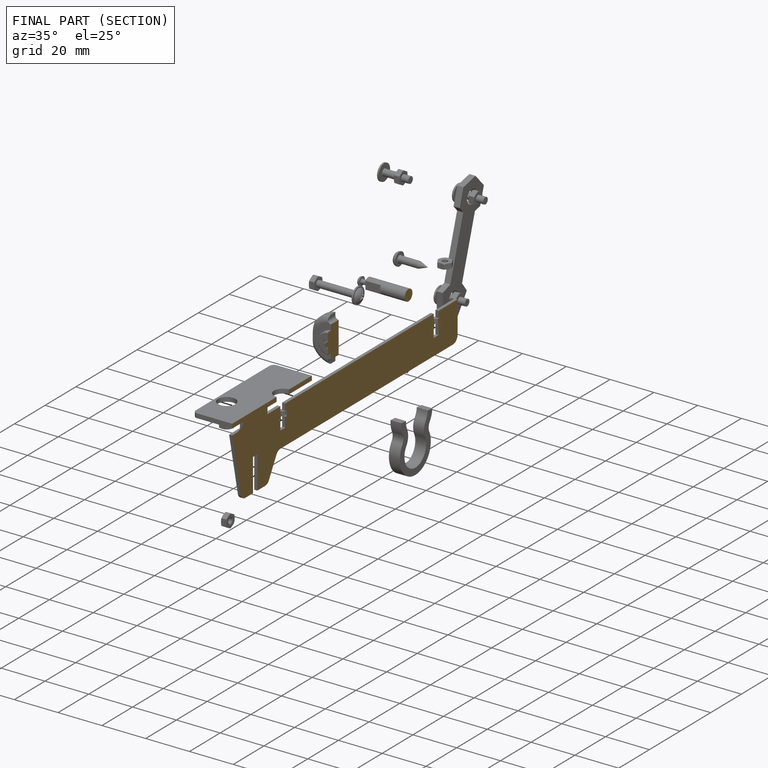
[diagram: finished part — half-section view (interior)]
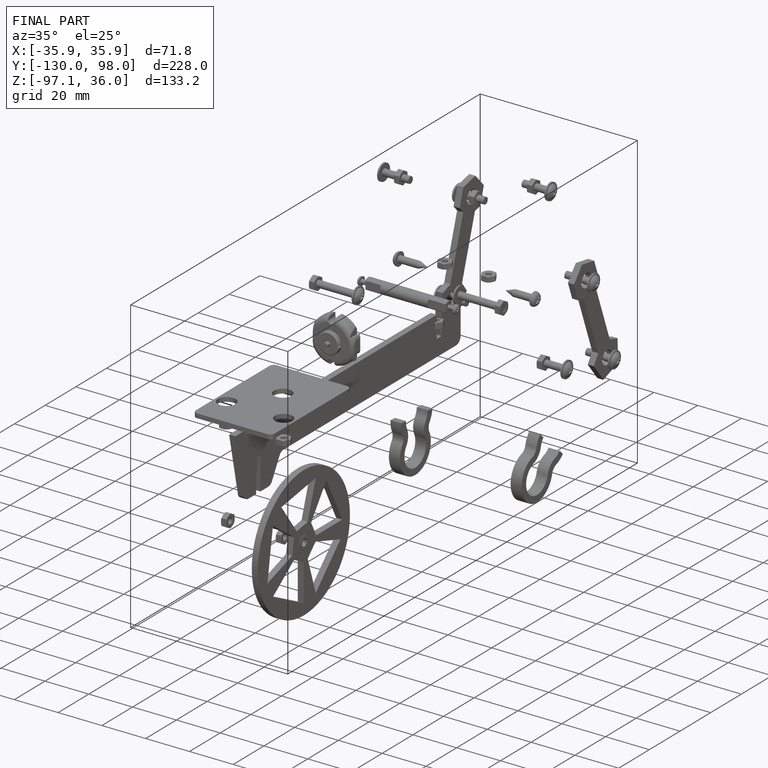
[diagram: finished part — iso view with bounding-box wireframe]
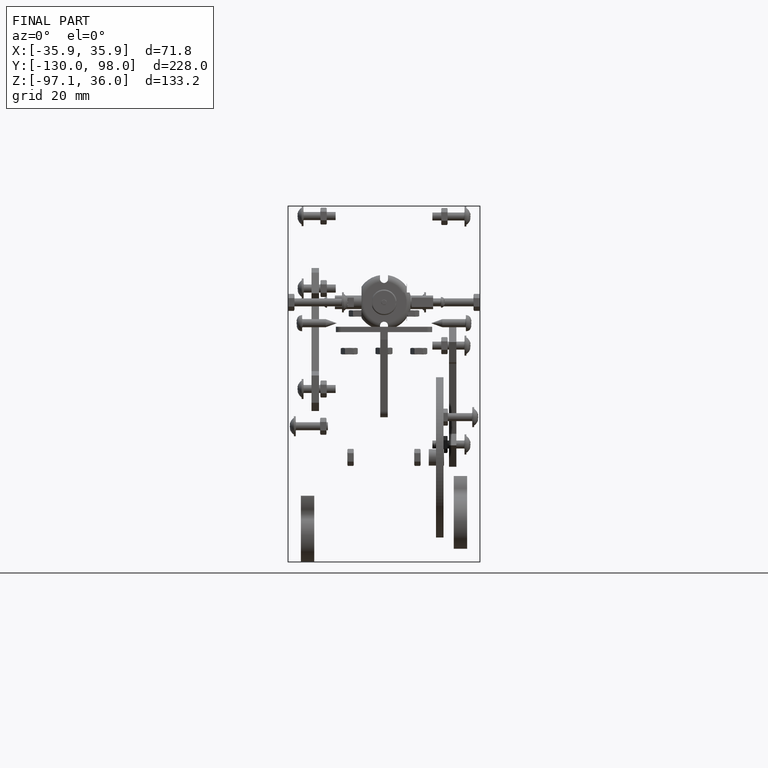
[diagram: finished part — front view with bounding-box wireframe]
